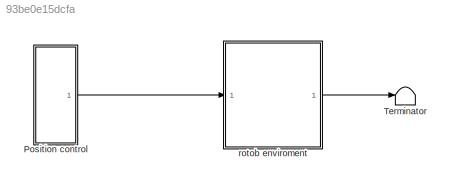
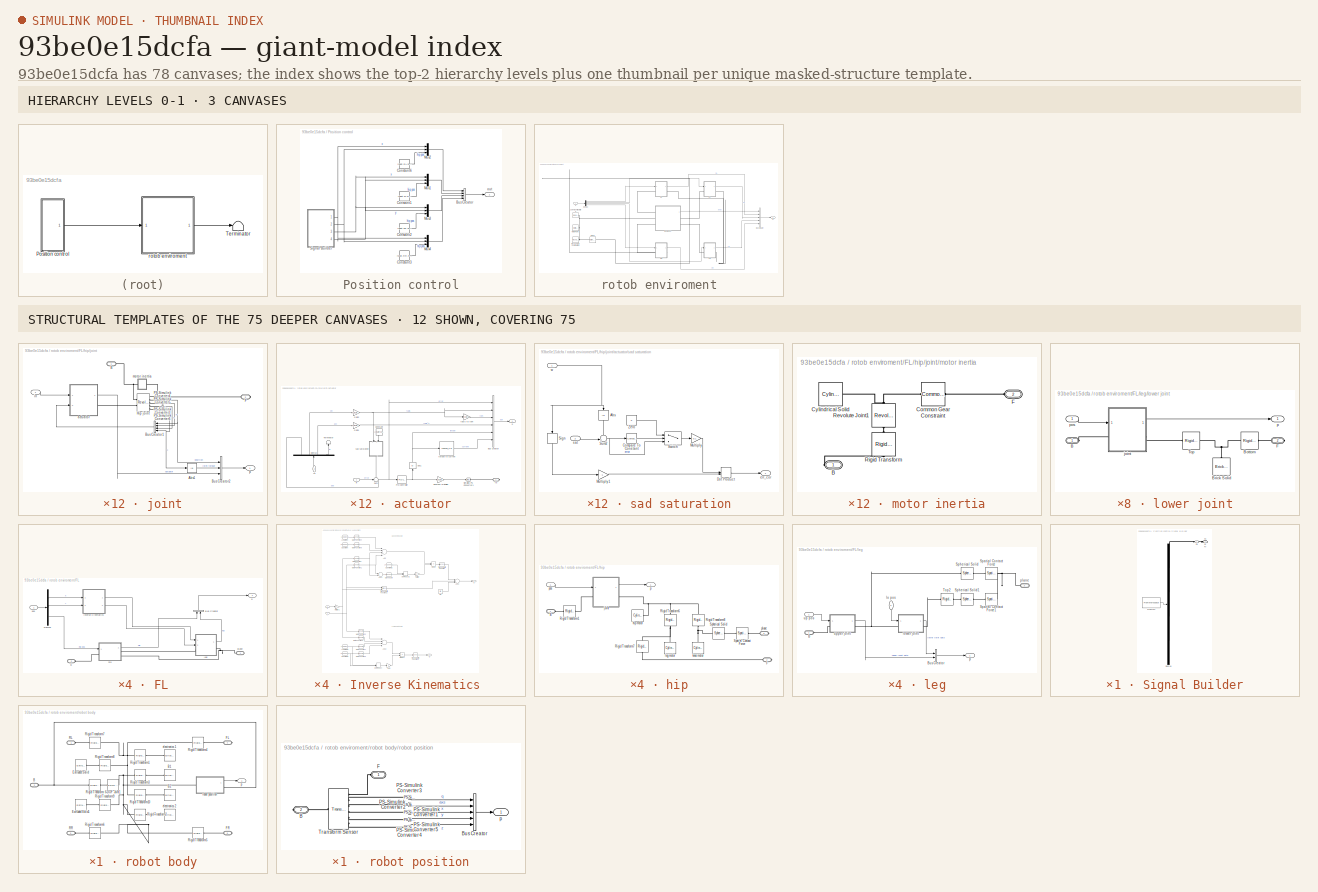
[diagram: thumbnail index - top-2 hierarchy levels (3 canvases) + 12 structural-template representatives of the remaining 75 canvases]
MODEL slx_93be0e15dcfa
KIND model
CONFIG AbsTol = auto
CONFIG EnableMultiTasking = off
CONFIG FixedStep = auto
CONFIG MaxStep = auto
CONFIG MinStep = auto
CONFIG RelTol = 1e-3
CONFIG SampleTimeConstraint = Unconstrained
CONFIG Solver = ode23t
CONFIG SolverName = ode23t
CONFIG StartTime = 0.0
CONFIG StopTime = 8
BLOCK [SubSystem] Position control
  Ports = [0, 1]
  RequestExecContextInheritance = off
BLOCK [BusCreator] Position control/Bus Creator
  DisplayOption = bar
  InheritFromInputs = on
  Inputs = 4
  Ports = [4, 1]
BLOCK [Constant] Position control/Constant1
  Value = robot.FL.hip.joint.base_angle
BLOCK [Constant] Position control/Constant2
  Value = robot.FR.hip.joint.base_angle
BLOCK [Constant] Position control/Constant3
  Value = robot.RR.hip.joint.base_angle
BLOCK [Constant] Position control/Constant6
  Value = robot.RL.hip.joint.base_angle
BLOCK [Mux] Position control/Mux1
  DisplayOption = bar
  Inputs = 3
  Ports = [3, 1]
BLOCK [Mux] Position control/Mux2
  DisplayOption = bar
  Inputs = 3
  Ports = [3, 1]
BLOCK [Mux] Position control/Mux3
  DisplayOption = bar
  Inputs = 3
  Ports = [3, 1]
BLOCK [Mux] Position control/Mux4
  DisplayOption = bar
  Inputs = 3
  Ports = [3, 1]
BLOCK [SubSystem] Position control/Signal Builder
  ClipboardFcn = sigbuilder_block('clipboard');
  CloseFcn = sigbuilder_block('close');
  ContinueFcn = sigbuilder_block('continue');
  CopyFcn = sigbuilder_block('copy');
  DeleteFcn = sigbuilder_block('delete');
  LoadFcn = sigbuilder_block('load');
  MaskHideContents = on
  ModelCloseFcn = sigbuilder_block('modelClose');
  NameChangeFcn = sigbuilder_block('namechange');
  OpenFcn = sigbuilder_block('open',[1212.63 0 1212.63 628.421 ]);
  PauseFcn = sigbuilder_block('pause');
  Ports = [0, 4]
  PreSaveFcn = sigbuilder_block('preSave');
  RequestExecContextInheritance = off
  StartFcn = sigbuilder_block('start');
  StopFcn = sigbuilder_block('stop');
  Tag = STV Subsys
BLOCK [Demux] Position control/Signal Builder/Demux
  Ports = [1, 4]
  Tag = STV Demux
BLOCK [FromWorkspace] Position control/Signal Builder/FromWs
  SampleTime = 0
  Tag = STV FromWs
  VariableName = tuvar
  ZeroCross = on
BLOCK [Outport] Position control/Signal Builder/Fx
  IconDisplay = Port number
  Port = 3
  Tag = STV Outport
BLOCK [Outport] Position control/Signal Builder/Fy
  IconDisplay = Port number
  Port = 4
  Tag = STV Outport
BLOCK [Outport] Position control/Signal Builder/Rx
  IconDisplay = Port number
  Tag = STV Outport
BLOCK [Outport] Position control/Signal Builder/Ry
  IconDisplay = Port number
  Port = 2
  Tag = STV Outport
BLOCK [Outport] Position control/out
  IconDisplay = Port number
BLOCK [Terminator] Terminator
BLOCK [SubSystem] rotob enviroment
  Ports = [1, 1]
  RequestExecContextInheritance = off
BLOCK [BusCreator] rotob enviroment/Bus Creator
  DisplayOption = bar
  InheritFromInputs = on
  Inputs = 5
  Ports = [5, 1]
BLOCK [Demux] rotob enviroment/Demux
  DisplayOption = bar
  Ports = [1, 4]
BLOCK [SubSystem] rotob enviroment/FL
  Ports = [1, 1, 0, 0, 0, 1, 1]
  RequestExecContextInheritance = off
BLOCK [PMIOPort] rotob enviroment/FL/B
  Port = 2
  Side = Left
BLOCK [BusCreator] rotob enviroment/FL/Bus Creator
  DisplayOption = bar
  InheritFromInputs = on
  Inputs = 2
  Ports = [2, 1]
BLOCK [Demux] rotob enviroment/FL/Demux
  DisplayOption = bar
  Outputs = 3
  Ports = [1, 3]
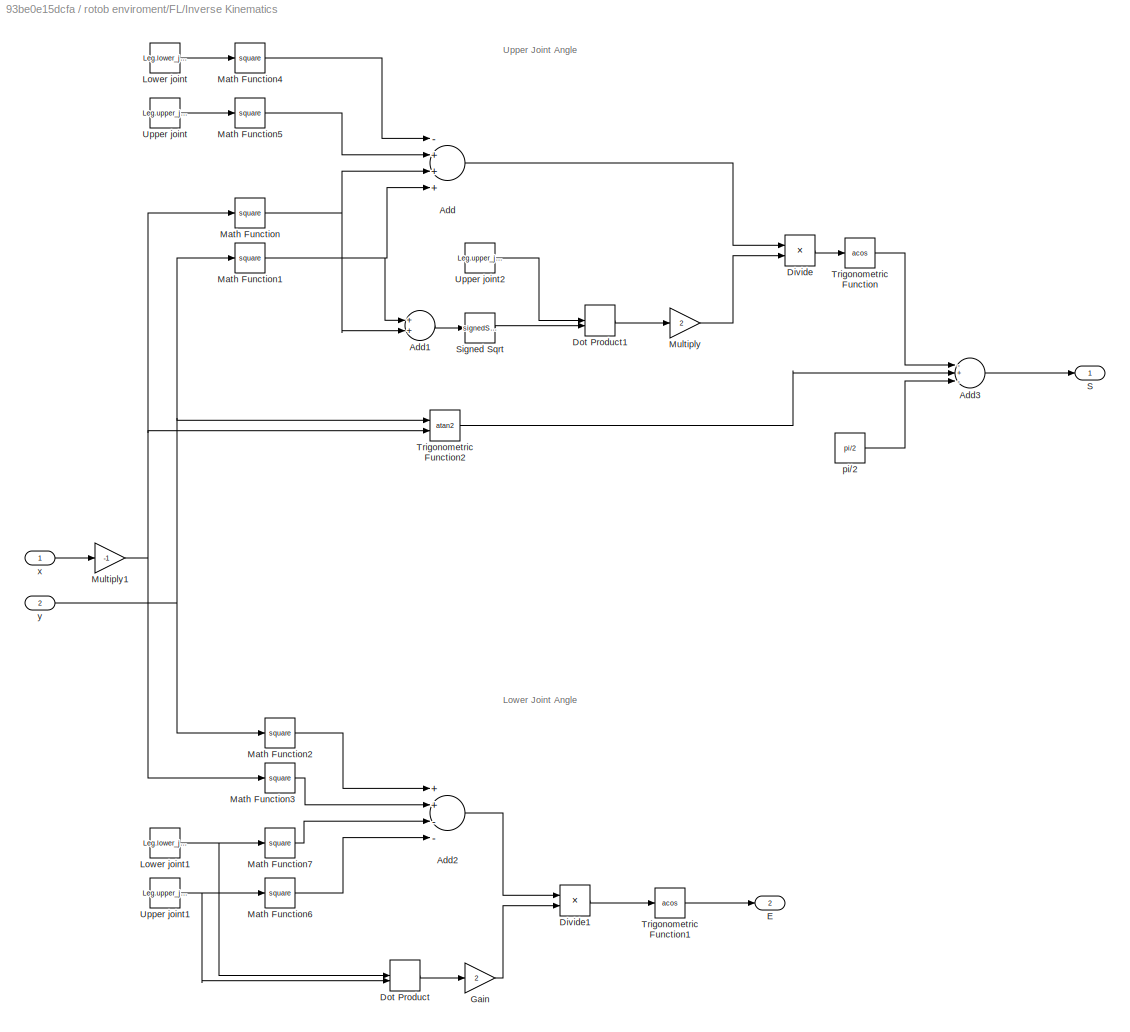
BLOCK [SubSystem] rotob enviroment/FL/Inverse Kinematics 
  Ports = [2, 2]
  RequestExecContextInheritance = off
BLOCK [Sum] rotob enviroment/FL/Inverse Kinematics /Add
  InputSameDT = off
  Inputs = -+++
  OutDataTypeStr = Inherit: Inherit via internal rule
  Ports = [4, 1]
  SaturateOnIntegerOverflow = off
BLOCK [Sum] rotob enviroment/FL/Inverse Kinematics /Add1
  InputSameDT = off
  OutDataTypeStr = Inherit: Inherit via internal rule
  Ports = [2, 1]
  SaturateOnIntegerOverflow = off
BLOCK [Sum] rotob enviroment/FL/Inverse Kinematics /Add2
  InputSameDT = off
  Inputs = ++--
  OutDataTypeStr = Inherit: Inherit via internal rule
  Ports = [4, 1]
  SaturateOnIntegerOverflow = off
BLOCK [Sum] rotob enviroment/FL/Inverse Kinematics /Add3
  InputSameDT = off
  Inputs = -+-
  OutDataTypeStr = Inherit: Inherit via internal rule
  Ports = [3, 1]
  SaturateOnIntegerOverflow = off
BLOCK [Product] rotob enviroment/FL/Inverse Kinematics /Divide
  InputSameDT = off
  Inputs = */
  OutDataTypeStr = Inherit: Inherit via internal rule
  Ports = [2, 1]
  RndMeth = Floor
  SaturateOnIntegerOverflow = off
BLOCK [Product] rotob enviroment/FL/Inverse Kinematics /Divide1
  InputSameDT = off
  Inputs = */
  OutDataTypeStr = Inherit: Inherit via internal rule
  Ports = [2, 1]
  RndMeth = Floor
  SaturateOnIntegerOverflow = off
BLOCK [DotProduct] rotob enviroment/FL/Inverse Kinematics /Dot Product
  OutDataTypeStr = Inherit: Inherit via internal rule
BLOCK [DotProduct] rotob enviroment/FL/Inverse Kinematics /Dot Product1
  OutDataTypeStr = Inherit: Inherit via internal rule
BLOCK [Outport] rotob enviroment/FL/Inverse Kinematics /E
  IconDisplay = Port number
  Port = 2
BLOCK [Gain] rotob enviroment/FL/Inverse Kinematics /Gain
  Gain = 2
  OutDataTypeStr = Inherit: Inherit via internal rule
  ParamDataTypeStr = Inherit: Inherit via internal rule
  SaturateOnIntegerOverflow = off
BLOCK [Constant] rotob enviroment/FL/Inverse Kinematics /Lower joint
  Value = Leg.lower_joint.body.length
BLOCK [Constant] rotob enviroment/FL/Inverse Kinematics /Lower joint1
  Value = Leg.lower_joint.body.length
BLOCK [Math] rotob enviroment/FL/Inverse Kinematics /Math Function
  Operator = square
  Ports = [1, 1]
  SignedPower = off
BLOCK [Math] rotob enviroment/FL/Inverse Kinematics /Math Function1
  Operator = square
  Ports = [1, 1]
  SignedPower = off
BLOCK [Math] rotob enviroment/FL/Inverse Kinematics /Math Function2
  Operator = square
  Ports = [1, 1]
  SignedPower = off
BLOCK [Math] rotob enviroment/FL/Inverse Kinematics /Math Function3
  Operator = square
  Ports = [1, 1]
  SignedPower = off
BLOCK [Math] rotob enviroment/FL/Inverse Kinematics /Math Function4
  Operator = square
  Ports = [1, 1]
  SignedPower = off
BLOCK [Math] rotob enviroment/FL/Inverse Kinematics /Math Function5
  Operator = square
  Ports = [1, 1]
  SignedPower = off
BLOCK [Math] rotob enviroment/FL/Inverse Kinematics /Math Function6
  Operator = square
  Ports = [1, 1]
  SignedPower = off
BLOCK [Math] rotob enviroment/FL/Inverse Kinematics /Math Function7
  Operator = square
  Ports = [1, 1]
  SignedPower = off
BLOCK [Gain] rotob enviroment/FL/Inverse Kinematics /Multiply
  Gain = 2
  OutDataTypeStr = Inherit: Inherit via internal rule
  ParamDataTypeStr = Inherit: Inherit via internal rule
  SaturateOnIntegerOverflow = off
BLOCK [Gain] rotob enviroment/FL/Inverse Kinematics /Multiply1
  Gain = -1
  OutDataTypeStr = Inherit: Inherit via internal rule
  ParamDataTypeStr = Inherit: Inherit via internal rule
  SaturateOnIntegerOverflow = off
BLOCK [Outport] rotob enviroment/FL/Inverse Kinematics /S
  IconDisplay = Port number
BLOCK [Sqrt] rotob enviroment/FL/Inverse Kinematics /Signed Sqrt
  Operator = signedSqrt
BLOCK [Trigonometry] rotob enviroment/FL/Inverse Kinematics /Trigonometric Function
  Operator = acos
  Ports = [1, 1]
BLOCK [Trigonometry] rotob enviroment/FL/Inverse Kinematics /Trigonometric Function1
  Operator = acos
  Ports = [1, 1]
BLOCK [Trigonometry] rotob enviroment/FL/Inverse Kinematics /Trigonometric Function2
  Operator = atan2
  Ports = [2, 1]
BLOCK [Constant] rotob enviroment/FL/Inverse Kinematics /Upper joint
  Value = Leg.upper_joint.body.length
BLOCK [Constant] rotob enviroment/FL/Inverse Kinematics /Upper joint1
  Value = Leg.upper_joint.body.length
BLOCK [Constant] rotob enviroment/FL/Inverse Kinematics /Upper joint2
  Value = Leg.upper_joint.body.length
BLOCK [Constant] rotob enviroment/FL/Inverse Kinematics /pi//2
  Value = pi/2
BLOCK [Inport] rotob enviroment/FL/Inverse Kinematics /x
  IconDisplay = Port number
BLOCK [Inport] rotob enviroment/FL/Inverse Kinematics /y
  IconDisplay = Port number
  Port = 2
BLOCK [SubSystem] rotob enviroment/FL/hip
  Ports = [1, 1, 0, 0, 0, 1, 2]
  RequestExecContextInheritance = off
BLOCK [PMIOPort] rotob enviroment/FL/hip/B
  Side = Left
BLOCK [PMIOPort] rotob enviroment/FL/hip/F
  Port = 2
  Side = Right
BLOCK [Reference] rotob enviroment/FL/hip/Rigid Transform1  REF=sm_lib/Frames and
Transforms/Rigid
Transform
  Ports = [0, 0, 0, 0, 0, 1, 1]
  SourceBlock = sm_lib/Frames and\nTransforms/Rigid\nTransform
  SourceProductBaseCode = MS
  SourceProductName = Simscape Multibody
  SourceType = Rigid\nTransform
BLOCK [Reference] rotob enviroment/FL/hip/Rigid Transform6  REF=sm_lib/Frames and
Transforms/Rigid
Transform
  Ports = [0, 0, 0, 0, 0, 1, 1]
  SourceBlock = sm_lib/Frames and\nTransforms/Rigid\nTransform
  SourceProductBaseCode = MS
  SourceProductName = Simscape Multibody
  SourceType = Rigid\nTransform
BLOCK [Reference] rotob enviroment/FL/hip/Rigid Transform7  REF=sm_lib/Frames and
Transforms/Rigid
Transform
  Ports = [0, 0, 0, 0, 0, 1, 1]
  SourceBlock = sm_lib/Frames and\nTransforms/Rigid\nTransform
  SourceProductBaseCode = MS
  SourceProductName = Simscape Multibody
  SourceType = Rigid\nTransform
BLOCK [Reference] rotob enviroment/FL/hip/Rigid Transform8  REF=sm_lib/Frames and
Transforms/Rigid
Transform
  Ports = [0, 0, 0, 0, 0, 1, 1]
  SourceBlock = sm_lib/Frames and\nTransforms/Rigid\nTransform
  SourceProductBaseCode = MS
  SourceProductName = Simscape Multibody
  SourceType = Rigid\nTransform
BLOCK [Reference] rotob enviroment/FL/hip/Spatial Contact Force  REF=sm_lib/Forces and
Torques/Spatial
Contact Force
  Ports = [0, 0, 0, 0, 0, 1, 1]
  SourceBlock = sm_lib/Forces and\nTorques/Spatial\nContact Force
  SourceProductBaseCode = MS
  SourceProductName = Simscape Multibody
  SourceType = Spatial\nContact Force
BLOCK [Reference] rotob enviroment/FL/hip/Spherical Solid  REF=sm_lib/Body Elements/Spherical Solid
  Ports = [0, 0, 0, 0, 0, 1, 1]
  SourceBlock = sm_lib/Body Elements/Spherical Solid
  SourceProductBaseCode = MS
  SourceProductName = Simscape Multibody
  SourceType = Spherical Solid
BLOCK [Reference] rotob enviroment/FL/hip/hip motor  REF=sm_lib/Body Elements/Cylindrical Solid
  Ports = [0, 0, 0, 0, 0, 0, 1]
  SourceBlock = sm_lib/Body Elements/Cylindrical Solid
  SourceProductBaseCode = MS
  SourceProductName = Simscape Multibody
  SourceType = Cylindrical Solid
BLOCK [SubSystem] rotob enviroment/FL/hip/joint
  Ports = [1, 1, 0, 0, 0, 1, 1]
  RequestExecContextInheritance = off
BLOCK [Abs] rotob enviroment/FL/hip/joint/Abs1
  SaturateOnIntegerOverflow = off
BLOCK [PMIOPort] rotob enviroment/FL/hip/joint/B
  Side = Left
BLOCK [BusCreator] rotob enviroment/FL/hip/joint/Bus Creator1
  DisplayOption = bar
  InheritFromInputs = on
  Inputs = 4
  Ports = [4, 1]
BLOCK [BusCreator] rotob enviroment/FL/hip/joint/Bus Creator2
  DisplayOption = bar
  InheritFromInputs = on
  Inputs = 3
  Ports = [3, 1]
BLOCK [PMIOPort] rotob enviroment/FL/hip/joint/F
  Port = 2
  Side = Right
BLOCK [Reference] rotob enviroment/FL/hip/joint/Hip joint   REF=sm_lib/Joints/Revolute Joint
  Ports = [0, 0, 0, 0, 0, 2, 5]
  SourceBlock = sm_lib/Joints/Revolute Joint
  SourceProductBaseCode = MS
  SourceProductName = Simscape Multibody
  SourceType = Revolute Joint
BLOCK [Reference] rotob enviroment/FL/hip/joint/PS-Simulink Converter3  REF=nesl_utility/PS-Simulink
Converter
  Ports = [0, 1, 0, 0, 0, 1]
  SourceBlock = nesl_utility/PS-Simulink\nConverter
  SourceProductBaseCode = SS
  SourceProductName = Simscape
  SourceType = PS-Simulink\nConverter
BLOCK [Reference] rotob enviroment/FL/hip/joint/PS-Simulink Converter4  REF=nesl_utility/PS-Simulink
Converter
  Ports = [0, 1, 0, 0, 0, 1]
  SourceBlock = nesl_utility/PS-Simulink\nConverter
  SourceProductBaseCode = SS
  SourceProductName = Simscape
  SourceType = PS-Simulink\nConverter
BLOCK [Reference] rotob enviroment/FL/hip/joint/PS-Simulink Converter5  REF=nesl_utility/PS-Simulink
Converter
  Ports = [0, 1, 0, 0, 0, 1]
  SourceBlock = nesl_utility/PS-Simulink\nConverter
  SourceProductBaseCode = SS
  SourceProductName = Simscape
  SourceType = PS-Simulink\nConverter
BLOCK [Reference] rotob enviroment/FL/hip/joint/PS-Simulink Converter6  REF=nesl_utility/PS-Simulink
Converter
  Ports = [0, 1, 0, 0, 0, 1]
  SourceBlock = nesl_utility/PS-Simulink\nConverter
  SourceProductBaseCode = SS
  SourceProductName = Simscape
  SourceType = PS-Simulink\nConverter
BLOCK [SubSystem] rotob enviroment/FL/hip/joint/actuator
  Ports = [2, 1, 0, 0, 0, 0, 1]
  RequestExecContextInheritance = off
BLOCK [Abs] rotob enviroment/FL/hip/joint/actuator/Abs1
  SaturateOnIntegerOverflow = off
BLOCK [BusCreator] rotob enviroment/FL/hip/joint/actuator/Bus Creator
  DisplayOption = bar
  InheritFromInputs = on
  Inputs = 6
  Ports = [6, 1]
BLOCK [Constant] rotob enviroment/FL/hip/joint/actuator/Constant
  Value = Actuator.speed_lim
BLOCK [Demux] rotob enviroment/FL/hip/joint/actuator/Demux
  DisplayOption = bar
  Ports = [1, 4]
BLOCK [Gain] rotob enviroment/FL/hip/joint/actuator/Gain1
  Gain = Actuator.gear_ratio
  OutDataTypeStr = Inherit: Inherit via internal rule
  ParamDataTypeStr = Inherit: Inherit via internal rule
  SaturateOnIntegerOverflow = off
BLOCK [Gain] rotob enviroment/FL/hip/joint/actuator/Gain2
  Gain = Actuator.gear_ratio
  OutDataTypeStr = Inherit: Inherit via internal rule
  ParamDataTypeStr = Inherit: Inherit via internal rule
  SaturateOnIntegerOverflow = off
BLOCK [Reference] rotob enviroment/FL/hip/joint/actuator/PID Controller  REF=simulink/Continuous/PID Controller
  Ports = [1, 1]
  SourceBlock = simulink/Continuous/PID Controller
  SourceProductBaseCode = SL
  SourceProductName = Simulink
  SourceType = PID 1dof
BLOCK [Reference] rotob enviroment/FL/hip/joint/actuator/Simulink-PS Converter1  REF=nesl_utility/Simulink-PS
Converter
  Ports = [1, 0, 0, 0, 0, 0, 1]
  SourceBlock = nesl_utility/Simulink-PS\nConverter
  SourceProductBaseCode = SS
  SourceProductName = Simscape
  SourceType = Simulink-PS\nConverter
BLOCK [Sum] rotob enviroment/FL/hip/joint/actuator/Sum
  IconShape = round
  InputSameDT = off
  Inputs = -+-
  OutDataTypeStr = Inherit: Inherit via internal rule
  Ports = [3, 1]
  SaturateOnIntegerOverflow = off
BLOCK [Terminator] rotob enviroment/FL/hip/joint/actuator/Terminator
BLOCK [Inport] rotob enviroment/FL/hip/joint/actuator/fb
  IconDisplay = Port number
  Port = 2
BLOCK [Gain] rotob enviroment/FL/hip/joint/actuator/gearbox multiplier
  Gain = Actuator.gear_ratio
  OutDataTypeStr = Inherit: Inherit via internal rule
  ParamDataTypeStr = Inherit: Inherit via internal rule
  SaturateOnIntegerOverflow = off
BLOCK [Inport] rotob enviroment/FL/hip/joint/actuator/in
  IconDisplay = Port number
BLOCK [Outport] rotob enviroment/FL/hip/joint/actuator/p
  IconDisplay = Port number
BLOCK [Gain] rotob enviroment/FL/hip/joint/actuator/rad//s to rpm
  Gain = 30/pi
  OutDataTypeStr = Inherit: Inherit via internal rule
  ParamDataTypeStr = Inherit: Inherit via internal rule
  SaturateOnIntegerOverflow = off
BLOCK [SubSystem] rotob enviroment/FL/hip/joint/actuator/sad saturation
  Ports = [2, 1]
  RequestExecContextInheritance = off
BLOCK [Abs] rotob enviroment/FL/hip/joint/actuator/sad saturation/Abs
  SaturateOnIntegerOverflow = off
BLOCK [Reference] rotob enviroment/FL/hip/joint/actuator/sad saturation/Compare To Constant  REF=simulink/Logic and Bit
Operations/Compare
To Constant
  Ports = [1, 1]
  SourceBlock = simulink/Logic and Bit\nOperations/Compare\nTo Constant
  SourceProductBaseCode = SL
  SourceProductName = Simulink
  SourceType = Compare To Constant
BLOCK [DotProduct] rotob enviroment/FL/hip/joint/actuator/sad saturation/Dot Product
  OutDataTypeStr = Inherit: Inherit via internal rule
BLOCK [Gain] rotob enviroment/FL/hip/joint/actuator/sad saturation/Multiply
  Gain = 0.1
  OutDataTypeStr = Inherit: Inherit via internal rule
  ParamDataTypeStr = Inherit: Inherit via internal rule
  SaturateOnIntegerOverflow = off
BLOCK [Gain] rotob enviroment/FL/hip/joint/actuator/sad saturation/Multiply1
  Gain = -1
  OutDataTypeStr = Inherit: Inherit via internal rule
  ParamDataTypeStr = Inherit: Inherit via internal rule
  SaturateOnIntegerOverflow = off
BLOCK [Signum] rotob enviroment/FL/hip/joint/actuator/sad saturation/Sign
BLOCK [Sum] rotob enviroment/FL/hip/joint/actuator/sad saturation/Sum2
  IconShape = round
  InputSameDT = off
  Inputs = -+|
  OutDataTypeStr = Inherit: Inherit via internal rule
  Ports = [2, 1]
  SaturateOnIntegerOverflow = off
BLOCK [Switch] rotob enviroment/FL/hip/joint/actuator/sad saturation/Switch
  Criteria = u2 > Threshold
  InputSameDT = off
  SaturateOnIntegerOverflow = off
BLOCK [Constant] rotob enviroment/FL/hip/joint/actuator/sad saturation/Zero
  OutDataTypeStr = Inherit: Inherit via back propagation
  Value = 0
BLOCK [Outport] rotob enviroment/FL/hip/joint/actuator/sad saturation/err_cor
  IconDisplay = Port number
BLOCK [Inport] rotob enviroment/FL/hip/joint/actuator/sad saturation/sat
  IconDisplay = Port number
  Port = 2
BLOCK [Inport] rotob enviroment/FL/hip/joint/actuator/sad saturation/w
  IconDisplay = Port number
BLOCK [Lookup_n-D] rotob enviroment/FL/hip/joint/actuator/torque to current
  BreakpointsForDimension1 = Actuator.torque_to_current(1,:)
  InternalRulePriority = Speed
  NumberOfTableDimensions = 1
  Ports = [1, 1]
  RndMeth = Simplest
  Table = Actuator.torque_to_current(2,:)
BLOCK [PMIOPort] rotob enviroment/FL/hip/joint/actuator/tq
  Side = Right
BLOCK [Inport] rotob enviroment/FL/hip/joint/in
  IconDisplay = Port number
BLOCK [SubSystem] rotob enviroment/FL/hip/joint/motor inertia
  Ports = [0, 0, 0, 0, 0, 1, 1]
  RequestExecContextInheritance = off
BLOCK [PMIOPort] rotob enviroment/FL/hip/joint/motor inertia/B
  Side = Right
BLOCK [Reference] rotob enviroment/FL/hip/joint/motor inertia/Common Gear Constraint  REF=sm_lib/Gears and
Couplings/Gears/Common Gear
Constraint
  Ports = [0, 0, 0, 0, 0, 1, 1]
  SourceBlock = sm_lib/Gears and\nCouplings/Gears/Common Gear\nConstraint
  SourceProductBaseCode = MS
  SourceProductName = Simscape Multibody
  SourceType = Common Gear\nConstraint
BLOCK [Reference] rotob enviroment/FL/hip/joint/motor inertia/Cylindrical Solid  REF=sm_lib/Body Elements/Cylindrical Solid
  Ports = [0, 0, 0, 0, 0, 0, 1]
  SourceBlock = sm_lib/Body Elements/Cylindrical Solid
  SourceProductBaseCode = MS
  SourceProductName = Simscape Multibody
  SourceType = Cylindrical Solid
BLOCK [PMIOPort] rotob enviroment/FL/hip/joint/motor inertia/F
  Port = 2
  Side = Left
BLOCK [Reference] rotob enviroment/FL/hip/joint/motor inertia/Revolute Joint1  REF=sm_lib/Joints/Revolute Joint
  Ports = [0, 0, 0, 0, 0, 1, 1]
  SourceBlock = sm_lib/Joints/Revolute Joint
  SourceProductBaseCode = MS
  SourceProductName = Simscape Multibody
  SourceType = Revolute Joint
BLOCK [Reference] rotob enviroment/FL/hip/joint/motor inertia/Rigid Transform  REF=sm_lib/Frames and
Transforms/Rigid
Transform
  Ports = [0, 0, 0, 0, 0, 1, 1]
  SourceBlock = sm_lib/Frames and\nTransforms/Rigid\nTransform
  SourceProductBaseCode = MS
  SourceProductName = Simscape Multibody
  SourceType = Rigid\nTransform
BLOCK [Outport] rotob enviroment/FL/hip/joint/p
  IconDisplay = Port number
BLOCK [Reference] rotob enviroment/FL/hip/knee motor  REF=sm_lib/Body Elements/Cylindrical Solid
  Ports = [0, 0, 0, 0, 0, 0, 1]
  SourceBlock = sm_lib/Body Elements/Cylindrical Solid
  SourceProductBaseCode = MS
  SourceProductName = Simscape Multibody
  SourceType = Cylindrical Solid
BLOCK [Reference] rotob enviroment/FL/hip/leg motor  REF=sm_lib/Body Elements/Cylindrical Solid
  Ports = [0, 0, 0, 0, 0, 0, 1]
  SourceBlock = sm_lib/Body Elements/Cylindrical Solid
  SourceProductBaseCode = MS
  SourceProductName = Simscape Multibody
  SourceType = Cylindrical Solid
BLOCK [Outport] rotob enviroment/FL/hip/p
  IconDisplay = Port number
BLOCK [PMIOPort] rotob enviroment/FL/hip/plane
  Port = 3
  Side = Right
BLOCK [Inport] rotob enviroment/FL/hip/pos
  IconDisplay = Port number
BLOCK [SubSystem] rotob enviroment/FL/leg
  Ports = [2, 1, 0, 0, 0, 1, 1]
  RequestExecContextInheritance = off
BLOCK [PMIOPort] rotob enviroment/FL/leg/B
  Side = Left
BLOCK [BusCreator] rotob enviroment/FL/leg/Bus Creator
  DisplayOption = bar
  InheritFromInputs = on
  Inputs = 2
  Ports = [2, 1]
BLOCK [Reference] rotob enviroment/FL/leg/Spatial Contact Force  REF=sm_lib/Forces and
Torques/Spatial
Contact Force
  Ports = [0, 0, 0, 0, 0, 1, 1]
  SourceBlock = sm_lib/Forces and\nTorques/Spatial\nContact Force
  SourceProductBaseCode = MS
  SourceProductName = Simscape Multibody
  SourceType = Spatial\nContact Force
BLOCK [Reference] rotob enviroment/FL/leg/Spatial Contact Force1  REF=sm_lib/Forces and
Torques/Spatial
Contact Force
  Ports = [0, 0, 0, 0, 0, 1, 1]
  SourceBlock = sm_lib/Forces and\nTorques/Spatial\nContact Force
  SourceProductBaseCode = MS
  SourceProductName = Simscape Multibody
  SourceType = Spatial\nContact Force
BLOCK [Reference] rotob enviroment/FL/leg/Spherical Solid  REF=sm_lib/Body Elements/Spherical Solid
  Ports = [0, 0, 0, 0, 0, 1, 1]
  SourceBlock = sm_lib/Body Elements/Spherical Solid
  SourceProductBaseCode = MS
  SourceProductName = Simscape Multibody
  SourceType = Spherical Solid
BLOCK [Reference] rotob enviroment/FL/leg/Spherical Solid1  REF=sm_lib/Body Elements/Spherical Solid
  Ports = [0, 0, 0, 0, 0, 1, 1]
  SourceBlock = sm_lib/Body Elements/Spherical Solid
  SourceProductBaseCode = MS
  SourceProductName = Simscape Multibody
  SourceType = Spherical Solid
BLOCK [Reference] rotob enviroment/FL/leg/Top2  REF=sm_lib/Frames and
Transforms/Rigid
Transform
  Ports = [0, 0, 0, 0, 0, 1, 1]
  SourceBlock = sm_lib/Frames and\nTransforms/Rigid\nTransform
  SourceProductBaseCode = MS
  SourceProductName = Simscape Multibody
  SourceType = Rigid\nTransform
BLOCK [Inport] rotob enviroment/FL/leg/lo pos
  IconDisplay = Port number
  Port = 2
BLOCK [SubSystem] rotob enviroment/FL/leg/lower joint
  Ports = [1, 1, 0, 0, 0, 1, 1]
  RequestExecContextInheritance = off
BLOCK [PMIOPort] rotob enviroment/FL/leg/lower joint/B 
  Side = Left
BLOCK [Reference] rotob enviroment/FL/leg/lower joint/Bottom  REF=sm_lib/Frames and
Transforms/Rigid
Transform
  Ports = [0, 0, 0, 0, 0, 1, 1]
  SourceBlock = sm_lib/Frames and\nTransforms/Rigid\nTransform
  SourceProductBaseCode = MS
  SourceProductName = Simscape Multibody
  SourceType = Rigid\nTransform
BLOCK [Reference] rotob enviroment/FL/leg/lower joint/Brick Solid  REF=sm_lib/Body Elements/Brick Solid
  Ports = [0, 0, 0, 0, 0, 0, 1]
  SourceBlock = sm_lib/Body Elements/Brick Solid
  SourceProductBaseCode = MS
  SourceProductName = Simscape Multibody
  SourceType = Brick Solid
BLOCK [PMIOPort] rotob enviroment/FL/leg/lower joint/F
  Port = 2
  Side = Right
BLOCK [Reference] rotob enviroment/FL/leg/lower joint/Top  REF=sm_lib/Frames and
Transforms/Rigid
Transform
  Ports = [0, 0, 0, 0, 0, 1, 1]
  SourceBlock = sm_lib/Frames and\nTransforms/Rigid\nTransform
  SourceProductBaseCode = MS
  SourceProductName = Simscape Multibody
  SourceType = Rigid\nTransform
BLOCK [SubSystem] rotob enviroment/FL/leg/lower joint/joint
  Ports = [1, 1, 0, 0, 0, 1, 1]
  RequestExecContextInheritance = off
BLOCK [Abs] rotob enviroment/FL/leg/lower joint/joint/Abs1
  SaturateOnIntegerOverflow = off
BLOCK [PMIOPort] rotob enviroment/FL/leg/lower joint/joint/B
  Side = Left
BLOCK [BusCreator] rotob enviroment/FL/leg/lower joint/joint/Bus Creator1
  DisplayOption = bar
  InheritFromInputs = on
  Inputs = 4
  Ports = [4, 1]
BLOCK [BusCreator] rotob enviroment/FL/leg/lower joint/joint/Bus Creator2
  DisplayOption = bar
  InheritFromInputs = on
  Inputs = 3
  Ports = [3, 1]
BLOCK [PMIOPort] rotob enviroment/FL/leg/lower joint/joint/F
  Port = 2
  Side = Right
BLOCK [Reference] rotob enviroment/FL/leg/lower joint/joint/Hip joint   REF=sm_lib/Joints/Revolute Joint
  Ports = [0, 0, 0, 0, 0, 2, 5]
  SourceBlock = sm_lib/Joints/Revolute Joint
  SourceProductBaseCode = MS
  SourceProductName = Simscape Multibody
  SourceType = Revolute Joint
BLOCK [Reference] rotob enviroment/FL/leg/lower joint/joint/PS-Simulink Converter3  REF=nesl_utility/PS-Simulink
Converter
  Ports = [0, 1, 0, 0, 0, 1]
  SourceBlock = nesl_utility/PS-Simulink\nConverter
  SourceProductBaseCode = SS
  SourceProductName = Simscape
  SourceType = PS-Simulink\nConverter
BLOCK [Reference] rotob enviroment/FL/leg/lower joint/joint/PS-Simulink Converter4  REF=nesl_utility/PS-Simulink
Converter
  Ports = [0, 1, 0, 0, 0, 1]
  SourceBlock = nesl_utility/PS-Simulink\nConverter
  SourceProductBaseCode = SS
  SourceProductName = Simscape
  SourceType = PS-Simulink\nConverter
BLOCK [Reference] rotob enviroment/FL/leg/lower joint/joint/PS-Simulink Converter5  REF=nesl_utility/PS-Simulink
Converter
  Ports = [0, 1, 0, 0, 0, 1]
  SourceBlock = nesl_utility/PS-Simulink\nConverter
  SourceProductBaseCode = SS
  SourceProductName = Simscape
  SourceType = PS-Simulink\nConverter
BLOCK [Reference] rotob enviroment/FL/leg/lower joint/joint/PS-Simulink Converter6  REF=nesl_utility/PS-Simulink
Converter
  Ports = [0, 1, 0, 0, 0, 1]
  SourceBlock = nesl_utility/PS-Simulink\nConverter
  SourceProductBaseCode = SS
  SourceProductName = Simscape
  SourceType = PS-Simulink\nConverter
BLOCK [SubSystem] rotob enviroment/FL/leg/lower joint/joint/actuator
  Ports = [2, 1, 0, 0, 0, 0, 1]
  RequestExecContextInheritance = off
BLOCK [Abs] rotob enviroment/FL/leg/lower joint/joint/actuator/Abs1
  SaturateOnIntegerOverflow = off
BLOCK [BusCreator] rotob enviroment/FL/leg/lower joint/joint/actuator/Bus Creator
  DisplayOption = bar
  InheritFromInputs = on
  Inputs = 6
  Ports = [6, 1]
BLOCK [Constant] rotob enviroment/FL/leg/lower joint/joint/actuator/Constant
  Value = Actuator.speed_lim
BLOCK [Demux] rotob enviroment/FL/leg/lower joint/joint/actuator/Demux
  DisplayOption = bar
  Ports = [1, 4]
BLOCK [Gain] rotob enviroment/FL/leg/lower joint/joint/actuator/Gain1
  Gain = Actuator.gear_ratio
  OutDataTypeStr = Inherit: Inherit via internal rule
  ParamDataTypeStr = Inherit: Inherit via internal rule
  SaturateOnIntegerOverflow = off
BLOCK [Gain] rotob enviroment/FL/leg/lower joint/joint/actuator/Gain2
  Gain = Actuator.gear_ratio
  OutDataTypeStr = Inherit: Inherit via internal rule
  ParamDataTypeStr = Inherit: Inherit via internal rule
  SaturateOnIntegerOverflow = off
BLOCK [Reference] rotob enviroment/FL/leg/lower joint/joint/actuator/PID Controller  REF=simulink/Continuous/PID Controller
  Ports = [1, 1]
  SourceBlock = simulink/Continuous/PID Controller
  SourceProductBaseCode = SL
  SourceProductName = Simulink
  SourceType = PID 1dof
BLOCK [Reference] rotob enviroment/FL/leg/lower joint/joint/actuator/Simulink-PS Converter1  REF=nesl_utility/Simulink-PS
Converter
  Ports = [1, 0, 0, 0, 0, 0, 1]
  SourceBlock = nesl_utility/Simulink-PS\nConverter
  SourceProductBaseCode = SS
  SourceProductName = Simscape
  SourceType = Simulink-PS\nConverter
BLOCK [Sum] rotob enviroment/FL/leg/lower joint/joint/actuator/Sum
  IconShape = round
  InputSameDT = off
  Inputs = -+-
  OutDataTypeStr = Inherit: Inherit via internal rule
  Ports = [3, 1]
  SaturateOnIntegerOverflow = off
BLOCK [Terminator] rotob enviroment/FL/leg/lower joint/joint/actuator/Terminator
BLOCK [Inport] rotob enviroment/FL/leg/lower joint/joint/actuator/fb
  IconDisplay = Port number
  Port = 2
BLOCK [Gain] rotob enviroment/FL/leg/lower joint/joint/actuator/gearbox multiplier
  Gain = Actuator.gear_ratio
  OutDataTypeStr = Inherit: Inherit via internal rule
  ParamDataTypeStr = Inherit: Inherit via internal rule
  SaturateOnIntegerOverflow = off
BLOCK [Inport] rotob enviroment/FL/leg/lower joint/joint/actuator/in
  IconDisplay = Port number
BLOCK [Outport] rotob enviroment/FL/leg/lower joint/joint/actuator/p
  IconDisplay = Port number
BLOCK [Gain] rotob enviroment/FL/leg/lower joint/joint/actuator/rad//s to rpm
  Gain = 30/pi
  OutDataTypeStr = Inherit: Inherit via internal rule
  ParamDataTypeStr = Inherit: Inherit via internal rule
  SaturateOnIntegerOverflow = off
BLOCK [SubSystem] rotob enviroment/FL/leg/lower joint/joint/actuator/sad saturation
  Ports = [2, 1]
  RequestExecContextInheritance = off
BLOCK [Abs] rotob enviroment/FL/leg/lower joint/joint/actuator/sad saturation/Abs
  SaturateOnIntegerOverflow = off
BLOCK [Reference] rotob enviroment/FL/leg/lower joint/joint/actuator/sad saturation/Compare To Constant  REF=simulink/Logic and Bit
Operations/Compare
To Constant
  Ports = [1, 1]
  SourceBlock = simulink/Logic and Bit\nOperations/Compare\nTo Constant
  SourceProductBaseCode = SL
  SourceProductName = Simulink
  SourceType = Compare To Constant
BLOCK [DotProduct] rotob enviroment/FL/leg/lower joint/joint/actuator/sad saturation/Dot Product
  OutDataTypeStr = Inherit: Inherit via internal rule
BLOCK [Gain] rotob enviroment/FL/leg/lower joint/joint/actuator/sad saturation/Multiply
  Gain = 0.1
  OutDataTypeStr = Inherit: Inherit via internal rule
  ParamDataTypeStr = Inherit: Inherit via internal rule
  SaturateOnIntegerOverflow = off
BLOCK [Gain] rotob enviroment/FL/leg/lower joint/joint/actuator/sad saturation/Multiply1
  Gain = -1
  OutDataTypeStr = Inherit: Inherit via internal rule
  ParamDataTypeStr = Inherit: Inherit via internal rule
  SaturateOnIntegerOverflow = off
BLOCK [Signum] rotob enviroment/FL/leg/lower joint/joint/actuator/sad saturation/Sign
BLOCK [Sum] rotob enviroment/FL/leg/lower joint/joint/actuator/sad saturation/Sum2
  IconShape = round
  InputSameDT = off
  Inputs = -+|
  OutDataTypeStr = Inherit: Inherit via internal rule
  Ports = [2, 1]
  SaturateOnIntegerOverflow = off
BLOCK [Switch] rotob enviroment/FL/leg/lower joint/joint/actuator/sad saturation/Switch
  Criteria = u2 > Threshold
  InputSameDT = off
  SaturateOnIntegerOverflow = off
BLOCK [Constant] rotob enviroment/FL/leg/lower joint/joint/actuator/sad saturation/Zero
  OutDataTypeStr = Inherit: Inherit via back propagation
  Value = 0
BLOCK [Outport] rotob enviroment/FL/leg/lower joint/joint/actuator/sad saturation/err_cor
  IconDisplay = Port number
BLOCK [Inport] rotob enviroment/FL/leg/lower joint/joint/actuator/sad saturation/sat
  IconDisplay = Port number
  Port = 2
BLOCK [Inport] rotob enviroment/FL/leg/lower joint/joint/actuator/sad saturation/w
  IconDisplay = Port number
BLOCK [Lookup_n-D] rotob enviroment/FL/leg/lower joint/joint/actuator/torque to current
  BreakpointsForDimension1 = Actuator.torque_to_current(1,:)
  InternalRulePriority = Speed
  NumberOfTableDimensions = 1
  Ports = [1, 1]
  RndMeth = Simplest
  Table = Actuator.torque_to_current(2,:)
BLOCK [PMIOPort] rotob enviroment/FL/leg/lower joint/joint/actuator/tq
  Side = Right
BLOCK [Inport] rotob enviroment/FL/leg/lower joint/joint/in
  IconDisplay = Port number
BLOCK [SubSystem] rotob enviroment/FL/leg/lower joint/joint/motor inertia
  Ports = [0, 0, 0, 0, 0, 1, 1]
  RequestExecContextInheritance = off
BLOCK [PMIOPort] rotob enviroment/FL/leg/lower joint/joint/motor inertia/B
  Side = Right
BLOCK [Reference] rotob enviroment/FL/leg/lower joint/joint/motor inertia/Common Gear Constraint  REF=sm_lib/Gears and
Couplings/Gears/Common Gear
Constraint
  Ports = [0, 0, 0, 0, 0, 1, 1]
  SourceBlock = sm_lib/Gears and\nCouplings/Gears/Common Gear\nConstraint
  SourceProductBaseCode = MS
  SourceProductName = Simscape Multibody
  SourceType = Common Gear\nConstraint
BLOCK [Reference] rotob enviroment/FL/leg/lower joint/joint/motor inertia/Cylindrical Solid  REF=sm_lib/Body Elements/Cylindrical Solid
  Ports = [0, 0, 0, 0, 0, 0, 1]
  SourceBlock = sm_lib/Body Elements/Cylindrical Solid
  SourceProductBaseCode = MS
  SourceProductName = Simscape Multibody
  SourceType = Cylindrical Solid
BLOCK [PMIOPort] rotob enviroment/FL/leg/lower joint/joint/motor inertia/F
  Port = 2
  Side = Left
BLOCK [Reference] rotob enviroment/FL/leg/lower joint/joint/motor inertia/Revolute Joint1  REF=sm_lib/Joints/Revolute Joint
  Ports = [0, 0, 0, 0, 0, 1, 1]
  SourceBlock = sm_lib/Joints/Revolute Joint
  SourceProductBaseCode = MS
  SourceProductName = Simscape Multibody
  SourceType = Revolute Joint
BLOCK [Reference] rotob enviroment/FL/leg/lower joint/joint/motor inertia/Rigid Transform  REF=sm_lib/Frames and
Transforms/Rigid
Transform
  Ports = [0, 0, 0, 0, 0, 1, 1]
  SourceBlock = sm_lib/Frames and\nTransforms/Rigid\nTransform
  SourceProductBaseCode = MS
  SourceProductName = Simscape Multibody
  SourceType = Rigid\nTransform
BLOCK [Outport] rotob enviroment/FL/leg/lower joint/joint/p
  IconDisplay = Port number
BLOCK [Outport] rotob enviroment/FL/leg/lower joint/p
  IconDisplay = Port number
BLOCK [Inport] rotob enviroment/FL/leg/lower joint/pos
  IconDisplay = Port number
BLOCK [Outport] rotob enviroment/FL/leg/p
  IconDisplay = Port number
BLOCK [PMIOPort] rotob enviroment/FL/leg/plane
  Port = 2
  Side = Right
BLOCK [Inport] rotob enviroment/FL/leg/up pos
  IconDisplay = Port number
BLOCK [SubSystem] rotob enviroment/FL/leg/upper joint
  Ports = [1, 1, 0, 0, 0, 1, 1]
  RequestExecContextInheritance = off
BLOCK [PMIOPort] rotob enviroment/FL/leg/upper joint/B 
  Side = Left
BLOCK [Reference] rotob enviroment/FL/leg/upper joint/Bottom  REF=sm_lib/Frames and
Transforms/Rigid
Transform
  Ports = [0, 0, 0, 0, 0, 1, 1]
  SourceBlock = sm_lib/Frames and\nTransforms/Rigid\nTransform
  SourceProductBaseCode = MS
  SourceProductName = Simscape Multibody
  SourceType = Rigid\nTransform
BLOCK [Reference] rotob enviroment/FL/leg/upper joint/Brick Solid  REF=sm_lib/Body Elements/Brick Solid
  Ports = [0, 0, 0, 0, 0, 0, 1]
  SourceBlock = sm_lib/Body Elements/Brick Solid
  SourceProductBaseCode = MS
  SourceProductName = Simscape Multibody
  SourceType = Brick Solid
BLOCK [PMIOPort] rotob enviroment/FL/leg/upper joint/F
  Port = 2
  Side = Right
BLOCK [Reference] rotob enviroment/FL/leg/upper joint/Top  REF=sm_lib/Frames and
Transforms/Rigid
Transform
  Ports = [0, 0, 0, 0, 0, 1, 1]
  SourceBlock = sm_lib/Frames and\nTransforms/Rigid\nTransform
  SourceProductBaseCode = MS
  SourceProductName = Simscape Multibody
  SourceType = Rigid\nTransform
BLOCK [SubSystem] rotob enviroment/FL/leg/upper joint/joint
  Ports = [1, 1, 0, 0, 0, 1, 1]
  RequestExecContextInheritance = off
BLOCK [Abs] rotob enviroment/FL/leg/upper joint/joint/Abs1
  SaturateOnIntegerOverflow = off
BLOCK [PMIOPort] rotob enviroment/FL/leg/upper joint/joint/B
  Side = Left
BLOCK [BusCreator] rotob enviroment/FL/leg/upper joint/joint/Bus Creator1
  DisplayOption = bar
  InheritFromInputs = on
  Inputs = 4
  Ports = [4, 1]
BLOCK [BusCreator] rotob enviroment/FL/leg/upper joint/joint/Bus Creator2
  DisplayOption = bar
  InheritFromInputs = on
  Inputs = 3
  Ports = [3, 1]
BLOCK [PMIOPort] rotob enviroment/FL/leg/upper joint/joint/F
  Port = 2
  Side = Right
BLOCK [Reference] rotob enviroment/FL/leg/upper joint/joint/Hip joint   REF=sm_lib/Joints/Revolute Joint
  Ports = [0, 0, 0, 0, 0, 2, 5]
  SourceBlock = sm_lib/Joints/Revolute Joint
  SourceProductBaseCode = MS
  SourceProductName = Simscape Multibody
  SourceType = Revolute Joint
BLOCK [Reference] rotob enviroment/FL/leg/upper joint/joint/PS-Simulink Converter3  REF=nesl_utility/PS-Simulink
Converter
  Ports = [0, 1, 0, 0, 0, 1]
  SourceBlock = nesl_utility/PS-Simulink\nConverter
  SourceProductBaseCode = SS
  SourceProductName = Simscape
  SourceType = PS-Simulink\nConverter
BLOCK [Reference] rotob enviroment/FL/leg/upper joint/joint/PS-Simulink Converter4  REF=nesl_utility/PS-Simulink
Converter
  Ports = [0, 1, 0, 0, 0, 1]
  SourceBlock = nesl_utility/PS-Simulink\nConverter
  SourceProductBaseCode = SS
  SourceProductName = Simscape
  SourceType = PS-Simulink\nConverter
BLOCK [Reference] rotob enviroment/FL/leg/upper joint/joint/PS-Simulink Converter5  REF=nesl_utility/PS-Simulink
Converter
  Ports = [0, 1, 0, 0, 0, 1]
  SourceBlock = nesl_utility/PS-Simulink\nConverter
  SourceProductBaseCode = SS
  SourceProductName = Simscape
  SourceType = PS-Simulink\nConverter
BLOCK [Reference] rotob enviroment/FL/leg/upper joint/joint/PS-Simulink Converter6  REF=nesl_utility/PS-Simulink
Converter
  Ports = [0, 1, 0, 0, 0, 1]
  SourceBlock = nesl_utility/PS-Simulink\nConverter
  SourceProductBaseCode = SS
  SourceProductName = Simscape
  SourceType = PS-Simulink\nConverter
BLOCK [SubSystem] rotob enviroment/FL/leg/upper joint/joint/actuator
  Ports = [2, 1, 0, 0, 0, 0, 1]
  RequestExecContextInheritance = off
BLOCK [Abs] rotob enviroment/FL/leg/upper joint/joint/actuator/Abs1
  SaturateOnIntegerOverflow = off
BLOCK [BusCreator] rotob enviroment/FL/leg/upper joint/joint/actuator/Bus Creator
  DisplayOption = bar
  InheritFromInputs = on
  Inputs = 6
  Ports = [6, 1]
BLOCK [Constant] rotob enviroment/FL/leg/upper joint/joint/actuator/Constant
  Value = Actuator.speed_lim
BLOCK [Demux] rotob enviroment/FL/leg/upper joint/joint/actuator/Demux
  DisplayOption = bar
  Ports = [1, 4]
BLOCK [Gain] rotob enviroment/FL/leg/upper joint/joint/actuator/Gain1
  Gain = Actuator.gear_ratio
  OutDataTypeStr = Inherit: Inherit via internal rule
  ParamDataTypeStr = Inherit: Inherit via internal rule
  SaturateOnIntegerOverflow = off
BLOCK [Gain] rotob enviroment/FL/leg/upper joint/joint/actuator/Gain2
  Gain = Actuator.gear_ratio
  OutDataTypeStr = Inherit: Inherit via internal rule
  ParamDataTypeStr = Inherit: Inherit via internal rule
  SaturateOnIntegerOverflow = off
BLOCK [Reference] rotob enviroment/FL/leg/upper joint/joint/actuator/PID Controller  REF=simulink/Continuous/PID Controller
  Ports = [1, 1]
  SourceBlock = simulink/Continuous/PID Controller
  SourceProductBaseCode = SL
  SourceProductName = Simulink
  SourceType = PID 1dof
BLOCK [Reference] rotob enviroment/FL/leg/upper joint/joint/actuator/Simulink-PS Converter1  REF=nesl_utility/Simulink-PS
Converter
  Ports = [1, 0, 0, 0, 0, 0, 1]
  SourceBlock = nesl_utility/Simulink-PS\nConverter
  SourceProductBaseCode = SS
  SourceProductName = Simscape
  SourceType = Simulink-PS\nConverter
BLOCK [Sum] rotob enviroment/FL/leg/upper joint/joint/actuator/Sum
  IconShape = round
  InputSameDT = off
  Inputs = -+-
  OutDataTypeStr = Inherit: Inherit via internal rule
  Ports = [3, 1]
  SaturateOnIntegerOverflow = off
BLOCK [Terminator] rotob enviroment/FL/leg/upper joint/joint/actuator/Terminator
BLOCK [Inport] rotob enviroment/FL/leg/upper joint/joint/actuator/fb
  IconDisplay = Port number
  Port = 2
BLOCK [Gain] rotob enviroment/FL/leg/upper joint/joint/actuator/gearbox multiplier
  Gain = Actuator.gear_ratio
  OutDataTypeStr = Inherit: Inherit via internal rule
  ParamDataTypeStr = Inherit: Inherit via internal rule
  SaturateOnIntegerOverflow = off
BLOCK [Inport] rotob enviroment/FL/leg/upper joint/joint/actuator/in
  IconDisplay = Port number
BLOCK [Outport] rotob enviroment/FL/leg/upper joint/joint/actuator/p
  IconDisplay = Port number
BLOCK [Gain] rotob enviroment/FL/leg/upper joint/joint/actuator/rad//s to rpm
  Gain = 30/pi
  OutDataTypeStr = Inherit: Inherit via internal rule
  ParamDataTypeStr = Inherit: Inherit via internal rule
  SaturateOnIntegerOverflow = off
BLOCK [SubSystem] rotob enviroment/FL/leg/upper joint/joint/actuator/sad saturation
  Ports = [2, 1]
  RequestExecContextInheritance = off
BLOCK [Abs] rotob enviroment/FL/leg/upper joint/joint/actuator/sad saturation/Abs
  SaturateOnIntegerOverflow = off
BLOCK [Reference] rotob enviroment/FL/leg/upper joint/joint/actuator/sad saturation/Compare To Constant  REF=simulink/Logic and Bit
Operations/Compare
To Constant
  Ports = [1, 1]
  SourceBlock = simulink/Logic and Bit\nOperations/Compare\nTo Constant
  SourceProductBaseCode = SL
  SourceProductName = Simulink
  SourceType = Compare To Constant
BLOCK [DotProduct] rotob enviroment/FL/leg/upper joint/joint/actuator/sad saturation/Dot Product
  OutDataTypeStr = Inherit: Inherit via internal rule
BLOCK [Gain] rotob enviroment/FL/leg/upper joint/joint/actuator/sad saturation/Multiply
  Gain = 0.1
  OutDataTypeStr = Inherit: Inherit via internal rule
  ParamDataTypeStr = Inherit: Inherit via internal rule
  SaturateOnIntegerOverflow = off
BLOCK [Gain] rotob enviroment/FL/leg/upper joint/joint/actuator/sad saturation/Multiply1
  Gain = -1
  OutDataTypeStr = Inherit: Inherit via internal rule
  ParamDataTypeStr = Inherit: Inherit via internal rule
  SaturateOnIntegerOverflow = off
BLOCK [Signum] rotob enviroment/FL/leg/upper joint/joint/actuator/sad saturation/Sign
BLOCK [Sum] rotob enviroment/FL/leg/upper joint/joint/actuator/sad saturation/Sum2
  IconShape = round
  InputSameDT = off
  Inputs = -+|
  OutDataTypeStr = Inherit: Inherit via internal rule
  Ports = [2, 1]
  SaturateOnIntegerOverflow = off
BLOCK [Switch] rotob enviroment/FL/leg/upper joint/joint/actuator/sad saturation/Switch
  Criteria = u2 > Threshold
  InputSameDT = off
  SaturateOnIntegerOverflow = off
BLOCK [Constant] rotob enviroment/FL/leg/upper joint/joint/actuator/sad saturation/Zero
  OutDataTypeStr = Inherit: Inherit via back propagation
  Value = 0
BLOCK [Outport] rotob enviroment/FL/leg/upper joint/joint/actuator/sad saturation/err_cor
  IconDisplay = Port number
BLOCK [Inport] rotob enviroment/FL/leg/upper joint/joint/actuator/sad saturation/sat
  IconDisplay = Port number
  Port = 2
BLOCK [Inport] rotob enviroment/FL/leg/upper joint/joint/actuator/sad saturation/w
  IconDisplay = Port number
BLOCK [Lookup_n-D] rotob enviroment/FL/leg/upper joint/joint/actuator/torque to current
  BreakpointsForDimension1 = Actuator.torque_to_current(1,:)
  InternalRulePriority = Speed
  NumberOfTableDimensions = 1
  Ports = [1, 1]
  RndMeth = Simplest
  Table = Actuator.torque_to_current(2,:)
BLOCK [PMIOPort] rotob enviroment/FL/leg/upper joint/joint/actuator/tq
  Side = Right
BLOCK [Inport] rotob enviroment/FL/leg/upper joint/joint/in
  IconDisplay = Port number
BLOCK [SubSystem] rotob enviroment/FL/leg/upper joint/joint/motor inertia
  Ports = [0, 0, 0, 0, 0, 1, 1]
  RequestExecContextInheritance = off
BLOCK [PMIOPort] rotob enviroment/FL/leg/upper joint/joint/motor inertia/B
  Side = Right
BLOCK [Reference] rotob enviroment/FL/leg/upper joint/joint/motor inertia/Common Gear Constraint  REF=sm_lib/Gears and
Couplings/Gears/Common Gear
Constraint
  Ports = [0, 0, 0, 0, 0, 1, 1]
  SourceBlock = sm_lib/Gears and\nCouplings/Gears/Common Gear\nConstraint
  SourceProductBaseCode = MS
  SourceProductName = Simscape Multibody
  SourceType = Common Gear\nConstraint
BLOCK [Reference] rotob enviroment/FL/leg/upper joint/joint/motor inertia/Cylindrical Solid  REF=sm_lib/Body Elements/Cylindrical Solid
  Ports = [0, 0, 0, 0, 0, 0, 1]
  SourceBlock = sm_lib/Body Elements/Cylindrical Solid
  SourceProductBaseCode = MS
  SourceProductName = Simscape Multibody
  SourceType = Cylindrical Solid
BLOCK [PMIOPort] rotob enviroment/FL/leg/upper joint/joint/motor inertia/F
  Port = 2
  Side = Left
BLOCK [Reference] rotob enviroment/FL/leg/upper joint/joint/motor inertia/Revolute Joint1  REF=sm_lib/Joints/Revolute Joint
  Ports = [0, 0, 0, 0, 0, 1, 1]
  SourceBlock = sm_lib/Joints/Revolute Joint
  SourceProductBaseCode = MS
  SourceProductName = Simscape Multibody
  SourceType = Revolute Joint
BLOCK [Reference] rotob enviroment/FL/leg/upper joint/joint/motor inertia/Rigid Transform  REF=sm_lib/Frames and
Transforms/Rigid
Transform
  Ports = [0, 0, 0, 0, 0, 1, 1]
  SourceBlock = sm_lib/Frames and\nTransforms/Rigid\nTransform
  SourceProductBaseCode = MS
  SourceProductName = Simscape Multibody
  SourceType = Rigid\nTransform
BLOCK [Outport] rotob enviroment/FL/leg/upper joint/joint/p
  IconDisplay = Port number
BLOCK [Outport] rotob enviroment/FL/leg/upper joint/p
  IconDisplay = Port number
BLOCK [Inport] rotob enviroment/FL/leg/upper joint/pos
  IconDisplay = Port number
BLOCK [Outport] rotob enviroment/FL/p
  IconDisplay = Port number
BLOCK [PMIOPort] rotob enviroment/FL/plane
  Side = Right
BLOCK [Inport] rotob enviroment/FL/pos
  IconDisplay = Port number
BLOCK [SubSystem] rotob enviroment/FR
  Ports = [1, 1, 0, 0, 0, 1, 1]
  RequestExecContextInheritance = off
BLOCK [PMIOPort] rotob enviroment/FR/B
  Port = 2
  Side = Left
BLOCK [BusCreator] rotob enviroment/FR/Bus Creator
  DisplayOption = bar
  InheritFromInputs = on
  Inputs = 2
  Ports = [2, 1]
BLOCK [Demux] rotob enviroment/FR/Demux
  DisplayOption = bar
  Outputs = 3
  Ports = [1, 3]
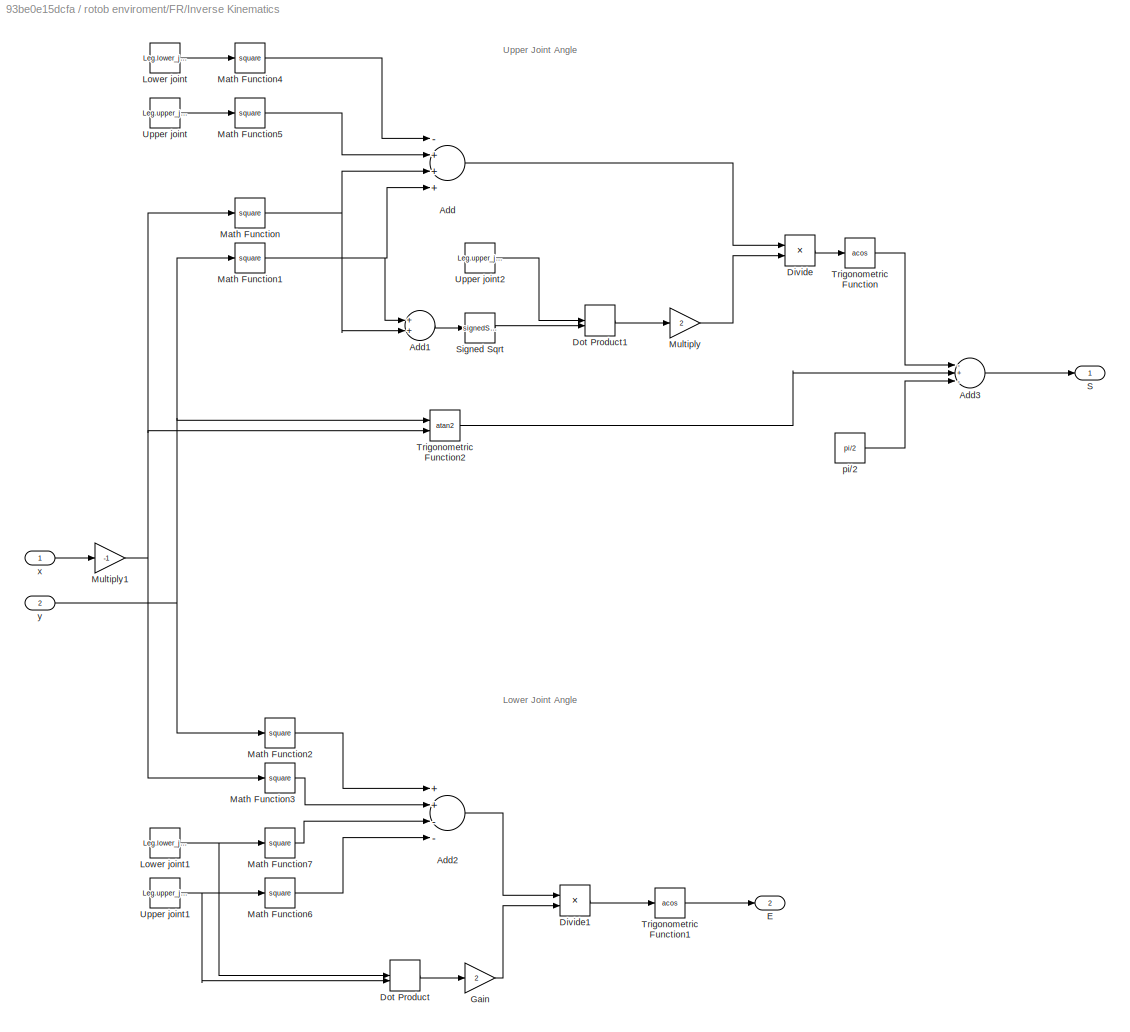
BLOCK [SubSystem] rotob enviroment/FR/Inverse Kinematics 
  Ports = [2, 2]
  RequestExecContextInheritance = off
BLOCK [Sum] rotob enviroment/FR/Inverse Kinematics /Add
  InputSameDT = off
  Inputs = -+++
  OutDataTypeStr = Inherit: Inherit via internal rule
  Ports = [4, 1]
  SaturateOnIntegerOverflow = off
BLOCK [Sum] rotob enviroment/FR/Inverse Kinematics /Add1
  InputSameDT = off
  OutDataTypeStr = Inherit: Inherit via internal rule
  Ports = [2, 1]
  SaturateOnIntegerOverflow = off
BLOCK [Sum] rotob enviroment/FR/Inverse Kinematics /Add2
  InputSameDT = off
  Inputs = ++--
  OutDataTypeStr = Inherit: Inherit via internal rule
  Ports = [4, 1]
  SaturateOnIntegerOverflow = off
BLOCK [Sum] rotob enviroment/FR/Inverse Kinematics /Add3
  InputSameDT = off
  Inputs = -+-
  OutDataTypeStr = Inherit: Inherit via internal rule
  Ports = [3, 1]
  SaturateOnIntegerOverflow = off
BLOCK [Product] rotob enviroment/FR/Inverse Kinematics /Divide
  InputSameDT = off
  Inputs = */
  OutDataTypeStr = Inherit: Inherit via internal rule
  Ports = [2, 1]
  RndMeth = Floor
  SaturateOnIntegerOverflow = off
BLOCK [Product] rotob enviroment/FR/Inverse Kinematics /Divide1
  InputSameDT = off
  Inputs = */
  OutDataTypeStr = Inherit: Inherit via internal rule
  Ports = [2, 1]
  RndMeth = Floor
  SaturateOnIntegerOverflow = off
BLOCK [DotProduct] rotob enviroment/FR/Inverse Kinematics /Dot Product
  OutDataTypeStr = Inherit: Inherit via internal rule
BLOCK [DotProduct] rotob enviroment/FR/Inverse Kinematics /Dot Product1
  OutDataTypeStr = Inherit: Inherit via internal rule
BLOCK [Outport] rotob enviroment/FR/Inverse Kinematics /E
  IconDisplay = Port number
  Port = 2
BLOCK [Gain] rotob enviroment/FR/Inverse Kinematics /Gain
  Gain = 2
  OutDataTypeStr = Inherit: Inherit via internal rule
  ParamDataTypeStr = Inherit: Inherit via internal rule
  SaturateOnIntegerOverflow = off
BLOCK [Constant] rotob enviroment/FR/Inverse Kinematics /Lower joint
  Value = Leg.lower_joint.body.length
BLOCK [Constant] rotob enviroment/FR/Inverse Kinematics /Lower joint1
  Value = Leg.lower_joint.body.length
BLOCK [Math] rotob enviroment/FR/Inverse Kinematics /Math Function
  Operator = square
  Ports = [1, 1]
  SignedPower = off
BLOCK [Math] rotob enviroment/FR/Inverse Kinematics /Math Function1
  Operator = square
  Ports = [1, 1]
  SignedPower = off
BLOCK [Math] rotob enviroment/FR/Inverse Kinematics /Math Function2
  Operator = square
  Ports = [1, 1]
  SignedPower = off
BLOCK [Math] rotob enviroment/FR/Inverse Kinematics /Math Function3
  Operator = square
  Ports = [1, 1]
  SignedPower = off
BLOCK [Math] rotob enviroment/FR/Inverse Kinematics /Math Function4
  Operator = square
  Ports = [1, 1]
  SignedPower = off
BLOCK [Math] rotob enviroment/FR/Inverse Kinematics /Math Function5
  Operator = square
  Ports = [1, 1]
  SignedPower = off
BLOCK [Math] rotob enviroment/FR/Inverse Kinematics /Math Function6
  Operator = square
  Ports = [1, 1]
  SignedPower = off
BLOCK [Math] rotob enviroment/FR/Inverse Kinematics /Math Function7
  Operator = square
  Ports = [1, 1]
  SignedPower = off
BLOCK [Gain] rotob enviroment/FR/Inverse Kinematics /Multiply
  Gain = 2
  OutDataTypeStr = Inherit: Inherit via internal rule
  ParamDataTypeStr = Inherit: Inherit via internal rule
  SaturateOnIntegerOverflow = off
BLOCK [Gain] rotob enviroment/FR/Inverse Kinematics /Multiply1
  Gain = -1
  OutDataTypeStr = Inherit: Inherit via internal rule
  ParamDataTypeStr = Inherit: Inherit via internal rule
  SaturateOnIntegerOverflow = off
BLOCK [Outport] rotob enviroment/FR/Inverse Kinematics /S
  IconDisplay = Port number
BLOCK [Sqrt] rotob enviroment/FR/Inverse Kinematics /Signed Sqrt
  Operator = signedSqrt
BLOCK [Trigonometry] rotob enviroment/FR/Inverse Kinematics /Trigonometric Function
  Operator = acos
  Ports = [1, 1]
BLOCK [Trigonometry] rotob enviroment/FR/Inverse Kinematics /Trigonometric Function1
  Operator = acos
  Ports = [1, 1]
BLOCK [Trigonometry] rotob enviroment/FR/Inverse Kinematics /Trigonometric Function2
  Operator = atan2
  Ports = [2, 1]
BLOCK [Constant] rotob enviroment/FR/Inverse Kinematics /Upper joint
  Value = Leg.upper_joint.body.length
BLOCK [Constant] rotob enviroment/FR/Inverse Kinematics /Upper joint1
  Value = Leg.upper_joint.body.length
BLOCK [Constant] rotob enviroment/FR/Inverse Kinematics /Upper joint2
  Value = Leg.upper_joint.body.length
BLOCK [Constant] rotob enviroment/FR/Inverse Kinematics /pi//2
  Value = pi/2
BLOCK [Inport] rotob enviroment/FR/Inverse Kinematics /x
  IconDisplay = Port number
BLOCK [Inport] rotob enviroment/FR/Inverse Kinematics /y
  IconDisplay = Port number
  Port = 2
BLOCK [SubSystem] rotob enviroment/FR/hip
  Ports = [1, 1, 0, 0, 0, 1, 2]
  RequestExecContextInheritance = off
BLOCK [PMIOPort] rotob enviroment/FR/hip/B
  Side = Left
BLOCK [PMIOPort] rotob enviroment/FR/hip/F
  Port = 2
  Side = Right
BLOCK [Reference] rotob enviroment/FR/hip/Rigid Transform1  REF=sm_lib/Frames and
Transforms/Rigid
Transform
  Ports = [0, 0, 0, 0, 0, 1, 1]
  SourceBlock = sm_lib/Frames and\nTransforms/Rigid\nTransform
  SourceProductBaseCode = MS
  SourceProductName = Simscape Multibody
  SourceType = Rigid\nTransform
BLOCK [Reference] rotob enviroment/FR/hip/Rigid Transform6  REF=sm_lib/Frames and
Transforms/Rigid
Transform
  Ports = [0, 0, 0, 0, 0, 1, 1]
  SourceBlock = sm_lib/Frames and\nTransforms/Rigid\nTransform
  SourceProductBaseCode = MS
  SourceProductName = Simscape Multibody
  SourceType = Rigid\nTransform
BLOCK [Reference] rotob enviroment/FR/hip/Rigid Transform7  REF=sm_lib/Frames and
Transforms/Rigid
Transform
  Ports = [0, 0, 0, 0, 0, 1, 1]
  SourceBlock = sm_lib/Frames and\nTransforms/Rigid\nTransform
  SourceProductBaseCode = MS
  SourceProductName = Simscape Multibody
  SourceType = Rigid\nTransform
BLOCK [Reference] rotob enviroment/FR/hip/Rigid Transform8  REF=sm_lib/Frames and
Transforms/Rigid
Transform
  Ports = [0, 0, 0, 0, 0, 1, 1]
  SourceBlock = sm_lib/Frames and\nTransforms/Rigid\nTransform
  SourceProductBaseCode = MS
  SourceProductName = Simscape Multibody
  SourceType = Rigid\nTransform
BLOCK [Reference] rotob enviroment/FR/hip/Spatial Contact Force  REF=sm_lib/Forces and
Torques/Spatial
Contact Force
  Ports = [0, 0, 0, 0, 0, 1, 1]
  SourceBlock = sm_lib/Forces and\nTorques/Spatial\nContact Force
  SourceProductBaseCode = MS
  SourceProductName = Simscape Multibody
  SourceType = Spatial\nContact Force
BLOCK [Reference] rotob enviroment/FR/hip/Spherical Solid  REF=sm_lib/Body Elements/Spherical Solid
  Ports = [0, 0, 0, 0, 0, 1, 1]
  SourceBlock = sm_lib/Body Elements/Spherical Solid
  SourceProductBaseCode = MS
  SourceProductName = Simscape Multibody
  SourceType = Spherical Solid
BLOCK [Reference] rotob enviroment/FR/hip/hip motor  REF=sm_lib/Body Elements/Cylindrical Solid
  Ports = [0, 0, 0, 0, 0, 0, 1]
  SourceBlock = sm_lib/Body Elements/Cylindrical Solid
  SourceProductBaseCode = MS
  SourceProductName = Simscape Multibody
  SourceType = Cylindrical Solid
BLOCK [SubSystem] rotob enviroment/FR/hip/joint
  Ports = [1, 1, 0, 0, 0, 1, 1]
  RequestExecContextInheritance = off
BLOCK [Abs] rotob enviroment/FR/hip/joint/Abs1
  SaturateOnIntegerOverflow = off
BLOCK [PMIOPort] rotob enviroment/FR/hip/joint/B
  Side = Left
BLOCK [BusCreator] rotob enviroment/FR/hip/joint/Bus Creator1
  DisplayOption = bar
  InheritFromInputs = on
  Inputs = 4
  Ports = [4, 1]
BLOCK [BusCreator] rotob enviroment/FR/hip/joint/Bus Creator2
  DisplayOption = bar
  InheritFromInputs = on
  Inputs = 3
  Ports = [3, 1]
BLOCK [PMIOPort] rotob enviroment/FR/hip/joint/F
  Port = 2
  Side = Right
BLOCK [Reference] rotob enviroment/FR/hip/joint/Hip joint   REF=sm_lib/Joints/Revolute Joint
  Ports = [0, 0, 0, 0, 0, 2, 5]
  SourceBlock = sm_lib/Joints/Revolute Joint
  SourceProductBaseCode = MS
  SourceProductName = Simscape Multibody
  SourceType = Revolute Joint
BLOCK [Reference] rotob enviroment/FR/hip/joint/PS-Simulink Converter3  REF=nesl_utility/PS-Simulink
Converter
  Ports = [0, 1, 0, 0, 0, 1]
  SourceBlock = nesl_utility/PS-Simulink\nConverter
  SourceProductBaseCode = SS
  SourceProductName = Simscape
  SourceType = PS-Simulink\nConverter
BLOCK [Reference] rotob enviroment/FR/hip/joint/PS-Simulink Converter4  REF=nesl_utility/PS-Simulink
Converter
  Ports = [0, 1, 0, 0, 0, 1]
  SourceBlock = nesl_utility/PS-Simulink\nConverter
  SourceProductBaseCode = SS
  SourceProductName = Simscape
  SourceType = PS-Simulink\nConverter
BLOCK [Reference] rotob enviroment/FR/hip/joint/PS-Simulink Converter5  REF=nesl_utility/PS-Simulink
Converter
  Ports = [0, 1, 0, 0, 0, 1]
  SourceBlock = nesl_utility/PS-Simulink\nConverter
  SourceProductBaseCode = SS
  SourceProductName = Simscape
  SourceType = PS-Simulink\nConverter
BLOCK [Reference] rotob enviroment/FR/hip/joint/PS-Simulink Converter6  REF=nesl_utility/PS-Simulink
Converter
  Ports = [0, 1, 0, 0, 0, 1]
  SourceBlock = nesl_utility/PS-Simulink\nConverter
  SourceProductBaseCode = SS
  SourceProductName = Simscape
  SourceType = PS-Simulink\nConverter
BLOCK [SubSystem] rotob enviroment/FR/hip/joint/actuator
  Ports = [2, 1, 0, 0, 0, 0, 1]
  RequestExecContextInheritance = off
BLOCK [Abs] rotob enviroment/FR/hip/joint/actuator/Abs1
  SaturateOnIntegerOverflow = off
BLOCK [BusCreator] rotob enviroment/FR/hip/joint/actuator/Bus Creator
  DisplayOption = bar
  InheritFromInputs = on
  Inputs = 6
  Ports = [6, 1]
BLOCK [Constant] rotob enviroment/FR/hip/joint/actuator/Constant
  Value = Actuator.speed_lim
BLOCK [Demux] rotob enviroment/FR/hip/joint/actuator/Demux
  DisplayOption = bar
  Ports = [1, 4]
BLOCK [Gain] rotob enviroment/FR/hip/joint/actuator/Gain1
  Gain = Actuator.gear_ratio
  OutDataTypeStr = Inherit: Inherit via internal rule
  ParamDataTypeStr = Inherit: Inherit via internal rule
  SaturateOnIntegerOverflow = off
BLOCK [Gain] rotob enviroment/FR/hip/joint/actuator/Gain2
  Gain = Actuator.gear_ratio
  OutDataTypeStr = Inherit: Inherit via internal rule
  ParamDataTypeStr = Inherit: Inherit via internal rule
  SaturateOnIntegerOverflow = off
BLOCK [Reference] rotob enviroment/FR/hip/joint/actuator/PID Controller  REF=simulink/Continuous/PID Controller
  Ports = [1, 1]
  SourceBlock = simulink/Continuous/PID Controller
  SourceProductBaseCode = SL
  SourceProductName = Simulink
  SourceType = PID 1dof
BLOCK [Reference] rotob enviroment/FR/hip/joint/actuator/Simulink-PS Converter1  REF=nesl_utility/Simulink-PS
Converter
  Ports = [1, 0, 0, 0, 0, 0, 1]
  SourceBlock = nesl_utility/Simulink-PS\nConverter
  SourceProductBaseCode = SS
  SourceProductName = Simscape
  SourceType = Simulink-PS\nConverter
BLOCK [Sum] rotob enviroment/FR/hip/joint/actuator/Sum
  IconShape = round
  InputSameDT = off
  Inputs = -+-
  OutDataTypeStr = Inherit: Inherit via internal rule
  Ports = [3, 1]
  SaturateOnIntegerOverflow = off
BLOCK [Terminator] rotob enviroment/FR/hip/joint/actuator/Terminator
BLOCK [Inport] rotob enviroment/FR/hip/joint/actuator/fb
  IconDisplay = Port number
  Port = 2
BLOCK [Gain] rotob enviroment/FR/hip/joint/actuator/gearbox multiplier
  Gain = Actuator.gear_ratio
  OutDataTypeStr = Inherit: Inherit via internal rule
  ParamDataTypeStr = Inherit: Inherit via internal rule
  SaturateOnIntegerOverflow = off
BLOCK [Inport] rotob enviroment/FR/hip/joint/actuator/in
  IconDisplay = Port number
BLOCK [Outport] rotob enviroment/FR/hip/joint/actuator/p
  IconDisplay = Port number
BLOCK [Gain] rotob enviroment/FR/hip/joint/actuator/rad//s to rpm
  Gain = 30/pi
  OutDataTypeStr = Inherit: Inherit via internal rule
  ParamDataTypeStr = Inherit: Inherit via internal rule
  SaturateOnIntegerOverflow = off
BLOCK [SubSystem] rotob enviroment/FR/hip/joint/actuator/sad saturation
  Ports = [2, 1]
  RequestExecContextInheritance = off
BLOCK [Abs] rotob enviroment/FR/hip/joint/actuator/sad saturation/Abs
  SaturateOnIntegerOverflow = off
BLOCK [Reference] rotob enviroment/FR/hip/joint/actuator/sad saturation/Compare To Constant  REF=simulink/Logic and Bit
Operations/Compare
To Constant
  Ports = [1, 1]
  SourceBlock = simulink/Logic and Bit\nOperations/Compare\nTo Constant
  SourceProductBaseCode = SL
  SourceProductName = Simulink
  SourceType = Compare To Constant
BLOCK [DotProduct] rotob enviroment/FR/hip/joint/actuator/sad saturation/Dot Product
  OutDataTypeStr = Inherit: Inherit via internal rule
BLOCK [Gain] rotob enviroment/FR/hip/joint/actuator/sad saturation/Multiply
  Gain = 0.1
  OutDataTypeStr = Inherit: Inherit via internal rule
  ParamDataTypeStr = Inherit: Inherit via internal rule
  SaturateOnIntegerOverflow = off
BLOCK [Gain] rotob enviroment/FR/hip/joint/actuator/sad saturation/Multiply1
  Gain = -1
  OutDataTypeStr = Inherit: Inherit via internal rule
  ParamDataTypeStr = Inherit: Inherit via internal rule
  SaturateOnIntegerOverflow = off
BLOCK [Signum] rotob enviroment/FR/hip/joint/actuator/sad saturation/Sign
BLOCK [Sum] rotob enviroment/FR/hip/joint/actuator/sad saturation/Sum2
  IconShape = round
  InputSameDT = off
  Inputs = -+|
  OutDataTypeStr = Inherit: Inherit via internal rule
  Ports = [2, 1]
  SaturateOnIntegerOverflow = off
BLOCK [Switch] rotob enviroment/FR/hip/joint/actuator/sad saturation/Switch
  Criteria = u2 > Threshold
  InputSameDT = off
  SaturateOnIntegerOverflow = off
BLOCK [Constant] rotob enviroment/FR/hip/joint/actuator/sad saturation/Zero
  OutDataTypeStr = Inherit: Inherit via back propagation
  Value = 0
BLOCK [Outport] rotob enviroment/FR/hip/joint/actuator/sad saturation/err_cor
  IconDisplay = Port number
BLOCK [Inport] rotob enviroment/FR/hip/joint/actuator/sad saturation/sat
  IconDisplay = Port number
  Port = 2
BLOCK [Inport] rotob enviroment/FR/hip/joint/actuator/sad saturation/w
  IconDisplay = Port number
BLOCK [Lookup_n-D] rotob enviroment/FR/hip/joint/actuator/torque to current
  BreakpointsForDimension1 = Actuator.torque_to_current(1,:)
  InternalRulePriority = Speed
  NumberOfTableDimensions = 1
  Ports = [1, 1]
  RndMeth = Simplest
  Table = Actuator.torque_to_current(2,:)
BLOCK [PMIOPort] rotob enviroment/FR/hip/joint/actuator/tq
  Side = Right
BLOCK [Inport] rotob enviroment/FR/hip/joint/in
  IconDisplay = Port number
BLOCK [SubSystem] rotob enviroment/FR/hip/joint/motor inertia
  Ports = [0, 0, 0, 0, 0, 1, 1]
  RequestExecContextInheritance = off
BLOCK [PMIOPort] rotob enviroment/FR/hip/joint/motor inertia/B
  Side = Right
BLOCK [Reference] rotob enviroment/FR/hip/joint/motor inertia/Common Gear Constraint  REF=sm_lib/Gears and
Couplings/Gears/Common Gear
Constraint
  Ports = [0, 0, 0, 0, 0, 1, 1]
  SourceBlock = sm_lib/Gears and\nCouplings/Gears/Common Gear\nConstraint
  SourceProductBaseCode = MS
  SourceProductName = Simscape Multibody
  SourceType = Common Gear\nConstraint
BLOCK [Reference] rotob enviroment/FR/hip/joint/motor inertia/Cylindrical Solid  REF=sm_lib/Body Elements/Cylindrical Solid
  Ports = [0, 0, 0, 0, 0, 0, 1]
  SourceBlock = sm_lib/Body Elements/Cylindrical Solid
  SourceProductBaseCode = MS
  SourceProductName = Simscape Multibody
  SourceType = Cylindrical Solid
BLOCK [PMIOPort] rotob enviroment/FR/hip/joint/motor inertia/F
  Port = 2
  Side = Left
BLOCK [Reference] rotob enviroment/FR/hip/joint/motor inertia/Revolute Joint1  REF=sm_lib/Joints/Revolute Joint
  Ports = [0, 0, 0, 0, 0, 1, 1]
  SourceBlock = sm_lib/Joints/Revolute Joint
  SourceProductBaseCode = MS
  SourceProductName = Simscape Multibody
  SourceType = Revolute Joint
BLOCK [Reference] rotob enviroment/FR/hip/joint/motor inertia/Rigid Transform  REF=sm_lib/Frames and
Transforms/Rigid
Transform
  Ports = [0, 0, 0, 0, 0, 1, 1]
  SourceBlock = sm_lib/Frames and\nTransforms/Rigid\nTransform
  SourceProductBaseCode = MS
  SourceProductName = Simscape Multibody
  SourceType = Rigid\nTransform
BLOCK [Outport] rotob enviroment/FR/hip/joint/p
  IconDisplay = Port number
BLOCK [Reference] rotob enviroment/FR/hip/knee motor  REF=sm_lib/Body Elements/Cylindrical Solid
  Ports = [0, 0, 0, 0, 0, 0, 1]
  SourceBlock = sm_lib/Body Elements/Cylindrical Solid
  SourceProductBaseCode = MS
  SourceProductName = Simscape Multibody
  SourceType = Cylindrical Solid
BLOCK [Reference] rotob enviroment/FR/hip/leg motor  REF=sm_lib/Body Elements/Cylindrical Solid
  Ports = [0, 0, 0, 0, 0, 0, 1]
  SourceBlock = sm_lib/Body Elements/Cylindrical Solid
  SourceProductBaseCode = MS
  SourceProductName = Simscape Multibody
  SourceType = Cylindrical Solid
BLOCK [Outport] rotob enviroment/FR/hip/p
  IconDisplay = Port number
BLOCK [PMIOPort] rotob enviroment/FR/hip/plane
  Port = 3
  Side = Right
BLOCK [Inport] rotob enviroment/FR/hip/pos
  IconDisplay = Port number
BLOCK [SubSystem] rotob enviroment/FR/leg
  Ports = [2, 1, 0, 0, 0, 1, 1]
  RequestExecContextInheritance = off
BLOCK [PMIOPort] rotob enviroment/FR/leg/B
  Side = Left
BLOCK [BusCreator] rotob enviroment/FR/leg/Bus Creator
  DisplayOption = bar
  InheritFromInputs = on
  Inputs = 2
  Ports = [2, 1]
BLOCK [Reference] rotob enviroment/FR/leg/Spatial Contact Force  REF=sm_lib/Forces and
Torques/Spatial
Contact Force
  Ports = [0, 0, 0, 0, 0, 1, 1]
  SourceBlock = sm_lib/Forces and\nTorques/Spatial\nContact Force
  SourceProductBaseCode = MS
  SourceProductName = Simscape Multibody
  SourceType = Spatial\nContact Force
BLOCK [Reference] rotob enviroment/FR/leg/Spatial Contact Force1  REF=sm_lib/Forces and
Torques/Spatial
Contact Force
  Ports = [0, 0, 0, 0, 0, 1, 1]
  SourceBlock = sm_lib/Forces and\nTorques/Spatial\nContact Force
  SourceProductBaseCode = MS
  SourceProductName = Simscape Multibody
  SourceType = Spatial\nContact Force
BLOCK [Reference] rotob enviroment/FR/leg/Spherical Solid  REF=sm_lib/Body Elements/Spherical Solid
  Ports = [0, 0, 0, 0, 0, 1, 1]
  SourceBlock = sm_lib/Body Elements/Spherical Solid
  SourceProductBaseCode = MS
  SourceProductName = Simscape Multibody
  SourceType = Spherical Solid
BLOCK [Reference] rotob enviroment/FR/leg/Spherical Solid1  REF=sm_lib/Body Elements/Spherical Solid
  Ports = [0, 0, 0, 0, 0, 1, 1]
  SourceBlock = sm_lib/Body Elements/Spherical Solid
  SourceProductBaseCode = MS
  SourceProductName = Simscape Multibody
  SourceType = Spherical Solid
BLOCK [Reference] rotob enviroment/FR/leg/Top2  REF=sm_lib/Frames and
Transforms/Rigid
Transform
  Ports = [0, 0, 0, 0, 0, 1, 1]
  SourceBlock = sm_lib/Frames and\nTransforms/Rigid\nTransform
  SourceProductBaseCode = MS
  SourceProductName = Simscape Multibody
  SourceType = Rigid\nTransform
BLOCK [Inport] rotob enviroment/FR/leg/lo pos
  IconDisplay = Port number
  Port = 2
BLOCK [SubSystem] rotob enviroment/FR/leg/lower joint
  Ports = [1, 1, 0, 0, 0, 1, 1]
  RequestExecContextInheritance = off
BLOCK [PMIOPort] rotob enviroment/FR/leg/lower joint/B 
  Side = Left
BLOCK [Reference] rotob enviroment/FR/leg/lower joint/Bottom  REF=sm_lib/Frames and
Transforms/Rigid
Transform
  Ports = [0, 0, 0, 0, 0, 1, 1]
  SourceBlock = sm_lib/Frames and\nTransforms/Rigid\nTransform
  SourceProductBaseCode = MS
  SourceProductName = Simscape Multibody
  SourceType = Rigid\nTransform
BLOCK [Reference] rotob enviroment/FR/leg/lower joint/Brick Solid  REF=sm_lib/Body Elements/Brick Solid
  Ports = [0, 0, 0, 0, 0, 0, 1]
  SourceBlock = sm_lib/Body Elements/Brick Solid
  SourceProductBaseCode = MS
  SourceProductName = Simscape Multibody
  SourceType = Brick Solid
BLOCK [PMIOPort] rotob enviroment/FR/leg/lower joint/F
  Port = 2
  Side = Right
BLOCK [Reference] rotob enviroment/FR/leg/lower joint/Top  REF=sm_lib/Frames and
Transforms/Rigid
Transform
  Ports = [0, 0, 0, 0, 0, 1, 1]
  SourceBlock = sm_lib/Frames and\nTransforms/Rigid\nTransform
  SourceProductBaseCode = MS
  SourceProductName = Simscape Multibody
  SourceType = Rigid\nTransform
BLOCK [SubSystem] rotob enviroment/FR/leg/lower joint/joint
  Ports = [1, 1, 0, 0, 0, 1, 1]
  RequestExecContextInheritance = off
BLOCK [Abs] rotob enviroment/FR/leg/lower joint/joint/Abs1
  SaturateOnIntegerOverflow = off
BLOCK [PMIOPort] rotob enviroment/FR/leg/lower joint/joint/B
  Side = Left
BLOCK [BusCreator] rotob enviroment/FR/leg/lower joint/joint/Bus Creator1
  DisplayOption = bar
  InheritFromInputs = on
  Inputs = 4
  Ports = [4, 1]
BLOCK [BusCreator] rotob enviroment/FR/leg/lower joint/joint/Bus Creator2
  DisplayOption = bar
  InheritFromInputs = on
  Inputs = 3
  Ports = [3, 1]
BLOCK [PMIOPort] rotob enviroment/FR/leg/lower joint/joint/F
  Port = 2
  Side = Right
BLOCK [Reference] rotob enviroment/FR/leg/lower joint/joint/Hip joint   REF=sm_lib/Joints/Revolute Joint
  Ports = [0, 0, 0, 0, 0, 2, 5]
  SourceBlock = sm_lib/Joints/Revolute Joint
  SourceProductBaseCode = MS
  SourceProductName = Simscape Multibody
  SourceType = Revolute Joint
BLOCK [Reference] rotob enviroment/FR/leg/lower joint/joint/PS-Simulink Converter3  REF=nesl_utility/PS-Simulink
Converter
  Ports = [0, 1, 0, 0, 0, 1]
  SourceBlock = nesl_utility/PS-Simulink\nConverter
  SourceProductBaseCode = SS
  SourceProductName = Simscape
  SourceType = PS-Simulink\nConverter
BLOCK [Reference] rotob enviroment/FR/leg/lower joint/joint/PS-Simulink Converter4  REF=nesl_utility/PS-Simulink
Converter
  Ports = [0, 1, 0, 0, 0, 1]
  SourceBlock = nesl_utility/PS-Simulink\nConverter
  SourceProductBaseCode = SS
  SourceProductName = Simscape
  SourceType = PS-Simulink\nConverter
BLOCK [Reference] rotob enviroment/FR/leg/lower joint/joint/PS-Simulink Converter5  REF=nesl_utility/PS-Simulink
Converter
  Ports = [0, 1, 0, 0, 0, 1]
  SourceBlock = nesl_utility/PS-Simulink\nConverter
  SourceProductBaseCode = SS
  SourceProductName = Simscape
  SourceType = PS-Simulink\nConverter
BLOCK [Reference] rotob enviroment/FR/leg/lower joint/joint/PS-Simulink Converter6  REF=nesl_utility/PS-Simulink
Converter
  Ports = [0, 1, 0, 0, 0, 1]
  SourceBlock = nesl_utility/PS-Simulink\nConverter
  SourceProductBaseCode = SS
  SourceProductName = Simscape
  SourceType = PS-Simulink\nConverter
BLOCK [SubSystem] rotob enviroment/FR/leg/lower joint/joint/actuator
  Ports = [2, 1, 0, 0, 0, 0, 1]
  RequestExecContextInheritance = off
BLOCK [Abs] rotob enviroment/FR/leg/lower joint/joint/actuator/Abs1
  SaturateOnIntegerOverflow = off
BLOCK [BusCreator] rotob enviroment/FR/leg/lower joint/joint/actuator/Bus Creator
  DisplayOption = bar
  InheritFromInputs = on
  Inputs = 6
  Ports = [6, 1]
BLOCK [Constant] rotob enviroment/FR/leg/lower joint/joint/actuator/Constant
  Value = Actuator.speed_lim
BLOCK [Demux] rotob enviroment/FR/leg/lower joint/joint/actuator/Demux
  DisplayOption = bar
  Ports = [1, 4]
BLOCK [Gain] rotob enviroment/FR/leg/lower joint/joint/actuator/Gain1
  Gain = Actuator.gear_ratio
  OutDataTypeStr = Inherit: Inherit via internal rule
  ParamDataTypeStr = Inherit: Inherit via internal rule
  SaturateOnIntegerOverflow = off
BLOCK [Gain] rotob enviroment/FR/leg/lower joint/joint/actuator/Gain2
  Gain = Actuator.gear_ratio
  OutDataTypeStr = Inherit: Inherit via internal rule
  ParamDataTypeStr = Inherit: Inherit via internal rule
  SaturateOnIntegerOverflow = off
BLOCK [Reference] rotob enviroment/FR/leg/lower joint/joint/actuator/PID Controller  REF=simulink/Continuous/PID Controller
  Ports = [1, 1]
  SourceBlock = simulink/Continuous/PID Controller
  SourceProductBaseCode = SL
  SourceProductName = Simulink
  SourceType = PID 1dof
BLOCK [Reference] rotob enviroment/FR/leg/lower joint/joint/actuator/Simulink-PS Converter1  REF=nesl_utility/Simulink-PS
Converter
  Ports = [1, 0, 0, 0, 0, 0, 1]
  SourceBlock = nesl_utility/Simulink-PS\nConverter
  SourceProductBaseCode = SS
  SourceProductName = Simscape
  SourceType = Simulink-PS\nConverter
BLOCK [Sum] rotob enviroment/FR/leg/lower joint/joint/actuator/Sum
  IconShape = round
  InputSameDT = off
  Inputs = -+-
  OutDataTypeStr = Inherit: Inherit via internal rule
  Ports = [3, 1]
  SaturateOnIntegerOverflow = off
BLOCK [Terminator] rotob enviroment/FR/leg/lower joint/joint/actuator/Terminator
BLOCK [Inport] rotob enviroment/FR/leg/lower joint/joint/actuator/fb
  IconDisplay = Port number
  Port = 2
BLOCK [Gain] rotob enviroment/FR/leg/lower joint/joint/actuator/gearbox multiplier
  Gain = Actuator.gear_ratio
  OutDataTypeStr = Inherit: Inherit via internal rule
  ParamDataTypeStr = Inherit: Inherit via internal rule
  SaturateOnIntegerOverflow = off
BLOCK [Inport] rotob enviroment/FR/leg/lower joint/joint/actuator/in
  IconDisplay = Port number
BLOCK [Outport] rotob enviroment/FR/leg/lower joint/joint/actuator/p
  IconDisplay = Port number
BLOCK [Gain] rotob enviroment/FR/leg/lower joint/joint/actuator/rad//s to rpm
  Gain = 30/pi
  OutDataTypeStr = Inherit: Inherit via internal rule
  ParamDataTypeStr = Inherit: Inherit via internal rule
  SaturateOnIntegerOverflow = off
BLOCK [SubSystem] rotob enviroment/FR/leg/lower joint/joint/actuator/sad saturation
  Ports = [2, 1]
  RequestExecContextInheritance = off
BLOCK [Abs] rotob enviroment/FR/leg/lower joint/joint/actuator/sad saturation/Abs
  SaturateOnIntegerOverflow = off
BLOCK [Reference] rotob enviroment/FR/leg/lower joint/joint/actuator/sad saturation/Compare To Constant  REF=simulink/Logic and Bit
Operations/Compare
To Constant
  Ports = [1, 1]
  SourceBlock = simulink/Logic and Bit\nOperations/Compare\nTo Constant
  SourceProductBaseCode = SL
  SourceProductName = Simulink
  SourceType = Compare To Constant
BLOCK [DotProduct] rotob enviroment/FR/leg/lower joint/joint/actuator/sad saturation/Dot Product
  OutDataTypeStr = Inherit: Inherit via internal rule
BLOCK [Gain] rotob enviroment/FR/leg/lower joint/joint/actuator/sad saturation/Multiply
  Gain = 0.1
  OutDataTypeStr = Inherit: Inherit via internal rule
  ParamDataTypeStr = Inherit: Inherit via internal rule
  SaturateOnIntegerOverflow = off
BLOCK [Gain] rotob enviroment/FR/leg/lower joint/joint/actuator/sad saturation/Multiply1
  Gain = -1
  OutDataTypeStr = Inherit: Inherit via internal rule
  ParamDataTypeStr = Inherit: Inherit via internal rule
  SaturateOnIntegerOverflow = off
BLOCK [Signum] rotob enviroment/FR/leg/lower joint/joint/actuator/sad saturation/Sign
BLOCK [Sum] rotob enviroment/FR/leg/lower joint/joint/actuator/sad saturation/Sum2
  IconShape = round
  InputSameDT = off
  Inputs = -+|
  OutDataTypeStr = Inherit: Inherit via internal rule
  Ports = [2, 1]
  SaturateOnIntegerOverflow = off
BLOCK [Switch] rotob enviroment/FR/leg/lower joint/joint/actuator/sad saturation/Switch
  Criteria = u2 > Threshold
  InputSameDT = off
  SaturateOnIntegerOverflow = off
BLOCK [Constant] rotob enviroment/FR/leg/lower joint/joint/actuator/sad saturation/Zero
  OutDataTypeStr = Inherit: Inherit via back propagation
  Value = 0
BLOCK [Outport] rotob enviroment/FR/leg/lower joint/joint/actuator/sad saturation/err_cor
  IconDisplay = Port number
BLOCK [Inport] rotob enviroment/FR/leg/lower joint/joint/actuator/sad saturation/sat
  IconDisplay = Port number
  Port = 2
BLOCK [Inport] rotob enviroment/FR/leg/lower joint/joint/actuator/sad saturation/w
  IconDisplay = Port number
BLOCK [Lookup_n-D] rotob enviroment/FR/leg/lower joint/joint/actuator/torque to current
  BreakpointsForDimension1 = Actuator.torque_to_current(1,:)
  InternalRulePriority = Speed
  NumberOfTableDimensions = 1
  Ports = [1, 1]
  RndMeth = Simplest
  Table = Actuator.torque_to_current(2,:)
BLOCK [PMIOPort] rotob enviroment/FR/leg/lower joint/joint/actuator/tq
  Side = Right
BLOCK [Inport] rotob enviroment/FR/leg/lower joint/joint/in
  IconDisplay = Port number
BLOCK [SubSystem] rotob enviroment/FR/leg/lower joint/joint/motor inertia
  Ports = [0, 0, 0, 0, 0, 1, 1]
  RequestExecContextInheritance = off
BLOCK [PMIOPort] rotob enviroment/FR/leg/lower joint/joint/motor inertia/B
  Side = Right
BLOCK [Reference] rotob enviroment/FR/leg/lower joint/joint/motor inertia/Common Gear Constraint  REF=sm_lib/Gears and
Couplings/Gears/Common Gear
Constraint
  Ports = [0, 0, 0, 0, 0, 1, 1]
  SourceBlock = sm_lib/Gears and\nCouplings/Gears/Common Gear\nConstraint
  SourceProductBaseCode = MS
  SourceProductName = Simscape Multibody
  SourceType = Common Gear\nConstraint
BLOCK [Reference] rotob enviroment/FR/leg/lower joint/joint/motor inertia/Cylindrical Solid  REF=sm_lib/Body Elements/Cylindrical Solid
  Ports = [0, 0, 0, 0, 0, 0, 1]
  SourceBlock = sm_lib/Body Elements/Cylindrical Solid
  SourceProductBaseCode = MS
  SourceProductName = Simscape Multibody
  SourceType = Cylindrical Solid
BLOCK [PMIOPort] rotob enviroment/FR/leg/lower joint/joint/motor inertia/F
  Port = 2
  Side = Left
BLOCK [Reference] rotob enviroment/FR/leg/lower joint/joint/motor inertia/Revolute Joint1  REF=sm_lib/Joints/Revolute Joint
  Ports = [0, 0, 0, 0, 0, 1, 1]
  SourceBlock = sm_lib/Joints/Revolute Joint
  SourceProductBaseCode = MS
  SourceProductName = Simscape Multibody
  SourceType = Revolute Joint
BLOCK [Reference] rotob enviroment/FR/leg/lower joint/joint/motor inertia/Rigid Transform  REF=sm_lib/Frames and
Transforms/Rigid
Transform
  Ports = [0, 0, 0, 0, 0, 1, 1]
  SourceBlock = sm_lib/Frames and\nTransforms/Rigid\nTransform
  SourceProductBaseCode = MS
  SourceProductName = Simscape Multibody
  SourceType = Rigid\nTransform
BLOCK [Outport] rotob enviroment/FR/leg/lower joint/joint/p
  IconDisplay = Port number
BLOCK [Outport] rotob enviroment/FR/leg/lower joint/p
  IconDisplay = Port number
BLOCK [Inport] rotob enviroment/FR/leg/lower joint/pos
  IconDisplay = Port number
BLOCK [Outport] rotob enviroment/FR/leg/p
  IconDisplay = Port number
BLOCK [PMIOPort] rotob enviroment/FR/leg/plane
  Port = 2
  Side = Right
BLOCK [Inport] rotob enviroment/FR/leg/up pos
  IconDisplay = Port number
BLOCK [SubSystem] rotob enviroment/FR/leg/upper joint
  Ports = [1, 1, 0, 0, 0, 1, 1]
  RequestExecContextInheritance = off
BLOCK [PMIOPort] rotob enviroment/FR/leg/upper joint/B 
  Side = Left
BLOCK [Reference] rotob enviroment/FR/leg/upper joint/Bottom  REF=sm_lib/Frames and
Transforms/Rigid
Transform
  Ports = [0, 0, 0, 0, 0, 1, 1]
  SourceBlock = sm_lib/Frames and\nTransforms/Rigid\nTransform
  SourceProductBaseCode = MS
  SourceProductName = Simscape Multibody
  SourceType = Rigid\nTransform
BLOCK [Reference] rotob enviroment/FR/leg/upper joint/Brick Solid  REF=sm_lib/Body Elements/Brick Solid
  Ports = [0, 0, 0, 0, 0, 0, 1]
  SourceBlock = sm_lib/Body Elements/Brick Solid
  SourceProductBaseCode = MS
  SourceProductName = Simscape Multibody
  SourceType = Brick Solid
BLOCK [PMIOPort] rotob enviroment/FR/leg/upper joint/F
  Port = 2
  Side = Right
BLOCK [Reference] rotob enviroment/FR/leg/upper joint/Top  REF=sm_lib/Frames and
Transforms/Rigid
Transform
  Ports = [0, 0, 0, 0, 0, 1, 1]
  SourceBlock = sm_lib/Frames and\nTransforms/Rigid\nTransform
  SourceProductBaseCode = MS
  SourceProductName = Simscape Multibody
  SourceType = Rigid\nTransform
BLOCK [SubSystem] rotob enviroment/FR/leg/upper joint/joint
  Ports = [1, 1, 0, 0, 0, 1, 1]
  RequestExecContextInheritance = off
BLOCK [Abs] rotob enviroment/FR/leg/upper joint/joint/Abs1
  SaturateOnIntegerOverflow = off
BLOCK [PMIOPort] rotob enviroment/FR/leg/upper joint/joint/B
  Side = Left
BLOCK [BusCreator] rotob enviroment/FR/leg/upper joint/joint/Bus Creator1
  DisplayOption = bar
  InheritFromInputs = on
  Inputs = 4
  Ports = [4, 1]
BLOCK [BusCreator] rotob enviroment/FR/leg/upper joint/joint/Bus Creator2
  DisplayOption = bar
  InheritFromInputs = on
  Inputs = 3
  Ports = [3, 1]
BLOCK [PMIOPort] rotob enviroment/FR/leg/upper joint/joint/F
  Port = 2
  Side = Right
BLOCK [Reference] rotob enviroment/FR/leg/upper joint/joint/Hip joint   REF=sm_lib/Joints/Revolute Joint
  Ports = [0, 0, 0, 0, 0, 2, 5]
  SourceBlock = sm_lib/Joints/Revolute Joint
  SourceProductBaseCode = MS
  SourceProductName = Simscape Multibody
  SourceType = Revolute Joint
BLOCK [Reference] rotob enviroment/FR/leg/upper joint/joint/PS-Simulink Converter3  REF=nesl_utility/PS-Simulink
Converter
  Ports = [0, 1, 0, 0, 0, 1]
  SourceBlock = nesl_utility/PS-Simulink\nConverter
  SourceProductBaseCode = SS
  SourceProductName = Simscape
  SourceType = PS-Simulink\nConverter
BLOCK [Reference] rotob enviroment/FR/leg/upper joint/joint/PS-Simulink Converter4  REF=nesl_utility/PS-Simulink
Converter
  Ports = [0, 1, 0, 0, 0, 1]
  SourceBlock = nesl_utility/PS-Simulink\nConverter
  SourceProductBaseCode = SS
  SourceProductName = Simscape
  SourceType = PS-Simulink\nConverter
BLOCK [Reference] rotob enviroment/FR/leg/upper joint/joint/PS-Simulink Converter5  REF=nesl_utility/PS-Simulink
Converter
  Ports = [0, 1, 0, 0, 0, 1]
  SourceBlock = nesl_utility/PS-Simulink\nConverter
  SourceProductBaseCode = SS
  SourceProductName = Simscape
  SourceType = PS-Simulink\nConverter
BLOCK [Reference] rotob enviroment/FR/leg/upper joint/joint/PS-Simulink Converter6  REF=nesl_utility/PS-Simulink
Converter
  Ports = [0, 1, 0, 0, 0, 1]
  SourceBlock = nesl_utility/PS-Simulink\nConverter
  SourceProductBaseCode = SS
  SourceProductName = Simscape
  SourceType = PS-Simulink\nConverter
BLOCK [SubSystem] rotob enviroment/FR/leg/upper joint/joint/actuator
  Ports = [2, 1, 0, 0, 0, 0, 1]
  RequestExecContextInheritance = off
BLOCK [Abs] rotob enviroment/FR/leg/upper joint/joint/actuator/Abs1
  SaturateOnIntegerOverflow = off
BLOCK [BusCreator] rotob enviroment/FR/leg/upper joint/joint/actuator/Bus Creator
  DisplayOption = bar
  InheritFromInputs = on
  Inputs = 6
  Ports = [6, 1]
BLOCK [Constant] rotob enviroment/FR/leg/upper joint/joint/actuator/Constant
  Value = Actuator.speed_lim
BLOCK [Demux] rotob enviroment/FR/leg/upper joint/joint/actuator/Demux
  DisplayOption = bar
  Ports = [1, 4]
BLOCK [Gain] rotob enviroment/FR/leg/upper joint/joint/actuator/Gain1
  Gain = Actuator.gear_ratio
  OutDataTypeStr = Inherit: Inherit via internal rule
  ParamDataTypeStr = Inherit: Inherit via internal rule
  SaturateOnIntegerOverflow = off
BLOCK [Gain] rotob enviroment/FR/leg/upper joint/joint/actuator/Gain2
  Gain = Actuator.gear_ratio
  OutDataTypeStr = Inherit: Inherit via internal rule
  ParamDataTypeStr = Inherit: Inherit via internal rule
  SaturateOnIntegerOverflow = off
BLOCK [Reference] rotob enviroment/FR/leg/upper joint/joint/actuator/PID Controller  REF=simulink/Continuous/PID Controller
  Ports = [1, 1]
  SourceBlock = simulink/Continuous/PID Controller
  SourceProductBaseCode = SL
  SourceProductName = Simulink
  SourceType = PID 1dof
BLOCK [Reference] rotob enviroment/FR/leg/upper joint/joint/actuator/Simulink-PS Converter1  REF=nesl_utility/Simulink-PS
Converter
  Ports = [1, 0, 0, 0, 0, 0, 1]
  SourceBlock = nesl_utility/Simulink-PS\nConverter
  SourceProductBaseCode = SS
  SourceProductName = Simscape
  SourceType = Simulink-PS\nConverter
BLOCK [Sum] rotob enviroment/FR/leg/upper joint/joint/actuator/Sum
  IconShape = round
  InputSameDT = off
  Inputs = -+-
  OutDataTypeStr = Inherit: Inherit via internal rule
  Ports = [3, 1]
  SaturateOnIntegerOverflow = off
BLOCK [Terminator] rotob enviroment/FR/leg/upper joint/joint/actuator/Terminator
BLOCK [Inport] rotob enviroment/FR/leg/upper joint/joint/actuator/fb
  IconDisplay = Port number
  Port = 2
BLOCK [Gain] rotob enviroment/FR/leg/upper joint/joint/actuator/gearbox multiplier
  Gain = Actuator.gear_ratio
  OutDataTypeStr = Inherit: Inherit via internal rule
  ParamDataTypeStr = Inherit: Inherit via internal rule
  SaturateOnIntegerOverflow = off
BLOCK [Inport] rotob enviroment/FR/leg/upper joint/joint/actuator/in
  IconDisplay = Port number
BLOCK [Outport] rotob enviroment/FR/leg/upper joint/joint/actuator/p
  IconDisplay = Port number
BLOCK [Gain] rotob enviroment/FR/leg/upper joint/joint/actuator/rad//s to rpm
  Gain = 30/pi
  OutDataTypeStr = Inherit: Inherit via internal rule
  ParamDataTypeStr = Inherit: Inherit via internal rule
  SaturateOnIntegerOverflow = off
BLOCK [SubSystem] rotob enviroment/FR/leg/upper joint/joint/actuator/sad saturation
  Ports = [2, 1]
  RequestExecContextInheritance = off
BLOCK [Abs] rotob enviroment/FR/leg/upper joint/joint/actuator/sad saturation/Abs
  SaturateOnIntegerOverflow = off
BLOCK [Reference] rotob enviroment/FR/leg/upper joint/joint/actuator/sad saturation/Compare To Constant  REF=simulink/Logic and Bit
Operations/Compare
To Constant
  Ports = [1, 1]
  SourceBlock = simulink/Logic and Bit\nOperations/Compare\nTo Constant
  SourceProductBaseCode = SL
  SourceProductName = Simulink
  SourceType = Compare To Constant
BLOCK [DotProduct] rotob enviroment/FR/leg/upper joint/joint/actuator/sad saturation/Dot Product
  OutDataTypeStr = Inherit: Inherit via internal rule
BLOCK [Gain] rotob enviroment/FR/leg/upper joint/joint/actuator/sad saturation/Multiply
  Gain = 0.1
  OutDataTypeStr = Inherit: Inherit via internal rule
  ParamDataTypeStr = Inherit: Inherit via internal rule
  SaturateOnIntegerOverflow = off
BLOCK [Gain] rotob enviroment/FR/leg/upper joint/joint/actuator/sad saturation/Multiply1
  Gain = -1
  OutDataTypeStr = Inherit: Inherit via internal rule
  ParamDataTypeStr = Inherit: Inherit via internal rule
  SaturateOnIntegerOverflow = off
BLOCK [Signum] rotob enviroment/FR/leg/upper joint/joint/actuator/sad saturation/Sign
BLOCK [Sum] rotob enviroment/FR/leg/upper joint/joint/actuator/sad saturation/Sum2
  IconShape = round
  InputSameDT = off
  Inputs = -+|
  OutDataTypeStr = Inherit: Inherit via internal rule
  Ports = [2, 1]
  SaturateOnIntegerOverflow = off
BLOCK [Switch] rotob enviroment/FR/leg/upper joint/joint/actuator/sad saturation/Switch
  Criteria = u2 > Threshold
  InputSameDT = off
  SaturateOnIntegerOverflow = off
BLOCK [Constant] rotob enviroment/FR/leg/upper joint/joint/actuator/sad saturation/Zero
  OutDataTypeStr = Inherit: Inherit via back propagation
  Value = 0
BLOCK [Outport] rotob enviroment/FR/leg/upper joint/joint/actuator/sad saturation/err_cor
  IconDisplay = Port number
BLOCK [Inport] rotob enviroment/FR/leg/upper joint/joint/actuator/sad saturation/sat
  IconDisplay = Port number
  Port = 2
BLOCK [Inport] rotob enviroment/FR/leg/upper joint/joint/actuator/sad saturation/w
  IconDisplay = Port number
BLOCK [Lookup_n-D] rotob enviroment/FR/leg/upper joint/joint/actuator/torque to current
  BreakpointsForDimension1 = Actuator.torque_to_current(1,:)
  InternalRulePriority = Speed
  NumberOfTableDimensions = 1
  Ports = [1, 1]
  RndMeth = Simplest
  Table = Actuator.torque_to_current(2,:)
BLOCK [PMIOPort] rotob enviroment/FR/leg/upper joint/joint/actuator/tq
  Side = Right
BLOCK [Inport] rotob enviroment/FR/leg/upper joint/joint/in
  IconDisplay = Port number
BLOCK [SubSystem] rotob enviroment/FR/leg/upper joint/joint/motor inertia
  Ports = [0, 0, 0, 0, 0, 1, 1]
  RequestExecContextInheritance = off
BLOCK [PMIOPort] rotob enviroment/FR/leg/upper joint/joint/motor inertia/B
  Side = Right
BLOCK [Reference] rotob enviroment/FR/leg/upper joint/joint/motor inertia/Common Gear Constraint  REF=sm_lib/Gears and
Couplings/Gears/Common Gear
Constraint
  Ports = [0, 0, 0, 0, 0, 1, 1]
  SourceBlock = sm_lib/Gears and\nCouplings/Gears/Common Gear\nConstraint
  SourceProductBaseCode = MS
  SourceProductName = Simscape Multibody
  SourceType = Common Gear\nConstraint
BLOCK [Reference] rotob enviroment/FR/leg/upper joint/joint/motor inertia/Cylindrical Solid  REF=sm_lib/Body Elements/Cylindrical Solid
  Ports = [0, 0, 0, 0, 0, 0, 1]
  SourceBlock = sm_lib/Body Elements/Cylindrical Solid
  SourceProductBaseCode = MS
  SourceProductName = Simscape Multibody
  SourceType = Cylindrical Solid
BLOCK [PMIOPort] rotob enviroment/FR/leg/upper joint/joint/motor inertia/F
  Port = 2
  Side = Left
BLOCK [Reference] rotob enviroment/FR/leg/upper joint/joint/motor inertia/Revolute Joint1  REF=sm_lib/Joints/Revolute Joint
  Ports = [0, 0, 0, 0, 0, 1, 1]
  SourceBlock = sm_lib/Joints/Revolute Joint
  SourceProductBaseCode = MS
  SourceProductName = Simscape Multibody
  SourceType = Revolute Joint
BLOCK [Reference] rotob enviroment/FR/leg/upper joint/joint/motor inertia/Rigid Transform  REF=sm_lib/Frames and
Transforms/Rigid
Transform
  Ports = [0, 0, 0, 0, 0, 1, 1]
  SourceBlock = sm_lib/Frames and\nTransforms/Rigid\nTransform
  SourceProductBaseCode = MS
  SourceProductName = Simscape Multibody
  SourceType = Rigid\nTransform
BLOCK [Outport] rotob enviroment/FR/leg/upper joint/joint/p
  IconDisplay = Port number
BLOCK [Outport] rotob enviroment/FR/leg/upper joint/p
  IconDisplay = Port number
BLOCK [Inport] rotob enviroment/FR/leg/upper joint/pos
  IconDisplay = Port number
BLOCK [Outport] rotob enviroment/FR/p
  IconDisplay = Port number
BLOCK [PMIOPort] rotob enviroment/FR/plane
  Side = Right
BLOCK [Inport] rotob enviroment/FR/pos
  IconDisplay = Port number
BLOCK [Reference] rotob enviroment/Mechanism Configuration  REF=sm_lib/Utilities/Mechanism
Configuration
  Ports = [0, 0, 0, 0, 0, 0, 1]
  SourceBlock = sm_lib/Utilities/Mechanism\nConfiguration
  SourceProductBaseCode = MS
  SourceProductName = Simscape Multibody
  SourceType = Mechanism\nConfiguration
BLOCK [Reference] rotob enviroment/Plane   REF=sm_lib/Body Elements/Brick Solid
  Ports = [0, 0, 0, 0, 0, 1, 1]
  SourceBlock = sm_lib/Body Elements/Brick Solid
  SourceProductBaseCode = MS
  SourceProductName = Simscape Multibody
  SourceType = Brick Solid
BLOCK [SubSystem] rotob enviroment/RL
  Ports = [1, 1, 0, 0, 0, 1, 1]
  RequestExecContextInheritance = off
BLOCK [PMIOPort] rotob enviroment/RL/B
  Port = 2
  Side = Left
BLOCK [BusCreator] rotob enviroment/RL/Bus Creator
  DisplayOption = bar
  InheritFromInputs = on
  Inputs = 2
  Ports = [2, 1]
BLOCK [Demux] rotob enviroment/RL/Demux
  DisplayOption = bar
  Outputs = 3
  Ports = [1, 3]
BLOCK [SubSystem] rotob enviroment/RL/Inverse Kinematics 
  Ports = [2, 2]
  RequestExecContextInheritance = off
BLOCK [Sum] rotob enviroment/RL/Inverse Kinematics /Add
  InputSameDT = off
  Inputs = -+++
  OutDataTypeStr = Inherit: Inherit via internal rule
  Ports = [4, 1]
  SaturateOnIntegerOverflow = off
BLOCK [Sum] rotob enviroment/RL/Inverse Kinematics /Add1
  InputSameDT = off
  OutDataTypeStr = Inherit: Inherit via internal rule
  Ports = [2, 1]
  SaturateOnIntegerOverflow = off
BLOCK [Sum] rotob enviroment/RL/Inverse Kinematics /Add2
  InputSameDT = off
  Inputs = ++--
  OutDataTypeStr = Inherit: Inherit via internal rule
  Ports = [4, 1]
  SaturateOnIntegerOverflow = off
BLOCK [Sum] rotob enviroment/RL/Inverse Kinematics /Add3
  InputSameDT = off
  Inputs = -+-
  OutDataTypeStr = Inherit: Inherit via internal rule
  Ports = [3, 1]
  SaturateOnIntegerOverflow = off
BLOCK [Product] rotob enviroment/RL/Inverse Kinematics /Divide
  InputSameDT = off
  Inputs = */
  OutDataTypeStr = Inherit: Inherit via internal rule
  Ports = [2, 1]
  RndMeth = Floor
  SaturateOnIntegerOverflow = off
BLOCK [Product] rotob enviroment/RL/Inverse Kinematics /Divide1
  InputSameDT = off
  Inputs = */
  OutDataTypeStr = Inherit: Inherit via internal rule
  Ports = [2, 1]
  RndMeth = Floor
  SaturateOnIntegerOverflow = off
BLOCK [DotProduct] rotob enviroment/RL/Inverse Kinematics /Dot Product
  OutDataTypeStr = Inherit: Inherit via internal rule
BLOCK [DotProduct] rotob enviroment/RL/Inverse Kinematics /Dot Product1
  OutDataTypeStr = Inherit: Inherit via internal rule
BLOCK [Outport] rotob enviroment/RL/Inverse Kinematics /E
  IconDisplay = Port number
  Port = 2
BLOCK [Gain] rotob enviroment/RL/Inverse Kinematics /Gain
  Gain = 2
  OutDataTypeStr = Inherit: Inherit via internal rule
  ParamDataTypeStr = Inherit: Inherit via internal rule
  SaturateOnIntegerOverflow = off
BLOCK [Constant] rotob enviroment/RL/Inverse Kinematics /Lower joint
  Value = Leg.lower_joint.body.length
BLOCK [Constant] rotob enviroment/RL/Inverse Kinematics /Lower joint1
  Value = Leg.lower_joint.body.length
BLOCK [Math] rotob enviroment/RL/Inverse Kinematics /Math Function
  Operator = square
  Ports = [1, 1]
  SignedPower = off
BLOCK [Math] rotob enviroment/RL/Inverse Kinematics /Math Function1
  Operator = square
  Ports = [1, 1]
  SignedPower = off
BLOCK [Math] rotob enviroment/RL/Inverse Kinematics /Math Function2
  Operator = square
  Ports = [1, 1]
  SignedPower = off
BLOCK [Math] rotob enviroment/RL/Inverse Kinematics /Math Function3
  Operator = square
  Ports = [1, 1]
  SignedPower = off
BLOCK [Math] rotob enviroment/RL/Inverse Kinematics /Math Function4
  Operator = square
  Ports = [1, 1]
  SignedPower = off
BLOCK [Math] rotob enviroment/RL/Inverse Kinematics /Math Function5
  Operator = square
  Ports = [1, 1]
  SignedPower = off
BLOCK [Math] rotob enviroment/RL/Inverse Kinematics /Math Function6
  Operator = square
  Ports = [1, 1]
  SignedPower = off
BLOCK [Math] rotob enviroment/RL/Inverse Kinematics /Math Function7
  Operator = square
  Ports = [1, 1]
  SignedPower = off
BLOCK [Gain] rotob enviroment/RL/Inverse Kinematics /Multiply
  Gain = 2
  OutDataTypeStr = Inherit: Inherit via internal rule
  ParamDataTypeStr = Inherit: Inherit via internal rule
  SaturateOnIntegerOverflow = off
BLOCK [Gain] rotob enviroment/RL/Inverse Kinematics /Multiply1
  Gain = -1
  OutDataTypeStr = Inherit: Inherit via internal rule
  ParamDataTypeStr = Inherit: Inherit via internal rule
  SaturateOnIntegerOverflow = off
BLOCK [Outport] rotob enviroment/RL/Inverse Kinematics /S
  IconDisplay = Port number
BLOCK [Sqrt] rotob enviroment/RL/Inverse Kinematics /Signed Sqrt
  Operator = signedSqrt
BLOCK [Trigonometry] rotob enviroment/RL/Inverse Kinematics /Trigonometric Function
  Operator = acos
  Ports = [1, 1]
BLOCK [Trigonometry] rotob enviroment/RL/Inverse Kinematics /Trigonometric Function1
  Operator = acos
  Ports = [1, 1]
BLOCK [Trigonometry] rotob enviroment/RL/Inverse Kinematics /Trigonometric Function2
  Operator = atan2
  Ports = [2, 1]
BLOCK [Constant] rotob enviroment/RL/Inverse Kinematics /Upper joint
  Value = Leg.upper_joint.body.length
BLOCK [Constant] rotob enviroment/RL/Inverse Kinematics /Upper joint1
  Value = Leg.upper_joint.body.length
BLOCK [Constant] rotob enviroment/RL/Inverse Kinematics /Upper joint2
  Value = Leg.upper_joint.body.length
BLOCK [Constant] rotob enviroment/RL/Inverse Kinematics /pi//2
  Value = pi/2
BLOCK [Inport] rotob enviroment/RL/Inverse Kinematics /x
  IconDisplay = Port number
BLOCK [Inport] rotob enviroment/RL/Inverse Kinematics /y
  IconDisplay = Port number
  Port = 2
BLOCK [SubSystem] rotob enviroment/RL/hip
  Ports = [1, 1, 0, 0, 0, 1, 2]
  RequestExecContextInheritance = off
BLOCK [PMIOPort] rotob enviroment/RL/hip/B
  Side = Left
BLOCK [PMIOPort] rotob enviroment/RL/hip/F
  Port = 2
  Side = Right
BLOCK [Reference] rotob enviroment/RL/hip/Rigid Transform1  REF=sm_lib/Frames and
Transforms/Rigid
Transform
  Ports = [0, 0, 0, 0, 0, 1, 1]
  SourceBlock = sm_lib/Frames and\nTransforms/Rigid\nTransform
  SourceProductBaseCode = MS
  SourceProductName = Simscape Multibody
  SourceType = Rigid\nTransform
BLOCK [Reference] rotob enviroment/RL/hip/Rigid Transform6  REF=sm_lib/Frames and
Transforms/Rigid
Transform
  Ports = [0, 0, 0, 0, 0, 1, 1]
  SourceBlock = sm_lib/Frames and\nTransforms/Rigid\nTransform
  SourceProductBaseCode = MS
  SourceProductName = Simscape Multibody
  SourceType = Rigid\nTransform
BLOCK [Reference] rotob enviroment/RL/hip/Rigid Transform7  REF=sm_lib/Frames and
Transforms/Rigid
Transform
  Ports = [0, 0, 0, 0, 0, 1, 1]
  SourceBlock = sm_lib/Frames and\nTransforms/Rigid\nTransform
  SourceProductBaseCode = MS
  SourceProductName = Simscape Multibody
  SourceType = Rigid\nTransform
BLOCK [Reference] rotob enviroment/RL/hip/Rigid Transform8  REF=sm_lib/Frames and
Transforms/Rigid
Transform
  Ports = [0, 0, 0, 0, 0, 1, 1]
  SourceBlock = sm_lib/Frames and\nTransforms/Rigid\nTransform
  SourceProductBaseCode = MS
  SourceProductName = Simscape Multibody
  SourceType = Rigid\nTransform
BLOCK [Reference] rotob enviroment/RL/hip/Spatial Contact Force  REF=sm_lib/Forces and
Torques/Spatial
Contact Force
  Ports = [0, 0, 0, 0, 0, 1, 1]
  SourceBlock = sm_lib/Forces and\nTorques/Spatial\nContact Force
  SourceProductBaseCode = MS
  SourceProductName = Simscape Multibody
  SourceType = Spatial\nContact Force
BLOCK [Reference] rotob enviroment/RL/hip/Spherical Solid  REF=sm_lib/Body Elements/Spherical Solid
  Ports = [0, 0, 0, 0, 0, 1, 1]
  SourceBlock = sm_lib/Body Elements/Spherical Solid
  SourceProductBaseCode = MS
  SourceProductName = Simscape Multibody
  SourceType = Spherical Solid
BLOCK [Reference] rotob enviroment/RL/hip/hip motor  REF=sm_lib/Body Elements/Cylindrical Solid
  Ports = [0, 0, 0, 0, 0, 0, 1]
  SourceBlock = sm_lib/Body Elements/Cylindrical Solid
  SourceProductBaseCode = MS
  SourceProductName = Simscape Multibody
  SourceType = Cylindrical Solid
BLOCK [SubSystem] rotob enviroment/RL/hip/joint
  Ports = [1, 1, 0, 0, 0, 1, 1]
  RequestExecContextInheritance = off
BLOCK [Abs] rotob enviroment/RL/hip/joint/Abs1
  SaturateOnIntegerOverflow = off
BLOCK [PMIOPort] rotob enviroment/RL/hip/joint/B
  Side = Left
BLOCK [BusCreator] rotob enviroment/RL/hip/joint/Bus Creator1
  DisplayOption = bar
  InheritFromInputs = on
  Inputs = 4
  Ports = [4, 1]
BLOCK [BusCreator] rotob enviroment/RL/hip/joint/Bus Creator2
  DisplayOption = bar
  InheritFromInputs = on
  Inputs = 3
  Ports = [3, 1]
BLOCK [PMIOPort] rotob enviroment/RL/hip/joint/F
  Port = 2
  Side = Right
BLOCK [Reference] rotob enviroment/RL/hip/joint/Hip joint   REF=sm_lib/Joints/Revolute Joint
  Ports = [0, 0, 0, 0, 0, 2, 5]
  SourceBlock = sm_lib/Joints/Revolute Joint
  SourceProductBaseCode = MS
  SourceProductName = Simscape Multibody
  SourceType = Revolute Joint
BLOCK [Reference] rotob enviroment/RL/hip/joint/PS-Simulink Converter3  REF=nesl_utility/PS-Simulink
Converter
  Ports = [0, 1, 0, 0, 0, 1]
  SourceBlock = nesl_utility/PS-Simulink\nConverter
  SourceProductBaseCode = SS
  SourceProductName = Simscape
  SourceType = PS-Simulink\nConverter
BLOCK [Reference] rotob enviroment/RL/hip/joint/PS-Simulink Converter4  REF=nesl_utility/PS-Simulink
Converter
  Ports = [0, 1, 0, 0, 0, 1]
  SourceBlock = nesl_utility/PS-Simulink\nConverter
  SourceProductBaseCode = SS
  SourceProductName = Simscape
  SourceType = PS-Simulink\nConverter
BLOCK [Reference] rotob enviroment/RL/hip/joint/PS-Simulink Converter5  REF=nesl_utility/PS-Simulink
Converter
  Ports = [0, 1, 0, 0, 0, 1]
  SourceBlock = nesl_utility/PS-Simulink\nConverter
  SourceProductBaseCode = SS
  SourceProductName = Simscape
  SourceType = PS-Simulink\nConverter
BLOCK [Reference] rotob enviroment/RL/hip/joint/PS-Simulink Converter6  REF=nesl_utility/PS-Simulink
Converter
  Ports = [0, 1, 0, 0, 0, 1]
  SourceBlock = nesl_utility/PS-Simulink\nConverter
  SourceProductBaseCode = SS
  SourceProductName = Simscape
  SourceType = PS-Simulink\nConverter
BLOCK [SubSystem] rotob enviroment/RL/hip/joint/actuator
  Ports = [2, 1, 0, 0, 0, 0, 1]
  RequestExecContextInheritance = off
BLOCK [Abs] rotob enviroment/RL/hip/joint/actuator/Abs1
  SaturateOnIntegerOverflow = off
BLOCK [BusCreator] rotob enviroment/RL/hip/joint/actuator/Bus Creator
  DisplayOption = bar
  InheritFromInputs = on
  Inputs = 6
  Ports = [6, 1]
BLOCK [Constant] rotob enviroment/RL/hip/joint/actuator/Constant
  Value = Actuator.speed_lim
BLOCK [Demux] rotob enviroment/RL/hip/joint/actuator/Demux
  DisplayOption = bar
  Ports = [1, 4]
BLOCK [Gain] rotob enviroment/RL/hip/joint/actuator/Gain1
  Gain = Actuator.gear_ratio
  OutDataTypeStr = Inherit: Inherit via internal rule
  ParamDataTypeStr = Inherit: Inherit via internal rule
  SaturateOnIntegerOverflow = off
BLOCK [Gain] rotob enviroment/RL/hip/joint/actuator/Gain2
  Gain = Actuator.gear_ratio
  OutDataTypeStr = Inherit: Inherit via internal rule
  ParamDataTypeStr = Inherit: Inherit via internal rule
  SaturateOnIntegerOverflow = off
BLOCK [Reference] rotob enviroment/RL/hip/joint/actuator/PID Controller  REF=simulink/Continuous/PID Controller
  Ports = [1, 1]
  SourceBlock = simulink/Continuous/PID Controller
  SourceProductBaseCode = SL
  SourceProductName = Simulink
  SourceType = PID 1dof
BLOCK [Reference] rotob enviroment/RL/hip/joint/actuator/Simulink-PS Converter1  REF=nesl_utility/Simulink-PS
Converter
  Ports = [1, 0, 0, 0, 0, 0, 1]
  SourceBlock = nesl_utility/Simulink-PS\nConverter
  SourceProductBaseCode = SS
  SourceProductName = Simscape
  SourceType = Simulink-PS\nConverter
BLOCK [Sum] rotob enviroment/RL/hip/joint/actuator/Sum
  IconShape = round
  InputSameDT = off
  Inputs = -+-
  OutDataTypeStr = Inherit: Inherit via internal rule
  Ports = [3, 1]
  SaturateOnIntegerOverflow = off
BLOCK [Terminator] rotob enviroment/RL/hip/joint/actuator/Terminator
BLOCK [Inport] rotob enviroment/RL/hip/joint/actuator/fb
  IconDisplay = Port number
  Port = 2
BLOCK [Gain] rotob enviroment/RL/hip/joint/actuator/gearbox multiplier
  Gain = Actuator.gear_ratio
  OutDataTypeStr = Inherit: Inherit via internal rule
  ParamDataTypeStr = Inherit: Inherit via internal rule
  SaturateOnIntegerOverflow = off
BLOCK [Inport] rotob enviroment/RL/hip/joint/actuator/in
  IconDisplay = Port number
BLOCK [Outport] rotob enviroment/RL/hip/joint/actuator/p
  IconDisplay = Port number
BLOCK [Gain] rotob enviroment/RL/hip/joint/actuator/rad//s to rpm
  Gain = 30/pi
  OutDataTypeStr = Inherit: Inherit via internal rule
  ParamDataTypeStr = Inherit: Inherit via internal rule
  SaturateOnIntegerOverflow = off
BLOCK [SubSystem] rotob enviroment/RL/hip/joint/actuator/sad saturation
  Ports = [2, 1]
  RequestExecContextInheritance = off
BLOCK [Abs] rotob enviroment/RL/hip/joint/actuator/sad saturation/Abs
  SaturateOnIntegerOverflow = off
BLOCK [Reference] rotob enviroment/RL/hip/joint/actuator/sad saturation/Compare To Constant  REF=simulink/Logic and Bit
Operations/Compare
To Constant
  Ports = [1, 1]
  SourceBlock = simulink/Logic and Bit\nOperations/Compare\nTo Constant
  SourceProductBaseCode = SL
  SourceProductName = Simulink
  SourceType = Compare To Constant
BLOCK [DotProduct] rotob enviroment/RL/hip/joint/actuator/sad saturation/Dot Product
  OutDataTypeStr = Inherit: Inherit via internal rule
BLOCK [Gain] rotob enviroment/RL/hip/joint/actuator/sad saturation/Multiply
  Gain = 0.1
  OutDataTypeStr = Inherit: Inherit via internal rule
  ParamDataTypeStr = Inherit: Inherit via internal rule
  SaturateOnIntegerOverflow = off
BLOCK [Gain] rotob enviroment/RL/hip/joint/actuator/sad saturation/Multiply1
  Gain = -1
  OutDataTypeStr = Inherit: Inherit via internal rule
  ParamDataTypeStr = Inherit: Inherit via internal rule
  SaturateOnIntegerOverflow = off
BLOCK [Signum] rotob enviroment/RL/hip/joint/actuator/sad saturation/Sign
BLOCK [Sum] rotob enviroment/RL/hip/joint/actuator/sad saturation/Sum2
  IconShape = round
  InputSameDT = off
  Inputs = -+|
  OutDataTypeStr = Inherit: Inherit via internal rule
  Ports = [2, 1]
  SaturateOnIntegerOverflow = off
BLOCK [Switch] rotob enviroment/RL/hip/joint/actuator/sad saturation/Switch
  Criteria = u2 > Threshold
  InputSameDT = off
  SaturateOnIntegerOverflow = off
BLOCK [Constant] rotob enviroment/RL/hip/joint/actuator/sad saturation/Zero
  OutDataTypeStr = Inherit: Inherit via back propagation
  Value = 0
BLOCK [Outport] rotob enviroment/RL/hip/joint/actuator/sad saturation/err_cor
  IconDisplay = Port number
BLOCK [Inport] rotob enviroment/RL/hip/joint/actuator/sad saturation/sat
  IconDisplay = Port number
  Port = 2
BLOCK [Inport] rotob enviroment/RL/hip/joint/actuator/sad saturation/w
  IconDisplay = Port number
BLOCK [Lookup_n-D] rotob enviroment/RL/hip/joint/actuator/torque to current
  BreakpointsForDimension1 = Actuator.torque_to_current(1,:)
  InternalRulePriority = Speed
  NumberOfTableDimensions = 1
  Ports = [1, 1]
  RndMeth = Simplest
  Table = Actuator.torque_to_current(2,:)
BLOCK [PMIOPort] rotob enviroment/RL/hip/joint/actuator/tq
  Side = Right
BLOCK [Inport] rotob enviroment/RL/hip/joint/in
  IconDisplay = Port number
BLOCK [SubSystem] rotob enviroment/RL/hip/joint/motor inertia
  Ports = [0, 0, 0, 0, 0, 1, 1]
  RequestExecContextInheritance = off
BLOCK [PMIOPort] rotob enviroment/RL/hip/joint/motor inertia/B
  Side = Right
BLOCK [Reference] rotob enviroment/RL/hip/joint/motor inertia/Common Gear Constraint  REF=sm_lib/Gears and
Couplings/Gears/Common Gear
Constraint
  Ports = [0, 0, 0, 0, 0, 1, 1]
  SourceBlock = sm_lib/Gears and\nCouplings/Gears/Common Gear\nConstraint
  SourceProductBaseCode = MS
  SourceProductName = Simscape Multibody
  SourceType = Common Gear\nConstraint
BLOCK [Reference] rotob enviroment/RL/hip/joint/motor inertia/Cylindrical Solid  REF=sm_lib/Body Elements/Cylindrical Solid
  Ports = [0, 0, 0, 0, 0, 0, 1]
  SourceBlock = sm_lib/Body Elements/Cylindrical Solid
  SourceProductBaseCode = MS
  SourceProductName = Simscape Multibody
  SourceType = Cylindrical Solid
BLOCK [PMIOPort] rotob enviroment/RL/hip/joint/motor inertia/F
  Port = 2
  Side = Left
BLOCK [Reference] rotob enviroment/RL/hip/joint/motor inertia/Revolute Joint1  REF=sm_lib/Joints/Revolute Joint
  Ports = [0, 0, 0, 0, 0, 1, 1]
  SourceBlock = sm_lib/Joints/Revolute Joint
  SourceProductBaseCode = MS
  SourceProductName = Simscape Multibody
  SourceType = Revolute Joint
BLOCK [Reference] rotob enviroment/RL/hip/joint/motor inertia/Rigid Transform  REF=sm_lib/Frames and
Transforms/Rigid
Transform
  Ports = [0, 0, 0, 0, 0, 1, 1]
  SourceBlock = sm_lib/Frames and\nTransforms/Rigid\nTransform
  SourceProductBaseCode = MS
  SourceProductName = Simscape Multibody
  SourceType = Rigid\nTransform
BLOCK [Outport] rotob enviroment/RL/hip/joint/p
  IconDisplay = Port number
BLOCK [Reference] rotob enviroment/RL/hip/knee motor  REF=sm_lib/Body Elements/Cylindrical Solid
  Ports = [0, 0, 0, 0, 0, 0, 1]
  SourceBlock = sm_lib/Body Elements/Cylindrical Solid
  SourceProductBaseCode = MS
  SourceProductName = Simscape Multibody
  SourceType = Cylindrical Solid
BLOCK [Reference] rotob enviroment/RL/hip/leg motor  REF=sm_lib/Body Elements/Cylindrical Solid
  Ports = [0, 0, 0, 0, 0, 0, 1]
  SourceBlock = sm_lib/Body Elements/Cylindrical Solid
  SourceProductBaseCode = MS
  SourceProductName = Simscape Multibody
  SourceType = Cylindrical Solid
BLOCK [Outport] rotob enviroment/RL/hip/p
  IconDisplay = Port number
BLOCK [PMIOPort] rotob enviroment/RL/hip/plane
  Port = 3
  Side = Right
BLOCK [Inport] rotob enviroment/RL/hip/pos
  IconDisplay = Port number
BLOCK [SubSystem] rotob enviroment/RL/leg
  Ports = [2, 1, 0, 0, 0, 1, 1]
  RequestExecContextInheritance = off
BLOCK [PMIOPort] rotob enviroment/RL/leg/B
  Side = Left
BLOCK [BusCreator] rotob enviroment/RL/leg/Bus Creator
  DisplayOption = bar
  InheritFromInputs = on
  Inputs = 2
  Ports = [2, 1]
BLOCK [Reference] rotob enviroment/RL/leg/Spatial Contact Force  REF=sm_lib/Forces and
Torques/Spatial
Contact Force
  Ports = [0, 0, 0, 0, 0, 1, 1]
  SourceBlock = sm_lib/Forces and\nTorques/Spatial\nContact Force
  SourceProductBaseCode = MS
  SourceProductName = Simscape Multibody
  SourceType = Spatial\nContact Force
BLOCK [Reference] rotob enviroment/RL/leg/Spatial Contact Force1  REF=sm_lib/Forces and
Torques/Spatial
Contact Force
  Ports = [0, 0, 0, 0, 0, 1, 1]
  SourceBlock = sm_lib/Forces and\nTorques/Spatial\nContact Force
  SourceProductBaseCode = MS
  SourceProductName = Simscape Multibody
  SourceType = Spatial\nContact Force
BLOCK [Reference] rotob enviroment/RL/leg/Spherical Solid  REF=sm_lib/Body Elements/Spherical Solid
  Ports = [0, 0, 0, 0, 0, 1, 1]
  SourceBlock = sm_lib/Body Elements/Spherical Solid
  SourceProductBaseCode = MS
  SourceProductName = Simscape Multibody
  SourceType = Spherical Solid
BLOCK [Reference] rotob enviroment/RL/leg/Spherical Solid1  REF=sm_lib/Body Elements/Spherical Solid
  Ports = [0, 0, 0, 0, 0, 1, 1]
  SourceBlock = sm_lib/Body Elements/Spherical Solid
  SourceProductBaseCode = MS
  SourceProductName = Simscape Multibody
  SourceType = Spherical Solid
BLOCK [Reference] rotob enviroment/RL/leg/Top2  REF=sm_lib/Frames and
Transforms/Rigid
Transform
  Ports = [0, 0, 0, 0, 0, 1, 1]
  SourceBlock = sm_lib/Frames and\nTransforms/Rigid\nTransform
  SourceProductBaseCode = MS
  SourceProductName = Simscape Multibody
  SourceType = Rigid\nTransform
BLOCK [Inport] rotob enviroment/RL/leg/lo pos
  IconDisplay = Port number
  Port = 2
BLOCK [SubSystem] rotob enviroment/RL/leg/lower joint
  Ports = [1, 1, 0, 0, 0, 1, 1]
  RequestExecContextInheritance = off
BLOCK [PMIOPort] rotob enviroment/RL/leg/lower joint/B 
  Side = Left
BLOCK [Reference] rotob enviroment/RL/leg/lower joint/Bottom  REF=sm_lib/Frames and
Transforms/Rigid
Transform
  Ports = [0, 0, 0, 0, 0, 1, 1]
  SourceBlock = sm_lib/Frames and\nTransforms/Rigid\nTransform
  SourceProductBaseCode = MS
  SourceProductName = Simscape Multibody
  SourceType = Rigid\nTransform
BLOCK [Reference] rotob enviroment/RL/leg/lower joint/Brick Solid  REF=sm_lib/Body Elements/Brick Solid
  Ports = [0, 0, 0, 0, 0, 0, 1]
  SourceBlock = sm_lib/Body Elements/Brick Solid
  SourceProductBaseCode = MS
  SourceProductName = Simscape Multibody
  SourceType = Brick Solid
BLOCK [PMIOPort] rotob enviroment/RL/leg/lower joint/F
  Port = 2
  Side = Right
BLOCK [Reference] rotob enviroment/RL/leg/lower joint/Top  REF=sm_lib/Frames and
Transforms/Rigid
Transform
  Ports = [0, 0, 0, 0, 0, 1, 1]
  SourceBlock = sm_lib/Frames and\nTransforms/Rigid\nTransform
  SourceProductBaseCode = MS
  SourceProductName = Simscape Multibody
  SourceType = Rigid\nTransform
BLOCK [SubSystem] rotob enviroment/RL/leg/lower joint/joint
  Ports = [1, 1, 0, 0, 0, 1, 1]
  RequestExecContextInheritance = off
BLOCK [Abs] rotob enviroment/RL/leg/lower joint/joint/Abs1
  SaturateOnIntegerOverflow = off
BLOCK [PMIOPort] rotob enviroment/RL/leg/lower joint/joint/B
  Side = Left
BLOCK [BusCreator] rotob enviroment/RL/leg/lower joint/joint/Bus Creator1
  DisplayOption = bar
  InheritFromInputs = on
  Inputs = 4
  Ports = [4, 1]
BLOCK [BusCreator] rotob enviroment/RL/leg/lower joint/joint/Bus Creator2
  DisplayOption = bar
  InheritFromInputs = on
  Inputs = 3
  Ports = [3, 1]
BLOCK [PMIOPort] rotob enviroment/RL/leg/lower joint/joint/F
  Port = 2
  Side = Right
BLOCK [Reference] rotob enviroment/RL/leg/lower joint/joint/Hip joint   REF=sm_lib/Joints/Revolute Joint
  Ports = [0, 0, 0, 0, 0, 2, 5]
  SourceBlock = sm_lib/Joints/Revolute Joint
  SourceProductBaseCode = MS
  SourceProductName = Simscape Multibody
  SourceType = Revolute Joint
BLOCK [Reference] rotob enviroment/RL/leg/lower joint/joint/PS-Simulink Converter3  REF=nesl_utility/PS-Simulink
Converter
  Ports = [0, 1, 0, 0, 0, 1]
  SourceBlock = nesl_utility/PS-Simulink\nConverter
  SourceProductBaseCode = SS
  SourceProductName = Simscape
  SourceType = PS-Simulink\nConverter
BLOCK [Reference] rotob enviroment/RL/leg/lower joint/joint/PS-Simulink Converter4  REF=nesl_utility/PS-Simulink
Converter
  Ports = [0, 1, 0, 0, 0, 1]
  SourceBlock = nesl_utility/PS-Simulink\nConverter
  SourceProductBaseCode = SS
  SourceProductName = Simscape
  SourceType = PS-Simulink\nConverter
BLOCK [Reference] rotob enviroment/RL/leg/lower joint/joint/PS-Simulink Converter5  REF=nesl_utility/PS-Simulink
Converter
  Ports = [0, 1, 0, 0, 0, 1]
  SourceBlock = nesl_utility/PS-Simulink\nConverter
  SourceProductBaseCode = SS
  SourceProductName = Simscape
  SourceType = PS-Simulink\nConverter
BLOCK [Reference] rotob enviroment/RL/leg/lower joint/joint/PS-Simulink Converter6  REF=nesl_utility/PS-Simulink
Converter
  Ports = [0, 1, 0, 0, 0, 1]
  SourceBlock = nesl_utility/PS-Simulink\nConverter
  SourceProductBaseCode = SS
  SourceProductName = Simscape
  SourceType = PS-Simulink\nConverter
BLOCK [SubSystem] rotob enviroment/RL/leg/lower joint/joint/actuator
  Ports = [2, 1, 0, 0, 0, 0, 1]
  RequestExecContextInheritance = off
BLOCK [Abs] rotob enviroment/RL/leg/lower joint/joint/actuator/Abs1
  SaturateOnIntegerOverflow = off
BLOCK [BusCreator] rotob enviroment/RL/leg/lower joint/joint/actuator/Bus Creator
  DisplayOption = bar
  InheritFromInputs = on
  Inputs = 6
  Ports = [6, 1]
BLOCK [Constant] rotob enviroment/RL/leg/lower joint/joint/actuator/Constant
  Value = Actuator.speed_lim
BLOCK [Demux] rotob enviroment/RL/leg/lower joint/joint/actuator/Demux
  DisplayOption = bar
  Ports = [1, 4]
BLOCK [Gain] rotob enviroment/RL/leg/lower joint/joint/actuator/Gain1
  Gain = Actuator.gear_ratio
  OutDataTypeStr = Inherit: Inherit via internal rule
  ParamDataTypeStr = Inherit: Inherit via internal rule
  SaturateOnIntegerOverflow = off
BLOCK [Gain] rotob enviroment/RL/leg/lower joint/joint/actuator/Gain2
  Gain = Actuator.gear_ratio
  OutDataTypeStr = Inherit: Inherit via internal rule
  ParamDataTypeStr = Inherit: Inherit via internal rule
  SaturateOnIntegerOverflow = off
BLOCK [Reference] rotob enviroment/RL/leg/lower joint/joint/actuator/PID Controller  REF=simulink/Continuous/PID Controller
  Ports = [1, 1]
  SourceBlock = simulink/Continuous/PID Controller
  SourceProductBaseCode = SL
  SourceProductName = Simulink
  SourceType = PID 1dof
BLOCK [Reference] rotob enviroment/RL/leg/lower joint/joint/actuator/Simulink-PS Converter1  REF=nesl_utility/Simulink-PS
Converter
  Ports = [1, 0, 0, 0, 0, 0, 1]
  SourceBlock = nesl_utility/Simulink-PS\nConverter
  SourceProductBaseCode = SS
  SourceProductName = Simscape
  SourceType = Simulink-PS\nConverter
BLOCK [Sum] rotob enviroment/RL/leg/lower joint/joint/actuator/Sum
  IconShape = round
  InputSameDT = off
  Inputs = -+-
  OutDataTypeStr = Inherit: Inherit via internal rule
  Ports = [3, 1]
  SaturateOnIntegerOverflow = off
BLOCK [Terminator] rotob enviroment/RL/leg/lower joint/joint/actuator/Terminator
BLOCK [Inport] rotob enviroment/RL/leg/lower joint/joint/actuator/fb
  IconDisplay = Port number
  Port = 2
BLOCK [Gain] rotob enviroment/RL/leg/lower joint/joint/actuator/gearbox multiplier
  Gain = Actuator.gear_ratio
  OutDataTypeStr = Inherit: Inherit via internal rule
  ParamDataTypeStr = Inherit: Inherit via internal rule
  SaturateOnIntegerOverflow = off
BLOCK [Inport] rotob enviroment/RL/leg/lower joint/joint/actuator/in
  IconDisplay = Port number
BLOCK [Outport] rotob enviroment/RL/leg/lower joint/joint/actuator/p
  IconDisplay = Port number
BLOCK [Gain] rotob enviroment/RL/leg/lower joint/joint/actuator/rad//s to rpm
  Gain = 30/pi
  OutDataTypeStr = Inherit: Inherit via internal rule
  ParamDataTypeStr = Inherit: Inherit via internal rule
  SaturateOnIntegerOverflow = off
BLOCK [SubSystem] rotob enviroment/RL/leg/lower joint/joint/actuator/sad saturation
  Ports = [2, 1]
  RequestExecContextInheritance = off
BLOCK [Abs] rotob enviroment/RL/leg/lower joint/joint/actuator/sad saturation/Abs
  SaturateOnIntegerOverflow = off
BLOCK [Reference] rotob enviroment/RL/leg/lower joint/joint/actuator/sad saturation/Compare To Constant  REF=simulink/Logic and Bit
Operations/Compare
To Constant
  Ports = [1, 1]
  SourceBlock = simulink/Logic and Bit\nOperations/Compare\nTo Constant
  SourceProductBaseCode = SL
  SourceProductName = Simulink
  SourceType = Compare To Constant
BLOCK [DotProduct] rotob enviroment/RL/leg/lower joint/joint/actuator/sad saturation/Dot Product
  OutDataTypeStr = Inherit: Inherit via internal rule
BLOCK [Gain] rotob enviroment/RL/leg/lower joint/joint/actuator/sad saturation/Multiply
  Gain = 0.1
  OutDataTypeStr = Inherit: Inherit via internal rule
  ParamDataTypeStr = Inherit: Inherit via internal rule
  SaturateOnIntegerOverflow = off
BLOCK [Gain] rotob enviroment/RL/leg/lower joint/joint/actuator/sad saturation/Multiply1
  Gain = -1
  OutDataTypeStr = Inherit: Inherit via internal rule
  ParamDataTypeStr = Inherit: Inherit via internal rule
  SaturateOnIntegerOverflow = off
BLOCK [Signum] rotob enviroment/RL/leg/lower joint/joint/actuator/sad saturation/Sign
BLOCK [Sum] rotob enviroment/RL/leg/lower joint/joint/actuator/sad saturation/Sum2
  IconShape = round
  InputSameDT = off
  Inputs = -+|
  OutDataTypeStr = Inherit: Inherit via internal rule
  Ports = [2, 1]
  SaturateOnIntegerOverflow = off
BLOCK [Switch] rotob enviroment/RL/leg/lower joint/joint/actuator/sad saturation/Switch
  Criteria = u2 > Threshold
  InputSameDT = off
  SaturateOnIntegerOverflow = off
BLOCK [Constant] rotob enviroment/RL/leg/lower joint/joint/actuator/sad saturation/Zero
  OutDataTypeStr = Inherit: Inherit via back propagation
  Value = 0
BLOCK [Outport] rotob enviroment/RL/leg/lower joint/joint/actuator/sad saturation/err_cor
  IconDisplay = Port number
BLOCK [Inport] rotob enviroment/RL/leg/lower joint/joint/actuator/sad saturation/sat
  IconDisplay = Port number
  Port = 2
BLOCK [Inport] rotob enviroment/RL/leg/lower joint/joint/actuator/sad saturation/w
  IconDisplay = Port number
BLOCK [Lookup_n-D] rotob enviroment/RL/leg/lower joint/joint/actuator/torque to current
  BreakpointsForDimension1 = Actuator.torque_to_current(1,:)
  InternalRulePriority = Speed
  NumberOfTableDimensions = 1
  Ports = [1, 1]
  RndMeth = Simplest
  Table = Actuator.torque_to_current(2,:)
BLOCK [PMIOPort] rotob enviroment/RL/leg/lower joint/joint/actuator/tq
  Side = Right
BLOCK [Inport] rotob enviroment/RL/leg/lower joint/joint/in
  IconDisplay = Port number
BLOCK [SubSystem] rotob enviroment/RL/leg/lower joint/joint/motor inertia
  Ports = [0, 0, 0, 0, 0, 1, 1]
  RequestExecContextInheritance = off
BLOCK [PMIOPort] rotob enviroment/RL/leg/lower joint/joint/motor inertia/B
  Side = Right
BLOCK [Reference] rotob enviroment/RL/leg/lower joint/joint/motor inertia/Common Gear Constraint  REF=sm_lib/Gears and
Couplings/Gears/Common Gear
Constraint
  Ports = [0, 0, 0, 0, 0, 1, 1]
  SourceBlock = sm_lib/Gears and\nCouplings/Gears/Common Gear\nConstraint
  SourceProductBaseCode = MS
  SourceProductName = Simscape Multibody
  SourceType = Common Gear\nConstraint
BLOCK [Reference] rotob enviroment/RL/leg/lower joint/joint/motor inertia/Cylindrical Solid  REF=sm_lib/Body Elements/Cylindrical Solid
  Ports = [0, 0, 0, 0, 0, 0, 1]
  SourceBlock = sm_lib/Body Elements/Cylindrical Solid
  SourceProductBaseCode = MS
  SourceProductName = Simscape Multibody
  SourceType = Cylindrical Solid
BLOCK [PMIOPort] rotob enviroment/RL/leg/lower joint/joint/motor inertia/F
  Port = 2
  Side = Left
BLOCK [Reference] rotob enviroment/RL/leg/lower joint/joint/motor inertia/Revolute Joint1  REF=sm_lib/Joints/Revolute Joint
  Ports = [0, 0, 0, 0, 0, 1, 1]
  SourceBlock = sm_lib/Joints/Revolute Joint
  SourceProductBaseCode = MS
  SourceProductName = Simscape Multibody
  SourceType = Revolute Joint
BLOCK [Reference] rotob enviroment/RL/leg/lower joint/joint/motor inertia/Rigid Transform  REF=sm_lib/Frames and
Transforms/Rigid
Transform
  Ports = [0, 0, 0, 0, 0, 1, 1]
  SourceBlock = sm_lib/Frames and\nTransforms/Rigid\nTransform
  SourceProductBaseCode = MS
  SourceProductName = Simscape Multibody
  SourceType = Rigid\nTransform
BLOCK [Outport] rotob enviroment/RL/leg/lower joint/joint/p
  IconDisplay = Port number
BLOCK [Outport] rotob enviroment/RL/leg/lower joint/p
  IconDisplay = Port number
BLOCK [Inport] rotob enviroment/RL/leg/lower joint/pos
  IconDisplay = Port number
BLOCK [Outport] rotob enviroment/RL/leg/p
  IconDisplay = Port number
BLOCK [PMIOPort] rotob enviroment/RL/leg/plane
  Port = 2
  Side = Right
BLOCK [Inport] rotob enviroment/RL/leg/up pos
  IconDisplay = Port number
BLOCK [SubSystem] rotob enviroment/RL/leg/upper joint
  Ports = [1, 1, 0, 0, 0, 1, 1]
  RequestExecContextInheritance = off
BLOCK [PMIOPort] rotob enviroment/RL/leg/upper joint/B 
  Side = Left
BLOCK [Reference] rotob enviroment/RL/leg/upper joint/Bottom  REF=sm_lib/Frames and
Transforms/Rigid
Transform
  Ports = [0, 0, 0, 0, 0, 1, 1]
  SourceBlock = sm_lib/Frames and\nTransforms/Rigid\nTransform
  SourceProductBaseCode = MS
  SourceProductName = Simscape Multibody
  SourceType = Rigid\nTransform
BLOCK [Reference] rotob enviroment/RL/leg/upper joint/Brick Solid  REF=sm_lib/Body Elements/Brick Solid
  Ports = [0, 0, 0, 0, 0, 0, 1]
  SourceBlock = sm_lib/Body Elements/Brick Solid
  SourceProductBaseCode = MS
  SourceProductName = Simscape Multibody
  SourceType = Brick Solid
BLOCK [PMIOPort] rotob enviroment/RL/leg/upper joint/F
  Port = 2
  Side = Right
BLOCK [Reference] rotob enviroment/RL/leg/upper joint/Top  REF=sm_lib/Frames and
Transforms/Rigid
Transform
  Ports = [0, 0, 0, 0, 0, 1, 1]
  SourceBlock = sm_lib/Frames and\nTransforms/Rigid\nTransform
  SourceProductBaseCode = MS
  SourceProductName = Simscape Multibody
  SourceType = Rigid\nTransform
BLOCK [SubSystem] rotob enviroment/RL/leg/upper joint/joint
  Ports = [1, 1, 0, 0, 0, 1, 1]
  RequestExecContextInheritance = off
BLOCK [Abs] rotob enviroment/RL/leg/upper joint/joint/Abs1
  SaturateOnIntegerOverflow = off
BLOCK [PMIOPort] rotob enviroment/RL/leg/upper joint/joint/B
  Side = Left
BLOCK [BusCreator] rotob enviroment/RL/leg/upper joint/joint/Bus Creator1
  DisplayOption = bar
  InheritFromInputs = on
  Inputs = 4
  Ports = [4, 1]
BLOCK [BusCreator] rotob enviroment/RL/leg/upper joint/joint/Bus Creator2
  DisplayOption = bar
  InheritFromInputs = on
  Inputs = 3
  Ports = [3, 1]
BLOCK [PMIOPort] rotob enviroment/RL/leg/upper joint/joint/F
  Port = 2
  Side = Right
BLOCK [Reference] rotob enviroment/RL/leg/upper joint/joint/Hip joint   REF=sm_lib/Joints/Revolute Joint
  Ports = [0, 0, 0, 0, 0, 2, 5]
  SourceBlock = sm_lib/Joints/Revolute Joint
  SourceProductBaseCode = MS
  SourceProductName = Simscape Multibody
  SourceType = Revolute Joint
BLOCK [Reference] rotob enviroment/RL/leg/upper joint/joint/PS-Simulink Converter3  REF=nesl_utility/PS-Simulink
Converter
  Ports = [0, 1, 0, 0, 0, 1]
  SourceBlock = nesl_utility/PS-Simulink\nConverter
  SourceProductBaseCode = SS
  SourceProductName = Simscape
  SourceType = PS-Simulink\nConverter
BLOCK [Reference] rotob enviroment/RL/leg/upper joint/joint/PS-Simulink Converter4  REF=nesl_utility/PS-Simulink
Converter
  Ports = [0, 1, 0, 0, 0, 1]
  SourceBlock = nesl_utility/PS-Simulink\nConverter
  SourceProductBaseCode = SS
  SourceProductName = Simscape
  SourceType = PS-Simulink\nConverter
BLOCK [Reference] rotob enviroment/RL/leg/upper joint/joint/PS-Simulink Converter5  REF=nesl_utility/PS-Simulink
Converter
  Ports = [0, 1, 0, 0, 0, 1]
  SourceBlock = nesl_utility/PS-Simulink\nConverter
  SourceProductBaseCode = SS
  SourceProductName = Simscape
  SourceType = PS-Simulink\nConverter
BLOCK [Reference] rotob enviroment/RL/leg/upper joint/joint/PS-Simulink Converter6  REF=nesl_utility/PS-Simulink
Converter
  Ports = [0, 1, 0, 0, 0, 1]
  SourceBlock = nesl_utility/PS-Simulink\nConverter
  SourceProductBaseCode = SS
  SourceProductName = Simscape
  SourceType = PS-Simulink\nConverter
BLOCK [SubSystem] rotob enviroment/RL/leg/upper joint/joint/actuator
  Ports = [2, 1, 0, 0, 0, 0, 1]
  RequestExecContextInheritance = off
BLOCK [Abs] rotob enviroment/RL/leg/upper joint/joint/actuator/Abs1
  SaturateOnIntegerOverflow = off
BLOCK [BusCreator] rotob enviroment/RL/leg/upper joint/joint/actuator/Bus Creator
  DisplayOption = bar
  InheritFromInputs = on
  Inputs = 6
  Ports = [6, 1]
BLOCK [Constant] rotob enviroment/RL/leg/upper joint/joint/actuator/Constant
  Value = Actuator.speed_lim
BLOCK [Demux] rotob enviroment/RL/leg/upper joint/joint/actuator/Demux
  DisplayOption = bar
  Ports = [1, 4]
BLOCK [Gain] rotob enviroment/RL/leg/upper joint/joint/actuator/Gain1
  Gain = Actuator.gear_ratio
  OutDataTypeStr = Inherit: Inherit via internal rule
  ParamDataTypeStr = Inherit: Inherit via internal rule
  SaturateOnIntegerOverflow = off
BLOCK [Gain] rotob enviroment/RL/leg/upper joint/joint/actuator/Gain2
  Gain = Actuator.gear_ratio
  OutDataTypeStr = Inherit: Inherit via internal rule
  ParamDataTypeStr = Inherit: Inherit via internal rule
  SaturateOnIntegerOverflow = off
BLOCK [Reference] rotob enviroment/RL/leg/upper joint/joint/actuator/PID Controller  REF=simulink/Continuous/PID Controller
  Ports = [1, 1]
  SourceBlock = simulink/Continuous/PID Controller
  SourceProductBaseCode = SL
  SourceProductName = Simulink
  SourceType = PID 1dof
BLOCK [Reference] rotob enviroment/RL/leg/upper joint/joint/actuator/Simulink-PS Converter1  REF=nesl_utility/Simulink-PS
Converter
  Ports = [1, 0, 0, 0, 0, 0, 1]
  SourceBlock = nesl_utility/Simulink-PS\nConverter
  SourceProductBaseCode = SS
  SourceProductName = Simscape
  SourceType = Simulink-PS\nConverter
BLOCK [Sum] rotob enviroment/RL/leg/upper joint/joint/actuator/Sum
  IconShape = round
  InputSameDT = off
  Inputs = -+-
  OutDataTypeStr = Inherit: Inherit via internal rule
  Ports = [3, 1]
  SaturateOnIntegerOverflow = off
BLOCK [Terminator] rotob enviroment/RL/leg/upper joint/joint/actuator/Terminator
BLOCK [Inport] rotob enviroment/RL/leg/upper joint/joint/actuator/fb
  IconDisplay = Port number
  Port = 2
BLOCK [Gain] rotob enviroment/RL/leg/upper joint/joint/actuator/gearbox multiplier
  Gain = Actuator.gear_ratio
  OutDataTypeStr = Inherit: Inherit via internal rule
  ParamDataTypeStr = Inherit: Inherit via internal rule
  SaturateOnIntegerOverflow = off
BLOCK [Inport] rotob enviroment/RL/leg/upper joint/joint/actuator/in
  IconDisplay = Port number
BLOCK [Outport] rotob enviroment/RL/leg/upper joint/joint/actuator/p
  IconDisplay = Port number
BLOCK [Gain] rotob enviroment/RL/leg/upper joint/joint/actuator/rad//s to rpm
  Gain = 30/pi
  OutDataTypeStr = Inherit: Inherit via internal rule
  ParamDataTypeStr = Inherit: Inherit via internal rule
  SaturateOnIntegerOverflow = off
BLOCK [SubSystem] rotob enviroment/RL/leg/upper joint/joint/actuator/sad saturation
  Ports = [2, 1]
  RequestExecContextInheritance = off
BLOCK [Abs] rotob enviroment/RL/leg/upper joint/joint/actuator/sad saturation/Abs
  SaturateOnIntegerOverflow = off
BLOCK [Reference] rotob enviroment/RL/leg/upper joint/joint/actuator/sad saturation/Compare To Constant  REF=simulink/Logic and Bit
Operations/Compare
To Constant
  Ports = [1, 1]
  SourceBlock = simulink/Logic and Bit\nOperations/Compare\nTo Constant
  SourceProductBaseCode = SL
  SourceProductName = Simulink
  SourceType = Compare To Constant
BLOCK [DotProduct] rotob enviroment/RL/leg/upper joint/joint/actuator/sad saturation/Dot Product
  OutDataTypeStr = Inherit: Inherit via internal rule
BLOCK [Gain] rotob enviroment/RL/leg/upper joint/joint/actuator/sad saturation/Multiply
  Gain = 0.1
  OutDataTypeStr = Inherit: Inherit via internal rule
  ParamDataTypeStr = Inherit: Inherit via internal rule
  SaturateOnIntegerOverflow = off
BLOCK [Gain] rotob enviroment/RL/leg/upper joint/joint/actuator/sad saturation/Multiply1
  Gain = -1
  OutDataTypeStr = Inherit: Inherit via internal rule
  ParamDataTypeStr = Inherit: Inherit via internal rule
  SaturateOnIntegerOverflow = off
BLOCK [Signum] rotob enviroment/RL/leg/upper joint/joint/actuator/sad saturation/Sign
BLOCK [Sum] rotob enviroment/RL/leg/upper joint/joint/actuator/sad saturation/Sum2
  IconShape = round
  InputSameDT = off
  Inputs = -+|
  OutDataTypeStr = Inherit: Inherit via internal rule
  Ports = [2, 1]
  SaturateOnIntegerOverflow = off
BLOCK [Switch] rotob enviroment/RL/leg/upper joint/joint/actuator/sad saturation/Switch
  Criteria = u2 > Threshold
  InputSameDT = off
  SaturateOnIntegerOverflow = off
BLOCK [Constant] rotob enviroment/RL/leg/upper joint/joint/actuator/sad saturation/Zero
  OutDataTypeStr = Inherit: Inherit via back propagation
  Value = 0
BLOCK [Outport] rotob enviroment/RL/leg/upper joint/joint/actuator/sad saturation/err_cor
  IconDisplay = Port number
BLOCK [Inport] rotob enviroment/RL/leg/upper joint/joint/actuator/sad saturation/sat
  IconDisplay = Port number
  Port = 2
BLOCK [Inport] rotob enviroment/RL/leg/upper joint/joint/actuator/sad saturation/w
  IconDisplay = Port number
BLOCK [Lookup_n-D] rotob enviroment/RL/leg/upper joint/joint/actuator/torque to current
  BreakpointsForDimension1 = Actuator.torque_to_current(1,:)
  InternalRulePriority = Speed
  NumberOfTableDimensions = 1
  Ports = [1, 1]
  RndMeth = Simplest
  Table = Actuator.torque_to_current(2,:)
BLOCK [PMIOPort] rotob enviroment/RL/leg/upper joint/joint/actuator/tq
  Side = Right
BLOCK [Inport] rotob enviroment/RL/leg/upper joint/joint/in
  IconDisplay = Port number
BLOCK [SubSystem] rotob enviroment/RL/leg/upper joint/joint/motor inertia
  Ports = [0, 0, 0, 0, 0, 1, 1]
  RequestExecContextInheritance = off
BLOCK [PMIOPort] rotob enviroment/RL/leg/upper joint/joint/motor inertia/B
  Side = Right
BLOCK [Reference] rotob enviroment/RL/leg/upper joint/joint/motor inertia/Common Gear Constraint  REF=sm_lib/Gears and
Couplings/Gears/Common Gear
Constraint
  Ports = [0, 0, 0, 0, 0, 1, 1]
  SourceBlock = sm_lib/Gears and\nCouplings/Gears/Common Gear\nConstraint
  SourceProductBaseCode = MS
  SourceProductName = Simscape Multibody
  SourceType = Common Gear\nConstraint
BLOCK [Reference] rotob enviroment/RL/leg/upper joint/joint/motor inertia/Cylindrical Solid  REF=sm_lib/Body Elements/Cylindrical Solid
  Ports = [0, 0, 0, 0, 0, 0, 1]
  SourceBlock = sm_lib/Body Elements/Cylindrical Solid
  SourceProductBaseCode = MS
  SourceProductName = Simscape Multibody
  SourceType = Cylindrical Solid
BLOCK [PMIOPort] rotob enviroment/RL/leg/upper joint/joint/motor inertia/F
  Port = 2
  Side = Left
BLOCK [Reference] rotob enviroment/RL/leg/upper joint/joint/motor inertia/Revolute Joint1  REF=sm_lib/Joints/Revolute Joint
  Ports = [0, 0, 0, 0, 0, 1, 1]
  SourceBlock = sm_lib/Joints/Revolute Joint
  SourceProductBaseCode = MS
  SourceProductName = Simscape Multibody
  SourceType = Revolute Joint
BLOCK [Reference] rotob enviroment/RL/leg/upper joint/joint/motor inertia/Rigid Transform  REF=sm_lib/Frames and
Transforms/Rigid
Transform
  Ports = [0, 0, 0, 0, 0, 1, 1]
  SourceBlock = sm_lib/Frames and\nTransforms/Rigid\nTransform
  SourceProductBaseCode = MS
  SourceProductName = Simscape Multibody
  SourceType = Rigid\nTransform
BLOCK [Outport] rotob enviroment/RL/leg/upper joint/joint/p
  IconDisplay = Port number
BLOCK [Outport] rotob enviroment/RL/leg/upper joint/p
  IconDisplay = Port number
BLOCK [Inport] rotob enviroment/RL/leg/upper joint/pos
  IconDisplay = Port number
BLOCK [Outport] rotob enviroment/RL/p
  IconDisplay = Port number
BLOCK [PMIOPort] rotob enviroment/RL/plane
  Side = Right
BLOCK [Inport] rotob enviroment/RL/pos
  IconDisplay = Port number
BLOCK [SubSystem] rotob enviroment/RR
  Ports = [1, 1, 0, 0, 0, 1, 1]
  RequestExecContextInheritance = off
BLOCK [PMIOPort] rotob enviroment/RR/B
  Port = 2
  Side = Left
BLOCK [BusCreator] rotob enviroment/RR/Bus Creator
  DisplayOption = bar
  InheritFromInputs = on
  Inputs = 2
  Ports = [2, 1]
BLOCK [Demux] rotob enviroment/RR/Demux
  DisplayOption = bar
  Outputs = 3
  Ports = [1, 3]
BLOCK [SubSystem] rotob enviroment/RR/Inverse Kinematics 
  Ports = [2, 2]
  RequestExecContextInheritance = off
BLOCK [Sum] rotob enviroment/RR/Inverse Kinematics /Add
  InputSameDT = off
  Inputs = -+++
  OutDataTypeStr = Inherit: Inherit via internal rule
  Ports = [4, 1]
  SaturateOnIntegerOverflow = off
BLOCK [Sum] rotob enviroment/RR/Inverse Kinematics /Add1
  InputSameDT = off
  OutDataTypeStr = Inherit: Inherit via internal rule
  Ports = [2, 1]
  SaturateOnIntegerOverflow = off
BLOCK [Sum] rotob enviroment/RR/Inverse Kinematics /Add2
  InputSameDT = off
  Inputs = ++--
  OutDataTypeStr = Inherit: Inherit via internal rule
  Ports = [4, 1]
  SaturateOnIntegerOverflow = off
BLOCK [Sum] rotob enviroment/RR/Inverse Kinematics /Add3
  InputSameDT = off
  Inputs = -+-
  OutDataTypeStr = Inherit: Inherit via internal rule
  Ports = [3, 1]
  SaturateOnIntegerOverflow = off
BLOCK [Product] rotob enviroment/RR/Inverse Kinematics /Divide
  InputSameDT = off
  Inputs = */
  OutDataTypeStr = Inherit: Inherit via internal rule
  Ports = [2, 1]
  RndMeth = Floor
  SaturateOnIntegerOverflow = off
BLOCK [Product] rotob enviroment/RR/Inverse Kinematics /Divide1
  InputSameDT = off
  Inputs = */
  OutDataTypeStr = Inherit: Inherit via internal rule
  Ports = [2, 1]
  RndMeth = Floor
  SaturateOnIntegerOverflow = off
BLOCK [DotProduct] rotob enviroment/RR/Inverse Kinematics /Dot Product
  OutDataTypeStr = Inherit: Inherit via internal rule
BLOCK [DotProduct] rotob enviroment/RR/Inverse Kinematics /Dot Product1
  OutDataTypeStr = Inherit: Inherit via internal rule
BLOCK [Outport] rotob enviroment/RR/Inverse Kinematics /E
  IconDisplay = Port number
  Port = 2
BLOCK [Gain] rotob enviroment/RR/Inverse Kinematics /Gain
  Gain = 2
  OutDataTypeStr = Inherit: Inherit via internal rule
  ParamDataTypeStr = Inherit: Inherit via internal rule
  SaturateOnIntegerOverflow = off
BLOCK [Constant] rotob enviroment/RR/Inverse Kinematics /Lower joint
  Value = Leg.lower_joint.body.length
BLOCK [Constant] rotob enviroment/RR/Inverse Kinematics /Lower joint1
  Value = Leg.lower_joint.body.length
BLOCK [Math] rotob enviroment/RR/Inverse Kinematics /Math Function
  Operator = square
  Ports = [1, 1]
  SignedPower = off
BLOCK [Math] rotob enviroment/RR/Inverse Kinematics /Math Function1
  Operator = square
  Ports = [1, 1]
  SignedPower = off
BLOCK [Math] rotob enviroment/RR/Inverse Kinematics /Math Function2
  Operator = square
  Ports = [1, 1]
  SignedPower = off
BLOCK [Math] rotob enviroment/RR/Inverse Kinematics /Math Function3
  Operator = square
  Ports = [1, 1]
  SignedPower = off
BLOCK [Math] rotob enviroment/RR/Inverse Kinematics /Math Function4
  Operator = square
  Ports = [1, 1]
  SignedPower = off
BLOCK [Math] rotob enviroment/RR/Inverse Kinematics /Math Function5
  Operator = square
  Ports = [1, 1]
  SignedPower = off
BLOCK [Math] rotob enviroment/RR/Inverse Kinematics /Math Function6
  Operator = square
  Ports = [1, 1]
  SignedPower = off
BLOCK [Math] rotob enviroment/RR/Inverse Kinematics /Math Function7
  Operator = square
  Ports = [1, 1]
  SignedPower = off
BLOCK [Gain] rotob enviroment/RR/Inverse Kinematics /Multiply
  Gain = 2
  OutDataTypeStr = Inherit: Inherit via internal rule
  ParamDataTypeStr = Inherit: Inherit via internal rule
  SaturateOnIntegerOverflow = off
BLOCK [Gain] rotob enviroment/RR/Inverse Kinematics /Multiply1
  Gain = -1
  OutDataTypeStr = Inherit: Inherit via internal rule
  ParamDataTypeStr = Inherit: Inherit via internal rule
  SaturateOnIntegerOverflow = off
BLOCK [Outport] rotob enviroment/RR/Inverse Kinematics /S
  IconDisplay = Port number
BLOCK [Sqrt] rotob enviroment/RR/Inverse Kinematics /Signed Sqrt
  Operator = signedSqrt
BLOCK [Trigonometry] rotob enviroment/RR/Inverse Kinematics /Trigonometric Function
  Operator = acos
  Ports = [1, 1]
BLOCK [Trigonometry] rotob enviroment/RR/Inverse Kinematics /Trigonometric Function1
  Operator = acos
  Ports = [1, 1]
BLOCK [Trigonometry] rotob enviroment/RR/Inverse Kinematics /Trigonometric Function2
  Operator = atan2
  Ports = [2, 1]
BLOCK [Constant] rotob enviroment/RR/Inverse Kinematics /Upper joint
  Value = Leg.upper_joint.body.length
BLOCK [Constant] rotob enviroment/RR/Inverse Kinematics /Upper joint1
  Value = Leg.upper_joint.body.length
BLOCK [Constant] rotob enviroment/RR/Inverse Kinematics /Upper joint2
  Value = Leg.upper_joint.body.length
BLOCK [Constant] rotob enviroment/RR/Inverse Kinematics /pi//2
  Value = pi/2
BLOCK [Inport] rotob enviroment/RR/Inverse Kinematics /x
  IconDisplay = Port number
BLOCK [Inport] rotob enviroment/RR/Inverse Kinematics /y
  IconDisplay = Port number
  Port = 2
BLOCK [SubSystem] rotob enviroment/RR/hip
  Ports = [1, 1, 0, 0, 0, 1, 2]
  RequestExecContextInheritance = off
BLOCK [PMIOPort] rotob enviroment/RR/hip/B
  Side = Left
BLOCK [PMIOPort] rotob enviroment/RR/hip/F
  Port = 2
  Side = Right
BLOCK [Reference] rotob enviroment/RR/hip/Rigid Transform1  REF=sm_lib/Frames and
Transforms/Rigid
Transform
  Ports = [0, 0, 0, 0, 0, 1, 1]
  SourceBlock = sm_lib/Frames and\nTransforms/Rigid\nTransform
  SourceProductBaseCode = MS
  SourceProductName = Simscape Multibody
  SourceType = Rigid\nTransform
BLOCK [Reference] rotob enviroment/RR/hip/Rigid Transform6  REF=sm_lib/Frames and
Transforms/Rigid
Transform
  Ports = [0, 0, 0, 0, 0, 1, 1]
  SourceBlock = sm_lib/Frames and\nTransforms/Rigid\nTransform
  SourceProductBaseCode = MS
  SourceProductName = Simscape Multibody
  SourceType = Rigid\nTransform
BLOCK [Reference] rotob enviroment/RR/hip/Rigid Transform7  REF=sm_lib/Frames and
Transforms/Rigid
Transform
  Ports = [0, 0, 0, 0, 0, 1, 1]
  SourceBlock = sm_lib/Frames and\nTransforms/Rigid\nTransform
  SourceProductBaseCode = MS
  SourceProductName = Simscape Multibody
  SourceType = Rigid\nTransform
BLOCK [Reference] rotob enviroment/RR/hip/Rigid Transform8  REF=sm_lib/Frames and
Transforms/Rigid
Transform
  Ports = [0, 0, 0, 0, 0, 1, 1]
  SourceBlock = sm_lib/Frames and\nTransforms/Rigid\nTransform
  SourceProductBaseCode = MS
  SourceProductName = Simscape Multibody
  SourceType = Rigid\nTransform
BLOCK [Reference] rotob enviroment/RR/hip/Spatial Contact Force  REF=sm_lib/Forces and
Torques/Spatial
Contact Force
  Ports = [0, 0, 0, 0, 0, 1, 1]
  SourceBlock = sm_lib/Forces and\nTorques/Spatial\nContact Force
  SourceProductBaseCode = MS
  SourceProductName = Simscape Multibody
  SourceType = Spatial\nContact Force
BLOCK [Reference] rotob enviroment/RR/hip/Spherical Solid  REF=sm_lib/Body Elements/Spherical Solid
  Ports = [0, 0, 0, 0, 0, 1, 1]
  SourceBlock = sm_lib/Body Elements/Spherical Solid
  SourceProductBaseCode = MS
  SourceProductName = Simscape Multibody
  SourceType = Spherical Solid
BLOCK [Reference] rotob enviroment/RR/hip/hip motor  REF=sm_lib/Body Elements/Cylindrical Solid
  Ports = [0, 0, 0, 0, 0, 0, 1]
  SourceBlock = sm_lib/Body Elements/Cylindrical Solid
  SourceProductBaseCode = MS
  SourceProductName = Simscape Multibody
  SourceType = Cylindrical Solid
BLOCK [SubSystem] rotob enviroment/RR/hip/joint
  Ports = [1, 1, 0, 0, 0, 1, 1]
  RequestExecContextInheritance = off
BLOCK [Abs] rotob enviroment/RR/hip/joint/Abs1
  SaturateOnIntegerOverflow = off
BLOCK [PMIOPort] rotob enviroment/RR/hip/joint/B
  Side = Left
BLOCK [BusCreator] rotob enviroment/RR/hip/joint/Bus Creator1
  DisplayOption = bar
  InheritFromInputs = on
  Inputs = 4
  Ports = [4, 1]
BLOCK [BusCreator] rotob enviroment/RR/hip/joint/Bus Creator2
  DisplayOption = bar
  InheritFromInputs = on
  Inputs = 3
  Ports = [3, 1]
BLOCK [PMIOPort] rotob enviroment/RR/hip/joint/F
  Port = 2
  Side = Right
BLOCK [Reference] rotob enviroment/RR/hip/joint/Hip joint   REF=sm_lib/Joints/Revolute Joint
  Ports = [0, 0, 0, 0, 0, 2, 5]
  SourceBlock = sm_lib/Joints/Revolute Joint
  SourceProductBaseCode = MS
  SourceProductName = Simscape Multibody
  SourceType = Revolute Joint
BLOCK [Reference] rotob enviroment/RR/hip/joint/PS-Simulink Converter3  REF=nesl_utility/PS-Simulink
Converter
  Ports = [0, 1, 0, 0, 0, 1]
  SourceBlock = nesl_utility/PS-Simulink\nConverter
  SourceProductBaseCode = SS
  SourceProductName = Simscape
  SourceType = PS-Simulink\nConverter
BLOCK [Reference] rotob enviroment/RR/hip/joint/PS-Simulink Converter4  REF=nesl_utility/PS-Simulink
Converter
  Ports = [0, 1, 0, 0, 0, 1]
  SourceBlock = nesl_utility/PS-Simulink\nConverter
  SourceProductBaseCode = SS
  SourceProductName = Simscape
  SourceType = PS-Simulink\nConverter
BLOCK [Reference] rotob enviroment/RR/hip/joint/PS-Simulink Converter5  REF=nesl_utility/PS-Simulink
Converter
  Ports = [0, 1, 0, 0, 0, 1]
  SourceBlock = nesl_utility/PS-Simulink\nConverter
  SourceProductBaseCode = SS
  SourceProductName = Simscape
  SourceType = PS-Simulink\nConverter
BLOCK [Reference] rotob enviroment/RR/hip/joint/PS-Simulink Converter6  REF=nesl_utility/PS-Simulink
Converter
  Ports = [0, 1, 0, 0, 0, 1]
  SourceBlock = nesl_utility/PS-Simulink\nConverter
  SourceProductBaseCode = SS
  SourceProductName = Simscape
  SourceType = PS-Simulink\nConverter
BLOCK [SubSystem] rotob enviroment/RR/hip/joint/actuator
  Ports = [2, 1, 0, 0, 0, 0, 1]
  RequestExecContextInheritance = off
BLOCK [Abs] rotob enviroment/RR/hip/joint/actuator/Abs1
  SaturateOnIntegerOverflow = off
BLOCK [BusCreator] rotob enviroment/RR/hip/joint/actuator/Bus Creator
  DisplayOption = bar
  InheritFromInputs = on
  Inputs = 6
  Ports = [6, 1]
BLOCK [Constant] rotob enviroment/RR/hip/joint/actuator/Constant
  Value = Actuator.speed_lim
BLOCK [Demux] rotob enviroment/RR/hip/joint/actuator/Demux
  DisplayOption = bar
  Ports = [1, 4]
BLOCK [Gain] rotob enviroment/RR/hip/joint/actuator/Gain1
  Gain = Actuator.gear_ratio
  OutDataTypeStr = Inherit: Inherit via internal rule
  ParamDataTypeStr = Inherit: Inherit via internal rule
  SaturateOnIntegerOverflow = off
BLOCK [Gain] rotob enviroment/RR/hip/joint/actuator/Gain2
  Gain = Actuator.gear_ratio
  OutDataTypeStr = Inherit: Inherit via internal rule
  ParamDataTypeStr = Inherit: Inherit via internal rule
  SaturateOnIntegerOverflow = off
BLOCK [Reference] rotob enviroment/RR/hip/joint/actuator/PID Controller  REF=simulink/Continuous/PID Controller
  Ports = [1, 1]
  SourceBlock = simulink/Continuous/PID Controller
  SourceProductBaseCode = SL
  SourceProductName = Simulink
  SourceType = PID 1dof
BLOCK [Reference] rotob enviroment/RR/hip/joint/actuator/Simulink-PS Converter1  REF=nesl_utility/Simulink-PS
Converter
  Ports = [1, 0, 0, 0, 0, 0, 1]
  SourceBlock = nesl_utility/Simulink-PS\nConverter
  SourceProductBaseCode = SS
  SourceProductName = Simscape
  SourceType = Simulink-PS\nConverter
BLOCK [Sum] rotob enviroment/RR/hip/joint/actuator/Sum
  IconShape = round
  InputSameDT = off
  Inputs = -+-
  OutDataTypeStr = Inherit: Inherit via internal rule
  Ports = [3, 1]
  SaturateOnIntegerOverflow = off
BLOCK [Terminator] rotob enviroment/RR/hip/joint/actuator/Terminator
BLOCK [Inport] rotob enviroment/RR/hip/joint/actuator/fb
  IconDisplay = Port number
  Port = 2
BLOCK [Gain] rotob enviroment/RR/hip/joint/actuator/gearbox multiplier
  Gain = Actuator.gear_ratio
  OutDataTypeStr = Inherit: Inherit via internal rule
  ParamDataTypeStr = Inherit: Inherit via internal rule
  SaturateOnIntegerOverflow = off
BLOCK [Inport] rotob enviroment/RR/hip/joint/actuator/in
  IconDisplay = Port number
BLOCK [Outport] rotob enviroment/RR/hip/joint/actuator/p
  IconDisplay = Port number
BLOCK [Gain] rotob enviroment/RR/hip/joint/actuator/rad//s to rpm
  Gain = 30/pi
  OutDataTypeStr = Inherit: Inherit via internal rule
  ParamDataTypeStr = Inherit: Inherit via internal rule
  SaturateOnIntegerOverflow = off
BLOCK [SubSystem] rotob enviroment/RR/hip/joint/actuator/sad saturation
  Ports = [2, 1]
  RequestExecContextInheritance = off
BLOCK [Abs] rotob enviroment/RR/hip/joint/actuator/sad saturation/Abs
  SaturateOnIntegerOverflow = off
BLOCK [Reference] rotob enviroment/RR/hip/joint/actuator/sad saturation/Compare To Constant  REF=simulink/Logic and Bit
Operations/Compare
To Constant
  Ports = [1, 1]
  SourceBlock = simulink/Logic and Bit\nOperations/Compare\nTo Constant
  SourceProductBaseCode = SL
  SourceProductName = Simulink
  SourceType = Compare To Constant
BLOCK [DotProduct] rotob enviroment/RR/hip/joint/actuator/sad saturation/Dot Product
  OutDataTypeStr = Inherit: Inherit via internal rule
BLOCK [Gain] rotob enviroment/RR/hip/joint/actuator/sad saturation/Multiply
  Gain = 0.1
  OutDataTypeStr = Inherit: Inherit via internal rule
  ParamDataTypeStr = Inherit: Inherit via internal rule
  SaturateOnIntegerOverflow = off
BLOCK [Gain] rotob enviroment/RR/hip/joint/actuator/sad saturation/Multiply1
  Gain = -1
  OutDataTypeStr = Inherit: Inherit via internal rule
  ParamDataTypeStr = Inherit: Inherit via internal rule
  SaturateOnIntegerOverflow = off
BLOCK [Signum] rotob enviroment/RR/hip/joint/actuator/sad saturation/Sign
BLOCK [Sum] rotob enviroment/RR/hip/joint/actuator/sad saturation/Sum2
  IconShape = round
  InputSameDT = off
  Inputs = -+|
  OutDataTypeStr = Inherit: Inherit via internal rule
  Ports = [2, 1]
  SaturateOnIntegerOverflow = off
BLOCK [Switch] rotob enviroment/RR/hip/joint/actuator/sad saturation/Switch
  Criteria = u2 > Threshold
  InputSameDT = off
  SaturateOnIntegerOverflow = off
BLOCK [Constant] rotob enviroment/RR/hip/joint/actuator/sad saturation/Zero
  OutDataTypeStr = Inherit: Inherit via back propagation
  Value = 0
BLOCK [Outport] rotob enviroment/RR/hip/joint/actuator/sad saturation/err_cor
  IconDisplay = Port number
BLOCK [Inport] rotob enviroment/RR/hip/joint/actuator/sad saturation/sat
  IconDisplay = Port number
  Port = 2
BLOCK [Inport] rotob enviroment/RR/hip/joint/actuator/sad saturation/w
  IconDisplay = Port number
BLOCK [Lookup_n-D] rotob enviroment/RR/hip/joint/actuator/torque to current
  BreakpointsForDimension1 = Actuator.torque_to_current(1,:)
  InternalRulePriority = Speed
  NumberOfTableDimensions = 1
  Ports = [1, 1]
  RndMeth = Simplest
  Table = Actuator.torque_to_current(2,:)
BLOCK [PMIOPort] rotob enviroment/RR/hip/joint/actuator/tq
  Side = Right
BLOCK [Inport] rotob enviroment/RR/hip/joint/in
  IconDisplay = Port number
BLOCK [SubSystem] rotob enviroment/RR/hip/joint/motor inertia
  Ports = [0, 0, 0, 0, 0, 1, 1]
  RequestExecContextInheritance = off
BLOCK [PMIOPort] rotob enviroment/RR/hip/joint/motor inertia/B
  Side = Right
BLOCK [Reference] rotob enviroment/RR/hip/joint/motor inertia/Common Gear Constraint  REF=sm_lib/Gears and
Couplings/Gears/Common Gear
Constraint
  Ports = [0, 0, 0, 0, 0, 1, 1]
  SourceBlock = sm_lib/Gears and\nCouplings/Gears/Common Gear\nConstraint
  SourceProductBaseCode = MS
  SourceProductName = Simscape Multibody
  SourceType = Common Gear\nConstraint
BLOCK [Reference] rotob enviroment/RR/hip/joint/motor inertia/Cylindrical Solid  REF=sm_lib/Body Elements/Cylindrical Solid
  Ports = [0, 0, 0, 0, 0, 0, 1]
  SourceBlock = sm_lib/Body Elements/Cylindrical Solid
  SourceProductBaseCode = MS
  SourceProductName = Simscape Multibody
  SourceType = Cylindrical Solid
BLOCK [PMIOPort] rotob enviroment/RR/hip/joint/motor inertia/F
  Port = 2
  Side = Left
BLOCK [Reference] rotob enviroment/RR/hip/joint/motor inertia/Revolute Joint1  REF=sm_lib/Joints/Revolute Joint
  Ports = [0, 0, 0, 0, 0, 1, 1]
  SourceBlock = sm_lib/Joints/Revolute Joint
  SourceProductBaseCode = MS
  SourceProductName = Simscape Multibody
  SourceType = Revolute Joint
BLOCK [Reference] rotob enviroment/RR/hip/joint/motor inertia/Rigid Transform  REF=sm_lib/Frames and
Transforms/Rigid
Transform
  Ports = [0, 0, 0, 0, 0, 1, 1]
  SourceBlock = sm_lib/Frames and\nTransforms/Rigid\nTransform
  SourceProductBaseCode = MS
  SourceProductName = Simscape Multibody
  SourceType = Rigid\nTransform
BLOCK [Outport] rotob enviroment/RR/hip/joint/p
  IconDisplay = Port number
BLOCK [Reference] rotob enviroment/RR/hip/knee motor  REF=sm_lib/Body Elements/Cylindrical Solid
  Ports = [0, 0, 0, 0, 0, 0, 1]
  SourceBlock = sm_lib/Body Elements/Cylindrical Solid
  SourceProductBaseCode = MS
  SourceProductName = Simscape Multibody
  SourceType = Cylindrical Solid
BLOCK [Reference] rotob enviroment/RR/hip/leg motor  REF=sm_lib/Body Elements/Cylindrical Solid
  Ports = [0, 0, 0, 0, 0, 0, 1]
  SourceBlock = sm_lib/Body Elements/Cylindrical Solid
  SourceProductBaseCode = MS
  SourceProductName = Simscape Multibody
  SourceType = Cylindrical Solid
BLOCK [Outport] rotob enviroment/RR/hip/p
  IconDisplay = Port number
BLOCK [PMIOPort] rotob enviroment/RR/hip/plane
  Port = 3
  Side = Right
BLOCK [Inport] rotob enviroment/RR/hip/pos
  IconDisplay = Port number
BLOCK [SubSystem] rotob enviroment/RR/leg
  Ports = [2, 1, 0, 0, 0, 1, 1]
  RequestExecContextInheritance = off
BLOCK [PMIOPort] rotob enviroment/RR/leg/B
  Side = Left
BLOCK [BusCreator] rotob enviroment/RR/leg/Bus Creator
  DisplayOption = bar
  InheritFromInputs = on
  Inputs = 2
  Ports = [2, 1]
BLOCK [Reference] rotob enviroment/RR/leg/Spatial Contact Force  REF=sm_lib/Forces and
Torques/Spatial
Contact Force
  Ports = [0, 0, 0, 0, 0, 1, 1]
  SourceBlock = sm_lib/Forces and\nTorques/Spatial\nContact Force
  SourceProductBaseCode = MS
  SourceProductName = Simscape Multibody
  SourceType = Spatial\nContact Force
BLOCK [Reference] rotob enviroment/RR/leg/Spatial Contact Force1  REF=sm_lib/Forces and
Torques/Spatial
Contact Force
  Ports = [0, 0, 0, 0, 0, 1, 1]
  SourceBlock = sm_lib/Forces and\nTorques/Spatial\nContact Force
  SourceProductBaseCode = MS
  SourceProductName = Simscape Multibody
  SourceType = Spatial\nContact Force
BLOCK [Reference] rotob enviroment/RR/leg/Spherical Solid  REF=sm_lib/Body Elements/Spherical Solid
  Ports = [0, 0, 0, 0, 0, 1, 1]
  SourceBlock = sm_lib/Body Elements/Spherical Solid
  SourceProductBaseCode = MS
  SourceProductName = Simscape Multibody
  SourceType = Spherical Solid
BLOCK [Reference] rotob enviroment/RR/leg/Spherical Solid1  REF=sm_lib/Body Elements/Spherical Solid
  Ports = [0, 0, 0, 0, 0, 1, 1]
  SourceBlock = sm_lib/Body Elements/Spherical Solid
  SourceProductBaseCode = MS
  SourceProductName = Simscape Multibody
  SourceType = Spherical Solid
BLOCK [Reference] rotob enviroment/RR/leg/Top2  REF=sm_lib/Frames and
Transforms/Rigid
Transform
  Ports = [0, 0, 0, 0, 0, 1, 1]
  SourceBlock = sm_lib/Frames and\nTransforms/Rigid\nTransform
  SourceProductBaseCode = MS
  SourceProductName = Simscape Multibody
  SourceType = Rigid\nTransform
BLOCK [Inport] rotob enviroment/RR/leg/lo pos
  IconDisplay = Port number
  Port = 2
BLOCK [SubSystem] rotob enviroment/RR/leg/lower joint
  Ports = [1, 1, 0, 0, 0, 1, 1]
  RequestExecContextInheritance = off
BLOCK [PMIOPort] rotob enviroment/RR/leg/lower joint/B 
  Side = Left
BLOCK [Reference] rotob enviroment/RR/leg/lower joint/Bottom  REF=sm_lib/Frames and
Transforms/Rigid
Transform
  Ports = [0, 0, 0, 0, 0, 1, 1]
  SourceBlock = sm_lib/Frames and\nTransforms/Rigid\nTransform
  SourceProductBaseCode = MS
  SourceProductName = Simscape Multibody
  SourceType = Rigid\nTransform
BLOCK [Reference] rotob enviroment/RR/leg/lower joint/Brick Solid  REF=sm_lib/Body Elements/Brick Solid
  Ports = [0, 0, 0, 0, 0, 0, 1]
  SourceBlock = sm_lib/Body Elements/Brick Solid
  SourceProductBaseCode = MS
  SourceProductName = Simscape Multibody
  SourceType = Brick Solid
BLOCK [PMIOPort] rotob enviroment/RR/leg/lower joint/F
  Port = 2
  Side = Right
BLOCK [Reference] rotob enviroment/RR/leg/lower joint/Top  REF=sm_lib/Frames and
Transforms/Rigid
Transform
  Ports = [0, 0, 0, 0, 0, 1, 1]
  SourceBlock = sm_lib/Frames and\nTransforms/Rigid\nTransform
  SourceProductBaseCode = MS
  SourceProductName = Simscape Multibody
  SourceType = Rigid\nTransform
BLOCK [SubSystem] rotob enviroment/RR/leg/lower joint/joint
  Ports = [1, 1, 0, 0, 0, 1, 1]
  RequestExecContextInheritance = off
BLOCK [Abs] rotob enviroment/RR/leg/lower joint/joint/Abs1
  SaturateOnIntegerOverflow = off
BLOCK [PMIOPort] rotob enviroment/RR/leg/lower joint/joint/B
  Side = Left
BLOCK [BusCreator] rotob enviroment/RR/leg/lower joint/joint/Bus Creator1
  DisplayOption = bar
  InheritFromInputs = on
  Inputs = 4
  Ports = [4, 1]
BLOCK [BusCreator] rotob enviroment/RR/leg/lower joint/joint/Bus Creator2
  DisplayOption = bar
  InheritFromInputs = on
  Inputs = 3
  Ports = [3, 1]
BLOCK [PMIOPort] rotob enviroment/RR/leg/lower joint/joint/F
  Port = 2
  Side = Right
BLOCK [Reference] rotob enviroment/RR/leg/lower joint/joint/Hip joint   REF=sm_lib/Joints/Revolute Joint
  Ports = [0, 0, 0, 0, 0, 2, 5]
  SourceBlock = sm_lib/Joints/Revolute Joint
  SourceProductBaseCode = MS
  SourceProductName = Simscape Multibody
  SourceType = Revolute Joint
BLOCK [Reference] rotob enviroment/RR/leg/lower joint/joint/PS-Simulink Converter3  REF=nesl_utility/PS-Simulink
Converter
  Ports = [0, 1, 0, 0, 0, 1]
  SourceBlock = nesl_utility/PS-Simulink\nConverter
  SourceProductBaseCode = SS
  SourceProductName = Simscape
  SourceType = PS-Simulink\nConverter
BLOCK [Reference] rotob enviroment/RR/leg/lower joint/joint/PS-Simulink Converter4  REF=nesl_utility/PS-Simulink
Converter
  Ports = [0, 1, 0, 0, 0, 1]
  SourceBlock = nesl_utility/PS-Simulink\nConverter
  SourceProductBaseCode = SS
  SourceProductName = Simscape
  SourceType = PS-Simulink\nConverter
BLOCK [Reference] rotob enviroment/RR/leg/lower joint/joint/PS-Simulink Converter5  REF=nesl_utility/PS-Simulink
Converter
  Ports = [0, 1, 0, 0, 0, 1]
  SourceBlock = nesl_utility/PS-Simulink\nConverter
  SourceProductBaseCode = SS
  SourceProductName = Simscape
  SourceType = PS-Simulink\nConverter
BLOCK [Reference] rotob enviroment/RR/leg/lower joint/joint/PS-Simulink Converter6  REF=nesl_utility/PS-Simulink
Converter
  Ports = [0, 1, 0, 0, 0, 1]
  SourceBlock = nesl_utility/PS-Simulink\nConverter
  SourceProductBaseCode = SS
  SourceProductName = Simscape
  SourceType = PS-Simulink\nConverter
BLOCK [SubSystem] rotob enviroment/RR/leg/lower joint/joint/actuator
  Ports = [2, 1, 0, 0, 0, 0, 1]
  RequestExecContextInheritance = off
BLOCK [Abs] rotob enviroment/RR/leg/lower joint/joint/actuator/Abs1
  SaturateOnIntegerOverflow = off
BLOCK [BusCreator] rotob enviroment/RR/leg/lower joint/joint/actuator/Bus Creator
  DisplayOption = bar
  InheritFromInputs = on
  Inputs = 6
  Ports = [6, 1]
BLOCK [Constant] rotob enviroment/RR/leg/lower joint/joint/actuator/Constant
  Value = Actuator.speed_lim
BLOCK [Demux] rotob enviroment/RR/leg/lower joint/joint/actuator/Demux
  DisplayOption = bar
  Ports = [1, 4]
BLOCK [Gain] rotob enviroment/RR/leg/lower joint/joint/actuator/Gain1
  Gain = Actuator.gear_ratio
  OutDataTypeStr = Inherit: Inherit via internal rule
  ParamDataTypeStr = Inherit: Inherit via internal rule
  SaturateOnIntegerOverflow = off
BLOCK [Gain] rotob enviroment/RR/leg/lower joint/joint/actuator/Gain2
  Gain = Actuator.gear_ratio
  OutDataTypeStr = Inherit: Inherit via internal rule
  ParamDataTypeStr = Inherit: Inherit via internal rule
  SaturateOnIntegerOverflow = off
BLOCK [Reference] rotob enviroment/RR/leg/lower joint/joint/actuator/PID Controller  REF=simulink/Continuous/PID Controller
  Ports = [1, 1]
  SourceBlock = simulink/Continuous/PID Controller
  SourceProductBaseCode = SL
  SourceProductName = Simulink
  SourceType = PID 1dof
BLOCK [Reference] rotob enviroment/RR/leg/lower joint/joint/actuator/Simulink-PS Converter1  REF=nesl_utility/Simulink-PS
Converter
  Ports = [1, 0, 0, 0, 0, 0, 1]
  SourceBlock = nesl_utility/Simulink-PS\nConverter
  SourceProductBaseCode = SS
  SourceProductName = Simscape
  SourceType = Simulink-PS\nConverter
BLOCK [Sum] rotob enviroment/RR/leg/lower joint/joint/actuator/Sum
  IconShape = round
  InputSameDT = off
  Inputs = -+-
  OutDataTypeStr = Inherit: Inherit via internal rule
  Ports = [3, 1]
  SaturateOnIntegerOverflow = off
BLOCK [Terminator] rotob enviroment/RR/leg/lower joint/joint/actuator/Terminator
BLOCK [Inport] rotob enviroment/RR/leg/lower joint/joint/actuator/fb
  IconDisplay = Port number
  Port = 2
BLOCK [Gain] rotob enviroment/RR/leg/lower joint/joint/actuator/gearbox multiplier
  Gain = Actuator.gear_ratio
  OutDataTypeStr = Inherit: Inherit via internal rule
  ParamDataTypeStr = Inherit: Inherit via internal rule
  SaturateOnIntegerOverflow = off
BLOCK [Inport] rotob enviroment/RR/leg/lower joint/joint/actuator/in
  IconDisplay = Port number
BLOCK [Outport] rotob enviroment/RR/leg/lower joint/joint/actuator/p
  IconDisplay = Port number
BLOCK [Gain] rotob enviroment/RR/leg/lower joint/joint/actuator/rad//s to rpm
  Gain = 30/pi
  OutDataTypeStr = Inherit: Inherit via internal rule
  ParamDataTypeStr = Inherit: Inherit via internal rule
  SaturateOnIntegerOverflow = off
BLOCK [SubSystem] rotob enviroment/RR/leg/lower joint/joint/actuator/sad saturation
  Ports = [2, 1]
  RequestExecContextInheritance = off
BLOCK [Abs] rotob enviroment/RR/leg/lower joint/joint/actuator/sad saturation/Abs
  SaturateOnIntegerOverflow = off
BLOCK [Reference] rotob enviroment/RR/leg/lower joint/joint/actuator/sad saturation/Compare To Constant  REF=simulink/Logic and Bit
Operations/Compare
To Constant
  Ports = [1, 1]
  SourceBlock = simulink/Logic and Bit\nOperations/Compare\nTo Constant
  SourceProductBaseCode = SL
  SourceProductName = Simulink
  SourceType = Compare To Constant
BLOCK [DotProduct] rotob enviroment/RR/leg/lower joint/joint/actuator/sad saturation/Dot Product
  OutDataTypeStr = Inherit: Inherit via internal rule
BLOCK [Gain] rotob enviroment/RR/leg/lower joint/joint/actuator/sad saturation/Multiply
  Gain = 0.1
  OutDataTypeStr = Inherit: Inherit via internal rule
  ParamDataTypeStr = Inherit: Inherit via internal rule
  SaturateOnIntegerOverflow = off
BLOCK [Gain] rotob enviroment/RR/leg/lower joint/joint/actuator/sad saturation/Multiply1
  Gain = -1
  OutDataTypeStr = Inherit: Inherit via internal rule
  ParamDataTypeStr = Inherit: Inherit via internal rule
  SaturateOnIntegerOverflow = off
BLOCK [Signum] rotob enviroment/RR/leg/lower joint/joint/actuator/sad saturation/Sign
BLOCK [Sum] rotob enviroment/RR/leg/lower joint/joint/actuator/sad saturation/Sum2
  IconShape = round
  InputSameDT = off
  Inputs = -+|
  OutDataTypeStr = Inherit: Inherit via internal rule
  Ports = [2, 1]
  SaturateOnIntegerOverflow = off
BLOCK [Switch] rotob enviroment/RR/leg/lower joint/joint/actuator/sad saturation/Switch
  Criteria = u2 > Threshold
  InputSameDT = off
  SaturateOnIntegerOverflow = off
BLOCK [Constant] rotob enviroment/RR/leg/lower joint/joint/actuator/sad saturation/Zero
  OutDataTypeStr = Inherit: Inherit via back propagation
  Value = 0
BLOCK [Outport] rotob enviroment/RR/leg/lower joint/joint/actuator/sad saturation/err_cor
  IconDisplay = Port number
BLOCK [Inport] rotob enviroment/RR/leg/lower joint/joint/actuator/sad saturation/sat
  IconDisplay = Port number
  Port = 2
BLOCK [Inport] rotob enviroment/RR/leg/lower joint/joint/actuator/sad saturation/w
  IconDisplay = Port number
BLOCK [Lookup_n-D] rotob enviroment/RR/leg/lower joint/joint/actuator/torque to current
  BreakpointsForDimension1 = Actuator.torque_to_current(1,:)
  InternalRulePriority = Speed
  NumberOfTableDimensions = 1
  Ports = [1, 1]
  RndMeth = Simplest
  Table = Actuator.torque_to_current(2,:)
BLOCK [PMIOPort] rotob enviroment/RR/leg/lower joint/joint/actuator/tq
  Side = Right
BLOCK [Inport] rotob enviroment/RR/leg/lower joint/joint/in
  IconDisplay = Port number
BLOCK [SubSystem] rotob enviroment/RR/leg/lower joint/joint/motor inertia
  Ports = [0, 0, 0, 0, 0, 1, 1]
  RequestExecContextInheritance = off
BLOCK [PMIOPort] rotob enviroment/RR/leg/lower joint/joint/motor inertia/B
  Side = Right
BLOCK [Reference] rotob enviroment/RR/leg/lower joint/joint/motor inertia/Common Gear Constraint  REF=sm_lib/Gears and
Couplings/Gears/Common Gear
Constraint
  Ports = [0, 0, 0, 0, 0, 1, 1]
  SourceBlock = sm_lib/Gears and\nCouplings/Gears/Common Gear\nConstraint
  SourceProductBaseCode = MS
  SourceProductName = Simscape Multibody
  SourceType = Common Gear\nConstraint
BLOCK [Reference] rotob enviroment/RR/leg/lower joint/joint/motor inertia/Cylindrical Solid  REF=sm_lib/Body Elements/Cylindrical Solid
  Ports = [0, 0, 0, 0, 0, 0, 1]
  SourceBlock = sm_lib/Body Elements/Cylindrical Solid
  SourceProductBaseCode = MS
  SourceProductName = Simscape Multibody
  SourceType = Cylindrical Solid
BLOCK [PMIOPort] rotob enviroment/RR/leg/lower joint/joint/motor inertia/F
  Port = 2
  Side = Left
BLOCK [Reference] rotob enviroment/RR/leg/lower joint/joint/motor inertia/Revolute Joint1  REF=sm_lib/Joints/Revolute Joint
  Ports = [0, 0, 0, 0, 0, 1, 1]
  SourceBlock = sm_lib/Joints/Revolute Joint
  SourceProductBaseCode = MS
  SourceProductName = Simscape Multibody
  SourceType = Revolute Joint
BLOCK [Reference] rotob enviroment/RR/leg/lower joint/joint/motor inertia/Rigid Transform  REF=sm_lib/Frames and
Transforms/Rigid
Transform
  Ports = [0, 0, 0, 0, 0, 1, 1]
  SourceBlock = sm_lib/Frames and\nTransforms/Rigid\nTransform
  SourceProductBaseCode = MS
  SourceProductName = Simscape Multibody
  SourceType = Rigid\nTransform
BLOCK [Outport] rotob enviroment/RR/leg/lower joint/joint/p
  IconDisplay = Port number
BLOCK [Outport] rotob enviroment/RR/leg/lower joint/p
  IconDisplay = Port number
BLOCK [Inport] rotob enviroment/RR/leg/lower joint/pos
  IconDisplay = Port number
BLOCK [Outport] rotob enviroment/RR/leg/p
  IconDisplay = Port number
BLOCK [PMIOPort] rotob enviroment/RR/leg/plane
  Port = 2
  Side = Right
BLOCK [Inport] rotob enviroment/RR/leg/up pos
  IconDisplay = Port number
BLOCK [SubSystem] rotob enviroment/RR/leg/upper joint
  Ports = [1, 1, 0, 0, 0, 1, 1]
  RequestExecContextInheritance = off
BLOCK [PMIOPort] rotob enviroment/RR/leg/upper joint/B 
  Side = Left
BLOCK [Reference] rotob enviroment/RR/leg/upper joint/Bottom  REF=sm_lib/Frames and
Transforms/Rigid
Transform
  Ports = [0, 0, 0, 0, 0, 1, 1]
  SourceBlock = sm_lib/Frames and\nTransforms/Rigid\nTransform
  SourceProductBaseCode = MS
  SourceProductName = Simscape Multibody
  SourceType = Rigid\nTransform
BLOCK [Reference] rotob enviroment/RR/leg/upper joint/Brick Solid  REF=sm_lib/Body Elements/Brick Solid
  Ports = [0, 0, 0, 0, 0, 0, 1]
  SourceBlock = sm_lib/Body Elements/Brick Solid
  SourceProductBaseCode = MS
  SourceProductName = Simscape Multibody
  SourceType = Brick Solid
BLOCK [PMIOPort] rotob enviroment/RR/leg/upper joint/F
  Port = 2
  Side = Right
BLOCK [Reference] rotob enviroment/RR/leg/upper joint/Top  REF=sm_lib/Frames and
Transforms/Rigid
Transform
  Ports = [0, 0, 0, 0, 0, 1, 1]
  SourceBlock = sm_lib/Frames and\nTransforms/Rigid\nTransform
  SourceProductBaseCode = MS
  SourceProductName = Simscape Multibody
  SourceType = Rigid\nTransform
BLOCK [SubSystem] rotob enviroment/RR/leg/upper joint/joint
  Ports = [1, 1, 0, 0, 0, 1, 1]
  RequestExecContextInheritance = off
BLOCK [Abs] rotob enviroment/RR/leg/upper joint/joint/Abs1
  SaturateOnIntegerOverflow = off
BLOCK [PMIOPort] rotob enviroment/RR/leg/upper joint/joint/B
  Side = Left
BLOCK [BusCreator] rotob enviroment/RR/leg/upper joint/joint/Bus Creator1
  DisplayOption = bar
  InheritFromInputs = on
  Inputs = 4
  Ports = [4, 1]
BLOCK [BusCreator] rotob enviroment/RR/leg/upper joint/joint/Bus Creator2
  DisplayOption = bar
  InheritFromInputs = on
  Inputs = 3
  Ports = [3, 1]
BLOCK [PMIOPort] rotob enviroment/RR/leg/upper joint/joint/F
  Port = 2
  Side = Right
BLOCK [Reference] rotob enviroment/RR/leg/upper joint/joint/Hip joint   REF=sm_lib/Joints/Revolute Joint
  Ports = [0, 0, 0, 0, 0, 2, 5]
  SourceBlock = sm_lib/Joints/Revolute Joint
  SourceProductBaseCode = MS
  SourceProductName = Simscape Multibody
  SourceType = Revolute Joint
BLOCK [Reference] rotob enviroment/RR/leg/upper joint/joint/PS-Simulink Converter3  REF=nesl_utility/PS-Simulink
Converter
  Ports = [0, 1, 0, 0, 0, 1]
  SourceBlock = nesl_utility/PS-Simulink\nConverter
  SourceProductBaseCode = SS
  SourceProductName = Simscape
  SourceType = PS-Simulink\nConverter
BLOCK [Reference] rotob enviroment/RR/leg/upper joint/joint/PS-Simulink Converter4  REF=nesl_utility/PS-Simulink
Converter
  Ports = [0, 1, 0, 0, 0, 1]
  SourceBlock = nesl_utility/PS-Simulink\nConverter
  SourceProductBaseCode = SS
  SourceProductName = Simscape
  SourceType = PS-Simulink\nConverter
BLOCK [Reference] rotob enviroment/RR/leg/upper joint/joint/PS-Simulink Converter5  REF=nesl_utility/PS-Simulink
Converter
  Ports = [0, 1, 0, 0, 0, 1]
  SourceBlock = nesl_utility/PS-Simulink\nConverter
  SourceProductBaseCode = SS
  SourceProductName = Simscape
  SourceType = PS-Simulink\nConverter
BLOCK [Reference] rotob enviroment/RR/leg/upper joint/joint/PS-Simulink Converter6  REF=nesl_utility/PS-Simulink
Converter
  Ports = [0, 1, 0, 0, 0, 1]
  SourceBlock = nesl_utility/PS-Simulink\nConverter
  SourceProductBaseCode = SS
  SourceProductName = Simscape
  SourceType = PS-Simulink\nConverter
BLOCK [SubSystem] rotob enviroment/RR/leg/upper joint/joint/actuator
  Ports = [2, 1, 0, 0, 0, 0, 1]
  RequestExecContextInheritance = off
BLOCK [Abs] rotob enviroment/RR/leg/upper joint/joint/actuator/Abs1
  SaturateOnIntegerOverflow = off
BLOCK [BusCreator] rotob enviroment/RR/leg/upper joint/joint/actuator/Bus Creator
  DisplayOption = bar
  InheritFromInputs = on
  Inputs = 6
  Ports = [6, 1]
BLOCK [Constant] rotob enviroment/RR/leg/upper joint/joint/actuator/Constant
  Value = Actuator.speed_lim
BLOCK [Demux] rotob enviroment/RR/leg/upper joint/joint/actuator/Demux
  DisplayOption = bar
  Ports = [1, 4]
BLOCK [Gain] rotob enviroment/RR/leg/upper joint/joint/actuator/Gain1
  Gain = Actuator.gear_ratio
  OutDataTypeStr = Inherit: Inherit via internal rule
  ParamDataTypeStr = Inherit: Inherit via internal rule
  SaturateOnIntegerOverflow = off
BLOCK [Gain] rotob enviroment/RR/leg/upper joint/joint/actuator/Gain2
  Gain = Actuator.gear_ratio
  OutDataTypeStr = Inherit: Inherit via internal rule
  ParamDataTypeStr = Inherit: Inherit via internal rule
  SaturateOnIntegerOverflow = off
BLOCK [Reference] rotob enviroment/RR/leg/upper joint/joint/actuator/PID Controller  REF=simulink/Continuous/PID Controller
  Ports = [1, 1]
  SourceBlock = simulink/Continuous/PID Controller
  SourceProductBaseCode = SL
  SourceProductName = Simulink
  SourceType = PID 1dof
BLOCK [Reference] rotob enviroment/RR/leg/upper joint/joint/actuator/Simulink-PS Converter1  REF=nesl_utility/Simulink-PS
Converter
  Ports = [1, 0, 0, 0, 0, 0, 1]
  SourceBlock = nesl_utility/Simulink-PS\nConverter
  SourceProductBaseCode = SS
  SourceProductName = Simscape
  SourceType = Simulink-PS\nConverter
BLOCK [Sum] rotob enviroment/RR/leg/upper joint/joint/actuator/Sum
  IconShape = round
  InputSameDT = off
  Inputs = -+-
  OutDataTypeStr = Inherit: Inherit via internal rule
  Ports = [3, 1]
  SaturateOnIntegerOverflow = off
BLOCK [Terminator] rotob enviroment/RR/leg/upper joint/joint/actuator/Terminator
BLOCK [Inport] rotob enviroment/RR/leg/upper joint/joint/actuator/fb
  IconDisplay = Port number
  Port = 2
BLOCK [Gain] rotob enviroment/RR/leg/upper joint/joint/actuator/gearbox multiplier
  Gain = Actuator.gear_ratio
  OutDataTypeStr = Inherit: Inherit via internal rule
  ParamDataTypeStr = Inherit: Inherit via internal rule
  SaturateOnIntegerOverflow = off
BLOCK [Inport] rotob enviroment/RR/leg/upper joint/joint/actuator/in
  IconDisplay = Port number
BLOCK [Outport] rotob enviroment/RR/leg/upper joint/joint/actuator/p
  IconDisplay = Port number
BLOCK [Gain] rotob enviroment/RR/leg/upper joint/joint/actuator/rad//s to rpm
  Gain = 30/pi
  OutDataTypeStr = Inherit: Inherit via internal rule
  ParamDataTypeStr = Inherit: Inherit via internal rule
  SaturateOnIntegerOverflow = off
BLOCK [SubSystem] rotob enviroment/RR/leg/upper joint/joint/actuator/sad saturation
  Ports = [2, 1]
  RequestExecContextInheritance = off
BLOCK [Abs] rotob enviroment/RR/leg/upper joint/joint/actuator/sad saturation/Abs
  SaturateOnIntegerOverflow = off
BLOCK [Reference] rotob enviroment/RR/leg/upper joint/joint/actuator/sad saturation/Compare To Constant  REF=simulink/Logic and Bit
Operations/Compare
To Constant
  Ports = [1, 1]
  SourceBlock = simulink/Logic and Bit\nOperations/Compare\nTo Constant
  SourceProductBaseCode = SL
  SourceProductName = Simulink
  SourceType = Compare To Constant
BLOCK [DotProduct] rotob enviroment/RR/leg/upper joint/joint/actuator/sad saturation/Dot Product
  OutDataTypeStr = Inherit: Inherit via internal rule
BLOCK [Gain] rotob enviroment/RR/leg/upper joint/joint/actuator/sad saturation/Multiply
  Gain = 0.1
  OutDataTypeStr = Inherit: Inherit via internal rule
  ParamDataTypeStr = Inherit: Inherit via internal rule
  SaturateOnIntegerOverflow = off
BLOCK [Gain] rotob enviroment/RR/leg/upper joint/joint/actuator/sad saturation/Multiply1
  Gain = -1
  OutDataTypeStr = Inherit: Inherit via internal rule
  ParamDataTypeStr = Inherit: Inherit via internal rule
  SaturateOnIntegerOverflow = off
BLOCK [Signum] rotob enviroment/RR/leg/upper joint/joint/actuator/sad saturation/Sign
BLOCK [Sum] rotob enviroment/RR/leg/upper joint/joint/actuator/sad saturation/Sum2
  IconShape = round
  InputSameDT = off
  Inputs = -+|
  OutDataTypeStr = Inherit: Inherit via internal rule
  Ports = [2, 1]
  SaturateOnIntegerOverflow = off
BLOCK [Switch] rotob enviroment/RR/leg/upper joint/joint/actuator/sad saturation/Switch
  Criteria = u2 > Threshold
  InputSameDT = off
  SaturateOnIntegerOverflow = off
BLOCK [Constant] rotob enviroment/RR/leg/upper joint/joint/actuator/sad saturation/Zero
  OutDataTypeStr = Inherit: Inherit via back propagation
  Value = 0
BLOCK [Outport] rotob enviroment/RR/leg/upper joint/joint/actuator/sad saturation/err_cor
  IconDisplay = Port number
BLOCK [Inport] rotob enviroment/RR/leg/upper joint/joint/actuator/sad saturation/sat
  IconDisplay = Port number
  Port = 2
BLOCK [Inport] rotob enviroment/RR/leg/upper joint/joint/actuator/sad saturation/w
  IconDisplay = Port number
BLOCK [Lookup_n-D] rotob enviroment/RR/leg/upper joint/joint/actuator/torque to current
  BreakpointsForDimension1 = Actuator.torque_to_current(1,:)
  InternalRulePriority = Speed
  NumberOfTableDimensions = 1
  Ports = [1, 1]
  RndMeth = Simplest
  Table = Actuator.torque_to_current(2,:)
BLOCK [PMIOPort] rotob enviroment/RR/leg/upper joint/joint/actuator/tq
  Side = Right
BLOCK [Inport] rotob enviroment/RR/leg/upper joint/joint/in
  IconDisplay = Port number
BLOCK [SubSystem] rotob enviroment/RR/leg/upper joint/joint/motor inertia
  Ports = [0, 0, 0, 0, 0, 1, 1]
  RequestExecContextInheritance = off
BLOCK [PMIOPort] rotob enviroment/RR/leg/upper joint/joint/motor inertia/B
  Side = Right
BLOCK [Reference] rotob enviroment/RR/leg/upper joint/joint/motor inertia/Common Gear Constraint  REF=sm_lib/Gears and
Couplings/Gears/Common Gear
Constraint
  Ports = [0, 0, 0, 0, 0, 1, 1]
  SourceBlock = sm_lib/Gears and\nCouplings/Gears/Common Gear\nConstraint
  SourceProductBaseCode = MS
  SourceProductName = Simscape Multibody
  SourceType = Common Gear\nConstraint
BLOCK [Reference] rotob enviroment/RR/leg/upper joint/joint/motor inertia/Cylindrical Solid  REF=sm_lib/Body Elements/Cylindrical Solid
  Ports = [0, 0, 0, 0, 0, 0, 1]
  SourceBlock = sm_lib/Body Elements/Cylindrical Solid
  SourceProductBaseCode = MS
  SourceProductName = Simscape Multibody
  SourceType = Cylindrical Solid
BLOCK [PMIOPort] rotob enviroment/RR/leg/upper joint/joint/motor inertia/F
  Port = 2
  Side = Left
BLOCK [Reference] rotob enviroment/RR/leg/upper joint/joint/motor inertia/Revolute Joint1  REF=sm_lib/Joints/Revolute Joint
  Ports = [0, 0, 0, 0, 0, 1, 1]
  SourceBlock = sm_lib/Joints/Revolute Joint
  SourceProductBaseCode = MS
  SourceProductName = Simscape Multibody
  SourceType = Revolute Joint
BLOCK [Reference] rotob enviroment/RR/leg/upper joint/joint/motor inertia/Rigid Transform  REF=sm_lib/Frames and
Transforms/Rigid
Transform
  Ports = [0, 0, 0, 0, 0, 1, 1]
  SourceBlock = sm_lib/Frames and\nTransforms/Rigid\nTransform
  SourceProductBaseCode = MS
  SourceProductName = Simscape Multibody
  SourceType = Rigid\nTransform
BLOCK [Outport] rotob enviroment/RR/leg/upper joint/joint/p
  IconDisplay = Port number
BLOCK [Outport] rotob enviroment/RR/leg/upper joint/p
  IconDisplay = Port number
BLOCK [Inport] rotob enviroment/RR/leg/upper joint/pos
  IconDisplay = Port number
BLOCK [Outport] rotob enviroment/RR/p
  IconDisplay = Port number
BLOCK [PMIOPort] rotob enviroment/RR/plane
  Side = Right
BLOCK [Inport] rotob enviroment/RR/pos
  IconDisplay = Port number
BLOCK [Reference] rotob enviroment/Solver Configuration  REF=nesl_utility/Solver
Configuration
  Ports = [0, 0, 0, 0, 0, 0, 1]
  SourceBlock = nesl_utility/Solver\nConfiguration
  SourceProductBaseCode = SS
  SourceProductName = Simscape
  SourceType = Solver\nConfiguration
BLOCK [Reference] rotob enviroment/World Frame  REF=sm_lib/Frames and
Transforms/World Frame
  Ports = [0, 0, 0, 0, 0, 0, 1]
  SourceBlock = sm_lib/Frames and\nTransforms/World Frame
  SourceProductBaseCode = MS
  SourceProductName = Simscape Multibody
  SourceType = World Frame
BLOCK [Inport] rotob enviroment/in
  IconDisplay = Port number
BLOCK [Outport] rotob enviroment/p
  IconDisplay = Port number
BLOCK [SubSystem] rotob enviroment/robot body
  Ports = [0, 1, 0, 0, 0, 3, 2]
  RequestExecContextInheritance = off
BLOCK [Reference] rotob enviroment/robot body/6-DOF Joint1  REF=sm_lib/Joints/6-DOF Joint
  Ports = [0, 0, 0, 0, 0, 1, 1]
  SourceBlock = sm_lib/Joints/6-DOF Joint
  SourceProductBaseCode = MS
  SourceProductName = Simscape Multibody
  SourceType = 6-DOF Joint
BLOCK [PMIOPort] rotob enviroment/robot body/B
  Port = 2
  Side = Left
BLOCK [Reference] rotob enviroment/robot body/B1  REF=sm_lib/Body Elements/Brick Solid
  Ports = [0, 0, 0, 0, 0, 0, 1]
  SourceBlock = sm_lib/Body Elements/Brick Solid
  SourceProductBaseCode = MS
  SourceProductName = Simscape Multibody
  SourceType = Brick Solid
BLOCK [Reference] rotob enviroment/robot body/B2  REF=sm_lib/Body Elements/Brick Solid
  Ports = [0, 0, 0, 0, 0, 0, 1]
  SourceBlock = sm_lib/Body Elements/Brick Solid
  SourceProductBaseCode = MS
  SourceProductName = Simscape Multibody
  SourceType = Brick Solid
BLOCK [Reference] rotob enviroment/robot body/Extruded Solid  REF=sm_lib/Body Elements/Extruded Solid
  Ports = [0, 0, 0, 0, 0, 0, 1]
  SourceBlock = sm_lib/Body Elements/Extruded Solid
  SourceProductBaseCode = MS
  SourceProductName = Simscape Multibody
  SourceType = Extruded Solid
BLOCK [Reference] rotob enviroment/robot body/Extruded Solid1  REF=sm_lib/Body Elements/Extruded Solid
  Ports = [0, 0, 0, 0, 0, 0, 1]
  SourceBlock = sm_lib/Body Elements/Extruded Solid
  SourceProductBaseCode = MS
  SourceProductName = Simscape Multibody
  SourceType = Extruded Solid
BLOCK [PMIOPort] rotob enviroment/robot body/FL
  Port = 4
  Side = Right
BLOCK [PMIOPort] rotob enviroment/robot body/FR
  Port = 5
  Side = Right
BLOCK [PMIOPort] rotob enviroment/robot body/RL
  Side = Left
BLOCK [PMIOPort] rotob enviroment/robot body/RR
  Port = 3
  Side = Left
BLOCK [Reference] rotob enviroment/robot body/Rigid Transform  REF=sm_lib/Frames and
Transforms/Rigid
Transform
  Ports = [0, 0, 0, 0, 0, 1, 1]
  SourceBlock = sm_lib/Frames and\nTransforms/Rigid\nTransform
  SourceProductBaseCode = MS
  SourceProductName = Simscape Multibody
  SourceType = Rigid\nTransform
BLOCK [Reference] rotob enviroment/robot body/Rigid Transform1  REF=sm_lib/Frames and
Transforms/Rigid
Transform
  Ports = [0, 0, 0, 0, 0, 1, 1]
  SourceBlock = sm_lib/Frames and\nTransforms/Rigid\nTransform
  SourceProductBaseCode = MS
  SourceProductName = Simscape Multibody
  SourceType = Rigid\nTransform
BLOCK [Reference] rotob enviroment/robot body/Rigid Transform10  REF=sm_lib/Frames and
Transforms/Rigid
Transform
  Ports = [0, 0, 0, 0, 0, 1, 1]
  SourceBlock = sm_lib/Frames and\nTransforms/Rigid\nTransform
  SourceProductBaseCode = MS
  SourceProductName = Simscape Multibody
  SourceType = Rigid\nTransform
BLOCK [Reference] rotob enviroment/robot body/Rigid Transform2  REF=sm_lib/Frames and
Transforms/Rigid
Transform
  Ports = [0, 0, 0, 0, 0, 1, 1]
  SourceBlock = sm_lib/Frames and\nTransforms/Rigid\nTransform
  SourceProductBaseCode = MS
  SourceProductName = Simscape Multibody
  SourceType = Rigid\nTransform
BLOCK [Reference] rotob enviroment/robot body/Rigid Transform3  REF=sm_lib/Frames and
Transforms/Rigid
Transform
  Ports = [0, 0, 0, 0, 0, 1, 1]
  SourceBlock = sm_lib/Frames and\nTransforms/Rigid\nTransform
  SourceProductBaseCode = MS
  SourceProductName = Simscape Multibody
  SourceType = Rigid\nTransform
BLOCK [Reference] rotob enviroment/robot body/Rigid Transform4  REF=sm_lib/Frames and
Transforms/Rigid
Transform
  Ports = [0, 0, 0, 0, 0, 1, 1]
  SourceBlock = sm_lib/Frames and\nTransforms/Rigid\nTransform
  SourceProductBaseCode = MS
  SourceProductName = Simscape Multibody
  SourceType = Rigid\nTransform
BLOCK [Reference] rotob enviroment/robot body/Rigid Transform5  REF=sm_lib/Frames and
Transforms/Rigid
Transform
  Ports = [0, 0, 0, 0, 0, 1, 1]
  SourceBlock = sm_lib/Frames and\nTransforms/Rigid\nTransform
  SourceProductBaseCode = MS
  SourceProductName = Simscape Multibody
  SourceType = Rigid\nTransform
BLOCK [Reference] rotob enviroment/robot body/Rigid Transform6  REF=sm_lib/Frames and
Transforms/Rigid
Transform
  Ports = [0, 0, 0, 0, 0, 1, 1]
  SourceBlock = sm_lib/Frames and\nTransforms/Rigid\nTransform
  SourceProductBaseCode = MS
  SourceProductName = Simscape Multibody
  SourceType = Rigid\nTransform
BLOCK [Reference] rotob enviroment/robot body/Rigid Transform7  REF=sm_lib/Frames and
Transforms/Rigid
Transform
  Ports = [0, 0, 0, 0, 0, 1, 1]
  SourceBlock = sm_lib/Frames and\nTransforms/Rigid\nTransform
  SourceProductBaseCode = MS
  SourceProductName = Simscape Multibody
  SourceType = Rigid\nTransform
BLOCK [Reference] rotob enviroment/robot body/Rigid Transform8  REF=sm_lib/Frames and
Transforms/Rigid
Transform
  Ports = [0, 0, 0, 0, 0, 1, 1]
  SourceBlock = sm_lib/Frames and\nTransforms/Rigid\nTransform
  SourceProductBaseCode = MS
  SourceProductName = Simscape Multibody
  SourceType = Rigid\nTransform
BLOCK [Reference] rotob enviroment/robot body/Rigid Transform9  REF=sm_lib/Frames and
Transforms/Rigid
Transform
  Ports = [0, 0, 0, 0, 0, 1, 1]
  SourceBlock = sm_lib/Frames and\nTransforms/Rigid\nTransform
  SourceProductBaseCode = MS
  SourceProductName = Simscape Multibody
  SourceType = Rigid\nTransform
BLOCK [Reference] rotob enviroment/robot body/electronics 1  REF=sm_lib/Body Elements/Brick Solid
  Ports = [0, 0, 0, 0, 0, 0, 1]
  SourceBlock = sm_lib/Body Elements/Brick Solid
  SourceProductBaseCode = MS
  SourceProductName = Simscape Multibody
  SourceType = Brick Solid
BLOCK [Reference] rotob enviroment/robot body/electronics 2  REF=sm_lib/Body Elements/Brick Solid
  Ports = [0, 0, 0, 0, 0, 0, 1]
  SourceBlock = sm_lib/Body Elements/Brick Solid
  SourceProductBaseCode = MS
  SourceProductName = Simscape Multibody
  SourceType = Brick Solid
BLOCK [Outport] rotob enviroment/robot body/p
  IconDisplay = Port number
BLOCK [SubSystem] rotob enviroment/robot body/robot position
  Ports = [0, 1, 0, 0, 0, 1, 1]
  RequestExecContextInheritance = off
BLOCK [PMIOPort] rotob enviroment/robot body/robot position/B
  Port = 2
  Side = Right
BLOCK [BusCreator] rotob enviroment/robot body/robot position/Bus Creator
  DisplayOption = bar
  InheritFromInputs = on
  Inputs = 5
  Ports = [5, 1]
BLOCK [PMIOPort] rotob enviroment/robot body/robot position/F
  Side = Left
BLOCK [Reference] rotob enviroment/robot body/robot position/PS-Simulink Converter1  REF=nesl_utility/PS-Simulink
Converter
  Ports = [0, 1, 0, 0, 0, 1]
  SourceBlock = nesl_utility/PS-Simulink\nConverter
  SourceProductBaseCode = SS
  SourceProductName = Simscape
  SourceType = PS-Simulink\nConverter
BLOCK [Reference] rotob enviroment/robot body/robot position/PS-Simulink Converter2  REF=nesl_utility/PS-Simulink
Converter
  Ports = [0, 1, 0, 0, 0, 1]
  SourceBlock = nesl_utility/PS-Simulink\nConverter
  SourceProductBaseCode = SS
  SourceProductName = Simscape
  SourceType = PS-Simulink\nConverter
BLOCK [Reference] rotob enviroment/robot body/robot position/PS-Simulink Converter3  REF=nesl_utility/PS-Simulink
Converter
  Ports = [0, 1, 0, 0, 0, 1]
  SourceBlock = nesl_utility/PS-Simulink\nConverter
  SourceProductBaseCode = SS
  SourceProductName = Simscape
  SourceType = PS-Simulink\nConverter
BLOCK [Reference] rotob enviroment/robot body/robot position/PS-Simulink Converter4  REF=nesl_utility/PS-Simulink
Converter
  Ports = [0, 1, 0, 0, 0, 1]
  SourceBlock = nesl_utility/PS-Simulink\nConverter
  SourceProductBaseCode = SS
  SourceProductName = Simscape
  SourceType = PS-Simulink\nConverter
BLOCK [Reference] rotob enviroment/robot body/robot position/PS-Simulink Converter5  REF=nesl_utility/PS-Simulink
Converter
  Ports = [0, 1, 0, 0, 0, 1]
  SourceBlock = nesl_utility/PS-Simulink\nConverter
  SourceProductBaseCode = SS
  SourceProductName = Simscape
  SourceType = PS-Simulink\nConverter
BLOCK [Reference] rotob enviroment/robot body/robot position/Transform Sensor  REF=sm_lib/Frames and
Transforms/Transform
Sensor
  Ports = [0, 0, 0, 0, 0, 1, 6]
  SourceBlock = sm_lib/Frames and\nTransforms/Transform\nSensor
  SourceProductBaseCode = MS
  SourceProductName = Simscape Multibody
  SourceType = Transform\nSensor
BLOCK [Outport] rotob enviroment/robot body/robot position/p
  IconDisplay = Port number
ANNOTATION rotob enviroment/FL/Inverse Kinematics : Lower Joint Angle
ANNOTATION rotob enviroment/FL/Inverse Kinematics : Upper Joint Angle
ANNOTATION rotob enviroment/FR/Inverse Kinematics : Lower Joint Angle
ANNOTATION rotob enviroment/FR/Inverse Kinematics : Upper Joint Angle
ANNOTATION rotob enviroment/RL/Inverse Kinematics : Lower Joint Angle
ANNOTATION rotob enviroment/RL/Inverse Kinematics : Upper Joint Angle
ANNOTATION rotob enviroment/RR/Inverse Kinematics : Lower Joint Angle
ANNOTATION rotob enviroment/RR/Inverse Kinematics : Upper Joint Angle
LINE Position control/Bus Creator:1 -> Position control/out:1
LINE Position control/Constant1:1 -> Position control/Mux1:3
LINE Position control/Constant2:1 -> Position control/Mux3:3
LINE Position control/Constant3:1 -> Position control/Mux4:3
LINE Position control/Constant6:1 -> Position control/Mux2:3
LINE Position control/Mux1:1 -> Position control/Bus Creator:2
LINE Position control/Mux2:1 -> Position control/Bus Creator:1
LINE Position control/Mux3:1 -> Position control/Bus Creator:3
LINE Position control/Mux4:1 -> Position control/Bus Creator:4
NET Position control/Signal Builder:1 -> Position control/Mux2:1, Position control/Mux4:1
NET Position control/Signal Builder:2 -> Position control/Mux2:2, Position control/Mux4:2
NET Position control/Signal Builder:3 -> Position control/Mux1:1, Position control/Mux3:1
NET Position control/Signal Builder:4 -> Position control/Mux1:2, Position control/Mux3:2
LINE Position control:1 -> rotob enviroment:1
LINE rotob enviroment/Bus Creator:1 -> rotob enviroment/p:1
LINE rotob enviroment/Demux:1 -> rotob enviroment/RL:1
LINE rotob enviroment/Demux:2 -> rotob enviroment/FL:1
LINE rotob enviroment/Demux:3 -> rotob enviroment/FR:1
LINE rotob enviroment/Demux:4 -> rotob enviroment/RR:1
LINE rotob enviroment/FL/Bus Creator:1 -> rotob enviroment/FL/p:1
LINE rotob enviroment/FL/Demux:1 -> rotob enviroment/FL/Inverse Kinematics :1
LINE rotob enviroment/FL/Demux:2 -> rotob enviroment/FL/Inverse Kinematics :2
LINE rotob enviroment/FL/Demux:3 -> rotob enviroment/FL/hip:1
LINE rotob enviroment/FL/Inverse Kinematics /Add1:1 -> rotob enviroment/FL/Inverse Kinematics /Signed Sqrt:1
LINE rotob enviroment/FL/Inverse Kinematics /Add2:1 -> rotob enviroment/FL/Inverse Kinematics /Divide1:1
LINE rotob enviroment/FL/Inverse Kinematics /Add3:1 -> rotob enviroment/FL/Inverse Kinematics /S:1
LINE rotob enviroment/FL/Inverse Kinematics /Add:1 -> rotob enviroment/FL/Inverse Kinematics /Divide:1
LINE rotob enviroment/FL/Inverse Kinematics /Divide1:1 -> rotob enviroment/FL/Inverse Kinematics /Trigonometric Function1:1
LINE rotob enviroment/FL/Inverse Kinematics /Divide:1 -> rotob enviroment/FL/Inverse Kinematics /Trigonometric Function:1
LINE rotob enviroment/FL/Inverse Kinematics /Dot Product1:1 -> rotob enviroment/FL/Inverse Kinematics /Multiply:1
LINE rotob enviroment/FL/Inverse Kinematics /Dot Product:1 -> rotob enviroment/FL/Inverse Kinematics /Gain:1
LINE rotob enviroment/FL/Inverse Kinematics /Gain:1 -> rotob enviroment/FL/Inverse Kinematics /Divide1:2
NET rotob enviroment/FL/Inverse Kinematics /Lower joint1:1 -> rotob enviroment/FL/Inverse Kinematics /Dot Product:1, rotob enviroment/FL/Inverse Kinematics /Math Function7:1
LINE rotob enviroment/FL/Inverse Kinematics /Lower joint:1 -> rotob enviroment/FL/Inverse Kinematics /Math Function4:1
NET rotob enviroment/FL/Inverse Kinematics /Math Function1:1 -> rotob enviroment/FL/Inverse Kinematics /Add1:1, rotob enviroment/FL/Inverse Kinematics /Add:4
LINE rotob enviroment/FL/Inverse Kinematics /Math Function2:1 -> rotob enviroment/FL/Inverse Kinematics /Add2:1
LINE rotob enviroment/FL/Inverse Kinematics /Math Function3:1 -> rotob enviroment/FL/Inverse Kinematics /Add2:2
LINE rotob enviroment/FL/Inverse Kinematics /Math Function4:1 -> rotob enviroment/FL/Inverse Kinematics /Add:1
LINE rotob enviroment/FL/Inverse Kinematics /Math Function5:1 -> rotob enviroment/FL/Inverse Kinematics /Add:2
LINE rotob enviroment/FL/Inverse Kinematics /Math Function6:1 -> rotob enviroment/FL/Inverse Kinematics /Add2:4
LINE rotob enviroment/FL/Inverse Kinematics /Math Function7:1 -> rotob enviroment/FL/Inverse Kinematics /Add2:3
NET rotob enviroment/FL/Inverse Kinematics /Math Function:1 -> rotob enviroment/FL/Inverse Kinematics /Add1:2, rotob enviroment/FL/Inverse Kinematics /Add:3
NET rotob enviroment/FL/Inverse Kinematics /Multiply1:1 -> rotob enviroment/FL/Inverse Kinematics /Math Function3:1, rotob enviroment/FL/Inverse Kinematics /Math Function:1, rotob enviroment/FL/Inverse Kinematics /Trigonometric Function2:2
LINE rotob enviroment/FL/Inverse Kinematics /Multiply:1 -> rotob enviroment/FL/Inverse Kinematics /Divide:2
LINE rotob enviroment/FL/Inverse Kinematics /Signed Sqrt:1 -> rotob enviroment/FL/Inverse Kinematics /Dot Product1:2
LINE rotob enviroment/FL/Inverse Kinematics /Trigonometric Function1:1 -> rotob enviroment/FL/Inverse Kinematics /E:1
LINE rotob enviroment/FL/Inverse Kinematics /Trigonometric Function2:1 -> rotob enviroment/FL/Inverse Kinematics /Add3:2
LINE rotob enviroment/FL/Inverse Kinematics /Trigonometric Function:1 -> rotob enviroment/FL/Inverse Kinematics /Add3:1
NET rotob enviroment/FL/Inverse Kinematics /Upper joint1:1 -> rotob enviroment/FL/Inverse Kinematics /Dot Product:2, rotob enviroment/FL/Inverse Kinematics /Math Function6:1
LINE rotob enviroment/FL/Inverse Kinematics /Upper joint2:1 -> rotob enviroment/FL/Inverse Kinematics /Dot Product1:1
LINE rotob enviroment/FL/Inverse Kinematics /Upper joint:1 -> rotob enviroment/FL/Inverse Kinematics /Math Function5:1
LINE rotob enviroment/FL/Inverse Kinematics /pi//2:1 -> rotob enviroment/FL/Inverse Kinematics /Add3:3
LINE rotob enviroment/FL/Inverse Kinematics /x:1 -> rotob enviroment/FL/Inverse Kinematics /Multiply1:1
NET rotob enviroment/FL/Inverse Kinematics /y:1 -> rotob enviroment/FL/Inverse Kinematics /Math Function1:1, rotob enviroment/FL/Inverse Kinematics /Math Function2:1, rotob enviroment/FL/Inverse Kinematics /Trigonometric Function2:1
LINE rotob enviroment/FL/Inverse Kinematics :1 -> rotob enviroment/FL/leg:1
LINE rotob enviroment/FL/Inverse Kinematics :2 -> rotob enviroment/FL/leg:2
LINE rotob enviroment/FL/hip/joint/Abs1:1 -> rotob enviroment/FL/hip/joint/Bus Creator2:2
LINE rotob enviroment/FL/hip/joint/Bus Creator1:1 -> rotob enviroment/FL/hip/joint/actuator:2
LINE rotob enviroment/FL/hip/joint/Bus Creator2:1 -> rotob enviroment/FL/hip/joint/p:1
LINE rotob enviroment/FL/hip/joint/PS-Simulink Converter3:1 -> rotob enviroment/FL/hip/joint/Bus Creator1:2
NET rotob enviroment/FL/hip/joint/PS-Simulink Converter4:1 -> rotob enviroment/FL/hip/joint/Bus Creator1:1, rotob enviroment/FL/hip/joint/Bus Creator2:1
LINE rotob enviroment/FL/hip/joint/PS-Simulink Converter5:1 -> rotob enviroment/FL/hip/joint/Bus Creator1:3
NET rotob enviroment/FL/hip/joint/PS-Simulink Converter6:1 -> rotob enviroment/FL/hip/joint/Abs1:1, rotob enviroment/FL/hip/joint/Bus Creator1:4
NET rotob enviroment/FL/hip/joint/actuator/Abs1:1 -> rotob enviroment/FL/hip/joint/actuator/Bus Creator:5, rotob enviroment/FL/hip/joint/actuator/torque to current:1
LINE rotob enviroment/FL/hip/joint/actuator/Bus Creator:1 -> rotob enviroment/FL/hip/joint/actuator/p:1
LINE rotob enviroment/FL/hip/joint/actuator/Constant:1 -> rotob enviroment/FL/hip/joint/actuator/sad saturation:2
LINE rotob enviroment/FL/hip/joint/actuator/Demux:1 -> rotob enviroment/FL/hip/joint/actuator/Sum:3
LINE rotob enviroment/FL/hip/joint/actuator/Demux:2 -> rotob enviroment/FL/hip/joint/actuator/Gain2:1
LINE rotob enviroment/FL/hip/joint/actuator/Demux:3 -> rotob enviroment/FL/hip/joint/actuator/Gain1:1
LINE rotob enviroment/FL/hip/joint/actuator/Demux:4 -> rotob enviroment/FL/hip/joint/actuator/Terminator:1
LINE rotob enviroment/FL/hip/joint/actuator/Gain1:1 -> rotob enviroment/FL/hip/joint/actuator/Bus Creator:4
NET rotob enviroment/FL/hip/joint/actuator/Gain2:1 -> rotob enviroment/FL/hip/joint/actuator/Bus Creator:2, rotob enviroment/FL/hip/joint/actuator/rad//s to rpm:1, rotob enviroment/FL/hip/joint/actuator/sad saturation:1
NET rotob enviroment/FL/hip/joint/actuator/PID Controller:1 -> rotob enviroment/FL/hip/joint/actuator/Abs1:1, rotob enviroment/FL/hip/joint/actuator/gearbox multiplier:1
NET rotob enviroment/FL/hip/joint/actuator/Sum:1 -> rotob enviroment/FL/hip/joint/actuator/Bus Creator:1, rotob enviroment/FL/hip/joint/actuator/PID Controller:1
LINE rotob enviroment/FL/hip/joint/actuator/fb:1 -> rotob enviroment/FL/hip/joint/actuator/Demux:1
LINE rotob enviroment/FL/hip/joint/actuator/gearbox multiplier:1 -> rotob enviroment/FL/hip/joint/actuator/Simulink-PS Converter1:1
LINE rotob enviroment/FL/hip/joint/actuator/in:1 -> rotob enviroment/FL/hip/joint/actuator/Sum:2
LINE rotob enviroment/FL/hip/joint/actuator/rad//s to rpm:1 -> rotob enviroment/FL/hip/joint/actuator/Bus Creator:3
LINE rotob enviroment/FL/hip/joint/actuator/sad saturation/Abs:1 -> rotob enviroment/FL/hip/joint/actuator/sad saturation/Sum2:1
LINE rotob enviroment/FL/hip/joint/actuator/sad saturation/Compare To Constant:1 -> rotob enviroment/FL/hip/joint/actuator/sad saturation/Switch:2
LINE rotob enviroment/FL/hip/joint/actuator/sad saturation/Dot Product:1 -> rotob enviroment/FL/hip/joint/actuator/sad saturation/err_cor:1
LINE rotob enviroment/FL/hip/joint/actuator/sad saturation/Multiply1:1 -> rotob enviroment/FL/hip/joint/actuator/sad saturation/Dot Product:2
LINE rotob enviroment/FL/hip/joint/actuator/sad saturation/Multiply:1 -> rotob enviroment/FL/hip/joint/actuator/sad saturation/Dot Product:1
LINE rotob enviroment/FL/hip/joint/actuator/sad saturation/Sign:1 -> rotob enviroment/FL/hip/joint/actuator/sad saturation/Multiply1:1
NET rotob enviroment/FL/hip/joint/actuator/sad saturation/Sum2:1 -> rotob enviroment/FL/hip/joint/actuator/sad saturation/Compare To Constant:1, rotob enviroment/FL/hip/joint/actuator/sad saturation/Switch:3
LINE rotob enviroment/FL/hip/joint/actuator/sad saturation/Switch:1 -> rotob enviroment/FL/hip/joint/actuator/sad saturation/Multiply:1
LINE rotob enviroment/FL/hip/joint/actuator/sad saturation/Zero:1 -> rotob enviroment/FL/hip/joint/actuator/sad saturation/Switch:1
LINE rotob enviroment/FL/hip/joint/actuator/sad saturation/sat:1 -> rotob enviroment/FL/hip/joint/actuator/sad saturation/Sum2:2
NET rotob enviroment/FL/hip/joint/actuator/sad saturation/w:1 -> rotob enviroment/FL/hip/joint/actuator/sad saturation/Abs:1, rotob enviroment/FL/hip/joint/actuator/sad saturation/Sign:1
LINE rotob enviroment/FL/hip/joint/actuator/sad saturation:1 -> rotob enviroment/FL/hip/joint/actuator/Sum:1
LINE rotob enviroment/FL/hip/joint/actuator/torque to current:1 -> rotob enviroment/FL/hip/joint/actuator/Bus Creator:6
LINE rotob enviroment/FL/hip/joint/actuator:1 -> rotob enviroment/FL/hip/joint/Bus Creator2:3
LINE rotob enviroment/FL/hip/joint/in:1 -> rotob enviroment/FL/hip/joint/actuator:1
LINE rotob enviroment/FL/hip/joint:1 -> rotob enviroment/FL/hip/p:1
LINE rotob enviroment/FL/hip/pos:1 -> rotob enviroment/FL/hip/joint:1
LINE rotob enviroment/FL/hip:1 -> rotob enviroment/FL/Bus Creator:1
LINE rotob enviroment/FL/leg/Bus Creator:1 -> rotob enviroment/FL/leg/p:1
LINE rotob enviroment/FL/leg/lo pos:1 -> rotob enviroment/FL/leg/lower joint:1
LINE rotob enviroment/FL/leg/lower joint/joint/Abs1:1 -> rotob enviroment/FL/leg/lower joint/joint/Bus Creator2:2
LINE rotob enviroment/FL/leg/lower joint/joint/Bus Creator1:1 -> rotob enviroment/FL/leg/lower joint/joint/actuator:2
LINE rotob enviroment/FL/leg/lower joint/joint/Bus Creator2:1 -> rotob enviroment/FL/leg/lower joint/joint/p:1
LINE rotob enviroment/FL/leg/lower joint/joint/PS-Simulink Converter3:1 -> rotob enviroment/FL/leg/lower joint/joint/Bus Creator1:2
NET rotob enviroment/FL/leg/lower joint/joint/PS-Simulink Converter4:1 -> rotob enviroment/FL/leg/lower joint/joint/Bus Creator1:1, rotob enviroment/FL/leg/lower joint/joint/Bus Creator2:1
LINE rotob enviroment/FL/leg/lower joint/joint/PS-Simulink Converter5:1 -> rotob enviroment/FL/leg/lower joint/joint/Bus Creator1:3
NET rotob enviroment/FL/leg/lower joint/joint/PS-Simulink Converter6:1 -> rotob enviroment/FL/leg/lower joint/joint/Abs1:1, rotob enviroment/FL/leg/lower joint/joint/Bus Creator1:4
NET rotob enviroment/FL/leg/lower joint/joint/actuator/Abs1:1 -> rotob enviroment/FL/leg/lower joint/joint/actuator/Bus Creator:5, rotob enviroment/FL/leg/lower joint/joint/actuator/torque to current:1
LINE rotob enviroment/FL/leg/lower joint/joint/actuator/Bus Creator:1 -> rotob enviroment/FL/leg/lower joint/joint/actuator/p:1
LINE rotob enviroment/FL/leg/lower joint/joint/actuator/Constant:1 -> rotob enviroment/FL/leg/lower joint/joint/actuator/sad saturation:2
LINE rotob enviroment/FL/leg/lower joint/joint/actuator/Demux:1 -> rotob enviroment/FL/leg/lower joint/joint/actuator/Sum:3
LINE rotob enviroment/FL/leg/lower joint/joint/actuator/Demux:2 -> rotob enviroment/FL/leg/lower joint/joint/actuator/Gain2:1
LINE rotob enviroment/FL/leg/lower joint/joint/actuator/Demux:3 -> rotob enviroment/FL/leg/lower joint/joint/actuator/Gain1:1
LINE rotob enviroment/FL/leg/lower joint/joint/actuator/Demux:4 -> rotob enviroment/FL/leg/lower joint/joint/actuator/Terminator:1
LINE rotob enviroment/FL/leg/lower joint/joint/actuator/Gain1:1 -> rotob enviroment/FL/leg/lower joint/joint/actuator/Bus Creator:4
NET rotob enviroment/FL/leg/lower joint/joint/actuator/Gain2:1 -> rotob enviroment/FL/leg/lower joint/joint/actuator/Bus Creator:2, rotob enviroment/FL/leg/lower joint/joint/actuator/rad//s to rpm:1, rotob enviroment/FL/leg/lower joint/joint/actuator/sad saturation:1
NET rotob enviroment/FL/leg/lower joint/joint/actuator/PID Controller:1 -> rotob enviroment/FL/leg/lower joint/joint/actuator/Abs1:1, rotob enviroment/FL/leg/lower joint/joint/actuator/gearbox multiplier:1
NET rotob enviroment/FL/leg/lower joint/joint/actuator/Sum:1 -> rotob enviroment/FL/leg/lower joint/joint/actuator/Bus Creator:1, rotob enviroment/FL/leg/lower joint/joint/actuator/PID Controller:1
LINE rotob enviroment/FL/leg/lower joint/joint/actuator/fb:1 -> rotob enviroment/FL/leg/lower joint/joint/actuator/Demux:1
LINE rotob enviroment/FL/leg/lower joint/joint/actuator/gearbox multiplier:1 -> rotob enviroment/FL/leg/lower joint/joint/actuator/Simulink-PS Converter1:1
LINE rotob enviroment/FL/leg/lower joint/joint/actuator/in:1 -> rotob enviroment/FL/leg/lower joint/joint/actuator/Sum:2
LINE rotob enviroment/FL/leg/lower joint/joint/actuator/rad//s to rpm:1 -> rotob enviroment/FL/leg/lower joint/joint/actuator/Bus Creator:3
LINE rotob enviroment/FL/leg/lower joint/joint/actuator/sad saturation/Abs:1 -> rotob enviroment/FL/leg/lower joint/joint/actuator/sad saturation/Sum2:1
LINE rotob enviroment/FL/leg/lower joint/joint/actuator/sad saturation/Compare To Constant:1 -> rotob enviroment/FL/leg/lower joint/joint/actuator/sad saturation/Switch:2
LINE rotob enviroment/FL/leg/lower joint/joint/actuator/sad saturation/Dot Product:1 -> rotob enviroment/FL/leg/lower joint/joint/actuator/sad saturation/err_cor:1
LINE rotob enviroment/FL/leg/lower joint/joint/actuator/sad saturation/Multiply1:1 -> rotob enviroment/FL/leg/lower joint/joint/actuator/sad saturation/Dot Product:2
LINE rotob enviroment/FL/leg/lower joint/joint/actuator/sad saturation/Multiply:1 -> rotob enviroment/FL/leg/lower joint/joint/actuator/sad saturation/Dot Product:1
LINE rotob enviroment/FL/leg/lower joint/joint/actuator/sad saturation/Sign:1 -> rotob enviroment/FL/leg/lower joint/joint/actuator/sad saturation/Multiply1:1
NET rotob enviroment/FL/leg/lower joint/joint/actuator/sad saturation/Sum2:1 -> rotob enviroment/FL/leg/lower joint/joint/actuator/sad saturation/Compare To Constant:1, rotob enviroment/FL/leg/lower joint/joint/actuator/sad saturation/Switch:3
LINE rotob enviroment/FL/leg/lower joint/joint/actuator/sad saturation/Switch:1 -> rotob enviroment/FL/leg/lower joint/joint/actuator/sad saturation/Multiply:1
LINE rotob enviroment/FL/leg/lower joint/joint/actuator/sad saturation/Zero:1 -> rotob enviroment/FL/leg/lower joint/joint/actuator/sad saturation/Switch:1
LINE rotob enviroment/FL/leg/lower joint/joint/actuator/sad saturation/sat:1 -> rotob enviroment/FL/leg/lower joint/joint/actuator/sad saturation/Sum2:2
NET rotob enviroment/FL/leg/lower joint/joint/actuator/sad saturation/w:1 -> rotob enviroment/FL/leg/lower joint/joint/actuator/sad saturation/Abs:1, rotob enviroment/FL/leg/lower joint/joint/actuator/sad saturation/Sign:1
LINE rotob enviroment/FL/leg/lower joint/joint/actuator/sad saturation:1 -> rotob enviroment/FL/leg/lower joint/joint/actuator/Sum:1
LINE rotob enviroment/FL/leg/lower joint/joint/actuator/torque to current:1 -> rotob enviroment/FL/leg/lower joint/joint/actuator/Bus Creator:6
LINE rotob enviroment/FL/leg/lower joint/joint/actuator:1 -> rotob enviroment/FL/leg/lower joint/joint/Bus Creator2:3
LINE rotob enviroment/FL/leg/lower joint/joint/in:1 -> rotob enviroment/FL/leg/lower joint/joint/actuator:1
LINE rotob enviroment/FL/leg/lower joint/joint:1 -> rotob enviroment/FL/leg/lower joint/p:1
LINE rotob enviroment/FL/leg/lower joint/pos:1 -> rotob enviroment/FL/leg/lower joint/joint:1
LINE rotob enviroment/FL/leg/lower joint:1 -> rotob enviroment/FL/leg/Bus Creator:1
LINE rotob enviroment/FL/leg/up pos:1 -> rotob enviroment/FL/leg/upper joint:1
LINE rotob enviroment/FL/leg/upper joint/joint/Abs1:1 -> rotob enviroment/FL/leg/upper joint/joint/Bus Creator2:2
LINE rotob enviroment/FL/leg/upper joint/joint/Bus Creator1:1 -> rotob enviroment/FL/leg/upper joint/joint/actuator:2
LINE rotob enviroment/FL/leg/upper joint/joint/Bus Creator2:1 -> rotob enviroment/FL/leg/upper joint/joint/p:1
LINE rotob enviroment/FL/leg/upper joint/joint/PS-Simulink Converter3:1 -> rotob enviroment/FL/leg/upper joint/joint/Bus Creator1:2
NET rotob enviroment/FL/leg/upper joint/joint/PS-Simulink Converter4:1 -> rotob enviroment/FL/leg/upper joint/joint/Bus Creator1:1, rotob enviroment/FL/leg/upper joint/joint/Bus Creator2:1
LINE rotob enviroment/FL/leg/upper joint/joint/PS-Simulink Converter5:1 -> rotob enviroment/FL/leg/upper joint/joint/Bus Creator1:3
NET rotob enviroment/FL/leg/upper joint/joint/PS-Simulink Converter6:1 -> rotob enviroment/FL/leg/upper joint/joint/Abs1:1, rotob enviroment/FL/leg/upper joint/joint/Bus Creator1:4
NET rotob enviroment/FL/leg/upper joint/joint/actuator/Abs1:1 -> rotob enviroment/FL/leg/upper joint/joint/actuator/Bus Creator:5, rotob enviroment/FL/leg/upper joint/joint/actuator/torque to current:1
LINE rotob enviroment/FL/leg/upper joint/joint/actuator/Bus Creator:1 -> rotob enviroment/FL/leg/upper joint/joint/actuator/p:1
LINE rotob enviroment/FL/leg/upper joint/joint/actuator/Constant:1 -> rotob enviroment/FL/leg/upper joint/joint/actuator/sad saturation:2
LINE rotob enviroment/FL/leg/upper joint/joint/actuator/Demux:1 -> rotob enviroment/FL/leg/upper joint/joint/actuator/Sum:3
LINE rotob enviroment/FL/leg/upper joint/joint/actuator/Demux:2 -> rotob enviroment/FL/leg/upper joint/joint/actuator/Gain2:1
LINE rotob enviroment/FL/leg/upper joint/joint/actuator/Demux:3 -> rotob enviroment/FL/leg/upper joint/joint/actuator/Gain1:1
LINE rotob enviroment/FL/leg/upper joint/joint/actuator/Demux:4 -> rotob enviroment/FL/leg/upper joint/joint/actuator/Terminator:1
LINE rotob enviroment/FL/leg/upper joint/joint/actuator/Gain1:1 -> rotob enviroment/FL/leg/upper joint/joint/actuator/Bus Creator:4
NET rotob enviroment/FL/leg/upper joint/joint/actuator/Gain2:1 -> rotob enviroment/FL/leg/upper joint/joint/actuator/Bus Creator:2, rotob enviroment/FL/leg/upper joint/joint/actuator/rad//s to rpm:1, rotob enviroment/FL/leg/upper joint/joint/actuator/sad saturation:1
NET rotob enviroment/FL/leg/upper joint/joint/actuator/PID Controller:1 -> rotob enviroment/FL/leg/upper joint/joint/actuator/Abs1:1, rotob enviroment/FL/leg/upper joint/joint/actuator/gearbox multiplier:1
NET rotob enviroment/FL/leg/upper joint/joint/actuator/Sum:1 -> rotob enviroment/FL/leg/upper joint/joint/actuator/Bus Creator:1, rotob enviroment/FL/leg/upper joint/joint/actuator/PID Controller:1
LINE rotob enviroment/FL/leg/upper joint/joint/actuator/fb:1 -> rotob enviroment/FL/leg/upper joint/joint/actuator/Demux:1
LINE rotob enviroment/FL/leg/upper joint/joint/actuator/gearbox multiplier:1 -> rotob enviroment/FL/leg/upper joint/joint/actuator/Simulink-PS Converter1:1
LINE rotob enviroment/FL/leg/upper joint/joint/actuator/in:1 -> rotob enviroment/FL/leg/upper joint/joint/actuator/Sum:2
LINE rotob enviroment/FL/leg/upper joint/joint/actuator/rad//s to rpm:1 -> rotob enviroment/FL/leg/upper joint/joint/actuator/Bus Creator:3
LINE rotob enviroment/FL/leg/upper joint/joint/actuator/sad saturation/Abs:1 -> rotob enviroment/FL/leg/upper joint/joint/actuator/sad saturation/Sum2:1
LINE rotob enviroment/FL/leg/upper joint/joint/actuator/sad saturation/Compare To Constant:1 -> rotob enviroment/FL/leg/upper joint/joint/actuator/sad saturation/Switch:2
LINE rotob enviroment/FL/leg/upper joint/joint/actuator/sad saturation/Dot Product:1 -> rotob enviroment/FL/leg/upper joint/joint/actuator/sad saturation/err_cor:1
LINE rotob enviroment/FL/leg/upper joint/joint/actuator/sad saturation/Multiply1:1 -> rotob enviroment/FL/leg/upper joint/joint/actuator/sad saturation/Dot Product:2
LINE rotob enviroment/FL/leg/upper joint/joint/actuator/sad saturation/Multiply:1 -> rotob enviroment/FL/leg/upper joint/joint/actuator/sad saturation/Dot Product:1
LINE rotob enviroment/FL/leg/upper joint/joint/actuator/sad saturation/Sign:1 -> rotob enviroment/FL/leg/upper joint/joint/actuator/sad saturation/Multiply1:1
NET rotob enviroment/FL/leg/upper joint/joint/actuator/sad saturation/Sum2:1 -> rotob enviroment/FL/leg/upper joint/joint/actuator/sad saturation/Compare To Constant:1, rotob enviroment/FL/leg/upper joint/joint/actuator/sad saturation/Switch:3
LINE rotob enviroment/FL/leg/upper joint/joint/actuator/sad saturation/Switch:1 -> rotob enviroment/FL/leg/upper joint/joint/actuator/sad saturation/Multiply:1
LINE rotob enviroment/FL/leg/upper joint/joint/actuator/sad saturation/Zero:1 -> rotob enviroment/FL/leg/upper joint/joint/actuator/sad saturation/Switch:1
LINE rotob enviroment/FL/leg/upper joint/joint/actuator/sad saturation/sat:1 -> rotob enviroment/FL/leg/upper joint/joint/actuator/sad saturation/Sum2:2
NET rotob enviroment/FL/leg/upper joint/joint/actuator/sad saturation/w:1 -> rotob enviroment/FL/leg/upper joint/joint/actuator/sad saturation/Abs:1, rotob enviroment/FL/leg/upper joint/joint/actuator/sad saturation/Sign:1
LINE rotob enviroment/FL/leg/upper joint/joint/actuator/sad saturation:1 -> rotob enviroment/FL/leg/upper joint/joint/actuator/Sum:1
LINE rotob enviroment/FL/leg/upper joint/joint/actuator/torque to current:1 -> rotob enviroment/FL/leg/upper joint/joint/actuator/Bus Creator:6
LINE rotob enviroment/FL/leg/upper joint/joint/actuator:1 -> rotob enviroment/FL/leg/upper joint/joint/Bus Creator2:3
LINE rotob enviroment/FL/leg/upper joint/joint/in:1 -> rotob enviroment/FL/leg/upper joint/joint/actuator:1
LINE rotob enviroment/FL/leg/upper joint/joint:1 -> rotob enviroment/FL/leg/upper joint/p:1
LINE rotob enviroment/FL/leg/upper joint/pos:1 -> rotob enviroment/FL/leg/upper joint/joint:1
LINE rotob enviroment/FL/leg/upper joint:1 -> rotob enviroment/FL/leg/Bus Creator:2
LINE rotob enviroment/FL/leg:1 -> rotob enviroment/FL/Bus Creator:2
LINE rotob enviroment/FL/pos:1 -> rotob enviroment/FL/Demux:1
LINE rotob enviroment/FL:1 -> rotob enviroment/Bus Creator:3
LINE rotob enviroment/FR/Bus Creator:1 -> rotob enviroment/FR/p:1
LINE rotob enviroment/FR/Demux:1 -> rotob enviroment/FR/Inverse Kinematics :1
LINE rotob enviroment/FR/Demux:2 -> rotob enviroment/FR/Inverse Kinematics :2
LINE rotob enviroment/FR/Demux:3 -> rotob enviroment/FR/hip:1
LINE rotob enviroment/FR/Inverse Kinematics /Add1:1 -> rotob enviroment/FR/Inverse Kinematics /Signed Sqrt:1
LINE rotob enviroment/FR/Inverse Kinematics /Add2:1 -> rotob enviroment/FR/Inverse Kinematics /Divide1:1
LINE rotob enviroment/FR/Inverse Kinematics /Add3:1 -> rotob enviroment/FR/Inverse Kinematics /S:1
LINE rotob enviroment/FR/Inverse Kinematics /Add:1 -> rotob enviroment/FR/Inverse Kinematics /Divide:1
LINE rotob enviroment/FR/Inverse Kinematics /Divide1:1 -> rotob enviroment/FR/Inverse Kinematics /Trigonometric Function1:1
LINE rotob enviroment/FR/Inverse Kinematics /Divide:1 -> rotob enviroment/FR/Inverse Kinematics /Trigonometric Function:1
LINE rotob enviroment/FR/Inverse Kinematics /Dot Product1:1 -> rotob enviroment/FR/Inverse Kinematics /Multiply:1
LINE rotob enviroment/FR/Inverse Kinematics /Dot Product:1 -> rotob enviroment/FR/Inverse Kinematics /Gain:1
LINE rotob enviroment/FR/Inverse Kinematics /Gain:1 -> rotob enviroment/FR/Inverse Kinematics /Divide1:2
NET rotob enviroment/FR/Inverse Kinematics /Lower joint1:1 -> rotob enviroment/FR/Inverse Kinematics /Dot Product:1, rotob enviroment/FR/Inverse Kinematics /Math Function7:1
LINE rotob enviroment/FR/Inverse Kinematics /Lower joint:1 -> rotob enviroment/FR/Inverse Kinematics /Math Function4:1
NET rotob enviroment/FR/Inverse Kinematics /Math Function1:1 -> rotob enviroment/FR/Inverse Kinematics /Add1:1, rotob enviroment/FR/Inverse Kinematics /Add:4
LINE rotob enviroment/FR/Inverse Kinematics /Math Function2:1 -> rotob enviroment/FR/Inverse Kinematics /Add2:1
LINE rotob enviroment/FR/Inverse Kinematics /Math Function3:1 -> rotob enviroment/FR/Inverse Kinematics /Add2:2
LINE rotob enviroment/FR/Inverse Kinematics /Math Function4:1 -> rotob enviroment/FR/Inverse Kinematics /Add:1
LINE rotob enviroment/FR/Inverse Kinematics /Math Function5:1 -> rotob enviroment/FR/Inverse Kinematics /Add:2
LINE rotob enviroment/FR/Inverse Kinematics /Math Function6:1 -> rotob enviroment/FR/Inverse Kinematics /Add2:4
LINE rotob enviroment/FR/Inverse Kinematics /Math Function7:1 -> rotob enviroment/FR/Inverse Kinematics /Add2:3
NET rotob enviroment/FR/Inverse Kinematics /Math Function:1 -> rotob enviroment/FR/Inverse Kinematics /Add1:2, rotob enviroment/FR/Inverse Kinematics /Add:3
NET rotob enviroment/FR/Inverse Kinematics /Multiply1:1 -> rotob enviroment/FR/Inverse Kinematics /Math Function3:1, rotob enviroment/FR/Inverse Kinematics /Math Function:1, rotob enviroment/FR/Inverse Kinematics /Trigonometric Function2:2
LINE rotob enviroment/FR/Inverse Kinematics /Multiply:1 -> rotob enviroment/FR/Inverse Kinematics /Divide:2
LINE rotob enviroment/FR/Inverse Kinematics /Signed Sqrt:1 -> rotob enviroment/FR/Inverse Kinematics /Dot Product1:2
LINE rotob enviroment/FR/Inverse Kinematics /Trigonometric Function1:1 -> rotob enviroment/FR/Inverse Kinematics /E:1
LINE rotob enviroment/FR/Inverse Kinematics /Trigonometric Function2:1 -> rotob enviroment/FR/Inverse Kinematics /Add3:2
LINE rotob enviroment/FR/Inverse Kinematics /Trigonometric Function:1 -> rotob enviroment/FR/Inverse Kinematics /Add3:1
NET rotob enviroment/FR/Inverse Kinematics /Upper joint1:1 -> rotob enviroment/FR/Inverse Kinematics /Dot Product:2, rotob enviroment/FR/Inverse Kinematics /Math Function6:1
LINE rotob enviroment/FR/Inverse Kinematics /Upper joint2:1 -> rotob enviroment/FR/Inverse Kinematics /Dot Product1:1
LINE rotob enviroment/FR/Inverse Kinematics /Upper joint:1 -> rotob enviroment/FR/Inverse Kinematics /Math Function5:1
LINE rotob enviroment/FR/Inverse Kinematics /pi//2:1 -> rotob enviroment/FR/Inverse Kinematics /Add3:3
LINE rotob enviroment/FR/Inverse Kinematics /x:1 -> rotob enviroment/FR/Inverse Kinematics /Multiply1:1
NET rotob enviroment/FR/Inverse Kinematics /y:1 -> rotob enviroment/FR/Inverse Kinematics /Math Function1:1, rotob enviroment/FR/Inverse Kinematics /Math Function2:1, rotob enviroment/FR/Inverse Kinematics /Trigonometric Function2:1
LINE rotob enviroment/FR/Inverse Kinematics :1 -> rotob enviroment/FR/leg:1
LINE rotob enviroment/FR/Inverse Kinematics :2 -> rotob enviroment/FR/leg:2
LINE rotob enviroment/FR/hip/joint/Abs1:1 -> rotob enviroment/FR/hip/joint/Bus Creator2:2
LINE rotob enviroment/FR/hip/joint/Bus Creator1:1 -> rotob enviroment/FR/hip/joint/actuator:2
LINE rotob enviroment/FR/hip/joint/Bus Creator2:1 -> rotob enviroment/FR/hip/joint/p:1
LINE rotob enviroment/FR/hip/joint/PS-Simulink Converter3:1 -> rotob enviroment/FR/hip/joint/Bus Creator1:2
NET rotob enviroment/FR/hip/joint/PS-Simulink Converter4:1 -> rotob enviroment/FR/hip/joint/Bus Creator1:1, rotob enviroment/FR/hip/joint/Bus Creator2:1
LINE rotob enviroment/FR/hip/joint/PS-Simulink Converter5:1 -> rotob enviroment/FR/hip/joint/Bus Creator1:3
NET rotob enviroment/FR/hip/joint/PS-Simulink Converter6:1 -> rotob enviroment/FR/hip/joint/Abs1:1, rotob enviroment/FR/hip/joint/Bus Creator1:4
NET rotob enviroment/FR/hip/joint/actuator/Abs1:1 -> rotob enviroment/FR/hip/joint/actuator/Bus Creator:5, rotob enviroment/FR/hip/joint/actuator/torque to current:1
LINE rotob enviroment/FR/hip/joint/actuator/Bus Creator:1 -> rotob enviroment/FR/hip/joint/actuator/p:1
LINE rotob enviroment/FR/hip/joint/actuator/Constant:1 -> rotob enviroment/FR/hip/joint/actuator/sad saturation:2
LINE rotob enviroment/FR/hip/joint/actuator/Demux:1 -> rotob enviroment/FR/hip/joint/actuator/Sum:3
LINE rotob enviroment/FR/hip/joint/actuator/Demux:2 -> rotob enviroment/FR/hip/joint/actuator/Gain2:1
LINE rotob enviroment/FR/hip/joint/actuator/Demux:3 -> rotob enviroment/FR/hip/joint/actuator/Gain1:1
LINE rotob enviroment/FR/hip/joint/actuator/Demux:4 -> rotob enviroment/FR/hip/joint/actuator/Terminator:1
LINE rotob enviroment/FR/hip/joint/actuator/Gain1:1 -> rotob enviroment/FR/hip/joint/actuator/Bus Creator:4
NET rotob enviroment/FR/hip/joint/actuator/Gain2:1 -> rotob enviroment/FR/hip/joint/actuator/Bus Creator:2, rotob enviroment/FR/hip/joint/actuator/rad//s to rpm:1, rotob enviroment/FR/hip/joint/actuator/sad saturation:1
NET rotob enviroment/FR/hip/joint/actuator/PID Controller:1 -> rotob enviroment/FR/hip/joint/actuator/Abs1:1, rotob enviroment/FR/hip/joint/actuator/gearbox multiplier:1
NET rotob enviroment/FR/hip/joint/actuator/Sum:1 -> rotob enviroment/FR/hip/joint/actuator/Bus Creator:1, rotob enviroment/FR/hip/joint/actuator/PID Controller:1
LINE rotob enviroment/FR/hip/joint/actuator/fb:1 -> rotob enviroment/FR/hip/joint/actuator/Demux:1
LINE rotob enviroment/FR/hip/joint/actuator/gearbox multiplier:1 -> rotob enviroment/FR/hip/joint/actuator/Simulink-PS Converter1:1
LINE rotob enviroment/FR/hip/joint/actuator/in:1 -> rotob enviroment/FR/hip/joint/actuator/Sum:2
LINE rotob enviroment/FR/hip/joint/actuator/rad//s to rpm:1 -> rotob enviroment/FR/hip/joint/actuator/Bus Creator:3
LINE rotob enviroment/FR/hip/joint/actuator/sad saturation/Abs:1 -> rotob enviroment/FR/hip/joint/actuator/sad saturation/Sum2:1
LINE rotob enviroment/FR/hip/joint/actuator/sad saturation/Compare To Constant:1 -> rotob enviroment/FR/hip/joint/actuator/sad saturation/Switch:2
LINE rotob enviroment/FR/hip/joint/actuator/sad saturation/Dot Product:1 -> rotob enviroment/FR/hip/joint/actuator/sad saturation/err_cor:1
LINE rotob enviroment/FR/hip/joint/actuator/sad saturation/Multiply1:1 -> rotob enviroment/FR/hip/joint/actuator/sad saturation/Dot Product:2
LINE rotob enviroment/FR/hip/joint/actuator/sad saturation/Multiply:1 -> rotob enviroment/FR/hip/joint/actuator/sad saturation/Dot Product:1
LINE rotob enviroment/FR/hip/joint/actuator/sad saturation/Sign:1 -> rotob enviroment/FR/hip/joint/actuator/sad saturation/Multiply1:1
NET rotob enviroment/FR/hip/joint/actuator/sad saturation/Sum2:1 -> rotob enviroment/FR/hip/joint/actuator/sad saturation/Compare To Constant:1, rotob enviroment/FR/hip/joint/actuator/sad saturation/Switch:3
LINE rotob enviroment/FR/hip/joint/actuator/sad saturation/Switch:1 -> rotob enviroment/FR/hip/joint/actuator/sad saturation/Multiply:1
LINE rotob enviroment/FR/hip/joint/actuator/sad saturation/Zero:1 -> rotob enviroment/FR/hip/joint/actuator/sad saturation/Switch:1
LINE rotob enviroment/FR/hip/joint/actuator/sad saturation/sat:1 -> rotob enviroment/FR/hip/joint/actuator/sad saturation/Sum2:2
NET rotob enviroment/FR/hip/joint/actuator/sad saturation/w:1 -> rotob enviroment/FR/hip/joint/actuator/sad saturation/Abs:1, rotob enviroment/FR/hip/joint/actuator/sad saturation/Sign:1
LINE rotob enviroment/FR/hip/joint/actuator/sad saturation:1 -> rotob enviroment/FR/hip/joint/actuator/Sum:1
LINE rotob enviroment/FR/hip/joint/actuator/torque to current:1 -> rotob enviroment/FR/hip/joint/actuator/Bus Creator:6
LINE rotob enviroment/FR/hip/joint/actuator:1 -> rotob enviroment/FR/hip/joint/Bus Creator2:3
LINE rotob enviroment/FR/hip/joint/in:1 -> rotob enviroment/FR/hip/joint/actuator:1
LINE rotob enviroment/FR/hip/joint:1 -> rotob enviroment/FR/hip/p:1
LINE rotob enviroment/FR/hip/pos:1 -> rotob enviroment/FR/hip/joint:1
LINE rotob enviroment/FR/hip:1 -> rotob enviroment/FR/Bus Creator:1
LINE rotob enviroment/FR/leg/Bus Creator:1 -> rotob enviroment/FR/leg/p:1
LINE rotob enviroment/FR/leg/lo pos:1 -> rotob enviroment/FR/leg/lower joint:1
LINE rotob enviroment/FR/leg/lower joint/joint/Abs1:1 -> rotob enviroment/FR/leg/lower joint/joint/Bus Creator2:2
LINE rotob enviroment/FR/leg/lower joint/joint/Bus Creator1:1 -> rotob enviroment/FR/leg/lower joint/joint/actuator:2
LINE rotob enviroment/FR/leg/lower joint/joint/Bus Creator2:1 -> rotob enviroment/FR/leg/lower joint/joint/p:1
LINE rotob enviroment/FR/leg/lower joint/joint/PS-Simulink Converter3:1 -> rotob enviroment/FR/leg/lower joint/joint/Bus Creator1:2
NET rotob enviroment/FR/leg/lower joint/joint/PS-Simulink Converter4:1 -> rotob enviroment/FR/leg/lower joint/joint/Bus Creator1:1, rotob enviroment/FR/leg/lower joint/joint/Bus Creator2:1
LINE rotob enviroment/FR/leg/lower joint/joint/PS-Simulink Converter5:1 -> rotob enviroment/FR/leg/lower joint/joint/Bus Creator1:3
NET rotob enviroment/FR/leg/lower joint/joint/PS-Simulink Converter6:1 -> rotob enviroment/FR/leg/lower joint/joint/Abs1:1, rotob enviroment/FR/leg/lower joint/joint/Bus Creator1:4
NET rotob enviroment/FR/leg/lower joint/joint/actuator/Abs1:1 -> rotob enviroment/FR/leg/lower joint/joint/actuator/Bus Creator:5, rotob enviroment/FR/leg/lower joint/joint/actuator/torque to current:1
LINE rotob enviroment/FR/leg/lower joint/joint/actuator/Bus Creator:1 -> rotob enviroment/FR/leg/lower joint/joint/actuator/p:1
LINE rotob enviroment/FR/leg/lower joint/joint/actuator/Constant:1 -> rotob enviroment/FR/leg/lower joint/joint/actuator/sad saturation:2
LINE rotob enviroment/FR/leg/lower joint/joint/actuator/Demux:1 -> rotob enviroment/FR/leg/lower joint/joint/actuator/Sum:3
LINE rotob enviroment/FR/leg/lower joint/joint/actuator/Demux:2 -> rotob enviroment/FR/leg/lower joint/joint/actuator/Gain2:1
LINE rotob enviroment/FR/leg/lower joint/joint/actuator/Demux:3 -> rotob enviroment/FR/leg/lower joint/joint/actuator/Gain1:1
LINE rotob enviroment/FR/leg/lower joint/joint/actuator/Demux:4 -> rotob enviroment/FR/leg/lower joint/joint/actuator/Terminator:1
LINE rotob enviroment/FR/leg/lower joint/joint/actuator/Gain1:1 -> rotob enviroment/FR/leg/lower joint/joint/actuator/Bus Creator:4
NET rotob enviroment/FR/leg/lower joint/joint/actuator/Gain2:1 -> rotob enviroment/FR/leg/lower joint/joint/actuator/Bus Creator:2, rotob enviroment/FR/leg/lower joint/joint/actuator/rad//s to rpm:1, rotob enviroment/FR/leg/lower joint/joint/actuator/sad saturation:1
NET rotob enviroment/FR/leg/lower joint/joint/actuator/PID Controller:1 -> rotob enviroment/FR/leg/lower joint/joint/actuator/Abs1:1, rotob enviroment/FR/leg/lower joint/joint/actuator/gearbox multiplier:1
NET rotob enviroment/FR/leg/lower joint/joint/actuator/Sum:1 -> rotob enviroment/FR/leg/lower joint/joint/actuator/Bus Creator:1, rotob enviroment/FR/leg/lower joint/joint/actuator/PID Controller:1
LINE rotob enviroment/FR/leg/lower joint/joint/actuator/fb:1 -> rotob enviroment/FR/leg/lower joint/joint/actuator/Demux:1
LINE rotob enviroment/FR/leg/lower joint/joint/actuator/gearbox multiplier:1 -> rotob enviroment/FR/leg/lower joint/joint/actuator/Simulink-PS Converter1:1
LINE rotob enviroment/FR/leg/lower joint/joint/actuator/in:1 -> rotob enviroment/FR/leg/lower joint/joint/actuator/Sum:2
LINE rotob enviroment/FR/leg/lower joint/joint/actuator/rad//s to rpm:1 -> rotob enviroment/FR/leg/lower joint/joint/actuator/Bus Creator:3
LINE rotob enviroment/FR/leg/lower joint/joint/actuator/sad saturation/Abs:1 -> rotob enviroment/FR/leg/lower joint/joint/actuator/sad saturation/Sum2:1
LINE rotob enviroment/FR/leg/lower joint/joint/actuator/sad saturation/Compare To Constant:1 -> rotob enviroment/FR/leg/lower joint/joint/actuator/sad saturation/Switch:2
LINE rotob enviroment/FR/leg/lower joint/joint/actuator/sad saturation/Dot Product:1 -> rotob enviroment/FR/leg/lower joint/joint/actuator/sad saturation/err_cor:1
LINE rotob enviroment/FR/leg/lower joint/joint/actuator/sad saturation/Multiply1:1 -> rotob enviroment/FR/leg/lower joint/joint/actuator/sad saturation/Dot Product:2
LINE rotob enviroment/FR/leg/lower joint/joint/actuator/sad saturation/Multiply:1 -> rotob enviroment/FR/leg/lower joint/joint/actuator/sad saturation/Dot Product:1
LINE rotob enviroment/FR/leg/lower joint/joint/actuator/sad saturation/Sign:1 -> rotob enviroment/FR/leg/lower joint/joint/actuator/sad saturation/Multiply1:1
NET rotob enviroment/FR/leg/lower joint/joint/actuator/sad saturation/Sum2:1 -> rotob enviroment/FR/leg/lower joint/joint/actuator/sad saturation/Compare To Constant:1, rotob enviroment/FR/leg/lower joint/joint/actuator/sad saturation/Switch:3
LINE rotob enviroment/FR/leg/lower joint/joint/actuator/sad saturation/Switch:1 -> rotob enviroment/FR/leg/lower joint/joint/actuator/sad saturation/Multiply:1
LINE rotob enviroment/FR/leg/lower joint/joint/actuator/sad saturation/Zero:1 -> rotob enviroment/FR/leg/lower joint/joint/actuator/sad saturation/Switch:1
LINE rotob enviroment/FR/leg/lower joint/joint/actuator/sad saturation/sat:1 -> rotob enviroment/FR/leg/lower joint/joint/actuator/sad saturation/Sum2:2
NET rotob enviroment/FR/leg/lower joint/joint/actuator/sad saturation/w:1 -> rotob enviroment/FR/leg/lower joint/joint/actuator/sad saturation/Abs:1, rotob enviroment/FR/leg/lower joint/joint/actuator/sad saturation/Sign:1
LINE rotob enviroment/FR/leg/lower joint/joint/actuator/sad saturation:1 -> rotob enviroment/FR/leg/lower joint/joint/actuator/Sum:1
LINE rotob enviroment/FR/leg/lower joint/joint/actuator/torque to current:1 -> rotob enviroment/FR/leg/lower joint/joint/actuator/Bus Creator:6
LINE rotob enviroment/FR/leg/lower joint/joint/actuator:1 -> rotob enviroment/FR/leg/lower joint/joint/Bus Creator2:3
LINE rotob enviroment/FR/leg/lower joint/joint/in:1 -> rotob enviroment/FR/leg/lower joint/joint/actuator:1
LINE rotob enviroment/FR/leg/lower joint/joint:1 -> rotob enviroment/FR/leg/lower joint/p:1
LINE rotob enviroment/FR/leg/lower joint/pos:1 -> rotob enviroment/FR/leg/lower joint/joint:1
LINE rotob enviroment/FR/leg/lower joint:1 -> rotob enviroment/FR/leg/Bus Creator:1
LINE rotob enviroment/FR/leg/up pos:1 -> rotob enviroment/FR/leg/upper joint:1
LINE rotob enviroment/FR/leg/upper joint/joint/Abs1:1 -> rotob enviroment/FR/leg/upper joint/joint/Bus Creator2:2
LINE rotob enviroment/FR/leg/upper joint/joint/Bus Creator1:1 -> rotob enviroment/FR/leg/upper joint/joint/actuator:2
LINE rotob enviroment/FR/leg/upper joint/joint/Bus Creator2:1 -> rotob enviroment/FR/leg/upper joint/joint/p:1
LINE rotob enviroment/FR/leg/upper joint/joint/PS-Simulink Converter3:1 -> rotob enviroment/FR/leg/upper joint/joint/Bus Creator1:2
NET rotob enviroment/FR/leg/upper joint/joint/PS-Simulink Converter4:1 -> rotob enviroment/FR/leg/upper joint/joint/Bus Creator1:1, rotob enviroment/FR/leg/upper joint/joint/Bus Creator2:1
LINE rotob enviroment/FR/leg/upper joint/joint/PS-Simulink Converter5:1 -> rotob enviroment/FR/leg/upper joint/joint/Bus Creator1:3
NET rotob enviroment/FR/leg/upper joint/joint/PS-Simulink Converter6:1 -> rotob enviroment/FR/leg/upper joint/joint/Abs1:1, rotob enviroment/FR/leg/upper joint/joint/Bus Creator1:4
NET rotob enviroment/FR/leg/upper joint/joint/actuator/Abs1:1 -> rotob enviroment/FR/leg/upper joint/joint/actuator/Bus Creator:5, rotob enviroment/FR/leg/upper joint/joint/actuator/torque to current:1
LINE rotob enviroment/FR/leg/upper joint/joint/actuator/Bus Creator:1 -> rotob enviroment/FR/leg/upper joint/joint/actuator/p:1
LINE rotob enviroment/FR/leg/upper joint/joint/actuator/Constant:1 -> rotob enviroment/FR/leg/upper joint/joint/actuator/sad saturation:2
LINE rotob enviroment/FR/leg/upper joint/joint/actuator/Demux:1 -> rotob enviroment/FR/leg/upper joint/joint/actuator/Sum:3
LINE rotob enviroment/FR/leg/upper joint/joint/actuator/Demux:2 -> rotob enviroment/FR/leg/upper joint/joint/actuator/Gain2:1
LINE rotob enviroment/FR/leg/upper joint/joint/actuator/Demux:3 -> rotob enviroment/FR/leg/upper joint/joint/actuator/Gain1:1
LINE rotob enviroment/FR/leg/upper joint/joint/actuator/Demux:4 -> rotob enviroment/FR/leg/upper joint/joint/actuator/Terminator:1
LINE rotob enviroment/FR/leg/upper joint/joint/actuator/Gain1:1 -> rotob enviroment/FR/leg/upper joint/joint/actuator/Bus Creator:4
NET rotob enviroment/FR/leg/upper joint/joint/actuator/Gain2:1 -> rotob enviroment/FR/leg/upper joint/joint/actuator/Bus Creator:2, rotob enviroment/FR/leg/upper joint/joint/actuator/rad//s to rpm:1, rotob enviroment/FR/leg/upper joint/joint/actuator/sad saturation:1
NET rotob enviroment/FR/leg/upper joint/joint/actuator/PID Controller:1 -> rotob enviroment/FR/leg/upper joint/joint/actuator/Abs1:1, rotob enviroment/FR/leg/upper joint/joint/actuator/gearbox multiplier:1
NET rotob enviroment/FR/leg/upper joint/joint/actuator/Sum:1 -> rotob enviroment/FR/leg/upper joint/joint/actuator/Bus Creator:1, rotob enviroment/FR/leg/upper joint/joint/actuator/PID Controller:1
LINE rotob enviroment/FR/leg/upper joint/joint/actuator/fb:1 -> rotob enviroment/FR/leg/upper joint/joint/actuator/Demux:1
LINE rotob enviroment/FR/leg/upper joint/joint/actuator/gearbox multiplier:1 -> rotob enviroment/FR/leg/upper joint/joint/actuator/Simulink-PS Converter1:1
LINE rotob enviroment/FR/leg/upper joint/joint/actuator/in:1 -> rotob enviroment/FR/leg/upper joint/joint/actuator/Sum:2
LINE rotob enviroment/FR/leg/upper joint/joint/actuator/rad//s to rpm:1 -> rotob enviroment/FR/leg/upper joint/joint/actuator/Bus Creator:3
LINE rotob enviroment/FR/leg/upper joint/joint/actuator/sad saturation/Abs:1 -> rotob enviroment/FR/leg/upper joint/joint/actuator/sad saturation/Sum2:1
LINE rotob enviroment/FR/leg/upper joint/joint/actuator/sad saturation/Compare To Constant:1 -> rotob enviroment/FR/leg/upper joint/joint/actuator/sad saturation/Switch:2
LINE rotob enviroment/FR/leg/upper joint/joint/actuator/sad saturation/Dot Product:1 -> rotob enviroment/FR/leg/upper joint/joint/actuator/sad saturation/err_cor:1
LINE rotob enviroment/FR/leg/upper joint/joint/actuator/sad saturation/Multiply1:1 -> rotob enviroment/FR/leg/upper joint/joint/actuator/sad saturation/Dot Product:2
LINE rotob enviroment/FR/leg/upper joint/joint/actuator/sad saturation/Multiply:1 -> rotob enviroment/FR/leg/upper joint/joint/actuator/sad saturation/Dot Product:1
LINE rotob enviroment/FR/leg/upper joint/joint/actuator/sad saturation/Sign:1 -> rotob enviroment/FR/leg/upper joint/joint/actuator/sad saturation/Multiply1:1
NET rotob enviroment/FR/leg/upper joint/joint/actuator/sad saturation/Sum2:1 -> rotob enviroment/FR/leg/upper joint/joint/actuator/sad saturation/Compare To Constant:1, rotob enviroment/FR/leg/upper joint/joint/actuator/sad saturation/Switch:3
LINE rotob enviroment/FR/leg/upper joint/joint/actuator/sad saturation/Switch:1 -> rotob enviroment/FR/leg/upper joint/joint/actuator/sad saturation/Multiply:1
LINE rotob enviroment/FR/leg/upper joint/joint/actuator/sad saturation/Zero:1 -> rotob enviroment/FR/leg/upper joint/joint/actuator/sad saturation/Switch:1
LINE rotob enviroment/FR/leg/upper joint/joint/actuator/sad saturation/sat:1 -> rotob enviroment/FR/leg/upper joint/joint/actuator/sad saturation/Sum2:2
NET rotob enviroment/FR/leg/upper joint/joint/actuator/sad saturation/w:1 -> rotob enviroment/FR/leg/upper joint/joint/actuator/sad saturation/Abs:1, rotob enviroment/FR/leg/upper joint/joint/actuator/sad saturation/Sign:1
LINE rotob enviroment/FR/leg/upper joint/joint/actuator/sad saturation:1 -> rotob enviroment/FR/leg/upper joint/joint/actuator/Sum:1
LINE rotob enviroment/FR/leg/upper joint/joint/actuator/torque to current:1 -> rotob enviroment/FR/leg/upper joint/joint/actuator/Bus Creator:6
LINE rotob enviroment/FR/leg/upper joint/joint/actuator:1 -> rotob enviroment/FR/leg/upper joint/joint/Bus Creator2:3
LINE rotob enviroment/FR/leg/upper joint/joint/in:1 -> rotob enviroment/FR/leg/upper joint/joint/actuator:1
LINE rotob enviroment/FR/leg/upper joint/joint:1 -> rotob enviroment/FR/leg/upper joint/p:1
LINE rotob enviroment/FR/leg/upper joint/pos:1 -> rotob enviroment/FR/leg/upper joint/joint:1
LINE rotob enviroment/FR/leg/upper joint:1 -> rotob enviroment/FR/leg/Bus Creator:2
LINE rotob enviroment/FR/leg:1 -> rotob enviroment/FR/Bus Creator:2
LINE rotob enviroment/FR/pos:1 -> rotob enviroment/FR/Demux:1
LINE rotob enviroment/FR:1 -> rotob enviroment/Bus Creator:4
LINE rotob enviroment/RL/Bus Creator:1 -> rotob enviroment/RL/p:1
LINE rotob enviroment/RL/Demux:1 -> rotob enviroment/RL/Inverse Kinematics :1
LINE rotob enviroment/RL/Demux:2 -> rotob enviroment/RL/Inverse Kinematics :2
LINE rotob enviroment/RL/Demux:3 -> rotob enviroment/RL/hip:1
LINE rotob enviroment/RL/Inverse Kinematics /Add1:1 -> rotob enviroment/RL/Inverse Kinematics /Signed Sqrt:1
LINE rotob enviroment/RL/Inverse Kinematics /Add2:1 -> rotob enviroment/RL/Inverse Kinematics /Divide1:1
LINE rotob enviroment/RL/Inverse Kinematics /Add3:1 -> rotob enviroment/RL/Inverse Kinematics /S:1
LINE rotob enviroment/RL/Inverse Kinematics /Add:1 -> rotob enviroment/RL/Inverse Kinematics /Divide:1
LINE rotob enviroment/RL/Inverse Kinematics /Divide1:1 -> rotob enviroment/RL/Inverse Kinematics /Trigonometric Function1:1
LINE rotob enviroment/RL/Inverse Kinematics /Divide:1 -> rotob enviroment/RL/Inverse Kinematics /Trigonometric Function:1
LINE rotob enviroment/RL/Inverse Kinematics /Dot Product1:1 -> rotob enviroment/RL/Inverse Kinematics /Multiply:1
LINE rotob enviroment/RL/Inverse Kinematics /Dot Product:1 -> rotob enviroment/RL/Inverse Kinematics /Gain:1
LINE rotob enviroment/RL/Inverse Kinematics /Gain:1 -> rotob enviroment/RL/Inverse Kinematics /Divide1:2
NET rotob enviroment/RL/Inverse Kinematics /Lower joint1:1 -> rotob enviroment/RL/Inverse Kinematics /Dot Product:1, rotob enviroment/RL/Inverse Kinematics /Math Function7:1
LINE rotob enviroment/RL/Inverse Kinematics /Lower joint:1 -> rotob enviroment/RL/Inverse Kinematics /Math Function4:1
NET rotob enviroment/RL/Inverse Kinematics /Math Function1:1 -> rotob enviroment/RL/Inverse Kinematics /Add1:1, rotob enviroment/RL/Inverse Kinematics /Add:4
LINE rotob enviroment/RL/Inverse Kinematics /Math Function2:1 -> rotob enviroment/RL/Inverse Kinematics /Add2:1
LINE rotob enviroment/RL/Inverse Kinematics /Math Function3:1 -> rotob enviroment/RL/Inverse Kinematics /Add2:2
LINE rotob enviroment/RL/Inverse Kinematics /Math Function4:1 -> rotob enviroment/RL/Inverse Kinematics /Add:1
LINE rotob enviroment/RL/Inverse Kinematics /Math Function5:1 -> rotob enviroment/RL/Inverse Kinematics /Add:2
LINE rotob enviroment/RL/Inverse Kinematics /Math Function6:1 -> rotob enviroment/RL/Inverse Kinematics /Add2:4
LINE rotob enviroment/RL/Inverse Kinematics /Math Function7:1 -> rotob enviroment/RL/Inverse Kinematics /Add2:3
NET rotob enviroment/RL/Inverse Kinematics /Math Function:1 -> rotob enviroment/RL/Inverse Kinematics /Add1:2, rotob enviroment/RL/Inverse Kinematics /Add:3
NET rotob enviroment/RL/Inverse Kinematics /Multiply1:1 -> rotob enviroment/RL/Inverse Kinematics /Math Function3:1, rotob enviroment/RL/Inverse Kinematics /Math Function:1, rotob enviroment/RL/Inverse Kinematics /Trigonometric Function2:2
LINE rotob enviroment/RL/Inverse Kinematics /Multiply:1 -> rotob enviroment/RL/Inverse Kinematics /Divide:2
LINE rotob enviroment/RL/Inverse Kinematics /Signed Sqrt:1 -> rotob enviroment/RL/Inverse Kinematics /Dot Product1:2
LINE rotob enviroment/RL/Inverse Kinematics /Trigonometric Function1:1 -> rotob enviroment/RL/Inverse Kinematics /E:1
LINE rotob enviroment/RL/Inverse Kinematics /Trigonometric Function2:1 -> rotob enviroment/RL/Inverse Kinematics /Add3:2
LINE rotob enviroment/RL/Inverse Kinematics /Trigonometric Function:1 -> rotob enviroment/RL/Inverse Kinematics /Add3:1
NET rotob enviroment/RL/Inverse Kinematics /Upper joint1:1 -> rotob enviroment/RL/Inverse Kinematics /Dot Product:2, rotob enviroment/RL/Inverse Kinematics /Math Function6:1
LINE rotob enviroment/RL/Inverse Kinematics /Upper joint2:1 -> rotob enviroment/RL/Inverse Kinematics /Dot Product1:1
LINE rotob enviroment/RL/Inverse Kinematics /Upper joint:1 -> rotob enviroment/RL/Inverse Kinematics /Math Function5:1
LINE rotob enviroment/RL/Inverse Kinematics /pi//2:1 -> rotob enviroment/RL/Inverse Kinematics /Add3:3
LINE rotob enviroment/RL/Inverse Kinematics /x:1 -> rotob enviroment/RL/Inverse Kinematics /Multiply1:1
NET rotob enviroment/RL/Inverse Kinematics /y:1 -> rotob enviroment/RL/Inverse Kinematics /Math Function1:1, rotob enviroment/RL/Inverse Kinematics /Math Function2:1, rotob enviroment/RL/Inverse Kinematics /Trigonometric Function2:1
LINE rotob enviroment/RL/Inverse Kinematics :1 -> rotob enviroment/RL/leg:1
LINE rotob enviroment/RL/Inverse Kinematics :2 -> rotob enviroment/RL/leg:2
LINE rotob enviroment/RL/hip/joint/Abs1:1 -> rotob enviroment/RL/hip/joint/Bus Creator2:2
LINE rotob enviroment/RL/hip/joint/Bus Creator1:1 -> rotob enviroment/RL/hip/joint/actuator:2
LINE rotob enviroment/RL/hip/joint/Bus Creator2:1 -> rotob enviroment/RL/hip/joint/p:1
LINE rotob enviroment/RL/hip/joint/PS-Simulink Converter3:1 -> rotob enviroment/RL/hip/joint/Bus Creator1:2
NET rotob enviroment/RL/hip/joint/PS-Simulink Converter4:1 -> rotob enviroment/RL/hip/joint/Bus Creator1:1, rotob enviroment/RL/hip/joint/Bus Creator2:1
LINE rotob enviroment/RL/hip/joint/PS-Simulink Converter5:1 -> rotob enviroment/RL/hip/joint/Bus Creator1:3
NET rotob enviroment/RL/hip/joint/PS-Simulink Converter6:1 -> rotob enviroment/RL/hip/joint/Abs1:1, rotob enviroment/RL/hip/joint/Bus Creator1:4
NET rotob enviroment/RL/hip/joint/actuator/Abs1:1 -> rotob enviroment/RL/hip/joint/actuator/Bus Creator:5, rotob enviroment/RL/hip/joint/actuator/torque to current:1
LINE rotob enviroment/RL/hip/joint/actuator/Bus Creator:1 -> rotob enviroment/RL/hip/joint/actuator/p:1
LINE rotob enviroment/RL/hip/joint/actuator/Constant:1 -> rotob enviroment/RL/hip/joint/actuator/sad saturation:2
LINE rotob enviroment/RL/hip/joint/actuator/Demux:1 -> rotob enviroment/RL/hip/joint/actuator/Sum:3
LINE rotob enviroment/RL/hip/joint/actuator/Demux:2 -> rotob enviroment/RL/hip/joint/actuator/Gain2:1
LINE rotob enviroment/RL/hip/joint/actuator/Demux:3 -> rotob enviroment/RL/hip/joint/actuator/Gain1:1
LINE rotob enviroment/RL/hip/joint/actuator/Demux:4 -> rotob enviroment/RL/hip/joint/actuator/Terminator:1
LINE rotob enviroment/RL/hip/joint/actuator/Gain1:1 -> rotob enviroment/RL/hip/joint/actuator/Bus Creator:4
NET rotob enviroment/RL/hip/joint/actuator/Gain2:1 -> rotob enviroment/RL/hip/joint/actuator/Bus Creator:2, rotob enviroment/RL/hip/joint/actuator/rad//s to rpm:1, rotob enviroment/RL/hip/joint/actuator/sad saturation:1
NET rotob enviroment/RL/hip/joint/actuator/PID Controller:1 -> rotob enviroment/RL/hip/joint/actuator/Abs1:1, rotob enviroment/RL/hip/joint/actuator/gearbox multiplier:1
NET rotob enviroment/RL/hip/joint/actuator/Sum:1 -> rotob enviroment/RL/hip/joint/actuator/Bus Creator:1, rotob enviroment/RL/hip/joint/actuator/PID Controller:1
LINE rotob enviroment/RL/hip/joint/actuator/fb:1 -> rotob enviroment/RL/hip/joint/actuator/Demux:1
LINE rotob enviroment/RL/hip/joint/actuator/gearbox multiplier:1 -> rotob enviroment/RL/hip/joint/actuator/Simulink-PS Converter1:1
LINE rotob enviroment/RL/hip/joint/actuator/in:1 -> rotob enviroment/RL/hip/joint/actuator/Sum:2
LINE rotob enviroment/RL/hip/joint/actuator/rad//s to rpm:1 -> rotob enviroment/RL/hip/joint/actuator/Bus Creator:3
LINE rotob enviroment/RL/hip/joint/actuator/sad saturation/Abs:1 -> rotob enviroment/RL/hip/joint/actuator/sad saturation/Sum2:1
LINE rotob enviroment/RL/hip/joint/actuator/sad saturation/Compare To Constant:1 -> rotob enviroment/RL/hip/joint/actuator/sad saturation/Switch:2
LINE rotob enviroment/RL/hip/joint/actuator/sad saturation/Dot Product:1 -> rotob enviroment/RL/hip/joint/actuator/sad saturation/err_cor:1
LINE rotob enviroment/RL/hip/joint/actuator/sad saturation/Multiply1:1 -> rotob enviroment/RL/hip/joint/actuator/sad saturation/Dot Product:2
LINE rotob enviroment/RL/hip/joint/actuator/sad saturation/Multiply:1 -> rotob enviroment/RL/hip/joint/actuator/sad saturation/Dot Product:1
LINE rotob enviroment/RL/hip/joint/actuator/sad saturation/Sign:1 -> rotob enviroment/RL/hip/joint/actuator/sad saturation/Multiply1:1
NET rotob enviroment/RL/hip/joint/actuator/sad saturation/Sum2:1 -> rotob enviroment/RL/hip/joint/actuator/sad saturation/Compare To Constant:1, rotob enviroment/RL/hip/joint/actuator/sad saturation/Switch:3
LINE rotob enviroment/RL/hip/joint/actuator/sad saturation/Switch:1 -> rotob enviroment/RL/hip/joint/actuator/sad saturation/Multiply:1
LINE rotob enviroment/RL/hip/joint/actuator/sad saturation/Zero:1 -> rotob enviroment/RL/hip/joint/actuator/sad saturation/Switch:1
LINE rotob enviroment/RL/hip/joint/actuator/sad saturation/sat:1 -> rotob enviroment/RL/hip/joint/actuator/sad saturation/Sum2:2
NET rotob enviroment/RL/hip/joint/actuator/sad saturation/w:1 -> rotob enviroment/RL/hip/joint/actuator/sad saturation/Abs:1, rotob enviroment/RL/hip/joint/actuator/sad saturation/Sign:1
LINE rotob enviroment/RL/hip/joint/actuator/sad saturation:1 -> rotob enviroment/RL/hip/joint/actuator/Sum:1
LINE rotob enviroment/RL/hip/joint/actuator/torque to current:1 -> rotob enviroment/RL/hip/joint/actuator/Bus Creator:6
LINE rotob enviroment/RL/hip/joint/actuator:1 -> rotob enviroment/RL/hip/joint/Bus Creator2:3
LINE rotob enviroment/RL/hip/joint/in:1 -> rotob enviroment/RL/hip/joint/actuator:1
LINE rotob enviroment/RL/hip/joint:1 -> rotob enviroment/RL/hip/p:1
LINE rotob enviroment/RL/hip/pos:1 -> rotob enviroment/RL/hip/joint:1
LINE rotob enviroment/RL/hip:1 -> rotob enviroment/RL/Bus Creator:1
LINE rotob enviroment/RL/leg/Bus Creator:1 -> rotob enviroment/RL/leg/p:1
LINE rotob enviroment/RL/leg/lo pos:1 -> rotob enviroment/RL/leg/lower joint:1
LINE rotob enviroment/RL/leg/lower joint/joint/Abs1:1 -> rotob enviroment/RL/leg/lower joint/joint/Bus Creator2:2
LINE rotob enviroment/RL/leg/lower joint/joint/Bus Creator1:1 -> rotob enviroment/RL/leg/lower joint/joint/actuator:2
LINE rotob enviroment/RL/leg/lower joint/joint/Bus Creator2:1 -> rotob enviroment/RL/leg/lower joint/joint/p:1
LINE rotob enviroment/RL/leg/lower joint/joint/PS-Simulink Converter3:1 -> rotob enviroment/RL/leg/lower joint/joint/Bus Creator1:2
NET rotob enviroment/RL/leg/lower joint/joint/PS-Simulink Converter4:1 -> rotob enviroment/RL/leg/lower joint/joint/Bus Creator1:1, rotob enviroment/RL/leg/lower joint/joint/Bus Creator2:1
LINE rotob enviroment/RL/leg/lower joint/joint/PS-Simulink Converter5:1 -> rotob enviroment/RL/leg/lower joint/joint/Bus Creator1:3
NET rotob enviroment/RL/leg/lower joint/joint/PS-Simulink Converter6:1 -> rotob enviroment/RL/leg/lower joint/joint/Abs1:1, rotob enviroment/RL/leg/lower joint/joint/Bus Creator1:4
NET rotob enviroment/RL/leg/lower joint/joint/actuator/Abs1:1 -> rotob enviroment/RL/leg/lower joint/joint/actuator/Bus Creator:5, rotob enviroment/RL/leg/lower joint/joint/actuator/torque to current:1
LINE rotob enviroment/RL/leg/lower joint/joint/actuator/Bus Creator:1 -> rotob enviroment/RL/leg/lower joint/joint/actuator/p:1
LINE rotob enviroment/RL/leg/lower joint/joint/actuator/Constant:1 -> rotob enviroment/RL/leg/lower joint/joint/actuator/sad saturation:2
LINE rotob enviroment/RL/leg/lower joint/joint/actuator/Demux:1 -> rotob enviroment/RL/leg/lower joint/joint/actuator/Sum:3
LINE rotob enviroment/RL/leg/lower joint/joint/actuator/Demux:2 -> rotob enviroment/RL/leg/lower joint/joint/actuator/Gain2:1
LINE rotob enviroment/RL/leg/lower joint/joint/actuator/Demux:3 -> rotob enviroment/RL/leg/lower joint/joint/actuator/Gain1:1
LINE rotob enviroment/RL/leg/lower joint/joint/actuator/Demux:4 -> rotob enviroment/RL/leg/lower joint/joint/actuator/Terminator:1
LINE rotob enviroment/RL/leg/lower joint/joint/actuator/Gain1:1 -> rotob enviroment/RL/leg/lower joint/joint/actuator/Bus Creator:4
NET rotob enviroment/RL/leg/lower joint/joint/actuator/Gain2:1 -> rotob enviroment/RL/leg/lower joint/joint/actuator/Bus Creator:2, rotob enviroment/RL/leg/lower joint/joint/actuator/rad//s to rpm:1, rotob enviroment/RL/leg/lower joint/joint/actuator/sad saturation:1
NET rotob enviroment/RL/leg/lower joint/joint/actuator/PID Controller:1 -> rotob enviroment/RL/leg/lower joint/joint/actuator/Abs1:1, rotob enviroment/RL/leg/lower joint/joint/actuator/gearbox multiplier:1
NET rotob enviroment/RL/leg/lower joint/joint/actuator/Sum:1 -> rotob enviroment/RL/leg/lower joint/joint/actuator/Bus Creator:1, rotob enviroment/RL/leg/lower joint/joint/actuator/PID Controller:1
LINE rotob enviroment/RL/leg/lower joint/joint/actuator/fb:1 -> rotob enviroment/RL/leg/lower joint/joint/actuator/Demux:1
LINE rotob enviroment/RL/leg/lower joint/joint/actuator/gearbox multiplier:1 -> rotob enviroment/RL/leg/lower joint/joint/actuator/Simulink-PS Converter1:1
LINE rotob enviroment/RL/leg/lower joint/joint/actuator/in:1 -> rotob enviroment/RL/leg/lower joint/joint/actuator/Sum:2
LINE rotob enviroment/RL/leg/lower joint/joint/actuator/rad//s to rpm:1 -> rotob enviroment/RL/leg/lower joint/joint/actuator/Bus Creator:3
LINE rotob enviroment/RL/leg/lower joint/joint/actuator/sad saturation/Abs:1 -> rotob enviroment/RL/leg/lower joint/joint/actuator/sad saturation/Sum2:1
LINE rotob enviroment/RL/leg/lower joint/joint/actuator/sad saturation/Compare To Constant:1 -> rotob enviroment/RL/leg/lower joint/joint/actuator/sad saturation/Switch:2
LINE rotob enviroment/RL/leg/lower joint/joint/actuator/sad saturation/Dot Product:1 -> rotob enviroment/RL/leg/lower joint/joint/actuator/sad saturation/err_cor:1
LINE rotob enviroment/RL/leg/lower joint/joint/actuator/sad saturation/Multiply1:1 -> rotob enviroment/RL/leg/lower joint/joint/actuator/sad saturation/Dot Product:2
LINE rotob enviroment/RL/leg/lower joint/joint/actuator/sad saturation/Multiply:1 -> rotob enviroment/RL/leg/lower joint/joint/actuator/sad saturation/Dot Product:1
LINE rotob enviroment/RL/leg/lower joint/joint/actuator/sad saturation/Sign:1 -> rotob enviroment/RL/leg/lower joint/joint/actuator/sad saturation/Multiply1:1
NET rotob enviroment/RL/leg/lower joint/joint/actuator/sad saturation/Sum2:1 -> rotob enviroment/RL/leg/lower joint/joint/actuator/sad saturation/Compare To Constant:1, rotob enviroment/RL/leg/lower joint/joint/actuator/sad saturation/Switch:3
LINE rotob enviroment/RL/leg/lower joint/joint/actuator/sad saturation/Switch:1 -> rotob enviroment/RL/leg/lower joint/joint/actuator/sad saturation/Multiply:1
LINE rotob enviroment/RL/leg/lower joint/joint/actuator/sad saturation/Zero:1 -> rotob enviroment/RL/leg/lower joint/joint/actuator/sad saturation/Switch:1
LINE rotob enviroment/RL/leg/lower joint/joint/actuator/sad saturation/sat:1 -> rotob enviroment/RL/leg/lower joint/joint/actuator/sad saturation/Sum2:2
NET rotob enviroment/RL/leg/lower joint/joint/actuator/sad saturation/w:1 -> rotob enviroment/RL/leg/lower joint/joint/actuator/sad saturation/Abs:1, rotob enviroment/RL/leg/lower joint/joint/actuator/sad saturation/Sign:1
LINE rotob enviroment/RL/leg/lower joint/joint/actuator/sad saturation:1 -> rotob enviroment/RL/leg/lower joint/joint/actuator/Sum:1
LINE rotob enviroment/RL/leg/lower joint/joint/actuator/torque to current:1 -> rotob enviroment/RL/leg/lower joint/joint/actuator/Bus Creator:6
LINE rotob enviroment/RL/leg/lower joint/joint/actuator:1 -> rotob enviroment/RL/leg/lower joint/joint/Bus Creator2:3
LINE rotob enviroment/RL/leg/lower joint/joint/in:1 -> rotob enviroment/RL/leg/lower joint/joint/actuator:1
LINE rotob enviroment/RL/leg/lower joint/joint:1 -> rotob enviroment/RL/leg/lower joint/p:1
LINE rotob enviroment/RL/leg/lower joint/pos:1 -> rotob enviroment/RL/leg/lower joint/joint:1
LINE rotob enviroment/RL/leg/lower joint:1 -> rotob enviroment/RL/leg/Bus Creator:1
LINE rotob enviroment/RL/leg/up pos:1 -> rotob enviroment/RL/leg/upper joint:1
LINE rotob enviroment/RL/leg/upper joint/joint/Abs1:1 -> rotob enviroment/RL/leg/upper joint/joint/Bus Creator2:2
LINE rotob enviroment/RL/leg/upper joint/joint/Bus Creator1:1 -> rotob enviroment/RL/leg/upper joint/joint/actuator:2
LINE rotob enviroment/RL/leg/upper joint/joint/Bus Creator2:1 -> rotob enviroment/RL/leg/upper joint/joint/p:1
LINE rotob enviroment/RL/leg/upper joint/joint/PS-Simulink Converter3:1 -> rotob enviroment/RL/leg/upper joint/joint/Bus Creator1:2
NET rotob enviroment/RL/leg/upper joint/joint/PS-Simulink Converter4:1 -> rotob enviroment/RL/leg/upper joint/joint/Bus Creator1:1, rotob enviroment/RL/leg/upper joint/joint/Bus Creator2:1
LINE rotob enviroment/RL/leg/upper joint/joint/PS-Simulink Converter5:1 -> rotob enviroment/RL/leg/upper joint/joint/Bus Creator1:3
NET rotob enviroment/RL/leg/upper joint/joint/PS-Simulink Converter6:1 -> rotob enviroment/RL/leg/upper joint/joint/Abs1:1, rotob enviroment/RL/leg/upper joint/joint/Bus Creator1:4
NET rotob enviroment/RL/leg/upper joint/joint/actuator/Abs1:1 -> rotob enviroment/RL/leg/upper joint/joint/actuator/Bus Creator:5, rotob enviroment/RL/leg/upper joint/joint/actuator/torque to current:1
LINE rotob enviroment/RL/leg/upper joint/joint/actuator/Bus Creator:1 -> rotob enviroment/RL/leg/upper joint/joint/actuator/p:1
LINE rotob enviroment/RL/leg/upper joint/joint/actuator/Constant:1 -> rotob enviroment/RL/leg/upper joint/joint/actuator/sad saturation:2
LINE rotob enviroment/RL/leg/upper joint/joint/actuator/Demux:1 -> rotob enviroment/RL/leg/upper joint/joint/actuator/Sum:3
LINE rotob enviroment/RL/leg/upper joint/joint/actuator/Demux:2 -> rotob enviroment/RL/leg/upper joint/joint/actuator/Gain2:1
LINE rotob enviroment/RL/leg/upper joint/joint/actuator/Demux:3 -> rotob enviroment/RL/leg/upper joint/joint/actuator/Gain1:1
LINE rotob enviroment/RL/leg/upper joint/joint/actuator/Demux:4 -> rotob enviroment/RL/leg/upper joint/joint/actuator/Terminator:1
LINE rotob enviroment/RL/leg/upper joint/joint/actuator/Gain1:1 -> rotob enviroment/RL/leg/upper joint/joint/actuator/Bus Creator:4
NET rotob enviroment/RL/leg/upper joint/joint/actuator/Gain2:1 -> rotob enviroment/RL/leg/upper joint/joint/actuator/Bus Creator:2, rotob enviroment/RL/leg/upper joint/joint/actuator/rad//s to rpm:1, rotob enviroment/RL/leg/upper joint/joint/actuator/sad saturation:1
NET rotob enviroment/RL/leg/upper joint/joint/actuator/PID Controller:1 -> rotob enviroment/RL/leg/upper joint/joint/actuator/Abs1:1, rotob enviroment/RL/leg/upper joint/joint/actuator/gearbox multiplier:1
NET rotob enviroment/RL/leg/upper joint/joint/actuator/Sum:1 -> rotob enviroment/RL/leg/upper joint/joint/actuator/Bus Creator:1, rotob enviroment/RL/leg/upper joint/joint/actuator/PID Controller:1
LINE rotob enviroment/RL/leg/upper joint/joint/actuator/fb:1 -> rotob enviroment/RL/leg/upper joint/joint/actuator/Demux:1
LINE rotob enviroment/RL/leg/upper joint/joint/actuator/gearbox multiplier:1 -> rotob enviroment/RL/leg/upper joint/joint/actuator/Simulink-PS Converter1:1
LINE rotob enviroment/RL/leg/upper joint/joint/actuator/in:1 -> rotob enviroment/RL/leg/upper joint/joint/actuator/Sum:2
LINE rotob enviroment/RL/leg/upper joint/joint/actuator/rad//s to rpm:1 -> rotob enviroment/RL/leg/upper joint/joint/actuator/Bus Creator:3
LINE rotob enviroment/RL/leg/upper joint/joint/actuator/sad saturation/Abs:1 -> rotob enviroment/RL/leg/upper joint/joint/actuator/sad saturation/Sum2:1
LINE rotob enviroment/RL/leg/upper joint/joint/actuator/sad saturation/Compare To Constant:1 -> rotob enviroment/RL/leg/upper joint/joint/actuator/sad saturation/Switch:2
LINE rotob enviroment/RL/leg/upper joint/joint/actuator/sad saturation/Dot Product:1 -> rotob enviroment/RL/leg/upper joint/joint/actuator/sad saturation/err_cor:1
LINE rotob enviroment/RL/leg/upper joint/joint/actuator/sad saturation/Multiply1:1 -> rotob enviroment/RL/leg/upper joint/joint/actuator/sad saturation/Dot Product:2
LINE rotob enviroment/RL/leg/upper joint/joint/actuator/sad saturation/Multiply:1 -> rotob enviroment/RL/leg/upper joint/joint/actuator/sad saturation/Dot Product:1
LINE rotob enviroment/RL/leg/upper joint/joint/actuator/sad saturation/Sign:1 -> rotob enviroment/RL/leg/upper joint/joint/actuator/sad saturation/Multiply1:1
NET rotob enviroment/RL/leg/upper joint/joint/actuator/sad saturation/Sum2:1 -> rotob enviroment/RL/leg/upper joint/joint/actuator/sad saturation/Compare To Constant:1, rotob enviroment/RL/leg/upper joint/joint/actuator/sad saturation/Switch:3
LINE rotob enviroment/RL/leg/upper joint/joint/actuator/sad saturation/Switch:1 -> rotob enviroment/RL/leg/upper joint/joint/actuator/sad saturation/Multiply:1
LINE rotob enviroment/RL/leg/upper joint/joint/actuator/sad saturation/Zero:1 -> rotob enviroment/RL/leg/upper joint/joint/actuator/sad saturation/Switch:1
LINE rotob enviroment/RL/leg/upper joint/joint/actuator/sad saturation/sat:1 -> rotob enviroment/RL/leg/upper joint/joint/actuator/sad saturation/Sum2:2
NET rotob enviroment/RL/leg/upper joint/joint/actuator/sad saturation/w:1 -> rotob enviroment/RL/leg/upper joint/joint/actuator/sad saturation/Abs:1, rotob enviroment/RL/leg/upper joint/joint/actuator/sad saturation/Sign:1
LINE rotob enviroment/RL/leg/upper joint/joint/actuator/sad saturation:1 -> rotob enviroment/RL/leg/upper joint/joint/actuator/Sum:1
LINE rotob enviroment/RL/leg/upper joint/joint/actuator/torque to current:1 -> rotob enviroment/RL/leg/upper joint/joint/actuator/Bus Creator:6
LINE rotob enviroment/RL/leg/upper joint/joint/actuator:1 -> rotob enviroment/RL/leg/upper joint/joint/Bus Creator2:3
LINE rotob enviroment/RL/leg/upper joint/joint/in:1 -> rotob enviroment/RL/leg/upper joint/joint/actuator:1
LINE rotob enviroment/RL/leg/upper joint/joint:1 -> rotob enviroment/RL/leg/upper joint/p:1
LINE rotob enviroment/RL/leg/upper joint/pos:1 -> rotob enviroment/RL/leg/upper joint/joint:1
LINE rotob enviroment/RL/leg/upper joint:1 -> rotob enviroment/RL/leg/Bus Creator:2
LINE rotob enviroment/RL/leg:1 -> rotob enviroment/RL/Bus Creator:2
LINE rotob enviroment/RL/pos:1 -> rotob enviroment/RL/Demux:1
LINE rotob enviroment/RL:1 -> rotob enviroment/Bus Creator:2
LINE rotob enviroment/RR/Bus Creator:1 -> rotob enviroment/RR/p:1
LINE rotob enviroment/RR/Demux:1 -> rotob enviroment/RR/Inverse Kinematics :1
LINE rotob enviroment/RR/Demux:2 -> rotob enviroment/RR/Inverse Kinematics :2
LINE rotob enviroment/RR/Demux:3 -> rotob enviroment/RR/hip:1
LINE rotob enviroment/RR/Inverse Kinematics /Add1:1 -> rotob enviroment/RR/Inverse Kinematics /Signed Sqrt:1
LINE rotob enviroment/RR/Inverse Kinematics /Add2:1 -> rotob enviroment/RR/Inverse Kinematics /Divide1:1
LINE rotob enviroment/RR/Inverse Kinematics /Add3:1 -> rotob enviroment/RR/Inverse Kinematics /S:1
LINE rotob enviroment/RR/Inverse Kinematics /Add:1 -> rotob enviroment/RR/Inverse Kinematics /Divide:1
LINE rotob enviroment/RR/Inverse Kinematics /Divide1:1 -> rotob enviroment/RR/Inverse Kinematics /Trigonometric Function1:1
LINE rotob enviroment/RR/Inverse Kinematics /Divide:1 -> rotob enviroment/RR/Inverse Kinematics /Trigonometric Function:1
LINE rotob enviroment/RR/Inverse Kinematics /Dot Product1:1 -> rotob enviroment/RR/Inverse Kinematics /Multiply:1
LINE rotob enviroment/RR/Inverse Kinematics /Dot Product:1 -> rotob enviroment/RR/Inverse Kinematics /Gain:1
LINE rotob enviroment/RR/Inverse Kinematics /Gain:1 -> rotob enviroment/RR/Inverse Kinematics /Divide1:2
NET rotob enviroment/RR/Inverse Kinematics /Lower joint1:1 -> rotob enviroment/RR/Inverse Kinematics /Dot Product:1, rotob enviroment/RR/Inverse Kinematics /Math Function7:1
LINE rotob enviroment/RR/Inverse Kinematics /Lower joint:1 -> rotob enviroment/RR/Inverse Kinematics /Math Function4:1
NET rotob enviroment/RR/Inverse Kinematics /Math Function1:1 -> rotob enviroment/RR/Inverse Kinematics /Add1:1, rotob enviroment/RR/Inverse Kinematics /Add:4
LINE rotob enviroment/RR/Inverse Kinematics /Math Function2:1 -> rotob enviroment/RR/Inverse Kinematics /Add2:1
LINE rotob enviroment/RR/Inverse Kinematics /Math Function3:1 -> rotob enviroment/RR/Inverse Kinematics /Add2:2
LINE rotob enviroment/RR/Inverse Kinematics /Math Function4:1 -> rotob enviroment/RR/Inverse Kinematics /Add:1
LINE rotob enviroment/RR/Inverse Kinematics /Math Function5:1 -> rotob enviroment/RR/Inverse Kinematics /Add:2
LINE rotob enviroment/RR/Inverse Kinematics /Math Function6:1 -> rotob enviroment/RR/Inverse Kinematics /Add2:4
LINE rotob enviroment/RR/Inverse Kinematics /Math Function7:1 -> rotob enviroment/RR/Inverse Kinematics /Add2:3
NET rotob enviroment/RR/Inverse Kinematics /Math Function:1 -> rotob enviroment/RR/Inverse Kinematics /Add1:2, rotob enviroment/RR/Inverse Kinematics /Add:3
NET rotob enviroment/RR/Inverse Kinematics /Multiply1:1 -> rotob enviroment/RR/Inverse Kinematics /Math Function3:1, rotob enviroment/RR/Inverse Kinematics /Math Function:1, rotob enviroment/RR/Inverse Kinematics /Trigonometric Function2:2
LINE rotob enviroment/RR/Inverse Kinematics /Multiply:1 -> rotob enviroment/RR/Inverse Kinematics /Divide:2
LINE rotob enviroment/RR/Inverse Kinematics /Signed Sqrt:1 -> rotob enviroment/RR/Inverse Kinematics /Dot Product1:2
LINE rotob enviroment/RR/Inverse Kinematics /Trigonometric Function1:1 -> rotob enviroment/RR/Inverse Kinematics /E:1
LINE rotob enviroment/RR/Inverse Kinematics /Trigonometric Function2:1 -> rotob enviroment/RR/Inverse Kinematics /Add3:2
LINE rotob enviroment/RR/Inverse Kinematics /Trigonometric Function:1 -> rotob enviroment/RR/Inverse Kinematics /Add3:1
NET rotob enviroment/RR/Inverse Kinematics /Upper joint1:1 -> rotob enviroment/RR/Inverse Kinematics /Dot Product:2, rotob enviroment/RR/Inverse Kinematics /Math Function6:1
LINE rotob enviroment/RR/Inverse Kinematics /Upper joint2:1 -> rotob enviroment/RR/Inverse Kinematics /Dot Product1:1
LINE rotob enviroment/RR/Inverse Kinematics /Upper joint:1 -> rotob enviroment/RR/Inverse Kinematics /Math Function5:1
LINE rotob enviroment/RR/Inverse Kinematics /pi//2:1 -> rotob enviroment/RR/Inverse Kinematics /Add3:3
LINE rotob enviroment/RR/Inverse Kinematics /x:1 -> rotob enviroment/RR/Inverse Kinematics /Multiply1:1
NET rotob enviroment/RR/Inverse Kinematics /y:1 -> rotob enviroment/RR/Inverse Kinematics /Math Function1:1, rotob enviroment/RR/Inverse Kinematics /Math Function2:1, rotob enviroment/RR/Inverse Kinematics /Trigonometric Function2:1
LINE rotob enviroment/RR/Inverse Kinematics :1 -> rotob enviroment/RR/leg:1
LINE rotob enviroment/RR/Inverse Kinematics :2 -> rotob enviroment/RR/leg:2
LINE rotob enviroment/RR/hip/joint/Abs1:1 -> rotob enviroment/RR/hip/joint/Bus Creator2:2
LINE rotob enviroment/RR/hip/joint/Bus Creator1:1 -> rotob enviroment/RR/hip/joint/actuator:2
LINE rotob enviroment/RR/hip/joint/Bus Creator2:1 -> rotob enviroment/RR/hip/joint/p:1
LINE rotob enviroment/RR/hip/joint/PS-Simulink Converter3:1 -> rotob enviroment/RR/hip/joint/Bus Creator1:2
NET rotob enviroment/RR/hip/joint/PS-Simulink Converter4:1 -> rotob enviroment/RR/hip/joint/Bus Creator1:1, rotob enviroment/RR/hip/joint/Bus Creator2:1
LINE rotob enviroment/RR/hip/joint/PS-Simulink Converter5:1 -> rotob enviroment/RR/hip/joint/Bus Creator1:3
NET rotob enviroment/RR/hip/joint/PS-Simulink Converter6:1 -> rotob enviroment/RR/hip/joint/Abs1:1, rotob enviroment/RR/hip/joint/Bus Creator1:4
NET rotob enviroment/RR/hip/joint/actuator/Abs1:1 -> rotob enviroment/RR/hip/joint/actuator/Bus Creator:5, rotob enviroment/RR/hip/joint/actuator/torque to current:1
LINE rotob enviroment/RR/hip/joint/actuator/Bus Creator:1 -> rotob enviroment/RR/hip/joint/actuator/p:1
LINE rotob enviroment/RR/hip/joint/actuator/Constant:1 -> rotob enviroment/RR/hip/joint/actuator/sad saturation:2
LINE rotob enviroment/RR/hip/joint/actuator/Demux:1 -> rotob enviroment/RR/hip/joint/actuator/Sum:3
LINE rotob enviroment/RR/hip/joint/actuator/Demux:2 -> rotob enviroment/RR/hip/joint/actuator/Gain2:1
LINE rotob enviroment/RR/hip/joint/actuator/Demux:3 -> rotob enviroment/RR/hip/joint/actuator/Gain1:1
LINE rotob enviroment/RR/hip/joint/actuator/Demux:4 -> rotob enviroment/RR/hip/joint/actuator/Terminator:1
LINE rotob enviroment/RR/hip/joint/actuator/Gain1:1 -> rotob enviroment/RR/hip/joint/actuator/Bus Creator:4
NET rotob enviroment/RR/hip/joint/actuator/Gain2:1 -> rotob enviroment/RR/hip/joint/actuator/Bus Creator:2, rotob enviroment/RR/hip/joint/actuator/rad//s to rpm:1, rotob enviroment/RR/hip/joint/actuator/sad saturation:1
NET rotob enviroment/RR/hip/joint/actuator/PID Controller:1 -> rotob enviroment/RR/hip/joint/actuator/Abs1:1, rotob enviroment/RR/hip/joint/actuator/gearbox multiplier:1
NET rotob enviroment/RR/hip/joint/actuator/Sum:1 -> rotob enviroment/RR/hip/joint/actuator/Bus Creator:1, rotob enviroment/RR/hip/joint/actuator/PID Controller:1
LINE rotob enviroment/RR/hip/joint/actuator/fb:1 -> rotob enviroment/RR/hip/joint/actuator/Demux:1
LINE rotob enviroment/RR/hip/joint/actuator/gearbox multiplier:1 -> rotob enviroment/RR/hip/joint/actuator/Simulink-PS Converter1:1
LINE rotob enviroment/RR/hip/joint/actuator/in:1 -> rotob enviroment/RR/hip/joint/actuator/Sum:2
LINE rotob enviroment/RR/hip/joint/actuator/rad//s to rpm:1 -> rotob enviroment/RR/hip/joint/actuator/Bus Creator:3
LINE rotob enviroment/RR/hip/joint/actuator/sad saturation/Abs:1 -> rotob enviroment/RR/hip/joint/actuator/sad saturation/Sum2:1
LINE rotob enviroment/RR/hip/joint/actuator/sad saturation/Compare To Constant:1 -> rotob enviroment/RR/hip/joint/actuator/sad saturation/Switch:2
LINE rotob enviroment/RR/hip/joint/actuator/sad saturation/Dot Product:1 -> rotob enviroment/RR/hip/joint/actuator/sad saturation/err_cor:1
LINE rotob enviroment/RR/hip/joint/actuator/sad saturation/Multiply1:1 -> rotob enviroment/RR/hip/joint/actuator/sad saturation/Dot Product:2
LINE rotob enviroment/RR/hip/joint/actuator/sad saturation/Multiply:1 -> rotob enviroment/RR/hip/joint/actuator/sad saturation/Dot Product:1
LINE rotob enviroment/RR/hip/joint/actuator/sad saturation/Sign:1 -> rotob enviroment/RR/hip/joint/actuator/sad saturation/Multiply1:1
NET rotob enviroment/RR/hip/joint/actuator/sad saturation/Sum2:1 -> rotob enviroment/RR/hip/joint/actuator/sad saturation/Compare To Constant:1, rotob enviroment/RR/hip/joint/actuator/sad saturation/Switch:3
LINE rotob enviroment/RR/hip/joint/actuator/sad saturation/Switch:1 -> rotob enviroment/RR/hip/joint/actuator/sad saturation/Multiply:1
LINE rotob enviroment/RR/hip/joint/actuator/sad saturation/Zero:1 -> rotob enviroment/RR/hip/joint/actuator/sad saturation/Switch:1
LINE rotob enviroment/RR/hip/joint/actuator/sad saturation/sat:1 -> rotob enviroment/RR/hip/joint/actuator/sad saturation/Sum2:2
NET rotob enviroment/RR/hip/joint/actuator/sad saturation/w:1 -> rotob enviroment/RR/hip/joint/actuator/sad saturation/Abs:1, rotob enviroment/RR/hip/joint/actuator/sad saturation/Sign:1
LINE rotob enviroment/RR/hip/joint/actuator/sad saturation:1 -> rotob enviroment/RR/hip/joint/actuator/Sum:1
LINE rotob enviroment/RR/hip/joint/actuator/torque to current:1 -> rotob enviroment/RR/hip/joint/actuator/Bus Creator:6
LINE rotob enviroment/RR/hip/joint/actuator:1 -> rotob enviroment/RR/hip/joint/Bus Creator2:3
LINE rotob enviroment/RR/hip/joint/in:1 -> rotob enviroment/RR/hip/joint/actuator:1
LINE rotob enviroment/RR/hip/joint:1 -> rotob enviroment/RR/hip/p:1
LINE rotob enviroment/RR/hip/pos:1 -> rotob enviroment/RR/hip/joint:1
LINE rotob enviroment/RR/hip:1 -> rotob enviroment/RR/Bus Creator:1
LINE rotob enviroment/RR/leg/Bus Creator:1 -> rotob enviroment/RR/leg/p:1
LINE rotob enviroment/RR/leg/lo pos:1 -> rotob enviroment/RR/leg/lower joint:1
LINE rotob enviroment/RR/leg/lower joint/joint/Abs1:1 -> rotob enviroment/RR/leg/lower joint/joint/Bus Creator2:2
LINE rotob enviroment/RR/leg/lower joint/joint/Bus Creator1:1 -> rotob enviroment/RR/leg/lower joint/joint/actuator:2
LINE rotob enviroment/RR/leg/lower joint/joint/Bus Creator2:1 -> rotob enviroment/RR/leg/lower joint/joint/p:1
LINE rotob enviroment/RR/leg/lower joint/joint/PS-Simulink Converter3:1 -> rotob enviroment/RR/leg/lower joint/joint/Bus Creator1:2
NET rotob enviroment/RR/leg/lower joint/joint/PS-Simulink Converter4:1 -> rotob enviroment/RR/leg/lower joint/joint/Bus Creator1:1, rotob enviroment/RR/leg/lower joint/joint/Bus Creator2:1
LINE rotob enviroment/RR/leg/lower joint/joint/PS-Simulink Converter5:1 -> rotob enviroment/RR/leg/lower joint/joint/Bus Creator1:3
NET rotob enviroment/RR/leg/lower joint/joint/PS-Simulink Converter6:1 -> rotob enviroment/RR/leg/lower joint/joint/Abs1:1, rotob enviroment/RR/leg/lower joint/joint/Bus Creator1:4
NET rotob enviroment/RR/leg/lower joint/joint/actuator/Abs1:1 -> rotob enviroment/RR/leg/lower joint/joint/actuator/Bus Creator:5, rotob enviroment/RR/leg/lower joint/joint/actuator/torque to current:1
LINE rotob enviroment/RR/leg/lower joint/joint/actuator/Bus Creator:1 -> rotob enviroment/RR/leg/lower joint/joint/actuator/p:1
LINE rotob enviroment/RR/leg/lower joint/joint/actuator/Constant:1 -> rotob enviroment/RR/leg/lower joint/joint/actuator/sad saturation:2
LINE rotob enviroment/RR/leg/lower joint/joint/actuator/Demux:1 -> rotob enviroment/RR/leg/lower joint/joint/actuator/Sum:3
LINE rotob enviroment/RR/leg/lower joint/joint/actuator/Demux:2 -> rotob enviroment/RR/leg/lower joint/joint/actuator/Gain2:1
LINE rotob enviroment/RR/leg/lower joint/joint/actuator/Demux:3 -> rotob enviroment/RR/leg/lower joint/joint/actuator/Gain1:1
LINE rotob enviroment/RR/leg/lower joint/joint/actuator/Demux:4 -> rotob enviroment/RR/leg/lower joint/joint/actuator/Terminator:1
LINE rotob enviroment/RR/leg/lower joint/joint/actuator/Gain1:1 -> rotob enviroment/RR/leg/lower joint/joint/actuator/Bus Creator:4
NET rotob enviroment/RR/leg/lower joint/joint/actuator/Gain2:1 -> rotob enviroment/RR/leg/lower joint/joint/actuator/Bus Creator:2, rotob enviroment/RR/leg/lower joint/joint/actuator/rad//s to rpm:1, rotob enviroment/RR/leg/lower joint/joint/actuator/sad saturation:1
NET rotob enviroment/RR/leg/lower joint/joint/actuator/PID Controller:1 -> rotob enviroment/RR/leg/lower joint/joint/actuator/Abs1:1, rotob enviroment/RR/leg/lower joint/joint/actuator/gearbox multiplier:1
NET rotob enviroment/RR/leg/lower joint/joint/actuator/Sum:1 -> rotob enviroment/RR/leg/lower joint/joint/actuator/Bus Creator:1, rotob enviroment/RR/leg/lower joint/joint/actuator/PID Controller:1
LINE rotob enviroment/RR/leg/lower joint/joint/actuator/fb:1 -> rotob enviroment/RR/leg/lower joint/joint/actuator/Demux:1
LINE rotob enviroment/RR/leg/lower joint/joint/actuator/gearbox multiplier:1 -> rotob enviroment/RR/leg/lower joint/joint/actuator/Simulink-PS Converter1:1
LINE rotob enviroment/RR/leg/lower joint/joint/actuator/in:1 -> rotob enviroment/RR/leg/lower joint/joint/actuator/Sum:2
LINE rotob enviroment/RR/leg/lower joint/joint/actuator/rad//s to rpm:1 -> rotob enviroment/RR/leg/lower joint/joint/actuator/Bus Creator:3
LINE rotob enviroment/RR/leg/lower joint/joint/actuator/sad saturation/Abs:1 -> rotob enviroment/RR/leg/lower joint/joint/actuator/sad saturation/Sum2:1
LINE rotob enviroment/RR/leg/lower joint/joint/actuator/sad saturation/Compare To Constant:1 -> rotob enviroment/RR/leg/lower joint/joint/actuator/sad saturation/Switch:2
LINE rotob enviroment/RR/leg/lower joint/joint/actuator/sad saturation/Dot Product:1 -> rotob enviroment/RR/leg/lower joint/joint/actuator/sad saturation/err_cor:1
LINE rotob enviroment/RR/leg/lower joint/joint/actuator/sad saturation/Multiply1:1 -> rotob enviroment/RR/leg/lower joint/joint/actuator/sad saturation/Dot Product:2
LINE rotob enviroment/RR/leg/lower joint/joint/actuator/sad saturation/Multiply:1 -> rotob enviroment/RR/leg/lower joint/joint/actuator/sad saturation/Dot Product:1
LINE rotob enviroment/RR/leg/lower joint/joint/actuator/sad saturation/Sign:1 -> rotob enviroment/RR/leg/lower joint/joint/actuator/sad saturation/Multiply1:1
NET rotob enviroment/RR/leg/lower joint/joint/actuator/sad saturation/Sum2:1 -> rotob enviroment/RR/leg/lower joint/joint/actuator/sad saturation/Compare To Constant:1, rotob enviroment/RR/leg/lower joint/joint/actuator/sad saturation/Switch:3
LINE rotob enviroment/RR/leg/lower joint/joint/actuator/sad saturation/Switch:1 -> rotob enviroment/RR/leg/lower joint/joint/actuator/sad saturation/Multiply:1
LINE rotob enviroment/RR/leg/lower joint/joint/actuator/sad saturation/Zero:1 -> rotob enviroment/RR/leg/lower joint/joint/actuator/sad saturation/Switch:1
LINE rotob enviroment/RR/leg/lower joint/joint/actuator/sad saturation/sat:1 -> rotob enviroment/RR/leg/lower joint/joint/actuator/sad saturation/Sum2:2
NET rotob enviroment/RR/leg/lower joint/joint/actuator/sad saturation/w:1 -> rotob enviroment/RR/leg/lower joint/joint/actuator/sad saturation/Abs:1, rotob enviroment/RR/leg/lower joint/joint/actuator/sad saturation/Sign:1
LINE rotob enviroment/RR/leg/lower joint/joint/actuator/sad saturation:1 -> rotob enviroment/RR/leg/lower joint/joint/actuator/Sum:1
LINE rotob enviroment/RR/leg/lower joint/joint/actuator/torque to current:1 -> rotob enviroment/RR/leg/lower joint/joint/actuator/Bus Creator:6
LINE rotob enviroment/RR/leg/lower joint/joint/actuator:1 -> rotob enviroment/RR/leg/lower joint/joint/Bus Creator2:3
LINE rotob enviroment/RR/leg/lower joint/joint/in:1 -> rotob enviroment/RR/leg/lower joint/joint/actuator:1
LINE rotob enviroment/RR/leg/lower joint/joint:1 -> rotob enviroment/RR/leg/lower joint/p:1
LINE rotob enviroment/RR/leg/lower joint/pos:1 -> rotob enviroment/RR/leg/lower joint/joint:1
LINE rotob enviroment/RR/leg/lower joint:1 -> rotob enviroment/RR/leg/Bus Creator:1
LINE rotob enviroment/RR/leg/up pos:1 -> rotob enviroment/RR/leg/upper joint:1
LINE rotob enviroment/RR/leg/upper joint/joint/Abs1:1 -> rotob enviroment/RR/leg/upper joint/joint/Bus Creator2:2
LINE rotob enviroment/RR/leg/upper joint/joint/Bus Creator1:1 -> rotob enviroment/RR/leg/upper joint/joint/actuator:2
LINE rotob enviroment/RR/leg/upper joint/joint/Bus Creator2:1 -> rotob enviroment/RR/leg/upper joint/joint/p:1
LINE rotob enviroment/RR/leg/upper joint/joint/PS-Simulink Converter3:1 -> rotob enviroment/RR/leg/upper joint/joint/Bus Creator1:2
NET rotob enviroment/RR/leg/upper joint/joint/PS-Simulink Converter4:1 -> rotob enviroment/RR/leg/upper joint/joint/Bus Creator1:1, rotob enviroment/RR/leg/upper joint/joint/Bus Creator2:1
LINE rotob enviroment/RR/leg/upper joint/joint/PS-Simulink Converter5:1 -> rotob enviroment/RR/leg/upper joint/joint/Bus Creator1:3
NET rotob enviroment/RR/leg/upper joint/joint/PS-Simulink Converter6:1 -> rotob enviroment/RR/leg/upper joint/joint/Abs1:1, rotob enviroment/RR/leg/upper joint/joint/Bus Creator1:4
NET rotob enviroment/RR/leg/upper joint/joint/actuator/Abs1:1 -> rotob enviroment/RR/leg/upper joint/joint/actuator/Bus Creator:5, rotob enviroment/RR/leg/upper joint/joint/actuator/torque to current:1
LINE rotob enviroment/RR/leg/upper joint/joint/actuator/Bus Creator:1 -> rotob enviroment/RR/leg/upper joint/joint/actuator/p:1
LINE rotob enviroment/RR/leg/upper joint/joint/actuator/Constant:1 -> rotob enviroment/RR/leg/upper joint/joint/actuator/sad saturation:2
LINE rotob enviroment/RR/leg/upper joint/joint/actuator/Demux:1 -> rotob enviroment/RR/leg/upper joint/joint/actuator/Sum:3
LINE rotob enviroment/RR/leg/upper joint/joint/actuator/Demux:2 -> rotob enviroment/RR/leg/upper joint/joint/actuator/Gain2:1
LINE rotob enviroment/RR/leg/upper joint/joint/actuator/Demux:3 -> rotob enviroment/RR/leg/upper joint/joint/actuator/Gain1:1
LINE rotob enviroment/RR/leg/upper joint/joint/actuator/Demux:4 -> rotob enviroment/RR/leg/upper joint/joint/actuator/Terminator:1
LINE rotob enviroment/RR/leg/upper joint/joint/actuator/Gain1:1 -> rotob enviroment/RR/leg/upper joint/joint/actuator/Bus Creator:4
NET rotob enviroment/RR/leg/upper joint/joint/actuator/Gain2:1 -> rotob enviroment/RR/leg/upper joint/joint/actuator/Bus Creator:2, rotob enviroment/RR/leg/upper joint/joint/actuator/rad//s to rpm:1, rotob enviroment/RR/leg/upper joint/joint/actuator/sad saturation:1
NET rotob enviroment/RR/leg/upper joint/joint/actuator/PID Controller:1 -> rotob enviroment/RR/leg/upper joint/joint/actuator/Abs1:1, rotob enviroment/RR/leg/upper joint/joint/actuator/gearbox multiplier:1
NET rotob enviroment/RR/leg/upper joint/joint/actuator/Sum:1 -> rotob enviroment/RR/leg/upper joint/joint/actuator/Bus Creator:1, rotob enviroment/RR/leg/upper joint/joint/actuator/PID Controller:1
LINE rotob enviroment/RR/leg/upper joint/joint/actuator/fb:1 -> rotob enviroment/RR/leg/upper joint/joint/actuator/Demux:1
LINE rotob enviroment/RR/leg/upper joint/joint/actuator/gearbox multiplier:1 -> rotob enviroment/RR/leg/upper joint/joint/actuator/Simulink-PS Converter1:1
LINE rotob enviroment/RR/leg/upper joint/joint/actuator/in:1 -> rotob enviroment/RR/leg/upper joint/joint/actuator/Sum:2
LINE rotob enviroment/RR/leg/upper joint/joint/actuator/rad//s to rpm:1 -> rotob enviroment/RR/leg/upper joint/joint/actuator/Bus Creator:3
LINE rotob enviroment/RR/leg/upper joint/joint/actuator/sad saturation/Abs:1 -> rotob enviroment/RR/leg/upper joint/joint/actuator/sad saturation/Sum2:1
LINE rotob enviroment/RR/leg/upper joint/joint/actuator/sad saturation/Compare To Constant:1 -> rotob enviroment/RR/leg/upper joint/joint/actuator/sad saturation/Switch:2
LINE rotob enviroment/RR/leg/upper joint/joint/actuator/sad saturation/Dot Product:1 -> rotob enviroment/RR/leg/upper joint/joint/actuator/sad saturation/err_cor:1
LINE rotob enviroment/RR/leg/upper joint/joint/actuator/sad saturation/Multiply1:1 -> rotob enviroment/RR/leg/upper joint/joint/actuator/sad saturation/Dot Product:2
LINE rotob enviroment/RR/leg/upper joint/joint/actuator/sad saturation/Multiply:1 -> rotob enviroment/RR/leg/upper joint/joint/actuator/sad saturation/Dot Product:1
LINE rotob enviroment/RR/leg/upper joint/joint/actuator/sad saturation/Sign:1 -> rotob enviroment/RR/leg/upper joint/joint/actuator/sad saturation/Multiply1:1
NET rotob enviroment/RR/leg/upper joint/joint/actuator/sad saturation/Sum2:1 -> rotob enviroment/RR/leg/upper joint/joint/actuator/sad saturation/Compare To Constant:1, rotob enviroment/RR/leg/upper joint/joint/actuator/sad saturation/Switch:3
LINE rotob enviroment/RR/leg/upper joint/joint/actuator/sad saturation/Switch:1 -> rotob enviroment/RR/leg/upper joint/joint/actuator/sad saturation/Multiply:1
LINE rotob enviroment/RR/leg/upper joint/joint/actuator/sad saturation/Zero:1 -> rotob enviroment/RR/leg/upper joint/joint/actuator/sad saturation/Switch:1
LINE rotob enviroment/RR/leg/upper joint/joint/actuator/sad saturation/sat:1 -> rotob enviroment/RR/leg/upper joint/joint/actuator/sad saturation/Sum2:2
NET rotob enviroment/RR/leg/upper joint/joint/actuator/sad saturation/w:1 -> rotob enviroment/RR/leg/upper joint/joint/actuator/sad saturation/Abs:1, rotob enviroment/RR/leg/upper joint/joint/actuator/sad saturation/Sign:1
LINE rotob enviroment/RR/leg/upper joint/joint/actuator/sad saturation:1 -> rotob enviroment/RR/leg/upper joint/joint/actuator/Sum:1
LINE rotob enviroment/RR/leg/upper joint/joint/actuator/torque to current:1 -> rotob enviroment/RR/leg/upper joint/joint/actuator/Bus Creator:6
LINE rotob enviroment/RR/leg/upper joint/joint/actuator:1 -> rotob enviroment/RR/leg/upper joint/joint/Bus Creator2:3
LINE rotob enviroment/RR/leg/upper joint/joint/in:1 -> rotob enviroment/RR/leg/upper joint/joint/actuator:1
LINE rotob enviroment/RR/leg/upper joint/joint:1 -> rotob enviroment/RR/leg/upper joint/p:1
LINE rotob enviroment/RR/leg/upper joint/pos:1 -> rotob enviroment/RR/leg/upper joint/joint:1
LINE rotob enviroment/RR/leg/upper joint:1 -> rotob enviroment/RR/leg/Bus Creator:2
LINE rotob enviroment/RR/leg:1 -> rotob enviroment/RR/Bus Creator:2
LINE rotob enviroment/RR/pos:1 -> rotob enviroment/RR/Demux:1
LINE rotob enviroment/RR:1 -> rotob enviroment/Bus Creator:5
LINE rotob enviroment/in:1 -> rotob enviroment/Demux:1
LINE rotob enviroment/robot body/robot position/Bus Creator:1 -> rotob enviroment/robot body/robot position/p:1
LINE rotob enviroment/robot body/robot position/PS-Simulink Converter1:1 -> rotob enviroment/robot body/robot position/Bus Creator:3
LINE rotob enviroment/robot body/robot position/PS-Simulink Converter2:1 -> rotob enviroment/robot body/robot position/Bus Creator:2
LINE rotob enviroment/robot body/robot position/PS-Simulink Converter3:1 -> rotob enviroment/robot body/robot position/Bus Creator:1
LINE rotob enviroment/robot body/robot position/PS-Simulink Converter4:1 -> rotob enviroment/robot body/robot position/Bus Creator:4
LINE rotob enviroment/robot body/robot position/PS-Simulink Converter5:1 -> rotob enviroment/robot body/robot position/Bus Creator:5
LINE rotob enviroment/robot body/robot position:1 -> rotob enviroment/robot body/p:1
LINE rotob enviroment/robot body:1 -> rotob enviroment/Bus Creator:1
LINE rotob enviroment:1 -> Terminator:1
PLINE rotob enviroment/FL/B:RConn1 -- rotob enviroment/FL/hip:LConn1
PLINE rotob enviroment/FL/hip/B:RConn1 -- rotob enviroment/FL/hip/Rigid Transform1:LConn1
PLINE rotob enviroment/FL/hip/F:RConn1 -- rotob enviroment/FL/hip/Rigid Transform7:RConn1
PLINE rotob enviroment/FL/hip/Rigid Transform1:RConn1 -- rotob enviroment/FL/hip/joint:LConn1
PNET net1: rotob enviroment/FL/hip/Rigid Transform6:LConn1 -- rotob enviroment/FL/hip/Rigid Transform8:LConn1 -- rotob enviroment/FL/hip/hip motor:RConn1 -- rotob enviroment/FL/hip/joint:RConn1
PNET net2: rotob enviroment/FL/hip/Rigid Transform6:RConn1 -- rotob enviroment/FL/hip/Rigid Transform7:LConn1 -- rotob enviroment/FL/hip/leg motor:RConn1
PNET net3: rotob enviroment/FL/hip/Rigid Transform8:RConn1 -- rotob enviroment/FL/hip/Spherical Solid:RConn1 -- rotob enviroment/FL/hip/knee motor:RConn1
PLINE rotob enviroment/FL/hip/Spatial Contact Force:LConn1 -- rotob enviroment/FL/hip/Spherical Solid:LConn1
PLINE rotob enviroment/FL/hip/Spatial Contact Force:RConn1 -- rotob enviroment/FL/hip/plane:RConn1
PNET net4: rotob enviroment/FL/hip/joint/B:RConn1 -- rotob enviroment/FL/hip/joint/Hip joint :LConn1 -- rotob enviroment/FL/hip/joint/motor inertia:RConn1
PNET net5: rotob enviroment/FL/hip/joint/F:RConn1 -- rotob enviroment/FL/hip/joint/Hip joint :RConn1 -- rotob enviroment/FL/hip/joint/motor inertia:LConn1
PLINE rotob enviroment/FL/hip/joint/Hip joint :LConn2 -- rotob enviroment/FL/hip/joint/actuator:RConn1
PLINE rotob enviroment/FL/hip/joint/Hip joint :RConn2 -- rotob enviroment/FL/hip/joint/PS-Simulink Converter4:LConn1
PLINE rotob enviroment/FL/hip/joint/Hip joint :RConn3 -- rotob enviroment/FL/hip/joint/PS-Simulink Converter3:LConn1
PLINE rotob enviroment/FL/hip/joint/Hip joint :RConn4 -- rotob enviroment/FL/hip/joint/PS-Simulink Converter5:LConn1
PLINE rotob enviroment/FL/hip/joint/Hip joint :RConn5 -- rotob enviroment/FL/hip/joint/PS-Simulink Converter6:LConn1
PLINE rotob enviroment/FL/hip/joint/actuator/Simulink-PS Converter1:RConn1 -- rotob enviroment/FL/hip/joint/actuator/tq:RConn1
PLINE rotob enviroment/FL/hip/joint/motor inertia/B:RConn1 -- rotob enviroment/FL/hip/joint/motor inertia/Rigid Transform:RConn1
PNET net6: rotob enviroment/FL/hip/joint/motor inertia/Common Gear Constraint:LConn1 -- rotob enviroment/FL/hip/joint/motor inertia/Cylindrical Solid:RConn1 -- rotob enviroment/FL/hip/joint/motor inertia/Revolute Joint1:LConn1
PLINE rotob enviroment/FL/hip/joint/motor inertia/Common Gear Constraint:RConn1 -- rotob enviroment/FL/hip/joint/motor inertia/F:RConn1
PLINE rotob enviroment/FL/hip/joint/motor inertia/Revolute Joint1:RConn1 -- rotob enviroment/FL/hip/joint/motor inertia/Rigid Transform:LConn1
PLINE rotob enviroment/FL/hip:RConn1 -- rotob enviroment/FL/leg:LConn1
PNET net7: rotob enviroment/FL/hip:RConn2 -- rotob enviroment/FL/leg:RConn1 -- rotob enviroment/FL/plane:RConn1
PLINE rotob enviroment/FL/leg/B:RConn1 -- rotob enviroment/FL/leg/upper joint:LConn1
PLINE rotob enviroment/FL/leg/Spatial Contact Force1:LConn1 -- rotob enviroment/FL/leg/Spherical Solid1:LConn1
PNET net8: rotob enviroment/FL/leg/Spatial Contact Force1:RConn1 -- rotob enviroment/FL/leg/Spatial Contact Force:RConn1 -- rotob enviroment/FL/leg/plane:RConn1
PLINE rotob enviroment/FL/leg/Spatial Contact Force:LConn1 -- rotob enviroment/FL/leg/Spherical Solid:LConn1
PLINE rotob enviroment/FL/leg/Spherical Solid1:RConn1 -- rotob enviroment/FL/leg/Top2:LConn1
PNET net9: rotob enviroment/FL/leg/Spherical Solid:RConn1 -- rotob enviroment/FL/leg/lower joint:LConn1 -- rotob enviroment/FL/leg/upper joint:RConn1
PLINE rotob enviroment/FL/leg/Top2:RConn1 -- rotob enviroment/FL/leg/lower joint:RConn1
PLINE rotob enviroment/FL/leg/lower joint/B :RConn1 -- rotob enviroment/FL/leg/lower joint/joint:LConn1
PNET net10: rotob enviroment/FL/leg/lower joint/Bottom:LConn1 -- rotob enviroment/FL/leg/lower joint/Brick Solid:RConn1 -- rotob enviroment/FL/leg/lower joint/Top:LConn1
PLINE rotob enviroment/FL/leg/lower joint/Bottom:RConn1 -- rotob enviroment/FL/leg/lower joint/F:RConn1
PLINE rotob enviroment/FL/leg/lower joint/Top:RConn1 -- rotob enviroment/FL/leg/lower joint/joint:RConn1
PNET net11: rotob enviroment/FL/leg/lower joint/joint/B:RConn1 -- rotob enviroment/FL/leg/lower joint/joint/Hip joint :LConn1 -- rotob enviroment/FL/leg/lower joint/joint/motor inertia:RConn1
PNET net12: rotob enviroment/FL/leg/lower joint/joint/F:RConn1 -- rotob enviroment/FL/leg/lower joint/joint/Hip joint :RConn1 -- rotob enviroment/FL/leg/lower joint/joint/motor inertia:LConn1
PLINE rotob enviroment/FL/leg/lower joint/joint/Hip joint :LConn2 -- rotob enviroment/FL/leg/lower joint/joint/actuator:RConn1
PLINE rotob enviroment/FL/leg/lower joint/joint/Hip joint :RConn2 -- rotob enviroment/FL/leg/lower joint/joint/PS-Simulink Converter4:LConn1
PLINE rotob enviroment/FL/leg/lower joint/joint/Hip joint :RConn3 -- rotob enviroment/FL/leg/lower joint/joint/PS-Simulink Converter3:LConn1
PLINE rotob enviroment/FL/leg/lower joint/joint/Hip joint :RConn4 -- rotob enviroment/FL/leg/lower joint/joint/PS-Simulink Converter5:LConn1
PLINE rotob enviroment/FL/leg/lower joint/joint/Hip joint :RConn5 -- rotob enviroment/FL/leg/lower joint/joint/PS-Simulink Converter6:LConn1
PLINE rotob enviroment/FL/leg/lower joint/joint/actuator/Simulink-PS Converter1:RConn1 -- rotob enviroment/FL/leg/lower joint/joint/actuator/tq:RConn1
PLINE rotob enviroment/FL/leg/lower joint/joint/motor inertia/B:RConn1 -- rotob enviroment/FL/leg/lower joint/joint/motor inertia/Rigid Transform:RConn1
PNET net13: rotob enviroment/FL/leg/lower joint/joint/motor inertia/Common Gear Constraint:LConn1 -- rotob enviroment/FL/leg/lower joint/joint/motor inertia/Cylindrical Solid:RConn1 -- rotob enviroment/FL/leg/lower joint/joint/motor inertia/Revolute Joint1:LConn1
PLINE rotob enviroment/FL/leg/lower joint/joint/motor inertia/Common Gear Constraint:RConn1 -- rotob enviroment/FL/leg/lower joint/joint/motor inertia/F:RConn1
PLINE rotob enviroment/FL/leg/lower joint/joint/motor inertia/Revolute Joint1:RConn1 -- rotob enviroment/FL/leg/lower joint/joint/motor inertia/Rigid Transform:LConn1
PLINE rotob enviroment/FL/leg/upper joint/B :RConn1 -- rotob enviroment/FL/leg/upper joint/joint:LConn1
PNET net14: rotob enviroment/FL/leg/upper joint/Bottom:LConn1 -- rotob enviroment/FL/leg/upper joint/Brick Solid:RConn1 -- rotob enviroment/FL/leg/upper joint/Top:LConn1
PLINE rotob enviroment/FL/leg/upper joint/Bottom:RConn1 -- rotob enviroment/FL/leg/upper joint/F:RConn1
PLINE rotob enviroment/FL/leg/upper joint/Top:RConn1 -- rotob enviroment/FL/leg/upper joint/joint:RConn1
PNET net15: rotob enviroment/FL/leg/upper joint/joint/B:RConn1 -- rotob enviroment/FL/leg/upper joint/joint/Hip joint :LConn1 -- rotob enviroment/FL/leg/upper joint/joint/motor inertia:RConn1
PNET net16: rotob enviroment/FL/leg/upper joint/joint/F:RConn1 -- rotob enviroment/FL/leg/upper joint/joint/Hip joint :RConn1 -- rotob enviroment/FL/leg/upper joint/joint/motor inertia:LConn1
PLINE rotob enviroment/FL/leg/upper joint/joint/Hip joint :LConn2 -- rotob enviroment/FL/leg/upper joint/joint/actuator:RConn1
PLINE rotob enviroment/FL/leg/upper joint/joint/Hip joint :RConn2 -- rotob enviroment/FL/leg/upper joint/joint/PS-Simulink Converter4:LConn1
PLINE rotob enviroment/FL/leg/upper joint/joint/Hip joint :RConn3 -- rotob enviroment/FL/leg/upper joint/joint/PS-Simulink Converter3:LConn1
PLINE rotob enviroment/FL/leg/upper joint/joint/Hip joint :RConn4 -- rotob enviroment/FL/leg/upper joint/joint/PS-Simulink Converter5:LConn1
PLINE rotob enviroment/FL/leg/upper joint/joint/Hip joint :RConn5 -- rotob enviroment/FL/leg/upper joint/joint/PS-Simulink Converter6:LConn1
PLINE rotob enviroment/FL/leg/upper joint/joint/actuator/Simulink-PS Converter1:RConn1 -- rotob enviroment/FL/leg/upper joint/joint/actuator/tq:RConn1
PLINE rotob enviroment/FL/leg/upper joint/joint/motor inertia/B:RConn1 -- rotob enviroment/FL/leg/upper joint/joint/motor inertia/Rigid Transform:RConn1
PNET net17: rotob enviroment/FL/leg/upper joint/joint/motor inertia/Common Gear Constraint:LConn1 -- rotob enviroment/FL/leg/upper joint/joint/motor inertia/Cylindrical Solid:RConn1 -- rotob enviroment/FL/leg/upper joint/joint/motor inertia/Revolute Joint1:LConn1
PLINE rotob enviroment/FL/leg/upper joint/joint/motor inertia/Common Gear Constraint:RConn1 -- rotob enviroment/FL/leg/upper joint/joint/motor inertia/F:RConn1
PLINE rotob enviroment/FL/leg/upper joint/joint/motor inertia/Revolute Joint1:RConn1 -- rotob enviroment/FL/leg/upper joint/joint/motor inertia/Rigid Transform:LConn1
PLINE rotob enviroment/FL:LConn1 -- rotob enviroment/robot body:RConn1
PNET net18: rotob enviroment/FL:RConn1 -- rotob enviroment/FR:RConn1 -- rotob enviroment/Plane :LConn1 -- rotob enviroment/RL:RConn1 -- rotob enviroment/RR:RConn1
PLINE rotob enviroment/FR/B:RConn1 -- rotob enviroment/FR/hip:LConn1
PLINE rotob enviroment/FR/hip/B:RConn1 -- rotob enviroment/FR/hip/Rigid Transform1:LConn1
PLINE rotob enviroment/FR/hip/F:RConn1 -- rotob enviroment/FR/hip/Rigid Transform7:RConn1
PLINE rotob enviroment/FR/hip/Rigid Transform1:RConn1 -- rotob enviroment/FR/hip/joint:LConn1
PNET net19: rotob enviroment/FR/hip/Rigid Transform6:LConn1 -- rotob enviroment/FR/hip/Rigid Transform8:LConn1 -- rotob enviroment/FR/hip/hip motor:RConn1 -- rotob enviroment/FR/hip/joint:RConn1
PNET net20: rotob enviroment/FR/hip/Rigid Transform6:RConn1 -- rotob enviroment/FR/hip/Rigid Transform7:LConn1 -- rotob enviroment/FR/hip/leg motor:RConn1
PNET net21: rotob enviroment/FR/hip/Rigid Transform8:RConn1 -- rotob enviroment/FR/hip/Spherical Solid:RConn1 -- rotob enviroment/FR/hip/knee motor:RConn1
PLINE rotob enviroment/FR/hip/Spatial Contact Force:LConn1 -- rotob enviroment/FR/hip/Spherical Solid:LConn1
PLINE rotob enviroment/FR/hip/Spatial Contact Force:RConn1 -- rotob enviroment/FR/hip/plane:RConn1
PNET net22: rotob enviroment/FR/hip/joint/B:RConn1 -- rotob enviroment/FR/hip/joint/Hip joint :LConn1 -- rotob enviroment/FR/hip/joint/motor inertia:RConn1
PNET net23: rotob enviroment/FR/hip/joint/F:RConn1 -- rotob enviroment/FR/hip/joint/Hip joint :RConn1 -- rotob enviroment/FR/hip/joint/motor inertia:LConn1
PLINE rotob enviroment/FR/hip/joint/Hip joint :LConn2 -- rotob enviroment/FR/hip/joint/actuator:RConn1
PLINE rotob enviroment/FR/hip/joint/Hip joint :RConn2 -- rotob enviroment/FR/hip/joint/PS-Simulink Converter4:LConn1
PLINE rotob enviroment/FR/hip/joint/Hip joint :RConn3 -- rotob enviroment/FR/hip/joint/PS-Simulink Converter3:LConn1
PLINE rotob enviroment/FR/hip/joint/Hip joint :RConn4 -- rotob enviroment/FR/hip/joint/PS-Simulink Converter5:LConn1
PLINE rotob enviroment/FR/hip/joint/Hip joint :RConn5 -- rotob enviroment/FR/hip/joint/PS-Simulink Converter6:LConn1
PLINE rotob enviroment/FR/hip/joint/actuator/Simulink-PS Converter1:RConn1 -- rotob enviroment/FR/hip/joint/actuator/tq:RConn1
PLINE rotob enviroment/FR/hip/joint/motor inertia/B:RConn1 -- rotob enviroment/FR/hip/joint/motor inertia/Rigid Transform:RConn1
PNET net24: rotob enviroment/FR/hip/joint/motor inertia/Common Gear Constraint:LConn1 -- rotob enviroment/FR/hip/joint/motor inertia/Cylindrical Solid:RConn1 -- rotob enviroment/FR/hip/joint/motor inertia/Revolute Joint1:LConn1
PLINE rotob enviroment/FR/hip/joint/motor inertia/Common Gear Constraint:RConn1 -- rotob enviroment/FR/hip/joint/motor inertia/F:RConn1
PLINE rotob enviroment/FR/hip/joint/motor inertia/Revolute Joint1:RConn1 -- rotob enviroment/FR/hip/joint/motor inertia/Rigid Transform:LConn1
PLINE rotob enviroment/FR/hip:RConn1 -- rotob enviroment/FR/leg:LConn1
PNET net25: rotob enviroment/FR/hip:RConn2 -- rotob enviroment/FR/leg:RConn1 -- rotob enviroment/FR/plane:RConn1
PLINE rotob enviroment/FR/leg/B:RConn1 -- rotob enviroment/FR/leg/upper joint:LConn1
PLINE rotob enviroment/FR/leg/Spatial Contact Force1:LConn1 -- rotob enviroment/FR/leg/Spherical Solid1:LConn1
PNET net26: rotob enviroment/FR/leg/Spatial Contact Force1:RConn1 -- rotob enviroment/FR/leg/Spatial Contact Force:RConn1 -- rotob enviroment/FR/leg/plane:RConn1
PLINE rotob enviroment/FR/leg/Spatial Contact Force:LConn1 -- rotob enviroment/FR/leg/Spherical Solid:LConn1
PLINE rotob enviroment/FR/leg/Spherical Solid1:RConn1 -- rotob enviroment/FR/leg/Top2:LConn1
PNET net27: rotob enviroment/FR/leg/Spherical Solid:RConn1 -- rotob enviroment/FR/leg/lower joint:LConn1 -- rotob enviroment/FR/leg/upper joint:RConn1
PLINE rotob enviroment/FR/leg/Top2:RConn1 -- rotob enviroment/FR/leg/lower joint:RConn1
PLINE rotob enviroment/FR/leg/lower joint/B :RConn1 -- rotob enviroment/FR/leg/lower joint/joint:LConn1
PNET net28: rotob enviroment/FR/leg/lower joint/Bottom:LConn1 -- rotob enviroment/FR/leg/lower joint/Brick Solid:RConn1 -- rotob enviroment/FR/leg/lower joint/Top:LConn1
PLINE rotob enviroment/FR/leg/lower joint/Bottom:RConn1 -- rotob enviroment/FR/leg/lower joint/F:RConn1
PLINE rotob enviroment/FR/leg/lower joint/Top:RConn1 -- rotob enviroment/FR/leg/lower joint/joint:RConn1
PNET net29: rotob enviroment/FR/leg/lower joint/joint/B:RConn1 -- rotob enviroment/FR/leg/lower joint/joint/Hip joint :LConn1 -- rotob enviroment/FR/leg/lower joint/joint/motor inertia:RConn1
PNET net30: rotob enviroment/FR/leg/lower joint/joint/F:RConn1 -- rotob enviroment/FR/leg/lower joint/joint/Hip joint :RConn1 -- rotob enviroment/FR/leg/lower joint/joint/motor inertia:LConn1
PLINE rotob enviroment/FR/leg/lower joint/joint/Hip joint :LConn2 -- rotob enviroment/FR/leg/lower joint/joint/actuator:RConn1
PLINE rotob enviroment/FR/leg/lower joint/joint/Hip joint :RConn2 -- rotob enviroment/FR/leg/lower joint/joint/PS-Simulink Converter4:LConn1
PLINE rotob enviroment/FR/leg/lower joint/joint/Hip joint :RConn3 -- rotob enviroment/FR/leg/lower joint/joint/PS-Simulink Converter3:LConn1
PLINE rotob enviroment/FR/leg/lower joint/joint/Hip joint :RConn4 -- rotob enviroment/FR/leg/lower joint/joint/PS-Simulink Converter5:LConn1
PLINE rotob enviroment/FR/leg/lower joint/joint/Hip joint :RConn5 -- rotob enviroment/FR/leg/lower joint/joint/PS-Simulink Converter6:LConn1
PLINE rotob enviroment/FR/leg/lower joint/joint/actuator/Simulink-PS Converter1:RConn1 -- rotob enviroment/FR/leg/lower joint/joint/actuator/tq:RConn1
PLINE rotob enviroment/FR/leg/lower joint/joint/motor inertia/B:RConn1 -- rotob enviroment/FR/leg/lower joint/joint/motor inertia/Rigid Transform:RConn1
PNET net31: rotob enviroment/FR/leg/lower joint/joint/motor inertia/Common Gear Constraint:LConn1 -- rotob enviroment/FR/leg/lower joint/joint/motor inertia/Cylindrical Solid:RConn1 -- rotob enviroment/FR/leg/lower joint/joint/motor inertia/Revolute Joint1:LConn1
PLINE rotob enviroment/FR/leg/lower joint/joint/motor inertia/Common Gear Constraint:RConn1 -- rotob enviroment/FR/leg/lower joint/joint/motor inertia/F:RConn1
PLINE rotob enviroment/FR/leg/lower joint/joint/motor inertia/Revolute Joint1:RConn1 -- rotob enviroment/FR/leg/lower joint/joint/motor inertia/Rigid Transform:LConn1
PLINE rotob enviroment/FR/leg/upper joint/B :RConn1 -- rotob enviroment/FR/leg/upper joint/joint:LConn1
PNET net32: rotob enviroment/FR/leg/upper joint/Bottom:LConn1 -- rotob enviroment/FR/leg/upper joint/Brick Solid:RConn1 -- rotob enviroment/FR/leg/upper joint/Top:LConn1
PLINE rotob enviroment/FR/leg/upper joint/Bottom:RConn1 -- rotob enviroment/FR/leg/upper joint/F:RConn1
PLINE rotob enviroment/FR/leg/upper joint/Top:RConn1 -- rotob enviroment/FR/leg/upper joint/joint:RConn1
PNET net33: rotob enviroment/FR/leg/upper joint/joint/B:RConn1 -- rotob enviroment/FR/leg/upper joint/joint/Hip joint :LConn1 -- rotob enviroment/FR/leg/upper joint/joint/motor inertia:RConn1
PNET net34: rotob enviroment/FR/leg/upper joint/joint/F:RConn1 -- rotob enviroment/FR/leg/upper joint/joint/Hip joint :RConn1 -- rotob enviroment/FR/leg/upper joint/joint/motor inertia:LConn1
PLINE rotob enviroment/FR/leg/upper joint/joint/Hip joint :LConn2 -- rotob enviroment/FR/leg/upper joint/joint/actuator:RConn1
PLINE rotob enviroment/FR/leg/upper joint/joint/Hip joint :RConn2 -- rotob enviroment/FR/leg/upper joint/joint/PS-Simulink Converter4:LConn1
PLINE rotob enviroment/FR/leg/upper joint/joint/Hip joint :RConn3 -- rotob enviroment/FR/leg/upper joint/joint/PS-Simulink Converter3:LConn1
PLINE rotob enviroment/FR/leg/upper joint/joint/Hip joint :RConn4 -- rotob enviroment/FR/leg/upper joint/joint/PS-Simulink Converter5:LConn1
PLINE rotob enviroment/FR/leg/upper joint/joint/Hip joint :RConn5 -- rotob enviroment/FR/leg/upper joint/joint/PS-Simulink Converter6:LConn1
PLINE rotob enviroment/FR/leg/upper joint/joint/actuator/Simulink-PS Converter1:RConn1 -- rotob enviroment/FR/leg/upper joint/joint/actuator/tq:RConn1
PLINE rotob enviroment/FR/leg/upper joint/joint/motor inertia/B:RConn1 -- rotob enviroment/FR/leg/upper joint/joint/motor inertia/Rigid Transform:RConn1
PNET net35: rotob enviroment/FR/leg/upper joint/joint/motor inertia/Common Gear Constraint:LConn1 -- rotob enviroment/FR/leg/upper joint/joint/motor inertia/Cylindrical Solid:RConn1 -- rotob enviroment/FR/leg/upper joint/joint/motor inertia/Revolute Joint1:LConn1
PLINE rotob enviroment/FR/leg/upper joint/joint/motor inertia/Common Gear Constraint:RConn1 -- rotob enviroment/FR/leg/upper joint/joint/motor inertia/F:RConn1
PLINE rotob enviroment/FR/leg/upper joint/joint/motor inertia/Revolute Joint1:RConn1 -- rotob enviroment/FR/leg/upper joint/joint/motor inertia/Rigid Transform:LConn1
PLINE rotob enviroment/FR:LConn1 -- rotob enviroment/robot body:RConn2
PNET net36: rotob enviroment/Mechanism Configuration:RConn1 -- rotob enviroment/Plane :RConn1 -- rotob enviroment/Solver Configuration:RConn1 -- rotob enviroment/World Frame:RConn1 -- rotob enviroment/robot body:LConn2
PLINE rotob enviroment/RL/B:RConn1 -- rotob enviroment/RL/hip:LConn1
PLINE rotob enviroment/RL/hip/B:RConn1 -- rotob enviroment/RL/hip/Rigid Transform1:LConn1
PLINE rotob enviroment/RL/hip/F:RConn1 -- rotob enviroment/RL/hip/Rigid Transform7:RConn1
PLINE rotob enviroment/RL/hip/Rigid Transform1:RConn1 -- rotob enviroment/RL/hip/joint:LConn1
PNET net37: rotob enviroment/RL/hip/Rigid Transform6:LConn1 -- rotob enviroment/RL/hip/Rigid Transform8:LConn1 -- rotob enviroment/RL/hip/hip motor:RConn1 -- rotob enviroment/RL/hip/joint:RConn1
PNET net38: rotob enviroment/RL/hip/Rigid Transform6:RConn1 -- rotob enviroment/RL/hip/Rigid Transform7:LConn1 -- rotob enviroment/RL/hip/leg motor:RConn1
PNET net39: rotob enviroment/RL/hip/Rigid Transform8:RConn1 -- rotob enviroment/RL/hip/Spherical Solid:RConn1 -- rotob enviroment/RL/hip/knee motor:RConn1
PLINE rotob enviroment/RL/hip/Spatial Contact Force:LConn1 -- rotob enviroment/RL/hip/Spherical Solid:LConn1
PLINE rotob enviroment/RL/hip/Spatial Contact Force:RConn1 -- rotob enviroment/RL/hip/plane:RConn1
PNET net40: rotob enviroment/RL/hip/joint/B:RConn1 -- rotob enviroment/RL/hip/joint/Hip joint :LConn1 -- rotob enviroment/RL/hip/joint/motor inertia:RConn1
PNET net41: rotob enviroment/RL/hip/joint/F:RConn1 -- rotob enviroment/RL/hip/joint/Hip joint :RConn1 -- rotob enviroment/RL/hip/joint/motor inertia:LConn1
PLINE rotob enviroment/RL/hip/joint/Hip joint :LConn2 -- rotob enviroment/RL/hip/joint/actuator:RConn1
PLINE rotob enviroment/RL/hip/joint/Hip joint :RConn2 -- rotob enviroment/RL/hip/joint/PS-Simulink Converter4:LConn1
PLINE rotob enviroment/RL/hip/joint/Hip joint :RConn3 -- rotob enviroment/RL/hip/joint/PS-Simulink Converter3:LConn1
PLINE rotob enviroment/RL/hip/joint/Hip joint :RConn4 -- rotob enviroment/RL/hip/joint/PS-Simulink Converter5:LConn1
PLINE rotob enviroment/RL/hip/joint/Hip joint :RConn5 -- rotob enviroment/RL/hip/joint/PS-Simulink Converter6:LConn1
PLINE rotob enviroment/RL/hip/joint/actuator/Simulink-PS Converter1:RConn1 -- rotob enviroment/RL/hip/joint/actuator/tq:RConn1
PLINE rotob enviroment/RL/hip/joint/motor inertia/B:RConn1 -- rotob enviroment/RL/hip/joint/motor inertia/Rigid Transform:RConn1
PNET net42: rotob enviroment/RL/hip/joint/motor inertia/Common Gear Constraint:LConn1 -- rotob enviroment/RL/hip/joint/motor inertia/Cylindrical Solid:RConn1 -- rotob enviroment/RL/hip/joint/motor inertia/Revolute Joint1:LConn1
PLINE rotob enviroment/RL/hip/joint/motor inertia/Common Gear Constraint:RConn1 -- rotob enviroment/RL/hip/joint/motor inertia/F:RConn1
PLINE rotob enviroment/RL/hip/joint/motor inertia/Revolute Joint1:RConn1 -- rotob enviroment/RL/hip/joint/motor inertia/Rigid Transform:LConn1
PLINE rotob enviroment/RL/hip:RConn1 -- rotob enviroment/RL/leg:LConn1
PNET net43: rotob enviroment/RL/hip:RConn2 -- rotob enviroment/RL/leg:RConn1 -- rotob enviroment/RL/plane:RConn1
PLINE rotob enviroment/RL/leg/B:RConn1 -- rotob enviroment/RL/leg/upper joint:LConn1
PLINE rotob enviroment/RL/leg/Spatial Contact Force1:LConn1 -- rotob enviroment/RL/leg/Spherical Solid1:LConn1
PNET net44: rotob enviroment/RL/leg/Spatial Contact Force1:RConn1 -- rotob enviroment/RL/leg/Spatial Contact Force:RConn1 -- rotob enviroment/RL/leg/plane:RConn1
PLINE rotob enviroment/RL/leg/Spatial Contact Force:LConn1 -- rotob enviroment/RL/leg/Spherical Solid:LConn1
PLINE rotob enviroment/RL/leg/Spherical Solid1:RConn1 -- rotob enviroment/RL/leg/Top2:LConn1
PNET net45: rotob enviroment/RL/leg/Spherical Solid:RConn1 -- rotob enviroment/RL/leg/lower joint:LConn1 -- rotob enviroment/RL/leg/upper joint:RConn1
PLINE rotob enviroment/RL/leg/Top2:RConn1 -- rotob enviroment/RL/leg/lower joint:RConn1
PLINE rotob enviroment/RL/leg/lower joint/B :RConn1 -- rotob enviroment/RL/leg/lower joint/joint:LConn1
PNET net46: rotob enviroment/RL/leg/lower joint/Bottom:LConn1 -- rotob enviroment/RL/leg/lower joint/Brick Solid:RConn1 -- rotob enviroment/RL/leg/lower joint/Top:LConn1
PLINE rotob enviroment/RL/leg/lower joint/Bottom:RConn1 -- rotob enviroment/RL/leg/lower joint/F:RConn1
PLINE rotob enviroment/RL/leg/lower joint/Top:RConn1 -- rotob enviroment/RL/leg/lower joint/joint:RConn1
PNET net47: rotob enviroment/RL/leg/lower joint/joint/B:RConn1 -- rotob enviroment/RL/leg/lower joint/joint/Hip joint :LConn1 -- rotob enviroment/RL/leg/lower joint/joint/motor inertia:RConn1
PNET net48: rotob enviroment/RL/leg/lower joint/joint/F:RConn1 -- rotob enviroment/RL/leg/lower joint/joint/Hip joint :RConn1 -- rotob enviroment/RL/leg/lower joint/joint/motor inertia:LConn1
PLINE rotob enviroment/RL/leg/lower joint/joint/Hip joint :LConn2 -- rotob enviroment/RL/leg/lower joint/joint/actuator:RConn1
PLINE rotob enviroment/RL/leg/lower joint/joint/Hip joint :RConn2 -- rotob enviroment/RL/leg/lower joint/joint/PS-Simulink Converter4:LConn1
PLINE rotob enviroment/RL/leg/lower joint/joint/Hip joint :RConn3 -- rotob enviroment/RL/leg/lower joint/joint/PS-Simulink Converter3:LConn1
PLINE rotob enviroment/RL/leg/lower joint/joint/Hip joint :RConn4 -- rotob enviroment/RL/leg/lower joint/joint/PS-Simulink Converter5:LConn1
PLINE rotob enviroment/RL/leg/lower joint/joint/Hip joint :RConn5 -- rotob enviroment/RL/leg/lower joint/joint/PS-Simulink Converter6:LConn1
PLINE rotob enviroment/RL/leg/lower joint/joint/actuator/Simulink-PS Converter1:RConn1 -- rotob enviroment/RL/leg/lower joint/joint/actuator/tq:RConn1
PLINE rotob enviroment/RL/leg/lower joint/joint/motor inertia/B:RConn1 -- rotob enviroment/RL/leg/lower joint/joint/motor inertia/Rigid Transform:RConn1
PNET net49: rotob enviroment/RL/leg/lower joint/joint/motor inertia/Common Gear Constraint:LConn1 -- rotob enviroment/RL/leg/lower joint/joint/motor inertia/Cylindrical Solid:RConn1 -- rotob enviroment/RL/leg/lower joint/joint/motor inertia/Revolute Joint1:LConn1
PLINE rotob enviroment/RL/leg/lower joint/joint/motor inertia/Common Gear Constraint:RConn1 -- rotob enviroment/RL/leg/lower joint/joint/motor inertia/F:RConn1
PLINE rotob enviroment/RL/leg/lower joint/joint/motor inertia/Revolute Joint1:RConn1 -- rotob enviroment/RL/leg/lower joint/joint/motor inertia/Rigid Transform:LConn1
PLINE rotob enviroment/RL/leg/upper joint/B :RConn1 -- rotob enviroment/RL/leg/upper joint/joint:LConn1
PNET net50: rotob enviroment/RL/leg/upper joint/Bottom:LConn1 -- rotob enviroment/RL/leg/upper joint/Brick Solid:RConn1 -- rotob enviroment/RL/leg/upper joint/Top:LConn1
PLINE rotob enviroment/RL/leg/upper joint/Bottom:RConn1 -- rotob enviroment/RL/leg/upper joint/F:RConn1
PLINE rotob enviroment/RL/leg/upper joint/Top:RConn1 -- rotob enviroment/RL/leg/upper joint/joint:RConn1
PNET net51: rotob enviroment/RL/leg/upper joint/joint/B:RConn1 -- rotob enviroment/RL/leg/upper joint/joint/Hip joint :LConn1 -- rotob enviroment/RL/leg/upper joint/joint/motor inertia:RConn1
PNET net52: rotob enviroment/RL/leg/upper joint/joint/F:RConn1 -- rotob enviroment/RL/leg/upper joint/joint/Hip joint :RConn1 -- rotob enviroment/RL/leg/upper joint/joint/motor inertia:LConn1
PLINE rotob enviroment/RL/leg/upper joint/joint/Hip joint :LConn2 -- rotob enviroment/RL/leg/upper joint/joint/actuator:RConn1
PLINE rotob enviroment/RL/leg/upper joint/joint/Hip joint :RConn2 -- rotob enviroment/RL/leg/upper joint/joint/PS-Simulink Converter4:LConn1
PLINE rotob enviroment/RL/leg/upper joint/joint/Hip joint :RConn3 -- rotob enviroment/RL/leg/upper joint/joint/PS-Simulink Converter3:LConn1
PLINE rotob enviroment/RL/leg/upper joint/joint/Hip joint :RConn4 -- rotob enviroment/RL/leg/upper joint/joint/PS-Simulink Converter5:LConn1
PLINE rotob enviroment/RL/leg/upper joint/joint/Hip joint :RConn5 -- rotob enviroment/RL/leg/upper joint/joint/PS-Simulink Converter6:LConn1
PLINE rotob enviroment/RL/leg/upper joint/joint/actuator/Simulink-PS Converter1:RConn1 -- rotob enviroment/RL/leg/upper joint/joint/actuator/tq:RConn1
PLINE rotob enviroment/RL/leg/upper joint/joint/motor inertia/B:RConn1 -- rotob enviroment/RL/leg/upper joint/joint/motor inertia/Rigid Transform:RConn1
PNET net53: rotob enviroment/RL/leg/upper joint/joint/motor inertia/Common Gear Constraint:LConn1 -- rotob enviroment/RL/leg/upper joint/joint/motor inertia/Cylindrical Solid:RConn1 -- rotob enviroment/RL/leg/upper joint/joint/motor inertia/Revolute Joint1:LConn1
PLINE rotob enviroment/RL/leg/upper joint/joint/motor inertia/Common Gear Constraint:RConn1 -- rotob enviroment/RL/leg/upper joint/joint/motor inertia/F:RConn1
PLINE rotob enviroment/RL/leg/upper joint/joint/motor inertia/Revolute Joint1:RConn1 -- rotob enviroment/RL/leg/upper joint/joint/motor inertia/Rigid Transform:LConn1
PLINE rotob enviroment/RL:LConn1 -- rotob enviroment/robot body:LConn1
PLINE rotob enviroment/RR/B:RConn1 -- rotob enviroment/RR/hip:LConn1
PLINE rotob enviroment/RR/hip/B:RConn1 -- rotob enviroment/RR/hip/Rigid Transform1:LConn1
PLINE rotob enviroment/RR/hip/F:RConn1 -- rotob enviroment/RR/hip/Rigid Transform7:RConn1
PLINE rotob enviroment/RR/hip/Rigid Transform1:RConn1 -- rotob enviroment/RR/hip/joint:LConn1
PNET net54: rotob enviroment/RR/hip/Rigid Transform6:LConn1 -- rotob enviroment/RR/hip/Rigid Transform8:LConn1 -- rotob enviroment/RR/hip/hip motor:RConn1 -- rotob enviroment/RR/hip/joint:RConn1
PNET net55: rotob enviroment/RR/hip/Rigid Transform6:RConn1 -- rotob enviroment/RR/hip/Rigid Transform7:LConn1 -- rotob enviroment/RR/hip/leg motor:RConn1
PNET net56: rotob enviroment/RR/hip/Rigid Transform8:RConn1 -- rotob enviroment/RR/hip/Spherical Solid:RConn1 -- rotob enviroment/RR/hip/knee motor:RConn1
PLINE rotob enviroment/RR/hip/Spatial Contact Force:LConn1 -- rotob enviroment/RR/hip/Spherical Solid:LConn1
PLINE rotob enviroment/RR/hip/Spatial Contact Force:RConn1 -- rotob enviroment/RR/hip/plane:RConn1
PNET net57: rotob enviroment/RR/hip/joint/B:RConn1 -- rotob enviroment/RR/hip/joint/Hip joint :LConn1 -- rotob enviroment/RR/hip/joint/motor inertia:RConn1
PNET net58: rotob enviroment/RR/hip/joint/F:RConn1 -- rotob enviroment/RR/hip/joint/Hip joint :RConn1 -- rotob enviroment/RR/hip/joint/motor inertia:LConn1
PLINE rotob enviroment/RR/hip/joint/Hip joint :LConn2 -- rotob enviroment/RR/hip/joint/actuator:RConn1
PLINE rotob enviroment/RR/hip/joint/Hip joint :RConn2 -- rotob enviroment/RR/hip/joint/PS-Simulink Converter4:LConn1
PLINE rotob enviroment/RR/hip/joint/Hip joint :RConn3 -- rotob enviroment/RR/hip/joint/PS-Simulink Converter3:LConn1
PLINE rotob enviroment/RR/hip/joint/Hip joint :RConn4 -- rotob enviroment/RR/hip/joint/PS-Simulink Converter5:LConn1
PLINE rotob enviroment/RR/hip/joint/Hip joint :RConn5 -- rotob enviroment/RR/hip/joint/PS-Simulink Converter6:LConn1
PLINE rotob enviroment/RR/hip/joint/actuator/Simulink-PS Converter1:RConn1 -- rotob enviroment/RR/hip/joint/actuator/tq:RConn1
PLINE rotob enviroment/RR/hip/joint/motor inertia/B:RConn1 -- rotob enviroment/RR/hip/joint/motor inertia/Rigid Transform:RConn1
PNET net59: rotob enviroment/RR/hip/joint/motor inertia/Common Gear Constraint:LConn1 -- rotob enviroment/RR/hip/joint/motor inertia/Cylindrical Solid:RConn1 -- rotob enviroment/RR/hip/joint/motor inertia/Revolute Joint1:LConn1
PLINE rotob enviroment/RR/hip/joint/motor inertia/Common Gear Constraint:RConn1 -- rotob enviroment/RR/hip/joint/motor inertia/F:RConn1
PLINE rotob enviroment/RR/hip/joint/motor inertia/Revolute Joint1:RConn1 -- rotob enviroment/RR/hip/joint/motor inertia/Rigid Transform:LConn1
PLINE rotob enviroment/RR/hip:RConn1 -- rotob enviroment/RR/leg:LConn1
PNET net60: rotob enviroment/RR/hip:RConn2 -- rotob enviroment/RR/leg:RConn1 -- rotob enviroment/RR/plane:RConn1
PLINE rotob enviroment/RR/leg/B:RConn1 -- rotob enviroment/RR/leg/upper joint:LConn1
PLINE rotob enviroment/RR/leg/Spatial Contact Force1:LConn1 -- rotob enviroment/RR/leg/Spherical Solid1:LConn1
PNET net61: rotob enviroment/RR/leg/Spatial Contact Force1:RConn1 -- rotob enviroment/RR/leg/Spatial Contact Force:RConn1 -- rotob enviroment/RR/leg/plane:RConn1
PLINE rotob enviroment/RR/leg/Spatial Contact Force:LConn1 -- rotob enviroment/RR/leg/Spherical Solid:LConn1
PLINE rotob enviroment/RR/leg/Spherical Solid1:RConn1 -- rotob enviroment/RR/leg/Top2:LConn1
PNET net62: rotob enviroment/RR/leg/Spherical Solid:RConn1 -- rotob enviroment/RR/leg/lower joint:LConn1 -- rotob enviroment/RR/leg/upper joint:RConn1
PLINE rotob enviroment/RR/leg/Top2:RConn1 -- rotob enviroment/RR/leg/lower joint:RConn1
PLINE rotob enviroment/RR/leg/lower joint/B :RConn1 -- rotob enviroment/RR/leg/lower joint/joint:LConn1
PNET net63: rotob enviroment/RR/leg/lower joint/Bottom:LConn1 -- rotob enviroment/RR/leg/lower joint/Brick Solid:RConn1 -- rotob enviroment/RR/leg/lower joint/Top:LConn1
PLINE rotob enviroment/RR/leg/lower joint/Bottom:RConn1 -- rotob enviroment/RR/leg/lower joint/F:RConn1
PLINE rotob enviroment/RR/leg/lower joint/Top:RConn1 -- rotob enviroment/RR/leg/lower joint/joint:RConn1
PNET net64: rotob enviroment/RR/leg/lower joint/joint/B:RConn1 -- rotob enviroment/RR/leg/lower joint/joint/Hip joint :LConn1 -- rotob enviroment/RR/leg/lower joint/joint/motor inertia:RConn1
PNET net65: rotob enviroment/RR/leg/lower joint/joint/F:RConn1 -- rotob enviroment/RR/leg/lower joint/joint/Hip joint :RConn1 -- rotob enviroment/RR/leg/lower joint/joint/motor inertia:LConn1
PLINE rotob enviroment/RR/leg/lower joint/joint/Hip joint :LConn2 -- rotob enviroment/RR/leg/lower joint/joint/actuator:RConn1
PLINE rotob enviroment/RR/leg/lower joint/joint/Hip joint :RConn2 -- rotob enviroment/RR/leg/lower joint/joint/PS-Simulink Converter4:LConn1
PLINE rotob enviroment/RR/leg/lower joint/joint/Hip joint :RConn3 -- rotob enviroment/RR/leg/lower joint/joint/PS-Simulink Converter3:LConn1
PLINE rotob enviroment/RR/leg/lower joint/joint/Hip joint :RConn4 -- rotob enviroment/RR/leg/lower joint/joint/PS-Simulink Converter5:LConn1
PLINE rotob enviroment/RR/leg/lower joint/joint/Hip joint :RConn5 -- rotob enviroment/RR/leg/lower joint/joint/PS-Simulink Converter6:LConn1
PLINE rotob enviroment/RR/leg/lower joint/joint/actuator/Simulink-PS Converter1:RConn1 -- rotob enviroment/RR/leg/lower joint/joint/actuator/tq:RConn1
PLINE rotob enviroment/RR/leg/lower joint/joint/motor inertia/B:RConn1 -- rotob enviroment/RR/leg/lower joint/joint/motor inertia/Rigid Transform:RConn1
PNET net66: rotob enviroment/RR/leg/lower joint/joint/motor inertia/Common Gear Constraint:LConn1 -- rotob enviroment/RR/leg/lower joint/joint/motor inertia/Cylindrical Solid:RConn1 -- rotob enviroment/RR/leg/lower joint/joint/motor inertia/Revolute Joint1:LConn1
PLINE rotob enviroment/RR/leg/lower joint/joint/motor inertia/Common Gear Constraint:RConn1 -- rotob enviroment/RR/leg/lower joint/joint/motor inertia/F:RConn1
PLINE rotob enviroment/RR/leg/lower joint/joint/motor inertia/Revolute Joint1:RConn1 -- rotob enviroment/RR/leg/lower joint/joint/motor inertia/Rigid Transform:LConn1
PLINE rotob enviroment/RR/leg/upper joint/B :RConn1 -- rotob enviroment/RR/leg/upper joint/joint:LConn1
PNET net67: rotob enviroment/RR/leg/upper joint/Bottom:LConn1 -- rotob enviroment/RR/leg/upper joint/Brick Solid:RConn1 -- rotob enviroment/RR/leg/upper joint/Top:LConn1
PLINE rotob enviroment/RR/leg/upper joint/Bottom:RConn1 -- rotob enviroment/RR/leg/upper joint/F:RConn1
PLINE rotob enviroment/RR/leg/upper joint/Top:RConn1 -- rotob enviroment/RR/leg/upper joint/joint:RConn1
PNET net68: rotob enviroment/RR/leg/upper joint/joint/B:RConn1 -- rotob enviroment/RR/leg/upper joint/joint/Hip joint :LConn1 -- rotob enviroment/RR/leg/upper joint/joint/motor inertia:RConn1
PNET net69: rotob enviroment/RR/leg/upper joint/joint/F:RConn1 -- rotob enviroment/RR/leg/upper joint/joint/Hip joint :RConn1 -- rotob enviroment/RR/leg/upper joint/joint/motor inertia:LConn1
PLINE rotob enviroment/RR/leg/upper joint/joint/Hip joint :LConn2 -- rotob enviroment/RR/leg/upper joint/joint/actuator:RConn1
PLINE rotob enviroment/RR/leg/upper joint/joint/Hip joint :RConn2 -- rotob enviroment/RR/leg/upper joint/joint/PS-Simulink Converter4:LConn1
PLINE rotob enviroment/RR/leg/upper joint/joint/Hip joint :RConn3 -- rotob enviroment/RR/leg/upper joint/joint/PS-Simulink Converter3:LConn1
PLINE rotob enviroment/RR/leg/upper joint/joint/Hip joint :RConn4 -- rotob enviroment/RR/leg/upper joint/joint/PS-Simulink Converter5:LConn1
PLINE rotob enviroment/RR/leg/upper joint/joint/Hip joint :RConn5 -- rotob enviroment/RR/leg/upper joint/joint/PS-Simulink Converter6:LConn1
PLINE rotob enviroment/RR/leg/upper joint/joint/actuator/Simulink-PS Converter1:RConn1 -- rotob enviroment/RR/leg/upper joint/joint/actuator/tq:RConn1
PLINE rotob enviroment/RR/leg/upper joint/joint/motor inertia/B:RConn1 -- rotob enviroment/RR/leg/upper joint/joint/motor inertia/Rigid Transform:RConn1
PNET net70: rotob enviroment/RR/leg/upper joint/joint/motor inertia/Common Gear Constraint:LConn1 -- rotob enviroment/RR/leg/upper joint/joint/motor inertia/Cylindrical Solid:RConn1 -- rotob enviroment/RR/leg/upper joint/joint/motor inertia/Revolute Joint1:LConn1
PLINE rotob enviroment/RR/leg/upper joint/joint/motor inertia/Common Gear Constraint:RConn1 -- rotob enviroment/RR/leg/upper joint/joint/motor inertia/F:RConn1
PLINE rotob enviroment/RR/leg/upper joint/joint/motor inertia/Revolute Joint1:RConn1 -- rotob enviroment/RR/leg/upper joint/joint/motor inertia/Rigid Transform:LConn1
PLINE rotob enviroment/RR:LConn1 -- rotob enviroment/robot body:LConn3
PLINE rotob enviroment/robot body/6-DOF Joint1:LConn1 -- rotob enviroment/robot body/Rigid Transform:RConn1
PNET net71: rotob enviroment/robot body/6-DOF Joint1:RConn1 -- rotob enviroment/robot body/Rigid Transform10:LConn1 -- rotob enviroment/robot body/Rigid Transform1:LConn1 -- rotob enviroment/robot body/Rigid Transform2:LConn1 -- rotob enviroment/robot body/Rigid Transform3:LConn1 -- rotob enviroment/robot body/Rigid Transform4:LConn1 -- rotob enviroment/robot body/Rigid Transform5:LConn1 -- rotob enviroment/robot body/Rigid Transform6:LConn1 -- rotob enviroment/robot body/Rigid Transform7:LConn1 -- rotob enviroment/robot body/Rigid Transform8:LConn1 -- rotob enviroment/robot body/Rigid Transform9:LConn1 -- rotob enviroment/robot body/robot position:LConn1
PLINE rotob enviroment/robot body/B1:RConn1 -- rotob enviroment/robot body/Rigid Transform3:RConn1
PLINE rotob enviroment/robot body/B2:RConn1 -- rotob enviroment/robot body/Rigid Transform10:RConn1
PNET net72: rotob enviroment/robot body/B:RConn1 -- rotob enviroment/robot body/Rigid Transform:LConn1 -- rotob enviroment/robot body/robot position:RConn1
PLINE rotob enviroment/robot body/Extruded Solid1:RConn1 -- rotob enviroment/robot body/Rigid Transform9:RConn1
PLINE rotob enviroment/robot body/Extruded Solid:RConn1 -- rotob enviroment/robot body/Rigid Transform8:RConn1
PLINE rotob enviroment/robot body/FL:RConn1 -- rotob enviroment/robot body/Rigid Transform4:RConn1
PLINE rotob enviroment/robot body/FR:RConn1 -- rotob enviroment/robot body/Rigid Transform5:RConn1
PLINE rotob enviroment/robot body/RL:RConn1 -- rotob enviroment/robot body/Rigid Transform7:RConn1
PLINE rotob enviroment/robot body/RR:RConn1 -- rotob enviroment/robot body/Rigid Transform6:RConn1
PLINE rotob enviroment/robot body/Rigid Transform1:RConn1 -- rotob enviroment/robot body/electronics 1:RConn1
PLINE rotob enviroment/robot body/Rigid Transform2:RConn1 -- rotob enviroment/robot body/electronics 2:RConn1
PLINE rotob enviroment/robot body/robot position/B:RConn1 -- rotob enviroment/robot body/robot position/Transform Sensor:LConn1
PLINE rotob enviroment/robot body/robot position/F:RConn1 -- rotob enviroment/robot body/robot position/Transform Sensor:RConn1
PLINE rotob enviroment/robot body/robot position/PS-Simulink Converter1:LConn1 -- rotob enviroment/robot body/robot position/Transform Sensor:RConn4
PLINE rotob enviroment/robot body/robot position/PS-Simulink Converter2:LConn1 -- rotob enviroment/robot body/robot position/Transform Sensor:RConn3
PLINE rotob enviroment/robot body/robot position/PS-Simulink Converter3:LConn1 -- rotob enviroment/robot body/robot position/Transform Sensor:RConn2
PLINE rotob enviroment/robot body/robot position/PS-Simulink Converter4:LConn1 -- rotob enviroment/robot body/robot position/Transform Sensor:RConn5
PLINE rotob enviroment/robot body/robot position/PS-Simulink Converter5:LConn1 -- rotob enviroment/robot body/robot position/Transform Sensor:RConn6
note: NET lines group one-source signal fan-out (src -> all destinations, sorted); 1:1 wires keep LINE; PNET lines group multi-terminal physical nets as a canonical sorted terminal list (undirected conserving connections); 2-terminal nets keep the pairwise PLINE form
